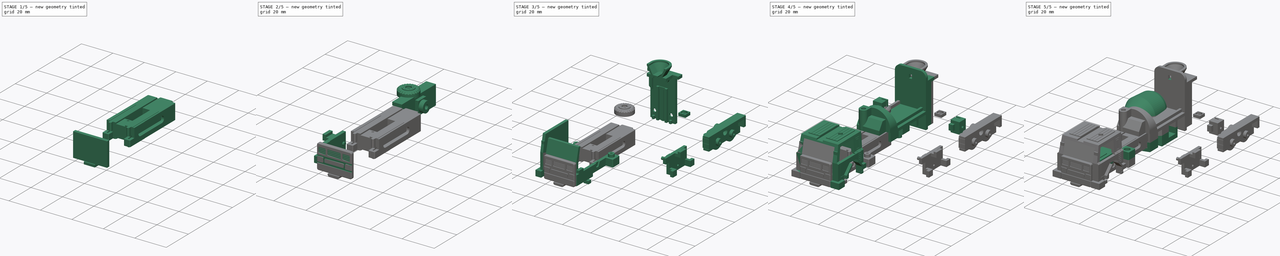
[diagram: build sequence overview — one tinted view per stage of 5, left to right]
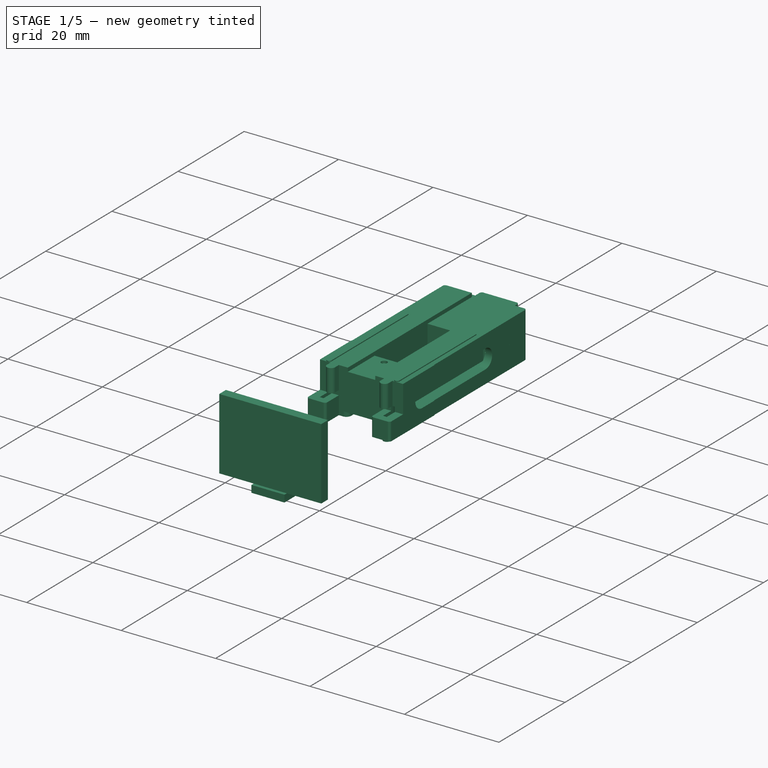
[diagram: stage 1 of 5 — iso view after this stage's code; geometry added in this stage tinted green]
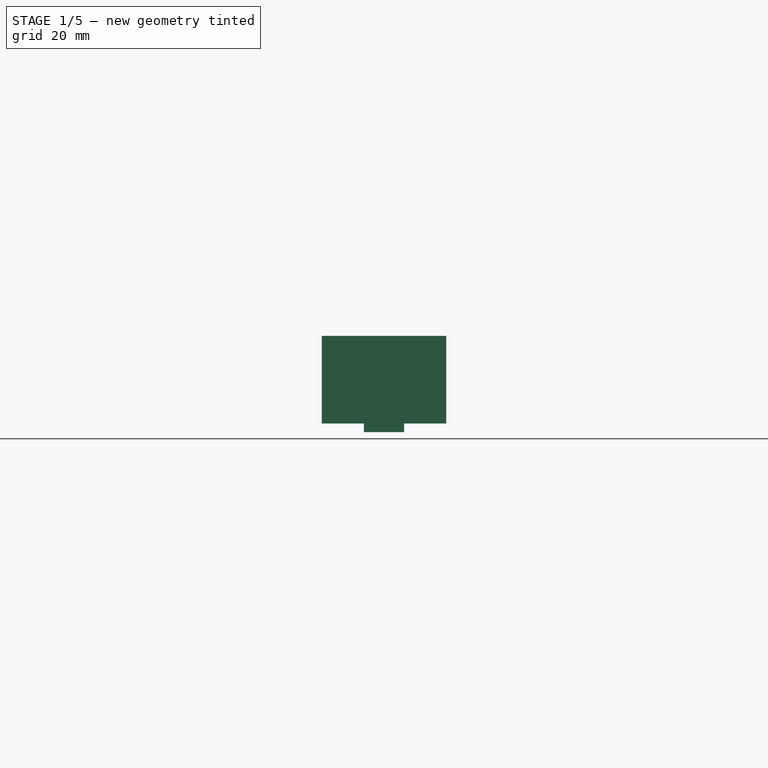
[diagram: stage 1 of 5 — front view after this stage's code; geometry added in this stage tinted green]
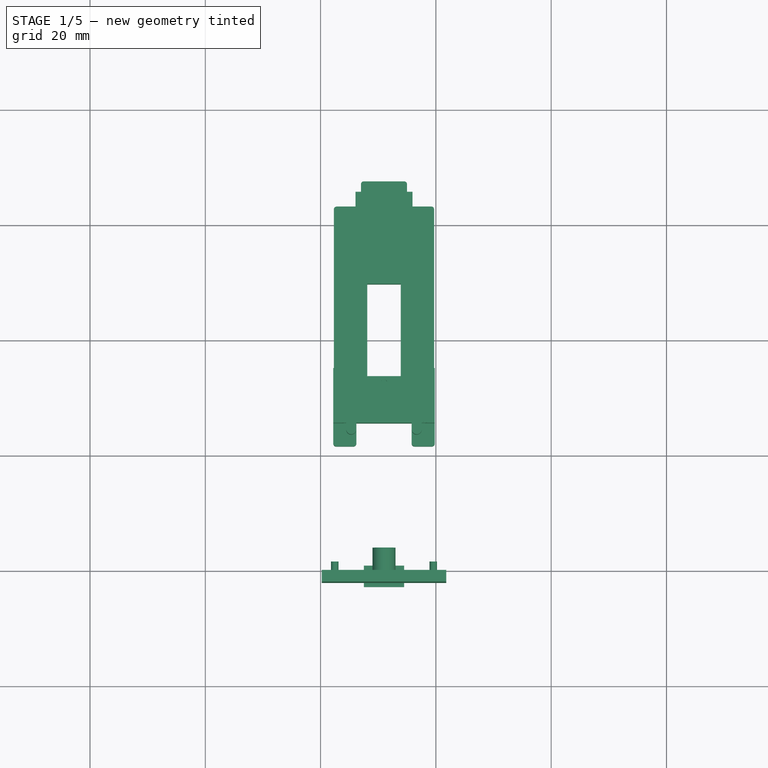
[diagram: stage 1 of 5 — top view after this stage's code; geometry added in this stage tinted green]
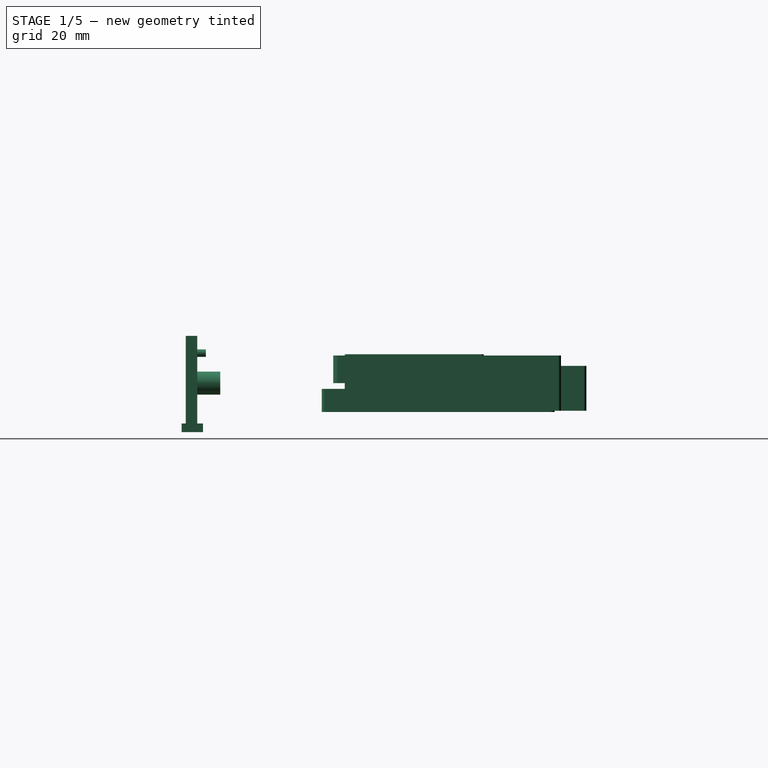
[diagram: stage 1 of 5 — right view after this stage's code; geometry added in this stage tinted green]
FCSTD DOCUMENT  (FreeCAD 1.0R39319 (Git))
Label: MixMaster
License: All rights reserved
LicenseURL: https://en.wikipedia.org/wiki/All_rights_reserved
objects: Sketcher::SketchObject×278, PartDesign::Pad×185, PartDesign::Pocket×151, PartDesign::Body×20, PartDesign::Fillet×19, PartDesign::SubShapeBinder×13, App::Link×6, Part::Feature×6, Part::Mirroring×3, PartDesign::Revolution×2, PartDesign::Hole×2, PartDesign::Chamfer×2, PartDesign::AdditivePipe×1, PartDesign::AdditiveLoft×1, PartDesign::Mirrored×1, App::Part×1
note: 1689 computed .brp shape members not serialized (recipe doc carries the construction recipe); baked Part::Feature solids carry a one-line shape summary decoded from their .brp

FEATURE [PartDesign::Body] Body019  label="Rear Feet"
  AllowCompound = false
  Group = -> [Binder011,Sketch188,Pad138,Sketch189,Pad139,Sketch190,Pad140,Sketch191,Pad141,Fillet006,Sketch192,Pocket141,Sketch193,Pocket142,Fillet007,Sketch194,Pad142,Sketch195,Pocket143,Fillet008,Sketch196,Pocket144,Fillet009,Sketch197,Pad143,Sketch198,Pad144,Fillet010,Sketch199,Pocket145,Sketch200,Pocket146,Sketch201,Pocket147,Sketch202,Pad145,Sketch203,Pad146,Sketch204,Pad147,Sketch205,Pad148,Fillet011]
  Origin = -> Origin021
  Placement = pos=(33,38,0) rot=(0,0,1;0rad)
  Tip = -> Fillet011
FEATURE [PartDesign::SubShapeBinder] Binder001
  BindCopyOnChange = 0
  BindMode = 2
  ClaimChildren = false
  Fuse = false
  MakeFace = true
  OffsetFill = false
  OffsetIntersection = false
  OffsetJoinType = 0
  OffsetOpenResult = false
  PartialLoad = false
  Refine = true
  Relative = true
  _Version = 2
FEATURE [PartDesign::SubShapeBinder] Binder019
  BindCopyOnChange = 0
  BindMode = 2
  ClaimChildren = false
  Context = -> Body018 [Binder019.]
  Fuse = false
  MakeFace = true
  OffsetFill = false
  OffsetIntersection = false
  OffsetJoinType = 0
  OffsetOpenResult = false
  PartialLoad = false
  Refine = true
  Relative = true
  _Version = 2
FEATURE [Sketcher::SketchObject] Sketch057
  ArcFitTolerance = 1e-06
  AttachmentSupport = -> [Binder001]
  ExternalGeometry = -> [Binder001]
  FullyConstrained = true
  MakeInternals = false
  MapMode = 5
  Placement = pos=(5.68e-14,0,-6) rot=(0,0,1;0rad)
  sketch-geometry (4):
    g0: LineSegment StartX=4.1 StartY=-18.05 StartZ=0 EndX=4.1 EndY=-21.75 EndZ=0
    g1: LineSegment StartX=4.1 StartY=-21.75 StartZ=0 EndX=17.9 EndY=-21.75 EndZ=0
    g2: LineSegment StartX=17.9 StartY=-21.75 StartZ=0 EndX=17.9 EndY=-18.05 EndZ=0
    g3: LineSegment StartX=17.9 StartY=-18.05 StartZ=0 EndX=4.1 EndY=-18.05 EndZ=0
  constraints (13):
    c: Coincident(g0,g1)
    c: Coincident(g1,g2)
    c: Coincident(g2,g3)
    c: Coincident(g3,g0)
    c: Vertical(g0)
    c: Vertical(g2)
    c: Horizontal(g1)
    c: Horizontal(g3)
    c: DistanceX(g3,g3) = 13.8
    c: DistanceX(g-3,g2) = 0.15
    c: DistanceY(g-3,g-3) = 2.8
    c: DistanceY(g2,g2) = 3.7
    c: DistanceY(g-3,g2) = 0.45
FEATURE [PartDesign::Pad] Pad054
  Direction = (-9.5e-15,0,1)
  Length = 2
  Length2 = 10
  Profile = -> Sketch057
  ReferenceAxis = -> Sketch057 [N_Axis]
  Refine = true
  Suppressed = false
  Type = 0
FEATURE [Sketcher::SketchObject] Sketch058
  ArcFitTolerance = 1e-06
  AttachmentSupport = -> [Pad054]
  ExternalGeometry = -> [Pad054]
  FullyConstrained = true
  MakeInternals = false
  MapMode = 5
  Placement = pos=(3.78e-14,0,-4) rot=(0,0,1;0rad)
  sketch-geometry (29):
    g0: LineSegment StartX=2.8 StartY=-16.95 StartZ=0 EndX=7 EndY=-16.95 EndZ=0
    g1: LineSegment StartX=7 StartY=-16.95 StartZ=0 EndX=7 EndY=-13.05 EndZ=0
    g2: LineSegment StartX=7.5 StartY=-12.55 StartZ=0 EndX=14.5 EndY=-12.55 EndZ=0
    g3: LineSegment StartX=15 StartY=-13.05 StartZ=0 EndX=15 EndY=-16.95 EndZ=0
    g4: LineSegment StartX=15 StartY=-16.95 StartZ=0 EndX=19.2 EndY=-16.95 EndZ=0
    g5: LineSegment StartX=19.3 StartY=-58.45 StartZ=0 EndX=16.3 EndY=-58.45 EndZ=0
    g6: LineSegment StartX=15.8 StartY=-57.95 StartZ=0 EndX=15.8 EndY=-54.45 EndZ=0
    g7: LineSegment StartX=15.8 StartY=-54.45 StartZ=0 EndX=6.2 EndY=-54.45 EndZ=0
    g8: LineSegment StartX=6.2 StartY=-54.45 StartZ=0 EndX=6.2 EndY=-57.95 EndZ=0
    g9: LineSegment StartX=5.7 StartY=-58.45 StartZ=0 EndX=2.7 EndY=-58.45 EndZ=0
    g10: ArcOfCircle CenterX=2.8 CenterY=-17.45 CenterZ=0 NormalX=0 NormalY=0 NormalZ=1 AngleXU=0 Radius=0.5 StartAngle=1.5708 EndAngle=3.14159
    g11: ArcOfCircle CenterX=7.5 CenterY=-13.05 CenterZ=0 NormalX=0 NormalY=0 NormalZ=1 AngleXU=0 Radius=0.5 StartAngle=1.5708 EndAngle=3.14159
    g12: GeomPoint [constr] X=7 Y=-12.55 Z=0
    g13: ArcOfCircle CenterX=14.5 CenterY=-13.05 CenterZ=0 NormalX=0 NormalY=0 NormalZ=1 AngleXU=0 Radius=0.5 StartAngle=1.2e-15 EndAngle=1.5708
    g14: GeomPoint [constr] X=15 Y=-12.55 Z=0
    g15: ArcOfCircle CenterX=19.2 CenterY=-17.45 CenterZ=0 NormalX=0 NormalY=0 NormalZ=1 AngleXU=0 Radius=0.5 StartAngle=-9e-16 EndAngle=1.5708
    g16: ArcOfCircle CenterX=19.3 CenterY=-57.95 CenterZ=0 NormalX=0 NormalY=0 NormalZ=1 AngleXU=0 Radius=0.5 StartAngle=4.71239 EndAngle=6.28319
    g17: ArcOfCircle CenterX=16.3 CenterY=-57.95 CenterZ=0 NormalX=0 NormalY=0 NormalZ=1 AngleXU=0 Radius=0.5 StartAngle=3.14159 EndAngle=4.71239
    g18: GeomPoint [constr] X=15.8 Y=-58.45 Z=0
    g19: ArcOfCircle CenterX=5.7 CenterY=-57.95 CenterZ=0 NormalX=0 NormalY=0 NormalZ=1 AngleXU=0 Radius=0.5 StartAngle=4.71239 EndAngle=6.28319
    g20: GeomPoint [constr] X=6.2 Y=-58.45 Z=0
    g21: ArcOfCircle CenterX=2.7 CenterY=-57.95 CenterZ=0 NormalX=0 NormalY=0 NormalZ=1 AngleXU=0 Radius=0.5 StartAngle=3.14159 EndAngle=4.71239
    g22: GeomPoint [constr] X=2.7 Y=-58.45 Z=0
    g23: LineSegment StartX=2.3 StartY=-17.45 StartZ=0 EndX=2.3 EndY=-22.95 EndZ=0
    g24: LineSegment StartX=2.3 StartY=-22.95 StartZ=0 EndX=2.2 EndY=-22.95 EndZ=0
    g25: LineSegment StartX=2.2 StartY=-22.95 StartZ=0 EndX=2.2 EndY=-57.95 EndZ=0
    g26: LineSegment StartX=19.7 StartY=-17.45 StartZ=0 EndX=19.7 EndY=-22.95 EndZ=0
    g27: LineSegment StartX=19.7 StartY=-22.95 StartZ=0 EndX=19.8 EndY=-22.95 EndZ=0
    g28: LineSegment StartX=19.8 StartY=-22.95 StartZ=0 EndX=19.8 EndY=-57.95 EndZ=0
  constraints (77):
    c: Horizontal(g0)
    c: Coincident(g1,g0)
    c: Vertical(g1)
    c: Horizontal(g2)
    c: Vertical(g3)
    c: Coincident(g4,g3)
    c: Horizontal(g4)
    c: Horizontal(g5)
    c: Vertical(g6)
    c: Coincident(g7,g6)
    c: Horizontal(g7)
    c: Coincident(g8,g7)
    c: Vertical(g8)
    c: Horizontal(g9)
    c: DistanceY(g-3,g0) = 1.1
    c: DistanceY(g-3,g3) = 1.1
    c: DistanceX(g12,g14) = 8
    c: DistanceY(g20,g8) = 4
    c: DistanceY(g1,g12) = 4.4
    c: Tangent(g0,g10) = 1.5708
    c: Radius(g10) = 0.5
    c: PointOnObject(g12,g1)
    c: PointOnObject(g12,g2)
    c: Tangent(g1,g11) = 1.5708
    c: Tangent(g2,g11) = 1.5708
    c: PointOnObject(g14,g2)
    c: PointOnObject(g14,g3)
    c: Tangent(g2,g13) = 1.5708
    c: Tangent(g3,g13) = 1.5708
    c: Tangent(g4,g15) = 1.5708
    c: Tangent(g5,g16) = 1.5708
    c: PointOnObject(g18,g5)
    c: PointOnObject(g18,g6)
    c: Tangent(g5,g17) = 1.5708
    c: Tangent(g6,g17) = 1.5708
    c: PointOnObject(g20,g8)
    c: PointOnObject(g20,g9)
    c: Tangent(g8,g19) = 1.5708
    c: Tangent(g9,g19) = 1.5708
    c: Tangent(g9,g21) = 1.5708
    c: Radius(g21) = 0.5
    c: Radius(g19) = 0.5
    c: Radius(g17) = 0.5
    c: Radius(g16) = 0.5
    c: Radius(g15) = 0.5
    c: Radius(g13) = 0.5
    c: Radius(g11) = 0.5
    c: Coincident(g23,g10)
    c: Vertical(g23)
    c: Coincident(g24,g23)
    c: Horizontal(g24)
    c: Coincident(g25,g24)
    c: Vertical(g25)
    c: Coincident(g25,g21)
    c: DistanceY(g23,g0) = 6
    c: DistanceX(g24,g24) = 0.1
    c: DistanceX(g21,g8) = 4
    c: Coincident(g22,g9)
    c: Coincident(g26,g15)
    c: Vertical(g26)
    c: Coincident(g27,g26)
    c: Horizontal(g27)
    c: Coincident(g28,g27)
    c: Coincident(g28,g16)
    c: Vertical(g28)
    c: DistanceX(g6,g16) = 4
    c: DistanceX(g27,g27) = 0.1
    c: DistanceY(g26,g4) = 6
    c: DistanceX(g21,g16) = 17.6
    c: DistanceY(g5,g6) = 4
    c: DistanceX(g-3,g15) = 1.8
    c: DistanceX(g3,g15) = 4.7
    c: DistanceY(g15,g15) = 0
    c: DistanceY(g10,g10) = 0
    c: DistanceY(g9,g0) = 41.5
    c: DistanceY(g16,g16) = 0
    c: DistanceY(g21,g21) = 0
FEATURE [PartDesign::Pad] Pad055
  BaseFeature = -> Pad054
  Direction = (-9.5e-15,0,1)
  Length = 4.8
  Length2 = 10
  Profile = -> Sketch058
  ReferenceAxis = -> Sketch058 [N_Axis]
  Refine = true
  Reversed = true
  Suppressed = false
  Type = 0
FEATURE [Sketcher::SketchObject] Sketch059
  ArcFitTolerance = 1e-06
  AttachmentSupport = -> [Pad054]
  ExternalGeometry = -> [Pad054]
  FullyConstrained = true
  MakeInternals = false
  MapMode = 5
  Placement = pos=(5.68e-14,0,-6) rot=(1,0,0;3.14159rad)
  sketch-geometry (4):
    g0: LineSegment StartX=4.1 StartY=21.75 StartZ=0 EndX=4.1 EndY=18.05 EndZ=0
    g1: LineSegment StartX=4.1 StartY=18.05 StartZ=0 EndX=17.9 EndY=18.05 EndZ=0
    g2: LineSegment StartX=17.9 StartY=18.05 StartZ=0 EndX=17.9 EndY=21.75 EndZ=0
    g3: LineSegment StartX=17.9 StartY=21.75 StartZ=0 EndX=4.1 EndY=21.75 EndZ=0
  constraints (10):
    c: Coincident(g0,g1)
    c: Coincident(g1,g2)
    c: Coincident(g2,g3)
    c: Coincident(g3,g0)
    c: Vertical(g0)
    c: Vertical(g2)
    c: Horizontal(g1)
    c: Horizontal(g3)
    c: Coincident(g0,g-3)
    c: Coincident(g1,g-4)
FEATURE [PartDesign::Pocket] Pocket023
  BaseFeature = -> Pad055
  Direction = (-9.5e-15,0,1)
  Length = 5
  Length2 = 5
  Profile = -> Sketch059
  ReferenceAxis = -> Sketch059 [N_Axis]
  Refine = true
  Reversed = true
  Suppressed = false
  Type = 0
FEATURE [Sketcher::SketchObject] Sketch060
  ArcFitTolerance = 1e-06
  AttachmentSupport = -> [Pocket023]
  ExternalGeometry = -> [Pocket023]
  FullyConstrained = true
  MakeInternals = false
  MapMode = 5
  Placement = pos=(8.32e-14,0,-8.8) rot=(1,0,0;3.14159rad)
  sketch-geometry (4):
    g0: LineSegment StartX=8.1 StartY=46.35 StartZ=0 EndX=8.1 EndY=30.35 EndZ=0
    g1: LineSegment StartX=8.1 StartY=30.35 StartZ=0 EndX=13.9 EndY=30.35 EndZ=0
    g2: LineSegment StartX=13.9 StartY=30.35 StartZ=0 EndX=13.9 EndY=46.35 EndZ=0
    g3: LineSegment StartX=13.9 StartY=46.35 StartZ=0 EndX=8.1 EndY=46.35 EndZ=0
  constraints (12):
    c: Coincident(g0,g1)
    c: Coincident(g1,g2)
    c: Coincident(g2,g3)
    c: Coincident(g3,g0)
    c: Vertical(g0)
    c: Vertical(g2)
    c: Horizontal(g1)
    c: Horizontal(g3)
    c: DistanceX(g3,g3) = 5.8
    c: DistanceY(g2,g-3) = 8.1
    c: DistanceY(g-4,g1) = 8.6
    c: DistanceX(g-6,g0) = 5.8
FEATURE [PartDesign::Pocket] Pocket024
  BaseFeature = -> Pocket023
  Direction = (-9.5e-15,0,1)
  Length = 5
  Length2 = 5
  Profile = -> Sketch060
  ReferenceAxis = -> Sketch060 [N_Axis]
  Refine = true
  Suppressed = false
  Type = 0
FEATURE [Sketcher::SketchObject] Sketch061
  ArcFitTolerance = 1e-06
  AttachmentSupport = -> [Pocket024]
  ExternalGeometry = -> [Pocket024]
  FullyConstrained = true
  MakeInternals = false
  MapMode = 5
  Placement = pos=(8.32e-14,0,-8.8) rot=(1,0,0;3.14159rad)
  sketch-geometry (8):
    g0: ArcOfCircle CenterX=18.65 CenterY=18.8 CenterZ=0 NormalX=0 NormalY=0 NormalZ=1 AngleXU=0 Radius=0.75 StartAngle=3.14159 EndAngle=6.28319
    g1: ArcOfCircle CenterX=18.65 CenterY=57.7 CenterZ=0 NormalX=0 NormalY=0 NormalZ=1 AngleXU=0 Radius=0.75 StartAngle=0 EndAngle=3.14159
    g2: LineSegment StartX=17.9 StartY=18.8 StartZ=0 EndX=17.9 EndY=57.7 EndZ=0
    g3: LineSegment StartX=19.4 StartY=18.8 StartZ=0 EndX=19.4 EndY=57.7 EndZ=0
    g4: ArcOfCircle CenterX=3.35 CenterY=57.7 CenterZ=0 NormalX=0 NormalY=0 NormalZ=1 AngleXU=0 Radius=0.75 StartAngle=-3.217e-12 EndAngle=3.14159
    g5: ArcOfCircle CenterX=3.35 CenterY=18.8 CenterZ=0 NormalX=0 NormalY=0 NormalZ=1 AngleXU=0 Radius=0.75 StartAngle=3.14159 EndAngle=6.28319
    g6: LineSegment StartX=4.1 StartY=57.7 StartZ=0 EndX=4.1 EndY=18.8 EndZ=0
    g7: LineSegment StartX=2.6 StartY=57.7 StartZ=0 EndX=2.6 EndY=18.8 EndZ=0
  constraints (20):
    c: Tangent(g0,g2) = 1.5708
    c: Tangent(g0,g3) = -1.5708
    c: Tangent(g1,g2) = 1.5708
    c: Tangent(g1,g3) = -1.5708
    c: Equal(g0,g1)
    c: Vertical(g2)
    c: Tangent(g4,g6) = 1.5708
    c: Tangent(g4,g7) = -1.5708
    c: Tangent(g5,g6) = 1.5708
    c: Tangent(g5,g7) = -1.5708
    c: Equal(g4,g5)
    c: Vertical(g6)
    c: PointOnObject(g0,g-3)
    c: Diameter(g0) = 1.5
    c: Diameter(g5) = 1.5
    c: PointOnObject(g5,g-4)
    c: DistanceY(g-4,g5) = 0.75
    c: DistanceY(g-3,g0) = 0.75
    c: DistanceY(g1,g-6) = 0.75
    c: DistanceY(g4,g-5) = 0.75
FEATURE [PartDesign::Pad] Pad056
  BaseFeature = -> Pocket024
  Direction = (9.5e-15,0,-1)
  Length = 0.2
  Length2 = 10
  Profile = -> Sketch061
  ReferenceAxis = -> Sketch061 [N_Axis]
  Refine = true
  Suppressed = false
  Type = 0
FEATURE [Sketcher::SketchObject] Sketch062
  ArcFitTolerance = 1e-06
  AttachmentSupport = -> [Pad056]
  ExternalGeometry = -> [Pad056]
  FullyConstrained = true
  MakeInternals = false
  MapMode = 5
  Placement = pos=(8.46e-14,0,-9) rot=(1,0,0;3.14159rad)
  sketch-geometry (8):
    g0: ArcOfCircle CenterX=3.35 CenterY=56.7 CenterZ=0 NormalX=0 NormalY=0 NormalZ=1 AngleXU=0 Radius=0.25 StartAngle=-3.6e-15 EndAngle=3.14159
    g1: ArcOfCircle CenterX=3.35 CenterY=45.7 CenterZ=0 NormalX=0 NormalY=0 NormalZ=1 AngleXU=0 Radius=0.25 StartAngle=3.14159 EndAngle=6.28319
    g2: LineSegment StartX=3.6 StartY=56.7 StartZ=0 EndX=3.6 EndY=45.7 EndZ=0
    g3: LineSegment StartX=3.1 StartY=56.7 StartZ=0 EndX=3.1 EndY=45.7 EndZ=0
    g4: ArcOfCircle CenterX=18.65 CenterY=56.7 CenterZ=0 NormalX=0 NormalY=0 NormalZ=1 AngleXU=0 Radius=0.25 StartAngle=1.28e-14 EndAngle=3.14159
    g5: ArcOfCircle CenterX=18.65 CenterY=45.7 CenterZ=0 NormalX=0 NormalY=0 NormalZ=1 AngleXU=0 Radius=0.25 StartAngle=3.14159 EndAngle=6.28319
    g6: LineSegment StartX=18.9 StartY=56.7 StartZ=0 EndX=18.9 EndY=45.7 EndZ=0
    g7: LineSegment StartX=18.4 StartY=56.7 StartZ=0 EndX=18.4 EndY=45.7 EndZ=0
  constraints (20):
    c: Tangent(g0,g2) = 1.5708
    c: Tangent(g0,g3) = -1.5708
    c: Tangent(g1,g2) = 1.5708
    c: Tangent(g1,g3) = -1.5708
    c: Equal(g0,g1)
    c: Vertical(g2)
    c: Tangent(g4,g6) = 1.5708
    c: Tangent(g4,g7) = -1.5708
    c: Tangent(g5,g6) = 1.5708
    c: Tangent(g5,g7) = -1.5708
    c: Equal(g4,g5)
    c: Vertical(g6)
    c: DistanceY(g1,g0) = 11
    c: DistanceY(g5,g4) = 11
    c: DistanceY(g4,g-4) = 1
    c: DistanceY(g0,g-3) = 1
    c: DistanceX(g0,g-3) = 0
    c: DistanceX(g-4,g4) = 0
    c: Diameter(g4) = 0.5
    c: Diameter(g0) = 0.5
FEATURE [PartDesign::Pad] Pad057
  BaseFeature = -> Pad056
  Direction = (9.4e-15,0,-1)
  Length = 0.2
  Length2 = 10
  Profile = -> Sketch062
  ReferenceAxis = -> Sketch062 [N_Axis]
  Refine = true
  Suppressed = false
  Type = 0
FEATURE [Sketcher::SketchObject] Sketch063
  ArcFitTolerance = 1e-06
  AttachmentSupport = -> [Pad057]
  ExternalGeometry = -> [Pad057]
  FullyConstrained = true
  MakeInternals = false
  MapMode = 5
  Placement = pos=(8.32e-14,0,-8.8) rot=(1,0,0;3.14159rad)
  sketch-geometry (8):
    g0: LineSegment StartX=8.1 StartY=46.35 StartZ=0 EndX=13.9 EndY=46.35 EndZ=0
    g1: LineSegment StartX=13.9 StartY=46.35 StartZ=0 EndX=13.9 EndY=54.45 EndZ=0
    g2: LineSegment StartX=13.9 StartY=54.45 StartZ=0 EndX=8.1 EndY=54.45 EndZ=0
    g3: LineSegment StartX=8.1 StartY=54.45 StartZ=0 EndX=8.1 EndY=46.35 EndZ=0
    g4: LineSegment StartX=8.1 StartY=30.35 StartZ=0 EndX=8.1 EndY=21.75 EndZ=0
    g5: LineSegment StartX=8.1 StartY=21.75 StartZ=0 EndX=13.9 EndY=21.75 EndZ=0
    g6: LineSegment StartX=13.9 StartY=21.75 StartZ=0 EndX=13.9 EndY=30.35 EndZ=0
    g7: LineSegment StartX=13.9 StartY=30.35 StartZ=0 EndX=8.1 EndY=30.35 EndZ=0
  constraints (20):
    c: Coincident(g0,g1)
    c: Coincident(g1,g2)
    c: Coincident(g2,g3)
    c: Coincident(g3,g0)
    c: Horizontal(g2)
    c: Vertical(g1)
    c: Vertical(g3)
    c: Coincident(g0,g-4)
    c: PointOnObject(g1,g-3)
    c: Coincident(g4,g5)
    c: Coincident(g5,g6)
    c: Coincident(g6,g7)
    c: Coincident(g7,g4)
    c: Vertical(g4)
    c: Vertical(g6)
    c: Horizontal(g5)
    c: Coincident(g4,g-5)
    c: PointOnObject(g5,g-6)
    c: Coincident(g6,g-5)
    c: Coincident(g0,g-4)
FEATURE [PartDesign::Pocket] Pocket025
  BaseFeature = -> Pad057
  Direction = (-9.5e-15,0,1)
  Length = 1
  Length2 = 5
  Profile = -> Sketch063
  ReferenceAxis = -> Sketch063 [N_Axis]
  Refine = true
  Suppressed = false
  Type = 0
FEATURE [PartDesign::Fillet] Fillet031
  Base = -> Pocket025 [Edge78,Edge80]
  BaseFeature = -> Pocket025
  Radius = 1
  Refine = true
  SupportTransform = false
  Suppressed = false
  UseAllEdges = false
FEATURE [Sketcher::SketchObject] Sketch064
  ArcFitTolerance = 1e-06
  AttachmentSupport = -> [Fillet031]
  ExternalGeometry = -> [Fillet031]
  FullyConstrained = true
  MakeInternals = false
  MapMode = 5
  Placement = pos=(7.4e-14,0,-7.8) rot=(1,0,0;3.14159rad)
  sketch-geometry (2):
    g0: Circle CenterX=11 CenterY=50.4 CenterZ=0 NormalX=0 NormalY=0 NormalZ=1 AngleXU=0 Radius=1.95
    g1: Circle CenterX=11 CenterY=26.05 CenterZ=0 NormalX=0 NormalY=0 NormalZ=1 AngleXU=0 Radius=1.95
  constraints (12):
    c: DistanceX(g-5,g-5) = 5.8
    c: DistanceX(g-5,g1) = 2.9
    c: DistanceY(g-3,g-5) = 8.6
    c: DistanceY(g-5,g-5) = 0
    c: DistanceY(g1,g-5) = 4.3
    c: Diameter(g1) = 3.9
    c: DistanceX(g-6,g-6) = 5.8
    c: DistanceY(g-6,g-7) = 8.1
    c: DistanceX(g-3,g-3) = 0
    c: DistanceX(g0,g-6) = 2.9
    c: DistanceY(g0,g-7) = 4.05
    c: Diameter(g0) = 3.9
FEATURE [PartDesign::Pocket] Pocket026
  BaseFeature = -> Fillet031
  Direction = (-9.5e-15,0,1)
  Length = 1.5
  Length2 = 5
  Profile = -> Sketch064
  ReferenceAxis = -> Sketch064 [N_Axis]
  Refine = true
  Suppressed = false
  Type = 0
FEATURE [Sketcher::SketchObject] Sketch065
  ArcFitTolerance = 1e-06
  AttachmentSupport = -> [Pocket026]
  ExternalGeometry = -> [Pocket026]
  FullyConstrained = true
  MakeInternals = false
  MapMode = 5
  Placement = pos=(5.93e-14,0,-6.3) rot=(1,0,0;3.14159rad)
  sketch-geometry (2):
    g0: Circle CenterX=11 CenterY=50.4 CenterZ=0 NormalX=0 NormalY=0 NormalZ=1 AngleXU=0 Radius=1
    g1: Circle CenterX=11 CenterY=26.05 CenterZ=0 NormalX=0 NormalY=0 NormalZ=1 AngleXU=0 Radius=1
  constraints (4):
    c: Coincident(g0,g-3)
    c: Coincident(g1,g-4)
    c: Diameter(g1) = 2
    c: Diameter(g0) = 2
FEATURE [PartDesign::Pocket] Pocket027
  BaseFeature = -> Pocket026
  Direction = (-9.4e-15,0,1)
  Length = 5
  Length2 = 5
  Profile = -> Sketch065
  ReferenceAxis = -> Sketch065 [N_Axis]
  Refine = true
  Suppressed = false
  Type = 0
FEATURE [Sketcher::SketchObject] Sketch066
  ArcFitTolerance = 1e-06
  AttachmentSupport = -> [Pocket027]
  ExternalGeometry = -> [Pocket027]
  FullyConstrained = true
  MakeInternals = false
  MapMode = 5
  Placement = pos=(3.78e-14,0,-4) rot=(0,0,1;0rad)
  sketch-geometry (20):
    g0: LineSegment StartX=8.5 StartY=-14.35 StartZ=0 EndX=8.5 EndY=-17.65 EndZ=0
    g1: LineSegment StartX=8.5 StartY=-17.65 StartZ=0 EndX=13.5 EndY=-17.65 EndZ=0
    g2: LineSegment StartX=13.5 StartY=-17.65 StartZ=0 EndX=13.5 EndY=-14.35 EndZ=0
    g3: LineSegment StartX=13.5 StartY=-14.35 StartZ=0 EndX=8.5 EndY=-14.35 EndZ=0
    g4: LineSegment StartX=3.9 StartY=-24.15 StartZ=0 EndX=3.9 EndY=-56.95 EndZ=0
    g5: LineSegment StartX=3.9 StartY=-56.95 StartZ=0 EndX=4.7 EndY=-56.95 EndZ=0
    g6: LineSegment StartX=4.7 StartY=-56.95 StartZ=0 EndX=4.7 EndY=-53.75 EndZ=0
    g7: LineSegment StartX=5.2 StartY=-53.25 StartZ=0 EndX=6.4 EndY=-53.25 EndZ=0
    g8: LineSegment StartX=6.4 StartY=-53.25 StartZ=0 EndX=6.4 EndY=-24.15 EndZ=0
    g9: LineSegment StartX=6.4 StartY=-24.15 StartZ=0 EndX=3.9 EndY=-24.15 EndZ=0
    g10: LineSegment StartX=18.1 StartY=-24.15 StartZ=0 EndX=15.6 EndY=-24.15 EndZ=0
    g11: LineSegment StartX=15.6 StartY=-24.15 StartZ=0 EndX=15.6 EndY=-53.25 EndZ=0
    g12: LineSegment StartX=15.6 StartY=-53.25 StartZ=0 EndX=16.8 EndY=-53.25 EndZ=0
    g13: LineSegment StartX=17.3 StartY=-53.75 StartZ=0 EndX=17.3 EndY=-56.95 EndZ=0
    g14: LineSegment StartX=17.3 StartY=-56.95 StartZ=0 EndX=18.1 EndY=-56.95 EndZ=0
    g15: LineSegment StartX=18.1 StartY=-56.95 StartZ=0 EndX=18.1 EndY=-24.15 EndZ=0
    g16: ArcOfCircle CenterX=5.2 CenterY=-53.75 CenterZ=0 NormalX=0 NormalY=0 NormalZ=1 AngleXU=0 Radius=0.5 StartAngle=1.5708 EndAngle=3.14159
    g17: GeomPoint [constr] X=4.7 Y=-53.25 Z=0
    g18: ArcOfCircle CenterX=16.8 CenterY=-53.75 CenterZ=0 NormalX=0 NormalY=0 NormalZ=1 AngleXU=0 Radius=0.5 StartAngle=5.4e-15 EndAngle=1.5708
    g19: GeomPoint [constr] X=17.3 Y=-53.25 Z=0
  constraints (56):
    c: Coincident(g0,g1)
    c: Coincident(g1,g2)
    c: Coincident(g2,g3)
    c: Coincident(g3,g0)
    c: Vertical(g0)
    c: Vertical(g2)
    c: Horizontal(g1)
    c: Horizontal(g3)
    c: DistanceY(g0,g-3) = 1.8
    c: DistanceX(g-4,g0) = 1.5
    c: DistanceX(g2,g-5) = 1.5
    c: DistanceY(g0,g0) = 3.3
    c: Vertical(g4)
    c: Coincident(g5,g4)
    c: Horizontal(g5)
    c: Coincident(g6,g5)
    c: Vertical(g6)
    c: Horizontal(g7)
    c: Coincident(g8,g7)
    c: Vertical(g8)
    c: Coincident(g9,g8)
    c: Coincident(g9,g4)
    c: Horizontal(g9)
    c: Horizontal(g10)
    c: Coincident(g11,g10)
    c: Vertical(g11)
    c: Coincident(g12,g11)
    c: Horizontal(g12)
    c: Coincident(g14,g13)
    c: Horizontal(g14)
    c: Coincident(g15,g14)
    c: Coincident(g15,g10)
    c: Vertical(g15)
    c: Vertical(g13)
    c: PointOnObject(g17,g6)
    c: PointOnObject(g17,g7)
    c: Tangent(g6,g16) = 1.5708
    c: Tangent(g7,g16) = 1.5708
    c: PointOnObject(g19,g12)
    c: PointOnObject(g19,g13)
    c: Tangent(g12,g18) = 1.5708
    c: Tangent(g13,g18) = 1.5708
    c: Radius(g18) = 0.5
    c: Radius(g16) = 0.5
    c: DistanceX(g9,g9) = 2.5
    c: DistanceX(g10,g10) = 2.5
    c: DistanceX(g-7,g4) = 1.6
    c: DistanceX(g10,g-6) = 1.6
    c: DistanceY(g4,g-10) = 7.2
    c: DistanceY(g10,g-11) = 7.2
    c: DistanceY(g-13,g5) = 1.5
    c: DistanceX(g5,g-12) = 1.5
    c: DistanceX(g-15,g13) = 1.5
    c: DistanceY(g-16,g13) = 1.5
    c: DistanceY(g-12,g7) = 1.2
    c: DistanceY(g-15,g11) = 1.2
FEATURE [PartDesign::Pocket] Pocket028
  BaseFeature = -> Pocket027
  Direction = (9.5e-15,0,-1)
  Length = 3.5
  Length2 = 5
  Profile = -> Sketch066
  ReferenceAxis = -> Sketch066 [N_Axis]
  Refine = true
  Suppressed = false
  Type = 0
FEATURE [Sketcher::SketchObject] Sketch067
  ArcFitTolerance = 1e-06
  AttachmentSupport = -> [Pocket028]
  ExternalGeometry = -> [Pocket028]
  FullyConstrained = true
  MakeInternals = false
  MapMode = 5
  Placement = pos=(3.78e-14,0,-4) rot=(0,0,1;0rad)
  sketch-geometry (8):
    g0: LineSegment StartX=6.2 StartY=-54.45 StartZ=0 EndX=2.2 EndY=-54.45 EndZ=0
    g1: LineSegment StartX=2.2 StartY=-54.45 StartZ=0 EndX=2.2 EndY=-58.45 EndZ=0
    g2: LineSegment StartX=2.2 StartY=-58.45 StartZ=0 EndX=6.2 EndY=-58.45 EndZ=0
    g3: LineSegment StartX=6.2 StartY=-58.45 StartZ=0 EndX=6.2 EndY=-54.45 EndZ=0
    g4: LineSegment StartX=15.8 StartY=-54.45 StartZ=0 EndX=15.8 EndY=-58.45 EndZ=0
    g5: LineSegment StartX=15.8 StartY=-58.45 StartZ=0 EndX=19.8 EndY=-58.45 EndZ=0
    g6: LineSegment StartX=19.8 StartY=-58.45 StartZ=0 EndX=19.8 EndY=-54.45 EndZ=0
    g7: LineSegment StartX=19.8 StartY=-54.45 StartZ=0 EndX=15.8 EndY=-54.45 EndZ=0
  constraints (22):
    c: Coincident(g0,g1)
    c: Coincident(g1,g2)
    c: Coincident(g2,g3)
    c: Coincident(g3,g0)
    c: Horizontal(g0)
    c: Horizontal(g2)
    c: Vertical(g1)
    c: Vertical(g3)
    c: Coincident(g0,g-7)
    c: Coincident(g4,g5)
    c: Coincident(g5,g6)
    c: Coincident(g6,g7)
    c: Coincident(g7,g4)
    c: Vertical(g4)
    c: Vertical(g6)
    c: Horizontal(g5)
    c: Horizontal(g7)
    c: Coincident(g4,g-7)
    c: DistanceY(g4,g-5) = 0
    c: DistanceY(g2,g-6) = 0
    c: DistanceX(g1,g-3) = 0
    c: DistanceX(g-4,g5) = 0
FEATURE [PartDesign::Pocket] Pocket029
  BaseFeature = -> Pocket028
  Direction = (9.5e-15,0,-1)
  Length = 1
  Length2 = 5
  Profile = -> Sketch067
  ReferenceAxis = -> Sketch067 [N_Axis]
  Refine = true
  Suppressed = false
  Type = 0
FEATURE [Sketcher::SketchObject] Sketch068
  ArcFitTolerance = 1e-06
  AttachmentSupport = -> [Pocket029]
  ExternalGeometry = -> [Pocket029]
  FullyConstrained = true
  MakeInternals = false
  MapMode = 5
  Placement = pos=(3.78e-14,0,-4) rot=(0,0,1;0rad)
  sketch-geometry (2):
    g0: Circle CenterX=11 CenterY=-50.4 CenterZ=0 NormalX=0 NormalY=0 NormalZ=1 AngleXU=0 Radius=2
    g1: Circle CenterX=11 CenterY=-26.05 CenterZ=0 NormalX=0 NormalY=0 NormalZ=1 AngleXU=0 Radius=2
  constraints (4):
    c: Coincident(g0,g-4)
    c: Coincident(g1,g-3)
    c: Diameter(g1) = 4
    c: Diameter(g0) = 4
FEATURE [PartDesign::Pocket] Pocket030
  BaseFeature = -> Pocket029
  Direction = (9.5e-15,0,-1)
  Length = 1.7
  Length2 = 5
  Profile = -> Sketch068
  ReferenceAxis = -> Sketch068 [N_Axis]
  Refine = true
  Suppressed = false
  Type = 0
FEATURE [Sketcher::SketchObject] Sketch069
  ArcFitTolerance = 1e-06
  AttachmentSupport = -> [Pocket030]
  ExternalGeometry = -> [Pocket030]
  FullyConstrained = true
  MakeInternals = false
  MapMode = 5
  Placement = pos=(19.8,0,1.873e-13) rot=(0.57735,0.57735,0.57735;2.0944rad)
  sketch-geometry (4):
    g0: ArcOfCircle CenterX=-48.25 CenterY=-4 CenterZ=0 NormalX=0 NormalY=0 NormalZ=1 AngleXU=0 Radius=2.2 StartAngle=3.14159 EndAngle=4.71239
    g1: ArcOfCircle CenterX=-29.35 CenterY=-4 CenterZ=0 NormalX=0 NormalY=0 NormalZ=1 AngleXU=0 Radius=2.2 StartAngle=4.71239 EndAngle=6.28319
    g2: LineSegment StartX=-50.45 StartY=-4 StartZ=0 EndX=-27.15 EndY=-4 EndZ=0
    g3: LineSegment StartX=-29.35 StartY=-6.2 StartZ=0 EndX=-48.25 EndY=-6.2 EndZ=0
  constraints (14):
    c: PointOnObject(g0,g-3)
    c: PointOnObject(g1,g-3)
    c: Coincident(g2,g0)
    c: Coincident(g2,g1)
    c: Coincident(g3,g1)
    c: Coincident(g3,g0)
    c: Horizontal(g3)
    c: Radius(g1) = 2.2
    c: Radius(g0) = 2.2
    c: DistanceY(g0,g-3) = 2.2
    c: DistanceX(g1,g1) = 0
    c: DistanceX(g0,g0) = 0
    c: DistanceX(g-3,g0) = 4
    c: DistanceX(g0,g1) = 23.3
FEATURE [PartDesign::Pocket] Pocket031
  BaseFeature = -> Pocket030
  Direction = (-1,-1e-16,-9.4e-15)
  Length = 2
  Length2 = 5
  Profile = -> Sketch069
  ReferenceAxis = -> Sketch069 [N_Axis]
  Refine = true
  Suppressed = false
  Type = 0
FEATURE [Sketcher::SketchObject] Sketch070
  ArcFitTolerance = 1e-06
  AttachmentSupport = -> [Pocket031]
  ExternalGeometry = -> [Pocket031]
  FullyConstrained = true
  MakeInternals = false
  MapMode = 5
  Placement = pos=(2.2,0,2.08e-14) rot=(0.57735,-0.57735,-0.57735;2.0944rad)
  sketch-geometry (4):
    g0: ArcOfCircle CenterX=29.35 CenterY=-4 CenterZ=0 NormalX=0 NormalY=0 NormalZ=1 AngleXU=0 Radius=2.2 StartAngle=3.14159 EndAngle=4.71239
    g1: ArcOfCircle CenterX=48.25 CenterY=-4 CenterZ=0 NormalX=0 NormalY=0 NormalZ=1 AngleXU=0 Radius=2.2 StartAngle=4.71239 EndAngle=6.28319
    g2: LineSegment StartX=27.15 StartY=-4 StartZ=0 EndX=50.45 EndY=-4 EndZ=0
    g3: LineSegment StartX=48.25 StartY=-6.2 StartZ=0 EndX=29.35 EndY=-6.2 EndZ=0
  constraints (14):
    c: PointOnObject(g0,g-3)
    c: PointOnObject(g1,g-3)
    c: Coincident(g2,g0)
    c: Coincident(g2,g1)
    c: Coincident(g3,g1)
    c: Coincident(g3,g0)
    c: Horizontal(g3)
    c: DistanceX(g1,g-3) = 4
    c: DistanceX(g0,g1) = 23.3
    c: Radius(g0) = 2.2
    c: Radius(g1) = 2.2
    c: DistanceY(g1,g1) = 2.2
    c: DistanceX(g0,g0) = 0
    c: DistanceX(g1,g1) = 0
FEATURE [PartDesign::Pocket] Pocket032
  BaseFeature = -> Pocket031
  Direction = (1,-1e-16,9.4e-15)
  Length = 2
  Length2 = 5
  Profile = -> Sketch070
  ReferenceAxis = -> Sketch070 [N_Axis]
  Refine = true
  Suppressed = false
  Type = 0
FEATURE [Sketcher::SketchObject] Sketch171
  ArcFitTolerance = 1e-06
  AttachmentSupport = -> [Binder019]
  ExternalGeometry = -> [Binder019]
  FullyConstrained = true
  MakeInternals = false
  MapMode = 5
  Placement = pos=(3.78e-14,0,-4) rot=(0,0,1;0rad)
  sketch-geometry (24):
    g0: ArcOfCircle CenterX=7.5 CenterY=-13.05 CenterZ=0 NormalX=0 NormalY=0 NormalZ=1 AngleXU=0 Radius=0.5 StartAngle=1.5708 EndAngle=3.14159
    g1: LineSegment StartX=7.5 StartY=-12.55 StartZ=0 EndX=14.5 EndY=-12.55 EndZ=0
    g2: ArcOfCircle CenterX=14.5 CenterY=-13.05 CenterZ=0 NormalX=0 NormalY=0 NormalZ=1 AngleXU=0 Radius=0.499996 StartAngle=6.28318 EndAngle=7.85399
    g3: LineSegment StartX=15 StartY=-13.05 StartZ=0 EndX=15 EndY=-16.95 EndZ=0
    g4: LineSegment StartX=15 StartY=-16.95 StartZ=0 EndX=19.2 EndY=-16.95 EndZ=0
    g5: ArcOfCircle CenterX=19.2 CenterY=-17.45 CenterZ=0 NormalX=0 NormalY=0 NormalZ=1 AngleXU=0 Radius=0.500005 StartAngle=1.09474e-05 EndAngle=1.57079
    g6: LineSegment StartX=19.7 StartY=-17.45 StartZ=0 EndX=19.7 EndY=-22.95 EndZ=0
    g7: LineSegment StartX=19.7 StartY=-22.95 StartZ=0 EndX=19.8 EndY=-22.95 EndZ=0
    g8: LineSegment StartX=19.8 StartY=-22.95 StartZ=0 EndX=19.8 EndY=-54.45 EndZ=0
    g9: LineSegment StartX=7 StartY=-13.05 StartZ=0 EndX=7 EndY=-16.95 EndZ=0
    g10: LineSegment StartX=7 StartY=-16.95 StartZ=0 EndX=2.8 EndY=-16.95 EndZ=0
    g11: ArcOfCircle CenterX=2.80001 CenterY=-17.45 CenterZ=0 NormalX=0 NormalY=0 NormalZ=1 AngleXU=0 Radius=0.500006 StartAngle=1.57081 EndAngle=3.14158
    g12: LineSegment StartX=2.3 StartY=-17.45 StartZ=0 EndX=2.3 EndY=-22.95 EndZ=0
    g13: LineSegment StartX=2.3 StartY=-22.95 StartZ=0 EndX=2.2 EndY=-22.95 EndZ=0
    g14: LineSegment StartX=2.2 StartY=-22.95 StartZ=0 EndX=2.2 EndY=-54.45 EndZ=0
    g15: LineSegment StartX=19.8 StartY=-54.45 StartZ=0 EndX=17.55 EndY=-54.45 EndZ=0
    g16: LineSegment StartX=17.55 StartY=-54.45 StartZ=0 EndX=17.55 EndY=-55.575 EndZ=0
    g17: LineSegment StartX=15.8 StartY=-55.575 StartZ=0 EndX=15.8 EndY=-54.45 EndZ=0
    g18: LineSegment StartX=15.8 StartY=-54.45 StartZ=0 EndX=6.2 EndY=-54.45 EndZ=0
    g19: LineSegment StartX=6.2 StartY=-54.45 StartZ=0 EndX=6.2 EndY=-55.575 EndZ=0
    g20: LineSegment StartX=4.45 StartY=-55.575 StartZ=0 EndX=4.45 EndY=-54.45 EndZ=0
    g21: LineSegment StartX=4.45 StartY=-54.45 StartZ=0 EndX=2.2 EndY=-54.45 EndZ=0
    g22: ArcOfCircle CenterX=5.325 CenterY=-55.575 CenterZ=0 NormalX=0 NormalY=0 NormalZ=1 AngleXU=0 Radius=0.875 StartAngle=3.14159 EndAngle=6.28319
    g23: ArcOfCircle CenterX=16.675 CenterY=-55.575 CenterZ=0 NormalX=0 NormalY=0 NormalZ=1 AngleXU=0 Radius=0.875 StartAngle=3.14159 EndAngle=6.28319
  constraints (63):
    c: Coincident(g0,g-6)
    c: Tangent(g0,g-5) = -1.5708
    c: Coincident(g1,g0)
    c: Coincident(g1,g-7)
    c: Coincident(g2,g1)
    c: Coincident(g2,g-8)
    c: Coincident(g4,g3)
    c: Coincident(g4,g-10)
    c: Coincident(g5,g4)
    c: Coincident(g5,g-11)
    c: Coincident(g3,g-9)
    c: Coincident(g3,g2)
    c: Tangent(g2,g-7)
    c: Tangent(g5,g-10)
    c: Coincident(g7,g6)
    c: Coincident(g7,g-18)
    c: Coincident(g8,g7)
    c: Vertical(g8)
    c: Coincident(g6,g5)
    c: Coincident(g6,g-17)
    c: Coincident(g9,g0)
    c: Coincident(g9,g-12)
    c: Coincident(g10,g9)
    c: Coincident(g10,g-13)
    c: Coincident(g11,g10)
    c: Coincident(g11,g-14)
    c: Tangent(g11,g-13)
    c: Coincident(g13,g12)
    c: Coincident(g13,g-16)
    c: Coincident(g14,g13)
    c: Vertical(g14)
    c: Coincident(g15,g8)
    c: Horizontal(g15)
    c: Coincident(g16,g15)
    c: PointOnObject(g17,g-3)
    c: Coincident(g18,g17)
    c: PointOnObject(g18,g-3)
    c: Coincident(g19,g18)
    c: Vertical(g20)
    c: Coincident(g21,g20)
    c: Coincident(g21,g14)
    c: Horizontal(g21)
    c: DistanceX(g15,g15) = 2.25
    c: DistanceX(g21,g21) = 2.25
    c: DistanceX(g20,g18) = 1.75
    c: DistanceX(g17,g15) = 1.75
    c: DistanceY(g15,g-3) = 0
    c: DistanceY(g20,g-3) = 0
    c: Vertical(g19)
    c: Coincident(g22,g20)
    c: Coincident(g22,g19)
    c: DistanceY(g19,g22) = 0
    c: DistanceY(g20,g22) = 0
    c: DistanceY(g19,g18) = 1.125
    c: Coincident(g23,g17)
    c: Coincident(g23,g16)
    c: DistanceY(g23,g17) = 1.125
    c: DistanceY(g16,g23) = 0
    c: DistanceY(g17,g23) = 0
    c: Vertical(g16)
    c: Vertical(g17)
    c: Coincident(g12,g11)
    c: Coincident(g12,g-15)
FEATURE [PartDesign::Pad] Pad134
  Direction = (-9.5e-15,0,1)
  Length = 4.8
  Length2 = 10
  Profile = -> Sketch171
  ReferenceAxis = -> Sketch171 [N_Axis]
  Refine = true
  Suppressed = false
  Type = 0
FEATURE [Sketcher::SketchObject] Sketch172
  ArcFitTolerance = 1e-06
  AttachmentSupport = -> [Pad134]
  ExternalGeometry = -> [Binder019]
  FullyConstrained = true
  MakeInternals = false
  MapMode = 5
  Placement = pos=(3.78e-14,0,-4) rot=(1,0,0;3.14159rad)
  sketch-geometry (4):
    g0: LineSegment StartX=8.1 StartY=46.35 StartZ=0 EndX=8.1 EndY=30.35 EndZ=0
    g1: LineSegment StartX=8.1 StartY=30.35 StartZ=0 EndX=13.9 EndY=30.35 EndZ=0
    g2: LineSegment StartX=13.9 StartY=30.35 StartZ=0 EndX=13.9 EndY=46.35 EndZ=0
    g3: LineSegment StartX=13.9 StartY=46.35 StartZ=0 EndX=8.1 EndY=46.35 EndZ=0
  constraints (12):
    c: Coincident(g0,g1)
    c: Coincident(g1,g2)
    c: Coincident(g2,g3)
    c: Coincident(g3,g0)
    c: Vertical(g0)
    c: Vertical(g2)
    c: Horizontal(g1)
    c: Horizontal(g3)
    c: DistanceY(g0,g-3) = 8.1
    c: DistanceX(g-3,g0) = 3.4
    c: DistanceX(g3,g3) = 5.8
    c: DistanceY(g0,g0) = 16
FEATURE [PartDesign::Pocket] Pocket161
  BaseFeature = -> Pad134
  Direction = (-9.5e-15,0,1)
  Length = 5
  Length2 = 5
  Profile = -> Sketch172
  ReferenceAxis = -> Sketch172 [N_Axis]
  Refine = true
  Suppressed = false
  Type = 0
FEATURE [Sketcher::SketchObject] Sketch173
  ArcFitTolerance = 1e-06
  AttachmentSupport = -> [Pocket161]
  ExternalGeometry = -> [Pocket161]
  FullyConstrained = true
  MakeInternals = false
  MapMode = 5
  Placement = pos=(-7.6e-15,0,0.8) rot=(0,0,1;0rad)
  sketch-geometry (6):
    g0: LineSegment StartX=7 StartY=-16.95 StartZ=0 EndX=7 EndY=-13.05 EndZ=0
    g1: LineSegment StartX=15 StartY=-13.05 StartZ=0 EndX=15 EndY=-16.95 EndZ=0
    g2: LineSegment StartX=15 StartY=-16.95 StartZ=0 EndX=7 EndY=-16.95 EndZ=0
    g3: ArcOfCircle CenterX=7.5 CenterY=-13.05 CenterZ=0 NormalX=0 NormalY=0 NormalZ=1 AngleXU=0 Radius=0.5 StartAngle=1.5708 EndAngle=3.14159
    g4: ArcOfCircle CenterX=14.5 CenterY=-13.05 CenterZ=0 NormalX=0 NormalY=0 NormalZ=1 AngleXU=0 Radius=0.499996 StartAngle=6.28318 EndAngle=7.85399
    g5: LineSegment StartX=7.5 StartY=-12.55 StartZ=0 EndX=14.5 EndY=-12.55 EndZ=0
  constraints (12):
    c: Coincident(g0,g-5)
    c: Coincident(g0,g-5)
    c: Coincident(g1,g-7)
    c: Coincident(g1,g-7)
    c: Coincident(g2,g1)
    c: Coincident(g2,g0)
    c: Coincident(g3,g0)
    c: Tangent(g3,g-4) = -1.5708
    c: Coincident(g4,g1)
    c: Tangent(g4,g-6) = -1.5708
    c: Coincident(g5,g3)
    c: Coincident(g5,g4)
FEATURE [PartDesign::Pocket] Pocket162
  BaseFeature = -> Pocket161
  Direction = (9.5e-15,0,-1)
  Length = 1.8
  Length2 = 5
  Profile = -> Sketch173
  ReferenceAxis = -> Sketch173 [N_Axis]
  Refine = true
  Suppressed = false
  Type = 0
FEATURE [Sketcher::SketchObject] Sketch174
  ArcFitTolerance = 1e-06
  AttachmentSupport = -> [Pocket162]
  ExternalGeometry = -> [Pocket162]
  FullyConstrained = true
  MakeInternals = false
  MapMode = 5
  Placement = pos=(-7.6e-15,0,0.8) rot=(0,0,1;0rad)
  sketch-geometry (8):
    g0: LineSegment StartX=8.1 StartY=-30.35 StartZ=0 EndX=13.9 EndY=-30.35 EndZ=0
    g1: LineSegment StartX=13.9 StartY=-30.35 StartZ=0 EndX=13.9 EndY=-16.95 EndZ=0
    g2: LineSegment StartX=8.1 StartY=-30.35 StartZ=0 EndX=8.1 EndY=-16.95 EndZ=0
    g3: LineSegment StartX=13.9 StartY=-16.95 StartZ=0 EndX=8.1 EndY=-16.95 EndZ=0
    g4: LineSegment StartX=8.1 StartY=-46.35 StartZ=0 EndX=13.9 EndY=-46.35 EndZ=0
    g5: LineSegment StartX=8.1 StartY=-46.35 StartZ=0 EndX=8.1 EndY=-54.45 EndZ=0
    g6: LineSegment StartX=13.9 StartY=-46.35 StartZ=0 EndX=13.9 EndY=-54.45 EndZ=0
    g7: LineSegment StartX=13.9 StartY=-54.45 StartZ=0 EndX=8.1 EndY=-54.45 EndZ=0
  constraints (20):
    c: Coincident(g0,g-3)
    c: Coincident(g0,g-3)
    c: Coincident(g1,g0)
    c: PointOnObject(g1,g-4)
    c: Vertical(g1)
    c: Coincident(g2,g0)
    c: PointOnObject(g2,g-4)
    c: Vertical(g2)
    c: Coincident(g3,g1)
    c: Coincident(g3,g2)
    c: Coincident(g4,g-5)
    c: Coincident(g4,g-5)
    c: Coincident(g5,g4)
    c: PointOnObject(g5,g-6)
    c: Vertical(g5)
    c: Coincident(g6,g4)
    c: PointOnObject(g6,g-6)
    c: Vertical(g6)
    c: Coincident(g7,g6)
    c: Coincident(g7,g5)
FEATURE [PartDesign::Pocket] Pocket163
  BaseFeature = -> Pocket162
  Direction = (9.5e-15,0,-1)
  Length = 0.8
  Length2 = 5
  Profile = -> Sketch174
  ReferenceAxis = -> Sketch174 [N_Axis]
  Refine = true
  Suppressed = false
  Type = 0
FEATURE [Sketcher::SketchObject] Sketch175
  ArcFitTolerance = 1e-06
  AttachmentSupport = -> [Pocket163]
  ExternalGeometry = -> [Pocket163]
  FullyConstrained = true
  MakeInternals = false
  MapMode = 5
  Placement = pos=(0,0,3.98e-14) rot=(0,0,1;0rad)
  sketch-geometry (1):
    g0: Circle CenterX=11 CenterY=-47.6 CenterZ=0 NormalX=0 NormalY=0 NormalZ=1 AngleXU=0 Radius=0.625
  constraints (4):
    c: Diameter(g0) = 1.25
    c: DistanceX(g-3,g-3) = 5.8
    c: DistanceX(g-3,g0) = 2.9
    c: DistanceY(g0,g-3) = 1.25
FEATURE [PartDesign::Pocket] Pocket164
  BaseFeature = -> Pocket163
  Direction = (9.5e-15,0,-1)
  Length = 0.5
  Length2 = 5
  Profile = -> Sketch175
  ReferenceAxis = -> Sketch175 [N_Axis]
  Refine = true
  Suppressed = false
  Type = 0
FEATURE [Sketcher::SketchObject] Sketch176
  ArcFitTolerance = 1e-06
  AttachmentSupport = -> [Pocket164]
  ExternalGeometry = -> [Pocket164]
  FullyConstrained = true
  MakeInternals = false
  MapMode = 5
  Placement = pos=(-7.6e-15,0,0.8) rot=(0,0,1;0rad)
  sketch-geometry (8):
    g0: LineSegment StartX=3.3 StartY=-17.45 StartZ=0 EndX=3.3 EndY=-53.95 EndZ=0
    g1: LineSegment StartX=4.3 StartY=-53.95 StartZ=0 EndX=4.3 EndY=-17.45 EndZ=0
    g2: ArcOfCircle CenterX=3.8 CenterY=-17.45 CenterZ=0 NormalX=0 NormalY=0 NormalZ=1 AngleXU=0 Radius=0.5 StartAngle=9e-16 EndAngle=3.14159
    g3: ArcOfCircle CenterX=3.8 CenterY=-53.95 CenterZ=0 NormalX=0 NormalY=0 NormalZ=1 AngleXU=0 Radius=0.5 StartAngle=3.14159 EndAngle=6.28319
    g4: LineSegment StartX=17.7 StartY=-53.95 StartZ=0 EndX=17.7 EndY=-17.45 EndZ=0
    g5: LineSegment StartX=18.7 StartY=-17.45 StartZ=0 EndX=18.7 EndY=-53.95 EndZ=0
    g6: ArcOfCircle CenterX=18.2 CenterY=-53.95 CenterZ=0 NormalX=0 NormalY=0 NormalZ=1 AngleXU=0 Radius=0.5 StartAngle=3.14159 EndAngle=6.28319
    g7: ArcOfCircle CenterX=18.2 CenterY=-17.45 CenterZ=0 NormalX=0 NormalY=0 NormalZ=1 AngleXU=0 Radius=0.5 StartAngle=1.1e-15 EndAngle=3.14159
  constraints (28):
    c: Vertical(g0)
    c: Vertical(g1)
    c: Coincident(g2,g0)
    c: Coincident(g2,g1)
    c: Coincident(g3,g1)
    c: Coincident(g3,g0)
    c: Vertical(g4)
    c: Vertical(g5)
    c: Coincident(g6,g4)
    c: Coincident(g6,g5)
    c: Coincident(g7,g5)
    c: Coincident(g7,g4)
    c: Tangent(g7,g-4)
    c: Tangent(g6,g-5)
    c: Tangent(g3,g-6)
    c: Tangent(g2,g-3)
    c: Diameter(g2) = 1
    c: Diameter(g7) = 1
    c: DistanceY(g2,g1) = 0
    c: DistanceY(g2,g0) = 0
    c: DistanceY(g3,g1) = 0
    c: DistanceY(g3,g0) = 0
    c: DistanceY(g6,g4) = 0
    c: DistanceY(g6,g5) = 0
    c: DistanceY(g7,g4) = 0
    c: DistanceY(g7,g5) = 0
    c: DistanceX(g5,g-5) = 1.1
    c: DistanceX(g-6,g0) = 1.1
FEATURE [PartDesign::Pad] Pad135
  BaseFeature = -> Pocket164
  Direction = (-9.5e-15,0,1)
  Length = 0.2
  Length2 = 10
  Profile = -> Sketch176
  ReferenceAxis = -> Sketch176 [N_Axis]
  Refine = true
  Suppressed = false
  Type = 0
FEATURE [Sketcher::SketchObject] Sketch177
  ArcFitTolerance = 1e-06
  AttachmentSupport = -> [Pad135]
  ExternalGeometry = -> [Pad135]
  FullyConstrained = true
  MakeInternals = false
  MapMode = 5
  Placement = pos=(3.78e-14,0,-4) rot=(1,0,0;3.14159rad)
  sketch-geometry (44):
    g0: LineSegment StartX=18.2 StartY=18.45 StartZ=0 EndX=3.8 EndY=18.45 EndZ=0
    g1: LineSegment StartX=3.8 StartY=18.45 StartZ=0 EndX=3.8 EndY=26.95 EndZ=0
    g2: LineSegment StartX=3.8 StartY=26.95 StartZ=0 EndX=4 EndY=26.95 EndZ=0
    g3: LineSegment StartX=4.25 StartY=27.2 StartZ=0 EndX=4.25 EndY=31.1 EndZ=0
    g4: LineSegment StartX=4 StartY=31.35 StartZ=0 EndX=3.7 EndY=31.35 EndZ=0
    g5: LineSegment StartX=3.7 StartY=31.35 StartZ=0 EndX=3.7 EndY=45.35 EndZ=0
    g6: LineSegment StartX=3.7 StartY=45.35 StartZ=0 EndX=4 EndY=45.35 EndZ=0
    g7: LineSegment StartX=4.25 StartY=45.6 StartZ=0 EndX=4.25 EndY=49.5 EndZ=0
    g8: LineSegment StartX=4 StartY=49.75 StartZ=0 EndX=3.7 EndY=49.75 EndZ=0
    g9: LineSegment StartX=3.7 StartY=49.75 StartZ=0 EndX=3.7 EndY=52.45 EndZ=0
    g10: LineSegment StartX=3.7 StartY=52.45 StartZ=0 EndX=6.2 EndY=52.45 EndZ=0
    g11: LineSegment StartX=6.2 StartY=52.45 StartZ=0 EndX=6.2 EndY=22.65 EndZ=0
    g12: LineSegment StartX=7.4 StartY=21.45 StartZ=0 EndX=14.6 EndY=21.45 EndZ=0
    g13: LineSegment StartX=18.2 StartY=18.45 StartZ=0 EndX=18.2 EndY=26.95 EndZ=0
    g14: LineSegment StartX=18.2 StartY=26.95 StartZ=0 EndX=18 EndY=26.95 EndZ=0
    g15: LineSegment StartX=17.75 StartY=27.2 StartZ=0 EndX=17.75 EndY=31.1 EndZ=0
    g16: LineSegment StartX=18 StartY=31.35 StartZ=0 EndX=18.3 EndY=31.35 EndZ=0
    g17: LineSegment StartX=18.3 StartY=31.35 StartZ=0 EndX=18.3 EndY=45.35 EndZ=0
    g18: LineSegment StartX=18.3 StartY=45.35 StartZ=0 EndX=18 EndY=45.35 EndZ=0
    g19: LineSegment StartX=17.75 StartY=45.6 StartZ=0 EndX=17.75 EndY=49.5 EndZ=0
    g20: LineSegment StartX=18 StartY=49.75 StartZ=0 EndX=18.3 EndY=49.75 EndZ=0
    g21: LineSegment StartX=18.3 StartY=49.75 StartZ=0 EndX=18.3 EndY=52.45 EndZ=0
    g22: LineSegment StartX=18.3 StartY=52.45 StartZ=0 EndX=15.8 EndY=52.45 EndZ=0
    g23: LineSegment StartX=15.8 StartY=52.45 StartZ=0 EndX=15.8 EndY=22.65 EndZ=0
    g24: ArcOfCircle CenterX=14.6 CenterY=22.65 CenterZ=0 NormalX=0 NormalY=0 NormalZ=1 AngleXU=0 Radius=1.2 StartAngle=4.71239 EndAngle=6.28319
    g25: GeomPoint [constr] X=15.8 Y=21.45 Z=0
    g26: ArcOfCircle CenterX=7.4 CenterY=22.65 CenterZ=0 NormalX=0 NormalY=0 NormalZ=1 AngleXU=0 Radius=1.2 StartAngle=3.14159 EndAngle=4.71239
    g27: GeomPoint [constr] X=6.2 Y=21.45 Z=0
    g28: ArcOfCircle CenterX=4 CenterY=27.2 CenterZ=0 NormalX=0 NormalY=0 NormalZ=1 AngleXU=0 Radius=0.25 StartAngle=4.71239 EndAngle=6.28319
    g29: GeomPoint [constr] X=4.25 Y=26.95 Z=0
    g30: ArcOfCircle CenterX=4 CenterY=31.1 CenterZ=0 NormalX=0 NormalY=0 NormalZ=1 AngleXU=0 Radius=0.25 StartAngle=1.9e-15 EndAngle=1.5708
    g31: GeomPoint [constr] X=4.25 Y=31.35 Z=0
    g32: ArcOfCircle CenterX=18 CenterY=31.1 CenterZ=0 NormalX=0 NormalY=0 NormalZ=1 AngleXU=0 Radius=0.25 StartAngle=1.5708 EndAngle=3.14159
    g33: GeomPoint [constr] X=17.75 Y=31.35 Z=0
    g34: ArcOfCircle CenterX=18 CenterY=27.2 CenterZ=0 NormalX=0 NormalY=0 NormalZ=1 AngleXU=0 Radius=0.25 StartAngle=3.14159 EndAngle=4.71239
    g35: GeomPoint [constr] X=17.75 Y=26.95 Z=0
    g36: ArcOfCircle CenterX=18 CenterY=45.6 CenterZ=0 NormalX=0 NormalY=0 NormalZ=1 AngleXU=0 Radius=0.25 StartAngle=3.14159 EndAngle=4.71239
    g37: GeomPoint [constr] X=17.75 Y=45.35 Z=0
    g38: ArcOfCircle CenterX=18 CenterY=49.5 CenterZ=0 NormalX=0 NormalY=0 NormalZ=1 AngleXU=0 Radius=0.25 StartAngle=1.5708 EndAngle=3.14159
    g39: GeomPoint [constr] X=17.75 Y=49.75 Z=0
    g40: ArcOfCircle CenterX=4 CenterY=49.5 CenterZ=0 NormalX=0 NormalY=0 NormalZ=1 AngleXU=0 Radius=0.25 StartAngle=-9e-16 EndAngle=1.5708
    g41: GeomPoint [constr] X=4.25 Y=49.75 Z=0
    g42: ArcOfCircle CenterX=4 CenterY=45.6 CenterZ=0 NormalX=0 NormalY=0 NormalZ=1 AngleXU=0 Radius=0.25 StartAngle=4.71239 EndAngle=6.28319
    g43: GeomPoint [constr] X=4.25 Y=45.35 Z=0
  constraints (113):
    c: Horizontal(g0)
    c: Coincident(g1,g0)
    c: Vertical(g1)
    c: Coincident(g2,g1)
    c: Vertical(g3)
    c: Horizontal(g4)
    c: Coincident(g5,g4)
    c: Vertical(g5)
    c: Coincident(g6,g5)
    c: Horizontal(g6)
    c: Vertical(g7)
    c: Coincident(g9,g8)
    c: Vertical(g9)
    c: Coincident(g10,g9)
    c: Horizontal(g10)
    c: Coincident(g11,g10)
    c: Vertical(g11)
    c: Horizontal(g12)
    c: Coincident(g13,g0)
    c: Coincident(g14,g13)
    c: Horizontal(g14)
    c: Horizontal(g16)
    c: Coincident(g17,g16)
    c: Vertical(g17)
    c: Coincident(g18,g17)
    c: Vertical(g19)
    c: Coincident(g21,g20)
    c: Coincident(g22,g21)
    c: Horizontal(g22)
    c: Coincident(g23,g22)
    c: Vertical(g23)
    c: PointOnObject(g25,g12)
    c: PointOnObject(g25,g23)
    c: Tangent(g12,g24) = -1.5708
    c: Tangent(g23,g24) = 1.5708
    c: PointOnObject(g27,g11)
    c: PointOnObject(g27,g12)
    c: Tangent(g11,g26) = -1.5708
    c: Tangent(g12,g26) = -1.5708
    c: PointOnObject(g29,g2)
    c: PointOnObject(g29,g3)
    c: Tangent(g2,g28) = -1.5708
    c: Tangent(g3,g28) = -1.5708
    c: PointOnObject(g31,g3)
    c: PointOnObject(g31,g4)
    c: Tangent(g3,g30) = -1.5708
    c: Tangent(g4,g30) = -1.5708
    c: PointOnObject(g33,g15)
    c: PointOnObject(g33,g16)
    c: Tangent(g15,g32) = 1.5708
    c: Tangent(g16,g32) = 1.5708
    c: PointOnObject(g35,g14)
    c: PointOnObject(g35,g15)
    c: Tangent(g14,g34) = 1.5708
    c: Tangent(g15,g34) = 1.5708
    c: PointOnObject(g37,g18)
    c: PointOnObject(g37,g19)
    c: Tangent(g18,g36) = 1.5708
    c: Tangent(g19,g36) = 1.5708
    c: PointOnObject(g39,g19)
    c: PointOnObject(g39,g20)
    c: Tangent(g19,g38) = 1.5708
    c: Tangent(g20,g38) = 1.5708
    c: PointOnObject(g41,g7)
    c: PointOnObject(g41,g8)
    c: Tangent(g7,g40) = -1.5708
    c: Tangent(g8,g40) = -1.5708
    c: PointOnObject(g43,g6)
    c: PointOnObject(g43,g7)
    c: Tangent(g6,g42) = -1.5708
    c: Tangent(g7,g42) = -1.5708
    c: DistanceY(g-8,g0) = 1.5
    c: DistanceX(g0,g-7) = 1.5
    c: DistanceX(g-10,g0) = 1.5
    c: Vertical(g15)
    c: DistanceY(g9,g-3) = 2
    c: DistanceY(g21,g-5) = 2
    c: Vertical(g21)
    c: DistanceX(g19,g20) = 0.55
    c: Diameter(g38) = 0.5
    c: Diameter(g36) = 0.5
    c: Horizontal(g18)
    c: Horizontal(g8)
    c: Horizontal(g2)
    c: Vertical(g13)
    c: Diameter(g32) = 0.5
    c: Diameter(g34) = 0.5
    c: Diameter(g28) = 0.5
    c: Diameter(g30) = 0.5
    c: Diameter(g42) = 0.5
    c: Diameter(g40) = 0.5
    c: DistanceX(g8,g7) = 0.55
    c: DistanceX(g-4,g9) = 1.5
    c: DistanceX(g21,g-6) = 1.5
    c: DistanceX(g22,g22) = 2.5
    c: DistanceX(g10,g10) = 2.5
    c: DistanceY(g0,g12) = 3
    c: Radius(g24) = 1.2
    c: Radius(g26) = 1.2
    c: DistanceX(g-4,g4) = 1.5
    c: DistanceX(g16,g-6) = 1.5
    c: DistanceY(g17,g20) = 4.4
    c: DistanceY(g5,g8) = 4.4
    c: DistanceY(g1,g4) = 4.4
    c: DistanceY(g13,g16) = 4.4
    c: DistanceX(g15,g13) = 0.45
    c: DistanceX(g1,g3) = 0.45
    c: Horizontal(g20)
    c: DistanceY(g13,g13) = 8.5
    c: DistanceY(g1,g1) = 8.5
    c: DistanceY(g5,g5) = 14
    c: DistanceY(g17,g17) = 14
    c: DistanceX(g-4,g-10) = 0.1
FEATURE [PartDesign::Pocket] Pocket165
  BaseFeature = -> Pad135
  Direction = (-9.5e-15,0,1)
  Length = 3.2
  Length2 = 5
  Profile = -> Sketch177
  ReferenceAxis = -> Sketch177 [N_Axis]
  Refine = true
  Suppressed = false
  Type = 0
FEATURE [Sketcher::SketchObject] Sketch178
  ArcFitTolerance = 1e-06
  AttachmentSupport = -> [Pocket165]
  ExternalGeometry = -> [Pocket165]
  FullyConstrained = true
  MakeInternals = false
  MapMode = 5
  Placement = pos=(2.2,0,2.08e-14) rot=(0.57735,-0.57735,-0.57735;2.0944rad)
  sketch-geometry (4):
    g0: ArcOfCircle CenterX=29.35 CenterY=-4 CenterZ=0 NormalX=0 NormalY=0 NormalZ=1 AngleXU=0 Radius=2.2 StartAngle=1.5708 EndAngle=3.14159
    g1: ArcOfCircle CenterX=48.25 CenterY=-4 CenterZ=0 NormalX=0 NormalY=0 NormalZ=1 AngleXU=0 Radius=2.2 StartAngle=-9e-16 EndAngle=1.5708
    g2: LineSegment StartX=29.35 StartY=-1.8 StartZ=0 EndX=48.25 EndY=-1.8 EndZ=0
    g3: LineSegment StartX=50.45 StartY=-4 StartZ=0 EndX=27.15 EndY=-4 EndZ=0
  constraints (14):
    c: PointOnObject(g0,g-5)
    c: PointOnObject(g1,g-5)
    c: Coincident(g2,g0)
    c: Coincident(g2,g1)
    c: Horizontal(g2)
    c: Coincident(g3,g1)
    c: Coincident(g3,g0)
    c: Radius(g0) = 2.2
    c: Radius(g1) = 2.2
    c: DistanceX(g1,g1) = 0
    c: DistanceX(g0,g0) = 0
    c: DistanceX(g-5,g0) = 4.2
    c: PointOnObject(g0,g3)
    c: DistanceX(g1,g-5) = 4
FEATURE [PartDesign::Pocket] Pocket166
  BaseFeature = -> Pocket165
  Direction = (1,-1e-16,9.4e-15)
  Length = 3
  Length2 = 5
  Profile = -> Sketch178
  ReferenceAxis = -> Sketch178 [N_Axis]
  Refine = true
  Suppressed = false
  Type = 0
FEATURE [Sketcher::SketchObject] Sketch179
  ArcFitTolerance = 1e-06
  AttachmentSupport = -> [Pocket166]
  ExternalGeometry = -> [Pocket166]
  FullyConstrained = true
  MakeInternals = false
  MapMode = 5
  Placement = pos=(0,-52.45,0) rot=(0,0.707107,0.707107;3.14159rad)
  sketch-geometry (4):
    g0: LineSegment StartX=-4.7 StartY=-1.8 StartZ=0 EndX=-4.7 EndY=-4 EndZ=0
    g1: LineSegment StartX=-4.7 StartY=-4 StartZ=0 EndX=-3.7 EndY=-4 EndZ=0
    g2: LineSegment StartX=-4.7 StartY=-1.8 StartZ=0 EndX=-3.7 EndY=-1.8 EndZ=0
    g3: LineSegment StartX=-3.7 StartY=-1.8 StartZ=0 EndX=-3.7 EndY=-4 EndZ=0
  constraints (11):
    c: Coincident(g0,g1)
    c: Horizontal(g1)
    c: Vertical(g0)
    c: Coincident(g2,g0)
    c: PointOnObject(g2,g-3)
    c: Coincident(g3,g2)
    c: Coincident(g3,g1)
    c: Horizontal(g2)
    c: DistanceY(g2,g-4) = 1
    c: DistanceX(g2,g2) = 1
    c: Coincident(g1,g-3)
FEATURE [PartDesign::Pocket] Pocket167
  BaseFeature = -> Pocket166
  Direction = (0,-1,2e-16)
  Length = 16
  Length2 = 5
  Profile = -> Sketch179
  ReferenceAxis = -> Sketch179 [N_Axis]
  Refine = true
  Reversed = true
  Suppressed = false
  Type = 0
FEATURE [Sketcher::SketchObject] Sketch180
  ArcFitTolerance = 1e-06
  AttachmentSupport = -> [Pocket167]
  ExternalGeometry = -> [Pocket167]
  FullyConstrained = true
  MakeInternals = false
  MapMode = 5
  Placement = pos=(0,-18.45,0) rot=(1,0,0;1.5708rad)
  sketch-geometry (4):
    g0: LineSegment StartX=3.8 StartY=-4 StartZ=0 EndX=4.8 EndY=-4 EndZ=0
    g1: LineSegment StartX=4.8 StartY=-4 StartZ=0 EndX=4.8 EndY=-1.8 EndZ=0
    g2: LineSegment StartX=4.8 StartY=-1.8 StartZ=0 EndX=3.8 EndY=-1.8 EndZ=0
    g3: LineSegment StartX=3.8 StartY=-1.8 StartZ=0 EndX=3.8 EndY=-4 EndZ=0
  constraints (11):
    c: Coincident(g0,g1)
    c: Coincident(g1,g2)
    c: Coincident(g2,g3)
    c: Coincident(g3,g0)
    c: Horizontal(g0)
    c: Horizontal(g2)
    c: Vertical(g1)
    c: Vertical(g3)
    c: Coincident(g0,g-5)
    c: DistanceY(g2,g-4) = 1
    c: DistanceX(g2,g2) = 1
FEATURE [PartDesign::Pocket] Pocket168
  BaseFeature = -> Pocket167
  Direction = (0,1,-2e-16)
  Length = 13
  Length2 = 5
  Profile = -> Sketch180
  ReferenceAxis = -> Sketch180 [N_Axis]
  Refine = true
  Reversed = true
  Suppressed = false
  Type = 0
FEATURE [Sketcher::SketchObject] Sketch181
  ArcFitTolerance = 1e-06
  AttachmentSupport = -> [Pocket168]
  ExternalGeometry = -> [Pocket168]
  FullyConstrained = true
  MakeInternals = false
  MapMode = 5
  Placement = pos=(19.8,0,1.873e-13) rot=(0.57735,0.57735,0.57735;2.0944rad)
  sketch-geometry (4):
    g0: ArcOfCircle CenterX=-48.25 CenterY=-4 CenterZ=0 NormalX=0 NormalY=0 NormalZ=1 AngleXU=0 Radius=2.2 StartAngle=1.5708 EndAngle=3.14159
    g1: ArcOfCircle CenterX=-29.35 CenterY=-4 CenterZ=0 NormalX=0 NormalY=0 NormalZ=1 AngleXU=0 Radius=2.2 StartAngle=0 EndAngle=1.5708
    g2: LineSegment StartX=-48.25 StartY=-1.8 StartZ=0 EndX=-29.35 EndY=-1.8 EndZ=0
    g3: LineSegment StartX=-27.15 StartY=-4 StartZ=0 EndX=-50.45 EndY=-4 EndZ=0
  constraints (14):
    c: PointOnObject(g0,g-3)
    c: PointOnObject(g1,g-3)
    c: Coincident(g2,g0)
    c: Coincident(g2,g1)
    c: Horizontal(g2)
    c: Coincident(g3,g1)
    c: Coincident(g3,g0)
    c: Radius(g0) = 2.2
    c: Radius(g1) = 2.2
    c: DistanceX(g0,g0) = 0
    c: DistanceX(g1,g1) = 0
    c: PointOnObject(g1,g3)
    c: DistanceX(g-3,g0) = 4
    c: DistanceX(g1,g-3) = 4.2
FEATURE [PartDesign::Pocket] Pocket169
  BaseFeature = -> Pocket168
  Direction = (-1,-1e-16,-9.4e-15)
  Length = 3
  Length2 = 5
  Profile = -> Sketch181
  ReferenceAxis = -> Sketch181 [N_Axis]
  Refine = true
  Suppressed = false
  Type = 0
FEATURE [Sketcher::SketchObject] Sketch182
  ArcFitTolerance = 1e-06
  AttachmentSupport = -> [Pocket169]
  ExternalGeometry = -> [Pocket169]
  FullyConstrained = true
  MakeInternals = false
  MapMode = 5
  Placement = pos=(0,-52.45,0) rot=(0,0.707107,0.707107;3.14159rad)
  sketch-geometry (4):
    g0: LineSegment StartX=-18.3 StartY=-4 StartZ=0 EndX=-17.3 EndY=-4 EndZ=0
    g1: LineSegment StartX=-17.3 StartY=-4 StartZ=0 EndX=-17.3 EndY=-1.8 EndZ=0
    g2: LineSegment StartX=-17.3 StartY=-1.8 StartZ=0 EndX=-18.3 EndY=-1.8 EndZ=0
    g3: LineSegment StartX=-18.3 StartY=-1.8 StartZ=0 EndX=-18.3 EndY=-4 EndZ=0
  constraints (12):
    c: Coincident(g0,g1)
    c: Coincident(g1,g2)
    c: Coincident(g2,g3)
    c: Coincident(g3,g0)
    c: Horizontal(g0)
    c: Horizontal(g2)
    c: Vertical(g1)
    c: Vertical(g3)
    c: Coincident(g0,g-5)
    c: DistanceY(g-4,g-4) = 3.2
    c: DistanceY(g2,g-4) = 1
    c: DistanceX(g2,g2) = 1
FEATURE [PartDesign::Pocket] Pocket170
  BaseFeature = -> Pocket169
  Direction = (0,-1,2e-16)
  Length = 6
  Length2 = 5
  Profile = -> Sketch182
  ReferenceAxis = -> Sketch182 [N_Axis]
  Refine = true
  Reversed = true
  Suppressed = false
  Type = 0
FEATURE [Sketcher::SketchObject] Sketch183
  ArcFitTolerance = 1e-06
  AttachmentSupport = -> [Pocket170]
  ExternalGeometry = -> [Pocket170]
  FullyConstrained = true
  MakeInternals = false
  MapMode = 5
  Placement = pos=(0,-18.45,0) rot=(1,0,0;1.5708rad)
  sketch-geometry (4):
    g0: LineSegment StartX=18.2 StartY=-4 StartZ=0 EndX=18.2 EndY=-1.8 EndZ=0
    g1: LineSegment StartX=18.2 StartY=-1.8 StartZ=0 EndX=17.2 EndY=-1.8 EndZ=0
    g2: LineSegment StartX=17.2 StartY=-1.8 StartZ=0 EndX=17.2 EndY=-4 EndZ=0
    g3: LineSegment StartX=17.2 StartY=-4 StartZ=0 EndX=18.2 EndY=-4 EndZ=0
  constraints (12):
    c: Coincident(g0,g1)
    c: Coincident(g1,g2)
    c: Coincident(g2,g3)
    c: Coincident(g3,g0)
    c: Vertical(g0)
    c: Vertical(g2)
    c: Horizontal(g1)
    c: Horizontal(g3)
    c: PointOnObject(g0,g-5)
    c: DistanceY(g0,g-4) = 1
    c: PointOnObject(g0,g-4)
    c: DistanceX(g1,g1) = 1
FEATURE [PartDesign::Pocket] Pocket171
  BaseFeature = -> Pocket170
  Direction = (0,1,-2e-16)
  Length = 13
  Length2 = 5
  Profile = -> Sketch183
  ReferenceAxis = -> Sketch183 [N_Axis]
  Refine = true
  Reversed = true
  Suppressed = false
  Type = 0
FEATURE [Sketcher::SketchObject] Sketch184
  ArcFitTolerance = 1e-06
  AttachmentSupport = -> [Pocket171]
  ExternalGeometry = -> [Pocket171]
  FullyConstrained = true
  MakeInternals = false
  MapMode = 5
  Placement = pos=(3.78e-14,0,-4) rot=(1,0,0;3.14159rad)
  sketch-geometry (6):
    g0: LineSegment StartX=8.5 StartY=17.95 StartZ=0 EndX=8.5 EndY=14.05 EndZ=0
    g1: LineSegment StartX=8.5 StartY=14.05 StartZ=0 EndX=13.5 EndY=14.05 EndZ=0
    g2: LineSegment StartX=13.5 StartY=14.05 StartZ=0 EndX=13.5 EndY=17.95 EndZ=0
    g3: ArcOfCircle CenterX=14 CenterY=17.95 CenterZ=0 NormalX=0 NormalY=0 NormalZ=1 AngleXU=0 Radius=0.5 StartAngle=1.5708 EndAngle=3.14159
    g4: ArcOfCircle CenterX=8 CenterY=17.95 CenterZ=0 NormalX=0 NormalY=0 NormalZ=1 AngleXU=0 Radius=0.5 StartAngle=-1.8e-15 EndAngle=1.5708
    g5: LineSegment StartX=8 StartY=18.45 StartZ=0 EndX=14 EndY=18.45 EndZ=0
  constraints (19):
    c: Vertical(g0)
    c: Coincident(g1,g0)
    c: Horizontal(g1)
    c: Coincident(g2,g1)
    c: Vertical(g2)
    c: Coincident(g3,g2)
    c: PointOnObject(g3,g-6)
    c: Coincident(g4,g0)
    c: PointOnObject(g4,g-6)
    c: Tangent(g5,g4) = 1.5708
    c: Coincident(g5,g3)
    c: Radius(g4) = 0.5
    c: Radius(g3) = 0.5
    c: DistanceY(g-4,g1) = 1.5
    c: DistanceX(g1,g-3) = 1.5
    c: DistanceX(g-5,g0) = 1.5
    c: DistanceY(g4,g0) = 0
    c: DistanceY(g2,g3) = 0
    c: DistanceX(g3,g3) = 0
FEATURE [PartDesign::Pocket] Pocket172
  BaseFeature = -> Pocket171
  Direction = (-9.5e-15,0,1)
  Length = 1.7
  Length2 = 5
  Profile = -> Sketch184
  ReferenceAxis = -> Sketch184 [N_Axis]
  Refine = true
  Suppressed = false
  Type = 0
FEATURE [Sketcher::SketchObject] Sketch185
  ArcFitTolerance = 1e-06
  AttachmentSupport = -> [Pocket172]
  ExternalGeometry = -> [Pocket172]
  FullyConstrained = true
  MakeInternals = false
  MapMode = 5
  Placement = pos=(3.78e-14,0,-4) rot=(1,0,0;3.14159rad)
  sketch-geometry (2):
    g0: Circle CenterX=11 CenterY=50.4 CenterZ=0 NormalX=0 NormalY=0 NormalZ=1 AngleXU=0 Radius=2
    g1: Circle CenterX=11 CenterY=26.05 CenterZ=0 NormalX=0 NormalY=0 NormalZ=1 AngleXU=0 Radius=2
  constraints (8):
    c: Radius(g0) = 2
    c: Radius(g1) = 2
    c: DistanceX(g-3,g-3) = 7.2
    c: DistanceX(g-3,g1) = 3.6
    c: DistanceX(g-4,g-4) = 5.8
    c: DistanceX(g-4,g0) = 2.9
    c: DistanceY(g0,g-5) = 4.05
    c: DistanceY(g1,g-6) = 4.3
FEATURE [PartDesign::Pad] Pad136
  BaseFeature = -> Pocket172
  Direction = (9.5e-15,0,-1)
  Length = 1.5
  Length2 = 10
  Profile = -> Sketch185
  ReferenceAxis = -> Sketch185 [N_Axis]
  Refine = true
  Suppressed = false
  Type = 0
FEATURE [Sketcher::SketchObject] Sketch186
  ArcFitTolerance = 1e-06
  AttachmentSupport = -> [Pad136]
  ExternalGeometry = -> [Pad136]
  FullyConstrained = true
  MakeInternals = false
  MapMode = 5
  Placement = pos=(5.21e-14,0,-5.5) rot=(1,0,0;3.14159rad)
  sketch-geometry (2):
    g0: Circle CenterX=11 CenterY=50.4 CenterZ=0 NormalX=0 NormalY=0 NormalZ=1 AngleXU=0 Radius=0.75
    g1: Circle CenterX=11 CenterY=26.05 CenterZ=0 NormalX=0 NormalY=0 NormalZ=1 AngleXU=0 Radius=0.75
  constraints (4):
    c: Coincident(g0,g-3)
    c: Coincident(g1,g-4)
    c: Diameter(g0) = 1.5
    c: Diameter(g1) = 1.5
FEATURE [PartDesign::Pocket] Pocket173
  BaseFeature = -> Pad136
  Direction = (-9.5e-15,0,1)
  Length = 4
  Length2 = 5
  Profile = -> Sketch186
  ReferenceAxis = -> Sketch186 [N_Axis]
  Refine = true
  Suppressed = false
  Type = 0
FEATURE [Sketcher::SketchObject] Sketch187
  ArcFitTolerance = 1e-06
  AttachmentSupport = -> [Pocket032]
  ExternalGeometry = -> [Pocket032]
  FullyConstrained = true
  MakeInternals = false
  MapMode = 5
  Placement = pos=(5.68e-14,0,-6) rot=(1,0,0;3.14159rad)
  sketch-geometry (4):
    g0: LineSegment StartX=4.1 StartY=18.05 StartZ=0 EndX=17.9 EndY=18.05 EndZ=0
    g1: LineSegment StartX=17.9 StartY=18.05 StartZ=0 EndX=17.9 EndY=18.9 EndZ=0
    g2: LineSegment StartX=17.9 StartY=18.9 StartZ=0 EndX=4.1 EndY=18.9 EndZ=0
    g3: LineSegment StartX=4.1 StartY=18.9 StartZ=0 EndX=4.1 EndY=18.05 EndZ=0
  constraints (11):
    c: Coincident(g0,g1)
    c: Coincident(g1,g2)
    c: Coincident(g2,g3)
    c: Coincident(g3,g0)
    c: Horizontal(g0)
    c: Horizontal(g2)
    c: Vertical(g1)
    c: Vertical(g3)
    c: Coincident(g0,g-5)
    c: PointOnObject(g1,g-4)
    c: DistanceY(g1,g1) = 0.85
FEATURE [PartDesign::Pad] Pad137
  BaseFeature = -> Pocket032
  Direction = (9.5e-15,0,-1)
  Length = 2.8
  Length2 = 10
  Profile = -> Sketch187
  ReferenceAxis = -> Sketch187 [N_Axis]
  Refine = true
  Suppressed = false
  Type = 0
FEATURE [Sketcher::SketchObject] Sketch299
  ArcFitTolerance = 1e-06
  AttachmentSupport = -> [Pocket173]
  ExternalGeometry = -> [Pocket173]
  FullyConstrained = true
  MakeInternals = false
  MapMode = 5
  Placement = pos=(-9.5e-15,0,1) rot=(0,0,1;0rad)
  sketch-geometry (4):
    g0: LineSegment StartX=2.3 StartY=-16.95 StartZ=0 EndX=2.3 EndY=-30.35 EndZ=0
    g1: LineSegment StartX=2.3 StartY=-30.35 StartZ=0 EndX=19.2 EndY=-30.35 EndZ=0
    g2: LineSegment StartX=19.2 StartY=-30.35 StartZ=0 EndX=19.2 EndY=-16.95 EndZ=0
    g3: LineSegment StartX=19.2 StartY=-16.95 StartZ=0 EndX=2.3 EndY=-16.95 EndZ=0
  constraints (11):
    c: Coincident(g0,g1)
    c: Coincident(g1,g2)
    c: Coincident(g2,g3)
    c: Coincident(g3,g0)
    c: Vertical(g0)
    c: Vertical(g2)
    c: Horizontal(g1)
    c: Horizontal(g3)
    c: PointOnObject(g-3,g1)
    c: Coincident(g2,g-9)
    c: PointOnObject(g-7,g0)
FEATURE [PartDesign::Pocket] Pocket083
  BaseFeature = -> Pocket173
  Direction = (9.5e-15,0,-1)
  Length = 0.2
  Length2 = 5
  Profile = -> Sketch299
  ReferenceAxis = -> Sketch299 [N_Axis]
  Refine = true
  Suppressed = false
  Type = 0
FEATURE [Sketcher::SketchObject] Sketch300
  ArcFitTolerance = 1e-06
  AttachmentSupport = -> [Pocket083]
  ExternalGeometry = -> [Pocket083]
  FullyConstrained = true
  MakeInternals = false
  MapMode = 5
  Placement = pos=(-9.5e-15,0,1) rot=(0,0,1;0rad)
  sketch-geometry (8):
    g0: ArcOfCircle CenterX=3.8 CenterY=-30.85 CenterZ=0 NormalX=0 NormalY=0 NormalZ=1 AngleXU=0 Radius=0.5 StartAngle=7e-16 EndAngle=3.14159
    g1: LineSegment StartX=3.3 StartY=-30.85 StartZ=0 EndX=3.3 EndY=-30.35 EndZ=0
    g2: LineSegment StartX=3.3 StartY=-30.35 StartZ=0 EndX=4.3 EndY=-30.35 EndZ=0
    g3: LineSegment StartX=4.3 StartY=-30.35 StartZ=0 EndX=4.3 EndY=-30.85 EndZ=0
    g4: ArcOfCircle CenterX=18.2 CenterY=-30.85 CenterZ=0 NormalX=0 NormalY=0 NormalZ=1 AngleXU=0 Radius=0.5 StartAngle=1.8e-15 EndAngle=3.14159
    g5: LineSegment StartX=17.7 StartY=-30.85 StartZ=0 EndX=17.7 EndY=-30.35 EndZ=0
    g6: LineSegment StartX=17.7 StartY=-30.35 StartZ=0 EndX=18.7 EndY=-30.35 EndZ=0
    g7: LineSegment StartX=18.7 StartY=-30.35 StartZ=0 EndX=18.7 EndY=-30.85 EndZ=0
  constraints (22):
    c: PointOnObject(g0,g-4)
    c: PointOnObject(g0,g-5)
    c: Coincident(g1,g0)
    c: Coincident(g1,g-4)
    c: Coincident(g2,g1)
    c: Coincident(g2,g-5)
    c: Tangent(g2,g0)
    c: Coincident(g3,g2)
    c: Coincident(g3,g0)
    c: DistanceY(g0,g0) = 0
    c: DistanceY(g0,g0) = 0
    c: PointOnObject(g4,g-7)
    c: PointOnObject(g4,g-8)
    c: DistanceY(g4,g4) = 0
    c: DistanceY(g4,g4) = 0
    c: Coincident(g5,g4)
    c: Coincident(g5,g-7)
    c: Coincident(g6,g5)
    c: Coincident(g6,g-8)
    c: Coincident(g7,g6)
    c: Coincident(g7,g4)
    c: Tangent(g4,g6)
FEATURE [PartDesign::Pocket] Pocket084
  BaseFeature = -> Pocket083
  Direction = (9.5e-15,0,-1)
  Length = 0.2
  Length2 = 5
  Profile = -> Sketch300
  ReferenceAxis = -> Sketch300 [N_Axis]
  Refine = true
  Suppressed = false
  Type = 0
FEATURE [Sketcher::SketchObject] Sketch301
  ArcFitTolerance = 1e-06
  AttachmentSupport = -> [Pad137]
  ExternalGeometry = -> [Pad137]
  FullyConstrained = true
  MakeInternals = false
  MapMode = 5
  Placement = pos=(8.66e-14,0,-9.2) rot=(1,0,0;3.14159rad)
  sketch-geometry (4):
    g0: LineSegment StartX=2.6 StartY=57.7 StartZ=0 EndX=2.6 EndY=45.2 EndZ=0
    g1: LineSegment StartX=2.6 StartY=45.2 StartZ=0 EndX=19.4 EndY=45.2 EndZ=0
    g2: LineSegment StartX=19.4 StartY=45.2 StartZ=0 EndX=19.4 EndY=57.7 EndZ=0
    g3: LineSegment StartX=19.4 StartY=57.7 StartZ=0 EndX=2.6 EndY=57.7 EndZ=0
  constraints (11):
    c: Coincident(g0,g1)
    c: Coincident(g1,g2)
    c: Coincident(g2,g3)
    c: Coincident(g3,g0)
    c: Vertical(g0)
    c: Vertical(g2)
    c: Horizontal(g1)
    c: Horizontal(g3)
    c: Coincident(g0,g-3)
    c: PointOnObject(g1,g-4)
    c: DistanceY(g2,g2) = 12.5
FEATURE [PartDesign::Pocket] Pocket085
  BaseFeature = -> Pad137
  Direction = (-9.4e-15,0,1)
  Length = 0.2
  Length2 = 5
  Profile = -> Sketch301
  ReferenceAxis = -> Sketch301 [N_Axis]
  Refine = true
  Suppressed = false
  Type = 0
FEATURE [PartDesign::Body] Body022  label="Cab"
  AllowCompound = false
  Group = -> [Binder014,Sketch222,Pad160,Sketch223,Pad161,Sketch224,Pocket064,Fillet015,Sketch225,Pocket199,Sketch226,Pocket200,Sketch227,Pad162,Sketch228,Pad163,Sketch229,Pocket201,Sketch230,Pocket202,Sketch231,Pocket203,Sketch232,Pad164,Sketch233,Pad165,Sketch234,Pad166,Sketch235,Pad167,Sketch236,Pocket204,Sketch237,Pocket205,Sketch238,Pocket072,Sketch239,Pad168,Fillet016,Sketch240,Pad169,Sketch241,Pad170,+19 more]
  Origin = -> Origin024
  Placement = pos=(33,38,0) rot=(0,0,1;0rad)
  Tip = -> Pocket081
FEATURE [Sketcher::SketchObject] Sketch256
  ArcFitTolerance = 1e-06
  AttachmentSupport = -> [Binder015]
  ExternalGeometry = -> [Binder015]
  FullyConstrained = true
  MakeInternals = false
  MapMode = 5
  Placement = pos=(2.16e-14,-80.05,3.066e-13) rot=(1,0,0;1.5708rad)
  sketch-geometry (4):
    g0: LineSegment StartX=0.2 StartY=4.2 StartZ=0 EndX=0.2 EndY=-11 EndZ=0
    g1: LineSegment StartX=0.2 StartY=-11 StartZ=0 EndX=21.8 EndY=-11 EndZ=0
    g2: LineSegment StartX=21.8 StartY=-11 StartZ=0 EndX=21.8 EndY=4.2 EndZ=0
    g3: LineSegment StartX=21.8 StartY=4.2 StartZ=0 EndX=0.2 EndY=4.2 EndZ=0
  constraints (12):
    c: Coincident(g0,g1)
    c: Coincident(g1,g2)
    c: Coincident(g2,g3)
    c: Coincident(g3,g0)
    c: Vertical(g0)
    c: Vertical(g2)
    c: Horizontal(g1)
    c: Horizontal(g3)
    c: DistanceX(g0,g-4) = 10.8
    c: DistanceX(g-4,g2) = 10.8
    c: DistanceY(g-4,g0) = 8.2
    c: DistanceY(g0,g-4) = 7
FEATURE [PartDesign::Pad] Pad172
  Direction = (0,-1,4e-15)
  Length = 2
  Length2 = 10
  Profile = -> Sketch256
  ReferenceAxis = -> Sketch256 [N_Axis]
  Refine = true
  Suppressed = false
  Type = 0
FEATURE [Sketcher::SketchObject] Sketch257
  ArcFitTolerance = 1e-06
  AttachmentSupport = -> [Pad172]
  ExternalGeometry = -> [Binder015]
  FullyConstrained = true
  MakeInternals = false
  MapMode = 5
  Placement = pos=(0,-80.05,2.994e-13) rot=(0,0.707107,0.707107;3.14159rad)
  sketch-geometry (1):
    g0: Circle CenterX=-11 CenterY=-4 CenterZ=0 NormalX=0 NormalY=0 NormalZ=1 AngleXU=0 Radius=2
  constraints (2):
    c: Coincident(g0,g-3)
    c: Equal(g0,g-3)
FEATURE [PartDesign::Pad] Pad173
  BaseFeature = -> Pad172
  Direction = (0,1,-4e-15)
  Length = 4
  Length2 = 10
  Profile = -> Sketch257
  ReferenceAxis = -> Sketch257 [N_Axis]
  Refine = true
  Suppressed = false
  Type = 0
FEATURE [Sketcher::SketchObject] Sketch258
  ArcFitTolerance = 1e-06
  AttachmentSupport = -> [Pad173]
  ExternalGeometry = -> [Pad173]
  FullyConstrained = true
  MakeInternals = false
  MapMode = 5
  Placement = pos=(-1.802e-13,-76.05,3.118e-13) rot=(0,0.707107,0.707107;3.14159rad)
  sketch-geometry (1):
    g0: Circle CenterX=-11 CenterY=-4 CenterZ=0 NormalX=0 NormalY=0 NormalZ=1 AngleXU=0 Radius=0.75
  constraints (2):
    c: Coincident(g0,g-3)
    c: Radius(g0) = 0.75
FEATURE [PartDesign::Pocket] Pocket086
  BaseFeature = -> Pad173
  Direction = (-2.4e-15,-1,4e-15)
  Length = 4
  Length2 = 5
  Profile = -> Sketch258
  ReferenceAxis = -> Sketch258 [N_Axis]
  Refine = true
  Suppressed = false
  Type = 0
FEATURE [Sketcher::SketchObject] Sketch259
  ArcFitTolerance = 1e-06
  AttachmentSupport = -> [Pocket086]
  ExternalGeometry = -> [Pocket086]
  FullyConstrained = true
  MakeInternals = false
  MapMode = 5
  Placement = pos=(0,-80.05,2.994e-13) rot=(0,0.707107,0.707107;3.14159rad)
  sketch-geometry (2):
    g0: Circle CenterX=-19.55 CenterY=1.2 CenterZ=0 NormalX=0 NormalY=0 NormalZ=1 AngleXU=0 Radius=0.65
    g1: Circle CenterX=-2.45 CenterY=1.2 CenterZ=0 NormalX=0 NormalY=0 NormalZ=1 AngleXU=0 Radius=0.65
  constraints (6):
    c: Diameter(g0) = 1.3
    c: Diameter(g1) = 1.3
    c: DistanceX(g1,g-3) = 2.25
    c: DistanceX(g-3,g0) = 2.25
    c: DistanceY(g0,g-3) = 3
    c: DistanceY(g1,g-3) = 3
FEATURE [PartDesign::Pad] Pad174
  BaseFeature = -> Pocket086
  Direction = (0,1,-4e-15)
  Length = 1.5
  Length2 = 10
  Profile = -> Sketch259
  ReferenceAxis = -> Sketch259 [N_Axis]
  Refine = true
  Suppressed = false
  Type = 0
FEATURE [Sketcher::SketchObject] Sketch260
  ArcFitTolerance = 1e-06
  AttachmentSupport = -> [Pad174]
  ExternalGeometry = -> [Pad174]
  FullyConstrained = true
  MakeInternals = false
  MapMode = 5
  Placement = pos=(0,-82.05,3.069e-13) rot=(1,0,0;1.5708rad)
  sketch-geometry (4):
    g0: LineSegment StartX=7.5 StartY=-11 StartZ=0 EndX=7.5 EndY=-12.5 EndZ=0
    g1: LineSegment StartX=7.5 StartY=-12.5 StartZ=0 EndX=14.5 EndY=-12.5 EndZ=0
    g2: LineSegment StartX=14.5 StartY=-12.5 StartZ=0 EndX=14.5 EndY=-11 EndZ=0
    g3: LineSegment StartX=14.5 StartY=-11 StartZ=0 EndX=7.5 EndY=-11 EndZ=0
  constraints (13):
    c: Coincident(g0,g1)
    c: Coincident(g1,g2)
    c: Coincident(g2,g3)
    c: Coincident(g3,g0)
    c: Vertical(g0)
    c: Vertical(g2)
    c: Horizontal(g1)
    c: Horizontal(g3)
    c: PointOnObject(g0,g-3)
    c: DistanceY(g0,g0) = 1.5
    c: DistanceX(g1,g1) = 7
    c: DistanceX(g-3,g-3) = 21.6
    c: DistanceX(g-3,g0) = 7.3
FEATURE [PartDesign::Pad] Pad175
  BaseFeature = -> Pad174
  Direction = (0,-1,4e-15)
  Length = 3
  Length2 = 10
  Profile = -> Sketch260
  ReferenceAxis = -> Sketch260 [N_Axis]
  Refine = true
  Reversed = true
  Suppressed = false
  Type = 0
FEATURE [PartDesign::Pad] Pad201
  BaseFeature = -> Pad175
  Direction = (0,-1,4e-15)
  Length = 0.7
  Length2 = 10
  Profile = -> Sketch260
  ReferenceAxis = -> Sketch260 [N_Axis]
  Refine = true
  Suppressed = false
  Type = 0
FEATURE [App::Link] Link007  label="Tire4"
  LinkPlacement = pos=(58,-27,-8) rot=(0,1,0;1.5708rad)
  LinkedObject = -> Body007
  Placement = pos=(58,-27,-8) rot=(0,1,0;1.5708rad)
FEATURE [App::Link] Link008  label="Tire5"
  LinkPlacement = pos=(58,26.5,-8.1) rot=(0,-1,0;4.71239rad)
  LinkedObject = -> Body007
  Placement = pos=(58,26.5,-8.1) rot=(0,-1,0;4.71239rad)
FEATURE [App::Link] Link009  label="Tire6"
  LinkPlacement = pos=(58,12.5,-8.1) rot=(0,1,0;1.5708rad)
  LinkedObject = -> Body007
  Placement = pos=(58,12.5,-8.1) rot=(0,1,0;1.5708rad)
FEATURE [Part::Feature] Part__Feature  label="Main_Head"
  shape: bbox 8.2 x 9.25 x 7.055 mm, 68 faces (baked)
FEATURE [Part::Feature] Part__Feature001  label="Forehead"
  shape: bbox 1.7 x 1.95 x 3.05 mm, 15 faces (baked)
FEATURE [Part::Feature] Part__Feature002  label="Lower_Face"
  shape: bbox 5.5 x 5.086 x 2.355 mm, 29 faces (baked)
FEATURE [App::Part] Part  label="Head"
  Group = -> [Part__Feature002,Part__Feature001,Part__Feature]
  Origin = -> Origin032
  Placement = pos=(33,19,0) rot=(0,0,1;0rad)
FEATURE [Sketcher::SketchObject] Sketch314
  ArcFitTolerance = 1e-06
  AttachmentSupport = -> [Pocket084]
  ExternalGeometry = -> [Pocket084]
  FullyConstrained = true
  MakeInternals = false
  MapMode = 5
  Placement = pos=(19.8,0,1.873e-13) rot=(0.57735,0.57735,0.57735;2.0944rad)
  sketch-geometry (10):
    g0: ArcOfCircle CenterX=-48.25 CenterY=-4 CenterZ=0 NormalX=0 NormalY=0 NormalZ=1 AngleXU=0 Radius=2.2 StartAngle=1.5708 EndAngle=3.14159
    g1: ArcOfCircle CenterX=-29.35 CenterY=-4 CenterZ=0 NormalX=0 NormalY=0 NormalZ=1 AngleXU=0 Radius=2.2 StartAngle=0 EndAngle=1.5708
    g2: LineSegment StartX=-48.25 StartY=-1.8 StartZ=0 EndX=-29.35 EndY=-1.8 EndZ=0
    g3: ArcOfCircle CenterX=-29.35 CenterY=-4 CenterZ=0 NormalX=0 NormalY=0 NormalZ=1 AngleXU=0 Radius=2 StartAngle=0 EndAngle=1.5708
    g4: LineSegment [constr] StartX=-29.35 StartY=-1.8 StartZ=0 EndX=-29.35 EndY=-2 EndZ=0
    g5: LineSegment StartX=-29.35 StartY=-2 StartZ=0 EndX=-48.25 EndY=-2 EndZ=0
    g6: LineSegment [constr] StartX=-48.25 StartY=-1.8 StartZ=0 EndX=-48.25 EndY=-2 EndZ=0
    g7: ArcOfCircle CenterX=-48.25 CenterY=-4 CenterZ=0 NormalX=0 NormalY=0 NormalZ=1 AngleXU=0 Radius=2 StartAngle=1.5708 EndAngle=3.14159
    g8: LineSegment StartX=-50.25 StartY=-4 StartZ=0 EndX=-50.45 EndY=-4 EndZ=0
    g9: LineSegment StartX=-27.35 StartY=-4 StartZ=0 EndX=-27.15 EndY=-4 EndZ=0
  constraints (26):
    c: Tangent(g0,g-4) = -1.5708
    c: Coincident(g0,g-4)
    c: Tangent(g1,g-5) = -1.5708
    c: Coincident(g1,g-5)
    c: Coincident(g2,g0)
    c: Coincident(g2,g1)
    c: PointOnObject(g3,g-6)
    c: Radius(g3) = 2
    c: PointOnObject(g3,g-6)
    c: Coincident(g4,g1)
    c: Coincident(g4,g3)
    c: Vertical(g4)
    c: Coincident(g5,g3)
    c: Horizontal(g5)
    c: Coincident(g6,g0)
    c: Coincident(g6,g5)
    c: Vertical(g6)
    c: Coincident(g7,g5)
    c: PointOnObject(g7,g-6)
    c: PointOnObject(g7,g-6)
    c: Radius(g7) = 2
    c: Coincident(g8,g7)
    c: Coincident(g8,g0)
    c: Coincident(g9,g3)
    c: Coincident(g9,g1)
    c: DistanceX(g9,g9) = 0.2
FEATURE [PartDesign::Pad] Pad209
  BaseFeature = -> Pocket084
  Direction = (1,1e-16,9.4e-15)
  Length = 1.5
  Length2 = 10
  Profile = -> Sketch314
  ReferenceAxis = -> Sketch314 [N_Axis]
  Refine = true
  Reversed = true
  Suppressed = false
  Type = 0
FEATURE [Sketcher::SketchObject] Sketch315
  ArcFitTolerance = 1e-06
  AttachmentSupport = -> [Pad209]
  ExternalGeometry = -> [Pad209]
  FullyConstrained = true
  MakeInternals = false
  MapMode = 5
  Placement = pos=(2.2,0,2.08e-14) rot=(0.57735,-0.57735,-0.57735;2.0944rad)
  sketch-geometry (8):
    g0: LineSegment StartX=29.35 StartY=-1.8 StartZ=0 EndX=48.25 EndY=-1.8 EndZ=0
    g1: LineSegment StartX=48.25 StartY=-2 StartZ=0 EndX=29.35 EndY=-2 EndZ=0
    g2: ArcOfCircle CenterX=29.35 CenterY=-4 CenterZ=0 NormalX=0 NormalY=0 NormalZ=1 AngleXU=0 Radius=2.2 StartAngle=1.5708 EndAngle=3.14159
    g3: ArcOfCircle CenterX=29.35 CenterY=-4 CenterZ=0 NormalX=0 NormalY=0 NormalZ=1 AngleXU=0 Radius=2 StartAngle=1.5708 EndAngle=3.14159
    g4: LineSegment StartX=27.35 StartY=-4 StartZ=0 EndX=27.15 EndY=-4 EndZ=0
    g5: ArcOfCircle CenterX=48.25 CenterY=-4 CenterZ=0 NormalX=0 NormalY=0 NormalZ=1 AngleXU=0 Radius=2 StartAngle=0 EndAngle=1.5708
    g6: ArcOfCircle CenterX=48.25 CenterY=-4 CenterZ=0 NormalX=0 NormalY=0 NormalZ=1 AngleXU=0 Radius=2.2 StartAngle=-4.29354e-11 EndAngle=1.5708
    g7: LineSegment StartX=50.45 StartY=-4 StartZ=0 EndX=50.25 EndY=-4 EndZ=0
  constraints (16):
    c: Coincident(g1,g-4)
    c: Coincident(g1,g-5)
    c: Coincident(g2,g0)
    c: Tangent(g2,g-6) = -1.5708
    c: Coincident(g3,g1)
    c: Tangent(g3,g-5) = -1.5708
    c: Coincident(g4,g3)
    c: Coincident(g4,g2)
    c: Coincident(g0,g-7)
    c: Coincident(g5,g1)
    c: Tangent(g5,g-3) = -1.5708
    c: Coincident(g6,g0)
    c: Tangent(g6,g-8) = -1.5708
    c: Coincident(g7,g6)
    c: Coincident(g7,g5)
    c: Coincident(g0,g-8)
FEATURE [PartDesign::Pad] Pad210
  BaseFeature = -> Pad209
  Direction = (-1,1e-16,-9.4e-15)
  Length = 1.5
  Length2 = 10
  Profile = -> Sketch315
  ReferenceAxis = -> Sketch315 [N_Axis]
  Refine = true
  Reversed = true
  Suppressed = false
  Type = 0
FEATURE [Sketcher::SketchObject] Sketch316
  ArcFitTolerance = 1e-06
  AttachmentSupport = -> [Pocket085]
  ExternalGeometry = -> [Pocket085]
  FullyConstrained = true
  MakeInternals = false
  MapMode = 5
  Placement = pos=(19.8,0,1.873e-13) rot=(0.57735,0.57735,0.57735;2.0944rad)
  sketch-geometry (10):
    g0: ArcOfCircle CenterX=-29.35 CenterY=-4 CenterZ=0 NormalX=0 NormalY=0 NormalZ=1 AngleXU=0 Radius=2.2 StartAngle=4.71239 EndAngle=6.28319
    g1: ArcOfCircle CenterX=-48.25 CenterY=-4 CenterZ=0 NormalX=0 NormalY=0 NormalZ=1 AngleXU=0 Radius=2.2 StartAngle=3.14159 EndAngle=4.71239
    g2: LineSegment StartX=-48.25 StartY=-6.2 StartZ=0 EndX=-29.35 EndY=-6.2 EndZ=0
    g3: LineSegment StartX=-27.15 StartY=-4 StartZ=0 EndX=-27.35 EndY=-4 EndZ=0
    g4: ArcOfCircle CenterX=-29.35 CenterY=-4 CenterZ=0 NormalX=0 NormalY=0 NormalZ=1 AngleXU=0 Radius=2 StartAngle=4.71239 EndAngle=6.28319
    g5: LineSegment StartX=-50.45 StartY=-4 StartZ=0 EndX=-50.25 EndY=-4 EndZ=0
    g6: ArcOfCircle CenterX=-48.25 CenterY=-4 CenterZ=0 NormalX=0 NormalY=0 NormalZ=1 AngleXU=0 Radius=2 StartAngle=3.14159 EndAngle=4.71239
    g7: LineSegment StartX=-48.25 StartY=-6 StartZ=0 EndX=-29.35 EndY=-6 EndZ=0
    g8: LineSegment [constr] StartX=-29.35 StartY=-6 StartZ=0 EndX=-29.35 EndY=-6.2 EndZ=0
    g9: LineSegment [constr] StartX=-48.25 StartY=-6 StartZ=0 EndX=-48.25 EndY=-6.2 EndZ=0
  constraints (26):
    c: Tangent(g0,g-5) = -1.5708
    c: Coincident(g0,g-5)
    c: Tangent(g1,g-3) = -1.5708
    c: Coincident(g1,g-4)
    c: Coincident(g2,g1)
    c: Coincident(g2,g0)
    c: Coincident(g3,g0)
    c: Horizontal(g3)
    c: Coincident(g4,g3)
    c: Coincident(g5,g1)
    c: Horizontal(g5)
    c: Coincident(g6,g5)
    c: Coincident(g7,g6)
    c: Coincident(g7,g4)
    c: Horizontal(g7)
    c: DistanceX(g5,g5) = 0.2
    c: Radius(g6) = 2
    c: Radius(g4) = 2
    c: Coincident(g8,g4)
    c: Coincident(g8,g0)
    c: Vertical(g8)
    c: Coincident(g9,g6)
    c: Coincident(g9,g1)
    c: Vertical(g9)
    c: DistanceY(g9,g9) = 0.2
    c: DistanceX(g3,g3) = 0.2
FEATURE [PartDesign::Pad] Pad211
  BaseFeature = -> Pocket085
  Direction = (1,1e-16,9.4e-15)
  Length = 1.7
  Length2 = 10
  Profile = -> Sketch316
  ReferenceAxis = -> Sketch316 [N_Axis]
  Refine = true
  Reversed = true
  Suppressed = false
  Type = 0
FEATURE [Sketcher::SketchObject] Sketch317
  ArcFitTolerance = 1e-06
  AttachmentSupport = -> [Pad211]
  ExternalGeometry = -> [Pad211]
  FullyConstrained = true
  MakeInternals = false
  MapMode = 5
  Placement = pos=(2.2,0,2.08e-14) rot=(0.57735,-0.57735,-0.57735;2.0944rad)
  sketch-geometry (8):
    g0: LineSegment StartX=27.15 StartY=-4 StartZ=0 EndX=27.35 EndY=-4 EndZ=0
    g1: LineSegment StartX=29.35 StartY=-6 StartZ=0 EndX=48.25 EndY=-6 EndZ=0
    g2: LineSegment StartX=48.25 StartY=-6.2 StartZ=0 EndX=29.35 EndY=-6.2 EndZ=0
    g3: ArcOfCircle CenterX=29.35 CenterY=-3.99999 CenterZ=0 NormalX=0 NormalY=0 NormalZ=1 AngleXU=0 Radius=2.00001 StartAngle=3.1416 EndAngle=4.71239
    g4: ArcOfCircle CenterX=29.35 CenterY=-4.00001 CenterZ=0 NormalX=0 NormalY=0 NormalZ=1 AngleXU=0 Radius=2.19999 StartAngle=3.14159 EndAngle=4.71239
    g5: LineSegment StartX=50.45 StartY=-4 StartZ=0 EndX=50.25 EndY=-4 EndZ=0
    g6: ArcOfCircle CenterX=48.25 CenterY=-3.99999 CenterZ=0 NormalX=0 NormalY=0 NormalZ=1 AngleXU=0 Radius=2.20001 StartAngle=4.71239 EndAngle=6.28318
    g7: ArcOfCircle CenterX=48.25 CenterY=-4 CenterZ=0 NormalX=0 NormalY=0 NormalZ=1 AngleXU=0 Radius=2 StartAngle=4.71239 EndAngle=6.28319
  constraints (20):
    c: Coincident(g0,g-3)
    c: Coincident(g0,g-6)
    c: Coincident(g1,g-8)
    c: Coincident(g1,g-7)
    c: Coincident(g3,g1)
    c: Coincident(g3,g0)
    c: Tangent(g3,g-6)
    c: Coincident(g4,g0)
    c: Coincident(g4,g2)
    c: Coincident(g2,g-4)
    c: Tangent(g4,g-3)
    c: Coincident(g5,g-5)
    c: Coincident(g5,g-8)
    c: Coincident(g6,g2)
    c: Coincident(g6,g5)
    c: Coincident(g2,g-5)
    c: Tangent(g6,g-5)
    c: Coincident(g7,g5)
    c: Coincident(g7,g1)
    c: Radius(g7) = 2
FEATURE [PartDesign::Pad] Pad212
  BaseFeature = -> Pad211
  Direction = (-1,1e-16,-9.4e-15)
  Length = 1.7
  Length2 = 10
  Profile = -> Sketch317
  ReferenceAxis = -> Sketch317 [N_Axis]
  Refine = true
  Reversed = true
  Suppressed = false
  Type = 0
FEATURE [Sketcher::SketchObject] Sketch318
  ArcFitTolerance = 1e-06
  AttachmentSupport = -> [Pad210]
  ExternalGeometry = -> [Pad210]
  FullyConstrained = true
  MakeInternals = false
  MapMode = 5
  Placement = pos=(5.21e-14,0,-5.5) rot=(1,0,0;3.14159rad)
  sketch-geometry (4):
    g0: Circle CenterX=11 CenterY=26.05 CenterZ=0 NormalX=0 NormalY=0 NormalZ=1 AngleXU=0 Radius=2
    g1: Circle CenterX=11 CenterY=26.05 CenterZ=0 NormalX=0 NormalY=0 NormalZ=1 AngleXU=0 Radius=1.95
    g2: Circle CenterX=11 CenterY=50.4 CenterZ=0 NormalX=0 NormalY=0 NormalZ=1 AngleXU=0 Radius=2
    g3: Circle CenterX=11 CenterY=50.4 CenterZ=0 NormalX=0 NormalY=0 NormalZ=1 AngleXU=0 Radius=1.95
  constraints (9):
    c: Coincident(g0,g-3)
    c: Equal(g0,g-3)
    c: Coincident(g1,g0)
    c: Radius(g0) = 2
    c: Radius(g1) = 1.95
    c: Coincident(g2,g-5)
    c: Equal(g2,g-5)
    c: Coincident(g3,g2)
    c: Radius(g3) = 1.95
FEATURE [PartDesign::Pocket] Pocket222
  BaseFeature = -> Pad210
  Direction = (-9.5e-15,0,1)
  Length = 1.5
  Length2 = 5
  Profile = -> Sketch318
  ReferenceAxis = -> Sketch318 [N_Axis]
  Refine = true
  Suppressed = false
  Type = 0
FEATURE [Sketcher::SketchObject] Sketch321
  ArcFitTolerance = 1e-06
  AttachmentSupport = -> [Pad212]
  ExternalGeometry = -> [Pad212]
  FullyConstrained = true
  MakeInternals = false
  MapMode = 5
  Placement = pos=(19.8,0,1.618e-13) rot=(0.57735,0.57735,0.57735;2.0944rad)
  sketch-geometry (4):
    g0: LineSegment StartX=-50.25 StartY=-4 StartZ=0 EndX=-50.75 EndY=-4 EndZ=0
    g1: LineSegment StartX=-48.25 StartY=-6 StartZ=0 EndX=-48.75 EndY=-6 EndZ=0
    g2: ArcOfCircle CenterX=-48.75 CenterY=-4 CenterZ=0 NormalX=0 NormalY=0 NormalZ=1 AngleXU=0 Radius=2 StartAngle=3.14159 EndAngle=4.71239
    g3: ArcOfCircle CenterX=-48.25 CenterY=-4 CenterZ=0 NormalX=0 NormalY=0 NormalZ=1 AngleXU=0 Radius=2 StartAngle=3.14159 EndAngle=4.71239
  constraints (12):
    c: Coincident(g0,g-4)
    c: PointOnObject(g0,g-3)
    c: Coincident(g2,g0)
    c: Coincident(g2,g1)
    c: DistanceX(g0,g0) = 0.5
    c: DistanceX(g1,g1) = 0.5
    c: Coincident(g1,g-4)
    c: Horizontal(g1)
    c: PointOnObject(g2,g-5)
    c: Coincident(g3,g0)
    c: Coincident(g3,g1)
    c: Radius(g3) = 2
FEATURE [PartDesign::Pocket] Pocket223
  BaseFeature = -> Pad212
  Direction = (-1,-1e-16,-8.1e-15)
  Length = 3
  Length2 = 5
  Profile = -> Sketch321
  ReferenceAxis = -> Sketch321 [N_Axis]
  Refine = true
  Suppressed = false
  Type = 0
FEATURE [Sketcher::SketchObject] Sketch322
  ArcFitTolerance = 1e-06
  AttachmentSupport = -> [Pocket223]
  ExternalGeometry = -> [Pocket223]
  FullyConstrained = true
  MakeInternals = false
  MapMode = 5
  Placement = pos=(2.2,0,2.26e-14) rot=(0.57735,-0.57735,-0.57735;2.0944rad)
  sketch-geometry (4):
    g0: ArcOfCircle CenterX=48.25 CenterY=-4 CenterZ=0 NormalX=0 NormalY=0 NormalZ=1 AngleXU=0 Radius=2 StartAngle=4.71239 EndAngle=6.28319
    g1: ArcOfCircle CenterX=48.75 CenterY=-4 CenterZ=0 NormalX=0 NormalY=0 NormalZ=1 AngleXU=0 Radius=2 StartAngle=4.71239 EndAngle=6.28319
    g2: LineSegment StartX=50.75 StartY=-4 StartZ=0 EndX=50.25 EndY=-4 EndZ=0
    g3: LineSegment StartX=48.75 StartY=-6 StartZ=0 EndX=48.25 EndY=-6 EndZ=0
  constraints (8):
    c: Tangent(g0,g-3) = -1.5708
    c: Coincident(g0,g-3)
    c: Tangent(g1,g-5) = -1.5708
    c: Coincident(g1,g-5)
    c: Coincident(g2,g1)
    c: Coincident(g2,g0)
    c: Coincident(g3,g1)
    c: Coincident(g3,g0)
FEATURE [PartDesign::Pocket] Pocket224
  BaseFeature = -> Pocket223
  Direction = (1,0,1.02e-14)
  Length = 3
  Length2 = 5
  Profile = -> Sketch322
  ReferenceAxis = -> Sketch322 [N_Axis]
  Refine = true
  Suppressed = false
  Type = 0
FEATURE [Sketcher::SketchObject] Sketch323
  ArcFitTolerance = 1e-06
  AttachmentSupport = -> [Pocket222]
  ExternalGeometry = -> [Pocket222]
  FullyConstrained = true
  MakeInternals = false
  MapMode = 5
  Placement = pos=(2.2,0,1.86e-14) rot=(0.57735,-0.57735,-0.57735;2.0944rad)
  sketch-geometry (4):
    g0: ArcOfCircle CenterX=48.25 CenterY=-4 CenterZ=0 NormalX=0 NormalY=0 NormalZ=1 AngleXU=0 Radius=2 StartAngle=1e-16 EndAngle=1.5708
    g1: LineSegment StartX=48.25 StartY=-2 StartZ=0 EndX=48.75 EndY=-2 EndZ=0
    g2: ArcOfCircle CenterX=48.75 CenterY=-4 CenterZ=0 NormalX=0 NormalY=0 NormalZ=1 AngleXU=0 Radius=2 StartAngle=1.2653e-11 EndAngle=1.5708
    g3: LineSegment StartX=50.25 StartY=-4 StartZ=0 EndX=50.75 EndY=-4 EndZ=0
  constraints (12):
    c: Tangent(g0,g-3) = -1.5708
    c: Coincident(g0,g-4)
    c: Coincident(g1,g0)
    c: Horizontal(g1)
    c: DistanceX(g1,g1) = 0.5
    c: Radius(g0) = 2
    c: Coincident(g2,g1)
    c: PointOnObject(g2,g-5)
    c: Coincident(g3,g0)
    c: Coincident(g3,g2)
    c: DistanceX(g3,g3) = 0.5
    c: Radius(g2) = 2
FEATURE [PartDesign::Pocket] Pocket225
  BaseFeature = -> Pocket222
  Direction = (1,0,8.4e-15)
  Length = 3
  Length2 = 5
  Profile = -> Sketch323
  ReferenceAxis = -> Sketch323 [N_Axis]
  Refine = true
  Suppressed = false
  Type = 0
FEATURE [Sketcher::SketchObject] Sketch324
  ArcFitTolerance = 1e-06
  AttachmentSupport = -> [Pocket225]
  ExternalGeometry = -> [Pocket225]
  FullyConstrained = true
  MakeInternals = false
  MapMode = 5
  Placement = pos=(19.8,0,2.053e-13) rot=(0.57735,0.57735,0.57735;2.0944rad)
  sketch-geometry (4):
    g0: ArcOfCircle CenterX=-48.25 CenterY=-4 CenterZ=0 NormalX=0 NormalY=0 NormalZ=1 AngleXU=0 Radius=2 StartAngle=1.5708 EndAngle=3.14159
    g1: LineSegment StartX=-48.25 StartY=-2 StartZ=0 EndX=-48.75 EndY=-2 EndZ=0
    g2: LineSegment StartX=-50.25 StartY=-4 StartZ=0 EndX=-50.75 EndY=-4 EndZ=0
    g3: ArcOfCircle CenterX=-48.75 CenterY=-4.00001 CenterZ=0 NormalX=0 NormalY=0 NormalZ=1 AngleXU=0 Radius=2.00001 StartAngle=1.5708 EndAngle=3.14159
  constraints (9):
    c: Tangent(g0,g-3) = -1.5708
    c: Coincident(g0,g-4)
    c: Coincident(g2,g0)
    c: Coincident(g2,g-5)
    c: Coincident(g3,g2)
    c: Coincident(g3,g1)
    c: Tangent(g3,g-5)
    c: Coincident(g1,g0)
    c: Coincident(g1,g-5)
FEATURE [PartDesign::Pocket] Pocket226
  BaseFeature = -> Pocket225
  Direction = (-1,-1e-16,-1.03e-14)
  Length = 3
  Length2 = 5
  Profile = -> Sketch324
  ReferenceAxis = -> Sketch324 [N_Axis]
  Refine = true
  Suppressed = false
  Type = 0
FEATURE [Sketcher::SketchObject] Sketch325
  ArcFitTolerance = 1e-06
  AttachmentSupport = -> [Pocket226]
  ExternalGeometry = -> [Pocket226]
  FullyConstrained = true
  MakeInternals = false
  MapMode = 5
  Placement = pos=(1.53e-14,0,-1.8) rot=(1,0,0;3.14159rad)
  sketch-geometry (12):
    g0: LineSegment StartX=17.75 StartY=31.35 StartZ=0 EndX=17.75 EndY=26.95 EndZ=0
    g1: LineSegment StartX=17.75 StartY=26.95 StartZ=0 EndX=17.85 EndY=26.95 EndZ=0
    g2: LineSegment StartX=17.85 StartY=26.95 StartZ=0 EndX=17.85 EndY=31.35 EndZ=0
    g3: LineSegment StartX=17.85 StartY=31.35 StartZ=0 EndX=17.75 EndY=31.35 EndZ=0
    g4: LineSegment [constr] StartX=18 StartY=31.35 StartZ=0 EndX=17.85 EndY=31.35 EndZ=0
    g5: LineSegment [constr] StartX=18 StartY=26.95 StartZ=0 EndX=17.85 EndY=26.95 EndZ=0
    g6: LineSegment StartX=4.25 StartY=31.35 StartZ=0 EndX=4.15 EndY=31.35 EndZ=0
    g7: LineSegment StartX=4.15 StartY=31.35 StartZ=0 EndX=4.15 EndY=26.95 EndZ=0
    g8: LineSegment StartX=4.15 StartY=26.95 StartZ=0 EndX=4.25 EndY=26.95 EndZ=0
    g9: LineSegment StartX=4.25 StartY=26.95 StartZ=0 EndX=4.25 EndY=31.35 EndZ=0
    g10: LineSegment [constr] StartX=4.15 StartY=26.95 StartZ=0 EndX=4 EndY=26.95 EndZ=0
    g11: LineSegment [constr] StartX=4 StartY=31.35 StartZ=0 EndX=4.15 EndY=31.35 EndZ=0
  constraints (32):
    c: Coincident(g0,g1)
    c: Coincident(g1,g2)
    c: Coincident(g2,g3)
    c: Coincident(g3,g0)
    c: Vertical(g0)
    c: Vertical(g2)
    c: Horizontal(g1)
    c: Horizontal(g3)
    c: PointOnObject(g-13,g0)
    c: DistanceX(g1,g1) = 0.1
    c: Coincident(g4,g-14)
    c: Coincident(g4,g2)
    c: Coincident(g5,g-12)
    c: Coincident(g5,g1)
    c: Horizontal(g5)
    c: Horizontal(g4)
    c: Coincident(g6,g7)
    c: Coincident(g7,g8)
    c: Coincident(g8,g9)
    c: Coincident(g9,g6)
    c: Horizontal(g6)
    c: Horizontal(g8)
    c: Vertical(g7)
    c: Vertical(g9)
    c: Coincident(g10,g7)
    c: Coincident(g10,g-11)
    c: Coincident(g11,g-9)
    c: Coincident(g11,g6)
    c: Horizontal(g11)
    c: Horizontal(g10)
    c: DistanceX(g8,g8) = 0.1
    c: PointOnObject(g-10,g9)
FEATURE [PartDesign::Pocket] Pocket227
  BaseFeature = -> Pocket226
  Direction = (-8.5e-15,0,1)
  Length = 1
  Length2 = 5
  Profile = -> Sketch325
  ReferenceAxis = -> Sketch325 [N_Axis]
  Refine = true
  Suppressed = false
  Type = 0
FEATURE [Sketcher::SketchObject] Sketch326
  ArcFitTolerance = 1e-06
  AttachmentSupport = -> [Pocket227]
  ExternalGeometry = -> [Pocket227]
  FullyConstrained = true
  MakeInternals = false
  MapMode = 5
  Placement = pos=(1.33e-14,0,-1.8) rot=(1,0,0;3.14159rad)
  sketch-geometry (8):
    g0: LineSegment StartX=17.75 StartY=49.5 StartZ=0 EndX=17.7 EndY=49.5 EndZ=0
    g1: LineSegment StartX=17.75 StartY=49.5 StartZ=0 EndX=17.75 EndY=45.6 EndZ=0
    g2: LineSegment StartX=17.75 StartY=45.6 StartZ=0 EndX=17.7 EndY=45.6866 EndZ=0
    g3: LineSegment StartX=17.7 StartY=45.6866 StartZ=0 EndX=17.7 EndY=49.5 EndZ=0
    g4: LineSegment StartX=4.25 StartY=49.5 StartZ=0 EndX=4.25 EndY=45.6 EndZ=0
    g5: LineSegment StartX=4.25 StartY=45.6 StartZ=0 EndX=4.3 EndY=45.6866 EndZ=0
    g6: LineSegment StartX=4.3 StartY=45.6866 StartZ=0 EndX=4.3 EndY=49.5 EndZ=0
    g7: LineSegment StartX=4.3 StartY=49.5 StartZ=0 EndX=4.25 EndY=49.5 EndZ=0
  constraints (20):
    c: Coincident(g0,g-3)
    c: Horizontal(g0)
    c: Coincident(g1,g0)
    c: Coincident(g1,g-3)
    c: Coincident(g2,g1)
    c: Coincident(g3,g2)
    c: Coincident(g3,g0)
    c: Vertical(g3)
    c: DistanceX(g0,g0) = 0.05
    c: Angle(g1,g2) = 0.523599
    c: Coincident(g4,g-4)
    c: Coincident(g4,g-4)
    c: Coincident(g5,g4)
    c: Coincident(g6,g5)
    c: Vertical(g6)
    c: Coincident(g7,g6)
    c: Coincident(g7,g4)
    c: Horizontal(g7)
    c: DistanceX(g7,g7) = 0.05
    c: Angle(g5,g4) = 0.523599
FEATURE [PartDesign::Pad] Pad217
  BaseFeature = -> Pocket227
  Direction = (7.4e-15,0,-1)
  Length = 1
  Length2 = 10
  Profile = -> Sketch326
  ReferenceAxis = -> Sketch326 [N_Axis]
  Refine = true
  Reversed = true
  Suppressed = false
  Type = 0
FEATURE [PartDesign::Body] Body027  label="Grill"
  AllowCompound = false
  Group = -> [Binder015,Sketch256,Pad172,Sketch257,Pad173,Sketch258,Pocket086,Sketch259,Pad174,Sketch260,Pad175,Pad201,Fillet017,Sketch261,Pocket087,Fillet018,Sketch262,Pad202,Fillet019,Pocket228,Chamfer001]
  Origin = -> Origin029
  Placement = pos=(33,38,0) rot=(0,0,1;0rad)
  Tip = -> Chamfer001
FEATURE [Part::Feature] Part__Feature003  label="Dual_Head_Missile"
  Placement = pos=(-86,-10,0) rot=(1,0,0;4.71239rad)
  shape: bbox 16.87 x 36.8 x 8.767 mm, 66 faces (baked)
FEATURE [Part::Feature] Part__Feature004  label="Gun"
  Placement = pos=(0,0,0) rot=(0,0,1;4.71239rad)
  shape: bbox 6 x 29.6 x 12.9 mm, 211 faces (baked)
FEATURE [Part::Feature] Part__Feature005  label="Single_Head_Missile"
  Placement = pos=(-52,0,0) rot=(1,0,0;4.71239rad)
  shape: bbox 8.767 x 36.6 x 8.767 mm, 34 faces (baked)
FEATURE [Sketcher::SketchObject] Sketch327
  ArcFitTolerance = 1e-06
  AttachmentSupport = -> [Pocket224]
  ExternalGeometry = -> [Pocket224]
  FullyConstrained = true
  MakeInternals = false
  MapMode = 5
  Placement = pos=(7,0,6.62e-14) rot=(0.57735,-0.57735,-0.57735;2.0944rad)
  sketch-geometry (4):
    g0: LineSegment StartX=16.95 StartY=-8.8 StartZ=0 EndX=16.95 EndY=-4 EndZ=0
    g1: LineSegment StartX=16.95 StartY=-4 StartZ=0 EndX=14.35 EndY=-4 EndZ=0
    g2: LineSegment StartX=14.35 StartY=-4 StartZ=0 EndX=14.35 EndY=-8.8 EndZ=0
    g3: LineSegment StartX=14.35 StartY=-8.8 StartZ=0 EndX=16.95 EndY=-8.8 EndZ=0
  constraints (10):
    c: Coincident(g0,g1)
    c: Coincident(g1,g2)
    c: Coincident(g2,g3)
    c: Coincident(g3,g0)
    c: Vertical(g0)
    c: Vertical(g2)
    c: Horizontal(g1)
    c: Horizontal(g3)
    c: Coincident(g0,g-5)
    c: Coincident(g1,g-6)
FEATURE [PartDesign::Pad] Pad218
  BaseFeature = -> Pocket224
  Direction = (-1,1e-16,-9.4e-15)
  Length = 0.95
  Length2 = 10
  Profile = -> Sketch327
  ReferenceAxis = -> Sketch327 [N_Axis]
  Refine = true
  Suppressed = false
  Type = 0
FEATURE [Sketcher::SketchObject] Sketch328
  ArcFitTolerance = 1e-06
  AttachmentSupport = -> [Pad218]
  ExternalGeometry = -> [Pad218]
  FullyConstrained = true
  MakeInternals = false
  MapMode = 5
  Placement = pos=(15,0,1.419e-13) rot=(0.57735,0.57735,0.57735;2.0944rad)
  sketch-geometry (4):
    g0: LineSegment StartX=-16.95 StartY=-4 StartZ=0 EndX=-16.95 EndY=-8.8 EndZ=0
    g1: LineSegment StartX=-16.95 StartY=-8.8 StartZ=0 EndX=-14.35 EndY=-8.8 EndZ=0
    g2: LineSegment StartX=-14.35 StartY=-8.8 StartZ=0 EndX=-14.35 EndY=-4 EndZ=0
    g3: LineSegment StartX=-14.35 StartY=-4 StartZ=0 EndX=-16.95 EndY=-4 EndZ=0
  constraints (10):
    c: Coincident(g0,g1)
    c: Coincident(g1,g2)
    c: Coincident(g2,g3)
    c: Coincident(g3,g0)
    c: Vertical(g0)
    c: Vertical(g2)
    c: Horizontal(g1)
    c: Coincident(g0,g-3)
    c: Coincident(g2,g-5)
    c: PointOnObject(g1,g-4)
FEATURE [PartDesign::Pad] Pad220
  BaseFeature = -> Pad217
  Direction = (9.5e-15,0,-1)
  Length = 0.2
  Length2 = 10
  Profile = -> Pad217 [Face55]
  Refine = true
  Suppressed = false
  Type = 0
FEATURE [PartDesign::Pad] Pad221
  BaseFeature = -> Pad220
  Direction = (9.5e-15,0,-1)
  Length = 0.2
  Length2 = 10
  Profile = -> Pad220 [Face57]
  Refine = true
  Suppressed = false
  Type = 0
FEATURE [Sketcher::SketchObject] Sketch329
  ArcFitTolerance = 1e-06
  AttachmentSupport = -> [Pad221]
  ExternalGeometry = -> [Pad221]
  FullyConstrained = true
  MakeInternals = false
  MapMode = 5
  Placement = pos=(7,-5.1e-14,6.62e-14) rot=(-0.57735,0.57735,0.57735;4.18879rad)
  sketch-geometry (4):
    g0: LineSegment StartX=16.95 StartY=-1 StartZ=0 EndX=14.35 EndY=-1 EndZ=0
    g1: LineSegment StartX=14.35 StartY=-1 StartZ=0 EndX=14.35 EndY=-4 EndZ=0
    g2: LineSegment StartX=14.35 StartY=-4 StartZ=0 EndX=16.95 EndY=-4 EndZ=0
    g3: LineSegment StartX=16.95 StartY=-4 StartZ=0 EndX=16.95 EndY=-1 EndZ=0
  constraints (11):
    c: Coincident(g0,g1)
    c: Coincident(g1,g2)
    c: Coincident(g2,g3)
    c: Coincident(g3,g0)
    c: Horizontal(g0)
    c: Horizontal(g2)
    c: Vertical(g1)
    c: Vertical(g3)
    c: DistanceX(g0,g0) = 2.6
    c: PointOnObject(g1,g-5)
    c: Coincident(g0,g-3)
FEATURE [PartDesign::Pad] Pad222
  BaseFeature = -> Pad221
  Direction = (-1,7.1e-15,-9.3e-15)
  Length = 0.95
  Length2 = 10
  Profile = -> Sketch329
  ReferenceAxis = -> Sketch329 [N_Axis]
  Refine = true
  Suppressed = false
  Type = 0
FEATURE [Sketcher::SketchObject] Sketch330
  ArcFitTolerance = 1e-06
  AttachmentSupport = -> [Pad222]
  ExternalGeometry = -> [Pad222]
  FullyConstrained = true
  MakeInternals = false
  MapMode = 5
  Placement = pos=(15,6.46252e-11,1.419e-13) rot=(0.57735,0.57735,0.57735;2.0944rad)
  sketch-geometry (4):
    g0: LineSegment StartX=-16.95 StartY=-1 StartZ=0 EndX=-16.95 EndY=-4 EndZ=0
    g1: LineSegment StartX=-16.95 StartY=-4 StartZ=0 EndX=-14.35 EndY=-4 EndZ=0
    g2: LineSegment StartX=-14.35 StartY=-4 StartZ=0 EndX=-14.35 EndY=-1 EndZ=0
    g3: LineSegment StartX=-14.35 StartY=-1 StartZ=0 EndX=-16.95 EndY=-1 EndZ=0
  constraints (11):
    c: Coincident(g0,g1)
    c: Coincident(g1,g2)
    c: Coincident(g2,g3)
    c: Coincident(g3,g0)
    c: Vertical(g0)
    c: Vertical(g2)
    c: Horizontal(g1)
    c: Horizontal(g3)
    c: Coincident(g0,g-3)
    c: PointOnObject(g1,g-5)
    c: DistanceX(g3,g3) = 2.6
FEATURE [PartDesign::Pad] Pad223
  BaseFeature = -> Pad222
  Direction = (1,4.3083e-12,9.5e-15)
  Length = 0.95
  Length2 = 10
  Profile = -> Sketch330
  ReferenceAxis = -> Sketch330 [N_Axis]
  Refine = true
  Suppressed = false
  Type = 0
FEATURE [Sketcher::SketchObject] Sketch331
  ArcFitTolerance = 1e-06
  AttachmentSupport = -> [Pad223]
  ExternalGeometry = -> [Pad223]
  FullyConstrained = true
  MakeInternals = false
  MapMode = 5
  Placement = pos=(5.6e-14,1.47e-14,-4) rot=(1,0,0;3.14159rad)
  sketch-geometry (4):
    g0: LineSegment StartX=17.85 StartY=31.35 StartZ=0 EndX=17.85 EndY=26.95 EndZ=0
    g1: LineSegment StartX=17.85 StartY=26.95 StartZ=0 EndX=18.3 EndY=26.95 EndZ=0
    g2: LineSegment StartX=18.3 StartY=26.95 StartZ=0 EndX=18.3 EndY=31.35 EndZ=0
    g3: LineSegment StartX=18.3 StartY=31.35 StartZ=0 EndX=17.85 EndY=31.35 EndZ=0
  constraints (12):
    c: Coincident(g0,g1)
    c: Coincident(g1,g2)
    c: Coincident(g2,g3)
    c: Coincident(g3,g0)
    c: Vertical(g0)
    c: Vertical(g2)
    c: Horizontal(g1)
    c: Horizontal(g3)
    c: PointOnObject(g-3,g0)
    c: PointOnObject(g-6,g1)
    c: PointOnObject(g-5,g3)
    c: PointOnObject(g-4,g2)
FEATURE [PartDesign::Pocket] Pocket229
  BaseFeature = -> Pad223
  Direction = (-1.4e-14,-3.7e-15,1)
  Length = 3.2
  Length2 = 5
  Profile = -> Sketch331
  ReferenceAxis = -> Sketch331 [N_Axis]
  Refine = true
  Suppressed = false
  Type = 0
FEATURE [Sketcher::SketchObject] Sketch332
  ArcFitTolerance = 1e-06
  AttachmentSupport = -> [Pocket229]
  ExternalGeometry = -> [Pocket229]
  FullyConstrained = true
  MakeInternals = false
  MapMode = 5
  Placement = pos=(5.6e-14,1.47e-14,-4) rot=(1,0,0;3.14159rad)
  sketch-geometry (4):
    g0: LineSegment StartX=4.15 StartY=31.35 StartZ=0 EndX=3.7 EndY=31.35 EndZ=0
    g1: LineSegment StartX=3.7 StartY=31.35 StartZ=0 EndX=3.7 EndY=26.95 EndZ=0
    g2: LineSegment StartX=3.7 StartY=26.95 StartZ=0 EndX=4.15 EndY=26.95 EndZ=0
    g3: LineSegment StartX=4.15 StartY=26.95 StartZ=0 EndX=4.15 EndY=31.35 EndZ=0
  constraints (11):
    c: Coincident(g0,g1)
    c: Coincident(g1,g2)
    c: Coincident(g2,g3)
    c: Coincident(g3,g0)
    c: Horizontal(g0)
    c: Horizontal(g2)
    c: Vertical(g1)
    c: Vertical(g3)
    c: Coincident(g0,g-3)
    c: PointOnObject(g-4,g3)
    c: PointOnObject(g-5,g2)
FEATURE [PartDesign::Pocket] Pocket230
  BaseFeature = -> Pocket229
  Direction = (-1.4e-14,-3.7e-15,1)
  Length = 3.2
  Length2 = 5
  Profile = -> Sketch332
  ReferenceAxis = -> Sketch332 [N_Axis]
  Refine = true
  Suppressed = false
  Type = 0
FEATURE [PartDesign::Pocket] Pocket233
  BaseFeature = -> Pocket230
  Direction = (-9.5e-15,0,1)
  Length = 1.7
  Length2 = 5
  Profile = -> Pocket230 [Face1]
  Refine = true
  Suppressed = false
  Type = 0
FEATURE [PartDesign::Pad] Pad219
  BaseFeature = -> Pad218
  Direction = (1,1e-16,9.4e-15)
  Length = 0.95
  Length2 = 10
  Profile = -> Sketch328
  ReferenceAxis = -> Sketch328 [N_Axis]
  Refine = true
  Suppressed = false
  Type = 0
FEATURE [PartDesign::Pocket] Pocket234
  BaseFeature = -> Pocket233
  Direction = (-9.5e-15,0,1)
  Length = 1.7
  Length2 = 5
  Profile = -> Pocket233 [Face95]
  Refine = true
  Suppressed = false
  Type = 0
FEATURE [PartDesign::Pad] Pad224
  BaseFeature = -> Pad219
  Direction = (-9.5e-15,0,1)
  Length = 1.7
  Length2 = 10
  Profile = -> Pad219 [Face88]
  Refine = true
  Suppressed = false
  Type = 0
FEATURE [PartDesign::Pad] Pad225
  BaseFeature = -> Pad224
  Direction = (-9.5e-15,0,1)
  Length = 1.7
  Length2 = 10
  Profile = -> Pad224 [Face2]
  Refine = true
  Suppressed = false
  Type = 0
FEATURE [PartDesign::Pocket] Pocket235
  BaseFeature = -> Pad225
  Direction = (-9.4e-15,0,1)
  Length = 1
  Length2 = 5
  Profile = -> Pad225 [Face1,Face75]
  Refine = true
  Suppressed = false
  Type = 0
FEATURE [Sketcher::SketchObject] Sketch333
  ArcFitTolerance = 1e-06
  AttachmentSupport = -> [Pocket234]
  ExternalGeometry = -> [Pocket234]
  FullyConstrained = true
  MakeInternals = false
  MapMode = 5
  Placement = pos=(2.2,0,1.86e-14) rot=(0.57735,-0.57735,-0.57735;2.0944rad)
  sketch-geometry (6):
    g0: LineSegment StartX=22.95 StartY=0.8 StartZ=0 EndX=22.95 EndY=-4 EndZ=0
    g1: LineSegment StartX=22.95 StartY=-4 StartZ=0 EndX=27.35 EndY=-4 EndZ=0
    g2: LineSegment StartX=22.95 StartY=0.8 StartZ=0 EndX=44.95 EndY=0.8 EndZ=0
    g3: LineSegment StartX=44.95 StartY=0.8 StartZ=0 EndX=44.95 EndY=-2 EndZ=0
    g4: LineSegment StartX=44.95 StartY=-2 StartZ=0 EndX=29.35 EndY=-2 EndZ=0
    g5: ArcOfCircle CenterX=29.35 CenterY=-4.00001 CenterZ=0 NormalX=0 NormalY=0 NormalZ=1 AngleXU=0 Radius=2.00001 StartAngle=1.5708 EndAngle=3.14159
  constraints (15):
    c: Coincident(g0,g-6)
    c: Coincident(g0,g-7)
    c: Coincident(g1,g0)
    c: Coincident(g1,g-7)
    c: Coincident(g2,g0)
    c: PointOnObject(g2,g-5)
    c: Coincident(g3,g2)
    c: PointOnObject(g3,g-3)
    c: Vertical(g3)
    c: Coincident(g4,g3)
    c: Coincident(g4,g-4)
    c: Coincident(g5,g4)
    c: Coincident(g5,g1)
    c: Tangent(g5,g-4)
    c: DistanceX(g2,g2) = 22
FEATURE [PartDesign::Pocket] Pocket236
  BaseFeature = -> Pocket234
  Direction = (1,0,8.4e-15)
  Length = 0.1
  Length2 = 5
  Profile = -> Sketch333
  ReferenceAxis = -> Sketch333 [N_Axis]
  Refine = true
  Suppressed = false
  Type = 0
FEATURE [Sketcher::SketchObject] Sketch334
  ArcFitTolerance = 1e-06
  AttachmentSupport = -> [Pocket236]
  ExternalGeometry = -> [Pocket236]
  FullyConstrained = true
  MakeInternals = false
  MapMode = 5
  Placement = pos=(19.8,0,2.053e-13) rot=(0.57735,0.57735,0.57735;2.0944rad)
  sketch-geometry (6):
    g0: LineSegment StartX=-22.95 StartY=0.8 StartZ=0 EndX=-22.95 EndY=-4 EndZ=0
    g1: LineSegment StartX=-22.95 StartY=-4 StartZ=0 EndX=-27.35 EndY=-4 EndZ=0
    g2: LineSegment StartX=-22.95 StartY=0.8 StartZ=0 EndX=-44.95 EndY=0.8 EndZ=0
    g3: LineSegment StartX=-44.95 StartY=0.8 StartZ=0 EndX=-44.95 EndY=-2 EndZ=0
    g4: LineSegment StartX=-44.95 StartY=-2 StartZ=0 EndX=-29.35 EndY=-2 EndZ=0
    g5: ArcOfCircle CenterX=-29.35 CenterY=-4 CenterZ=0 NormalX=0 NormalY=0 NormalZ=1 AngleXU=0 Radius=2 StartAngle=7.03256e-10 EndAngle=1.5708
  constraints (15):
    c: Coincident(g0,g-4)
    c: Coincident(g0,g-5)
    c: Coincident(g1,g0)
    c: Coincident(g1,g-6)
    c: Coincident(g2,g0)
    c: PointOnObject(g2,g-4)
    c: Coincident(g3,g2)
    c: PointOnObject(g3,g-7)
    c: Vertical(g3)
    c: Coincident(g4,g3)
    c: Coincident(g4,g-7)
    c: Coincident(g5,g4)
    c: Tangent(g5,g-6)
    c: Coincident(g5,g1)
    c: DistanceX(g2,g2) = 22
FEATURE [PartDesign::Pocket] Pocket237
  BaseFeature = -> Pocket236
  Direction = (-1,-1e-16,-1.03e-14)
  Length = 0.1
  Length2 = 5
  Profile = -> Sketch334
  ReferenceAxis = -> Sketch334 [N_Axis]
  Refine = true
  Suppressed = false
  Type = 0
FEATURE [Sketcher::SketchObject] Sketch335
  ArcFitTolerance = 1e-06
  AttachmentSupport = -> [Pocket237]
  ExternalGeometry = -> [Pocket237]
  FullyConstrained = true
  MakeInternals = false
  MapMode = 5
  Placement = pos=(6.2,0,5.87e-14) rot=(0.57735,-0.57735,-0.57735;2.0944rad)
  sketch-geometry (4):
    g0: LineSegment StartX=20.65 StartY=-0.8 StartZ=0 EndX=20.65 EndY=-4 EndZ=0
    g1: LineSegment StartX=20.65 StartY=-4 StartZ=0 EndX=44.95 EndY=-4 EndZ=0
    g2: LineSegment StartX=44.95 StartY=-4 StartZ=0 EndX=44.95 EndY=-0.8 EndZ=0
    g3: LineSegment StartX=44.95 StartY=-0.8 StartZ=0 EndX=20.65 EndY=-0.8 EndZ=0
  constraints (12):
    c: Coincident(g0,g1)
    c: Coincident(g1,g2)
    c: Coincident(g2,g3)
    c: Coincident(g3,g0)
    c: Vertical(g0)
    c: Vertical(g2)
    c: Horizontal(g1)
    c: Horizontal(g3)
    c: PointOnObject(g1,g-3)
    c: PointOnObject(g-4,g3)
    c: DistanceX(g0,g-3) = 2
    c: PointOnObject(g-5,g2)
FEATURE [PartDesign::Pocket] Pocket238
  BaseFeature = -> Pocket237
  Direction = (1,-1e-16,9.4e-15)
  Length = 0.1
  Length2 = 5
  Profile = -> Sketch335
  ReferenceAxis = -> Sketch335 [N_Axis]
  Refine = true
  Suppressed = false
  Type = 0
FEATURE [Sketcher::SketchObject] Sketch336
  ArcFitTolerance = 1e-06
  AttachmentSupport = -> [Pocket238]
  ExternalGeometry = -> [Pocket238]
  FullyConstrained = true
  MakeInternals = false
  MapMode = 5
  Placement = pos=(15.8,0,1.495e-13) rot=(0.57735,0.57735,0.57735;2.0944rad)
  sketch-geometry (4):
    g0: LineSegment StartX=-20.65 StartY=-4 StartZ=0 EndX=-20.65 EndY=-0.8 EndZ=0
    g1: LineSegment StartX=-20.65 StartY=-0.8 StartZ=0 EndX=-44.95 EndY=-0.8 EndZ=0
    g2: LineSegment StartX=-44.95 StartY=-0.8 StartZ=0 EndX=-44.95 EndY=-4 EndZ=0
    g3: LineSegment StartX=-44.95 StartY=-4 StartZ=0 EndX=-20.65 EndY=-4 EndZ=0
  constraints (12):
    c: Coincident(g0,g1)
    c: Coincident(g1,g2)
    c: Coincident(g2,g3)
    c: Coincident(g3,g0)
    c: Vertical(g0)
    c: Vertical(g2)
    c: Horizontal(g1)
    c: Horizontal(g3)
    c: PointOnObject(g1,g-5)
    c: PointOnObject(g-4,g3)
    c: DistanceX(g-4,g0) = 2
    c: PointOnObject(g-6,g2)
FEATURE [PartDesign::Pocket] Pocket239
  BaseFeature = -> Pocket238
  Direction = (-1,-1e-16,-9.4e-15)
  Length = 0.1
  Length2 = 5
  Profile = -> Sketch336
  ReferenceAxis = -> Sketch336 [N_Axis]
  Refine = true
  Suppressed = false
  Type = 0
FEATURE [PartDesign::Body] Body018  label="Rear Legs"
  AllowCompound = false
  Group = -> [Binder019,Sketch171,Pad134,Sketch172,Pocket161,Sketch173,Pocket162,Sketch174,Pocket163,Sketch175,Pocket164,Sketch176,Pad135,Sketch177,Pocket165,Sketch178,Pocket166,Sketch179,Pocket167,Sketch180,Pocket168,Sketch181,Pocket169,Sketch182,Pocket170,Sketch183,Pocket171,Sketch184,Pocket172,Sketch185,Pad136,Sketch186,Pocket173,Sketch299,Pocket083,Sketch300,Pocket084,Sketch314,Pad209,Sketch315,Pad210,+30 more]
  Origin = -> Origin020
  Placement = pos=(33,20.95,0) rot=(0,0,1;0rad)
  Tip = -> Pocket239
FEATURE [Sketcher::SketchObject] Sketch337
  ArcFitTolerance = 1e-06
  AttachmentSupport = -> [Pocket235]
  ExternalGeometry = -> [Pocket235]
  FullyConstrained = true
  MakeInternals = false
  MapMode = 5
  Placement = pos=(2.2,0,2.26e-14) rot=(0.57735,-0.57735,-0.57735;2.0944rad)
  sketch-geometry (6):
    g0: LineSegment StartX=22.95 StartY=-4 StartZ=0 EndX=22.95 EndY=-8.8 EndZ=0
    g1: LineSegment StartX=22.95 StartY=-8.8 StartZ=0 EndX=44.95 EndY=-8.8 EndZ=0
    g2: LineSegment StartX=22.95 StartY=-4 StartZ=0 EndX=27.35 EndY=-4 EndZ=0
    g3: ArcOfCircle CenterX=29.35 CenterY=-3.99999 CenterZ=0 NormalX=0 NormalY=0 NormalZ=1 AngleXU=0 Radius=2.00001 StartAngle=3.1416 EndAngle=4.71239
    g4: LineSegment StartX=29.35 StartY=-6 StartZ=0 EndX=44.95 EndY=-6 EndZ=0
    g5: LineSegment StartX=44.95 StartY=-8.8 StartZ=0 EndX=44.95 EndY=-6 EndZ=0
  constraints (14):
    c: Coincident(g0,g-7)
    c: Coincident(g0,g-6)
    c: Coincident(g1,g0)
    c: PointOnObject(g1,g-5)
    c: Coincident(g2,g0)
    c: Coincident(g2,g-4)
    c: Coincident(g3,g2)
    c: Tangent(g3,g-4) = -1.5708
    c: Coincident(g4,g3)
    c: PointOnObject(g4,g-3)
    c: Coincident(g5,g1)
    c: Coincident(g5,g4)
    c: Vertical(g5)
    c: DistanceX(g1,g1) = 22
FEATURE [PartDesign::Pocket] Pocket240
  BaseFeature = -> Pocket235
  Direction = (1,0,1.02e-14)
  Length = 0.1
  Length2 = 5
  Profile = -> Sketch337
  ReferenceAxis = -> Sketch337 [N_Axis]
  Refine = true
  Suppressed = false
  Type = 0
FEATURE [Sketcher::SketchObject] Sketch338
  ArcFitTolerance = 1e-06
  AttachmentSupport = -> [Pocket240]
  ExternalGeometry = -> [Pocket240]
  FullyConstrained = true
  MakeInternals = false
  MapMode = 5
  Placement = pos=(19.8,0,1.618e-13) rot=(0.57735,0.57735,0.57735;2.0944rad)
  sketch-geometry (6):
    g0: ArcOfCircle CenterX=-29.35 CenterY=-4 CenterZ=0 NormalX=0 NormalY=0 NormalZ=1 AngleXU=0 Radius=2 StartAngle=4.71239 EndAngle=6.28319
    g1: LineSegment StartX=-27.35 StartY=-4 StartZ=0 EndX=-22.95 EndY=-4 EndZ=0
    g2: LineSegment StartX=-22.95 StartY=-4 StartZ=0 EndX=-22.95 EndY=-8.8 EndZ=0
    g3: LineSegment StartX=-22.95 StartY=-8.8 StartZ=0 EndX=-44.95 EndY=-8.8 EndZ=0
    g4: LineSegment StartX=-44.95 StartY=-8.8 StartZ=0 EndX=-44.95 EndY=-6 EndZ=0
    g5: LineSegment StartX=-44.95 StartY=-6 StartZ=0 EndX=-29.35 EndY=-6 EndZ=0
  constraints (14):
    c: Tangent(g0,g-5) = -1.5708
    c: Coincident(g0,g-6)
    c: Coincident(g1,g0)
    c: Coincident(g1,g-4)
    c: Coincident(g2,g1)
    c: Coincident(g2,g-7)
    c: Coincident(g3,g2)
    c: PointOnObject(g3,g-7)
    c: Coincident(g4,g3)
    c: PointOnObject(g4,g-6)
    c: Vertical(g4)
    c: Coincident(g5,g4)
    c: Coincident(g5,g0)
    c: DistanceX(g3,g3) = 22
FEATURE [PartDesign::Pocket] Pocket241
  BaseFeature = -> Pocket240
  Direction = (-1,-1e-16,-8.1e-15)
  Length = 0.1
  Length2 = 5
  Profile = -> Sketch338
  ReferenceAxis = -> Sketch338 [N_Axis]
  Refine = true
  Suppressed = false
  Type = 0
FEATURE [Sketcher::SketchObject] Sketch339
  ArcFitTolerance = 1e-06
  AttachmentSupport = -> [Pocket241]
  ExternalGeometry = -> [Pocket241]
  FullyConstrained = true
  MakeInternals = false
  MapMode = 5
  Placement = pos=(15.6,0,1.476e-13) rot=(0.57735,0.57735,0.57735;2.0944rad)
  sketch-geometry (4):
    g0: LineSegment StartX=-24.15 StartY=-4 StartZ=0 EndX=-44.95 EndY=-4 EndZ=0
    g1: LineSegment StartX=-44.95 StartY=-4 StartZ=0 EndX=-44.95 EndY=-7.5 EndZ=0
    g2: LineSegment StartX=-44.95 StartY=-7.5 StartZ=0 EndX=-24.15 EndY=-7.5 EndZ=0
    g3: LineSegment StartX=-24.15 StartY=-7.5 StartZ=0 EndX=-24.15 EndY=-4 EndZ=0
  constraints (11):
    c: Coincident(g0,g1)
    c: Coincident(g1,g2)
    c: Coincident(g2,g3)
    c: Coincident(g3,g0)
    c: Horizontal(g0)
    c: Horizontal(g2)
    c: Vertical(g1)
    c: Vertical(g3)
    c: Coincident(g0,g-5)
    c: PointOnObject(g-6,g1)
    c: PointOnObject(g1,g-3)
FEATURE [PartDesign::Pocket] Pocket242
  BaseFeature = -> Pocket241
  Direction = (-1,-1e-16,-9.4e-15)
  Length = 0.1
  Length2 = 5
  Profile = -> Sketch339
  ReferenceAxis = -> Sketch339 [N_Axis]
  Refine = true
  Suppressed = false
  Type = 0
FEATURE [Sketcher::SketchObject] Sketch340
  ArcFitTolerance = 1e-06
  AttachmentSupport = -> [Pocket242]
  ExternalGeometry = -> [Pocket242]
  FullyConstrained = true
  MakeInternals = false
  MapMode = 5
  Placement = pos=(6.4,0,6.05e-14) rot=(0.57735,-0.57735,-0.57735;2.0944rad)
  sketch-geometry (4):
    g0: LineSegment StartX=24.15 StartY=-4 StartZ=0 EndX=24.15 EndY=-7.5 EndZ=0
    g1: LineSegment StartX=24.15 StartY=-7.5 StartZ=0 EndX=44.95 EndY=-7.5 EndZ=0
    g2: LineSegment StartX=44.95 StartY=-7.5 StartZ=0 EndX=44.95 EndY=-4 EndZ=0
    g3: LineSegment StartX=44.95 StartY=-4 StartZ=0 EndX=24.15 EndY=-4 EndZ=0
  constraints (11):
    c: Coincident(g0,g1)
    c: Coincident(g1,g2)
    c: Coincident(g2,g3)
    c: Coincident(g3,g0)
    c: Vertical(g0)
    c: Vertical(g2)
    c: Horizontal(g1)
    c: Horizontal(g3)
    c: Coincident(g0,g-5)
    c: PointOnObject(g1,g-4)
    c: PointOnObject(g-6,g2)
FEATURE [PartDesign::Pocket] Pocket243
  BaseFeature = -> Pocket242
  Direction = (1,-1e-16,9.4e-15)
  Length = 0.1
  Length2 = 5
  Profile = -> Sketch340
  ReferenceAxis = -> Sketch340 [N_Axis]
  Refine = true
  Suppressed = false
  Type = 0
FEATURE [PartDesign::Body] Body005  label="Front Legs"
  AllowCompound = false
  Group = -> [Binder001,Sketch057,Pad054,Sketch058,Pad055,Sketch059,Pocket023,Sketch060,Pocket024,Sketch061,Pad056,Sketch062,Pad057,Sketch063,Pocket025,Fillet031,Sketch064,Pocket026,Sketch065,Pocket027,Sketch066,Pocket028,Sketch067,Pocket029,Sketch068,Pocket030,Sketch069,Pocket031,Sketch070,Pocket032,Sketch187,Pad137,Sketch301,Pocket085,Sketch316,Pad211,Sketch317,Pad212,Sketch321,Pocket223,Sketch322,Pocket224,+15 more]
  Origin = -> Origin006
  Placement = pos=(33,20.95,0) rot=(0,0,1;0rad)
  Tip = -> Pocket243
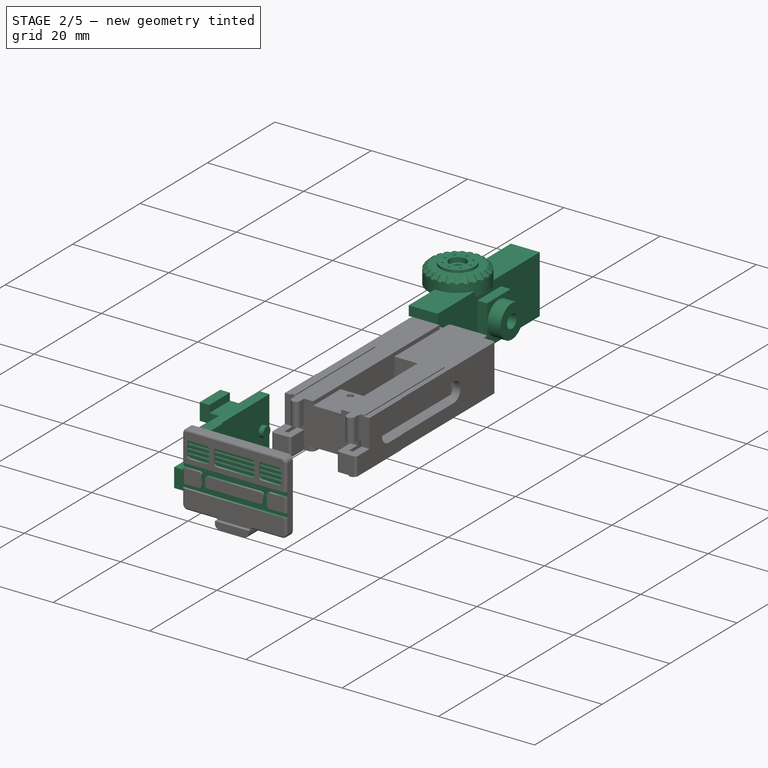
[diagram: stage 2 of 5 — iso view after this stage's code; geometry added in this stage tinted green]
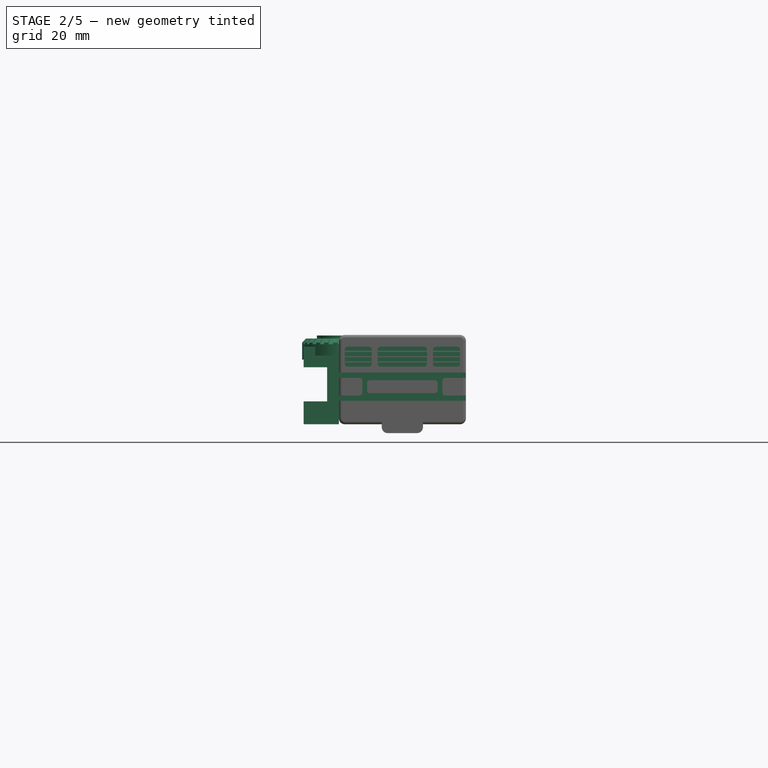
[diagram: stage 2 of 5 — front view after this stage's code; geometry added in this stage tinted green]
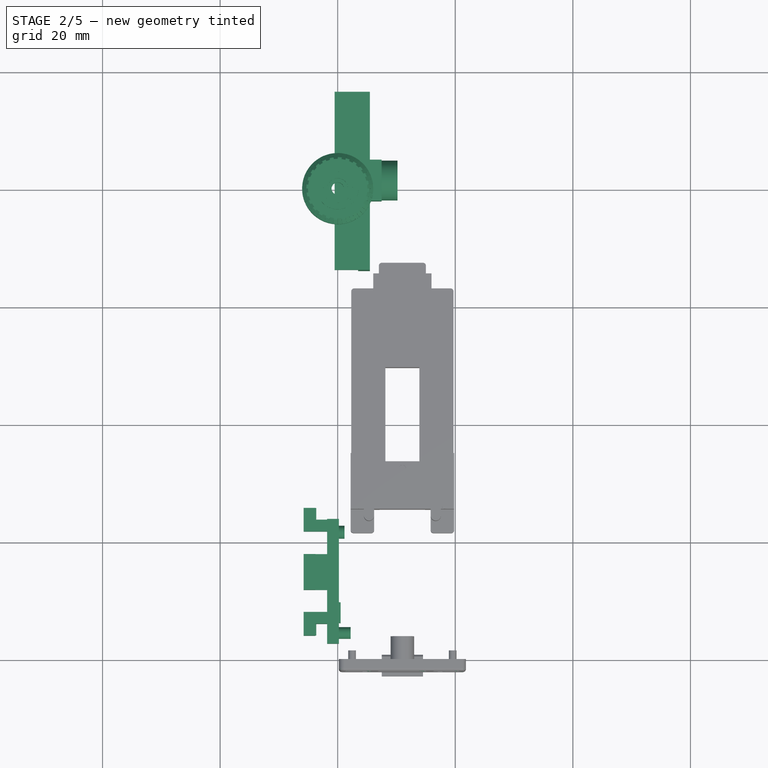
[diagram: stage 2 of 5 — top view after this stage's code; geometry added in this stage tinted green]
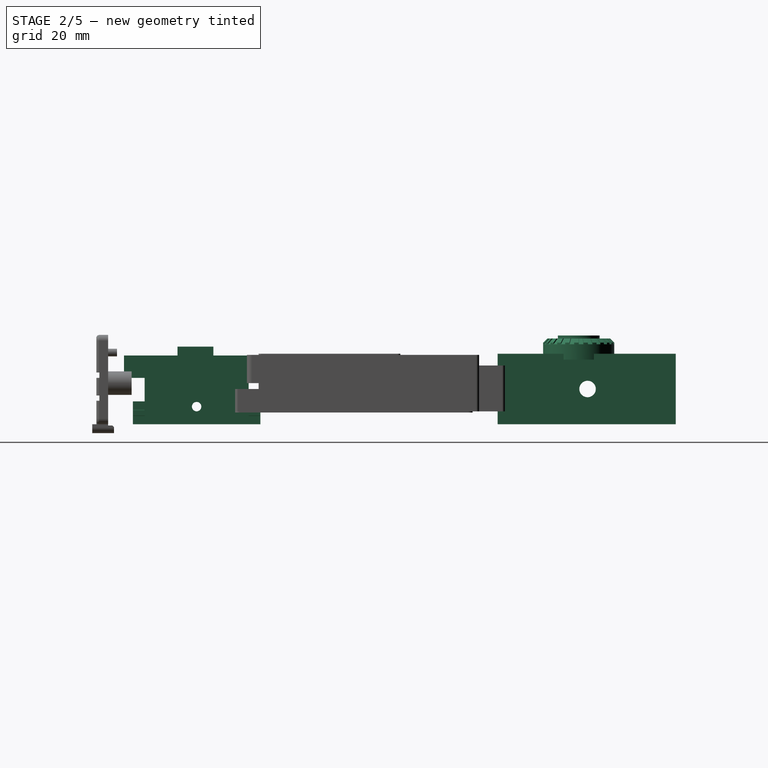
[diagram: stage 2 of 5 — right view after this stage's code; geometry added in this stage tinted green]
FEATURE [PartDesign::Body] Body  label="Rear_Torso"
  AllowCompound = false
  Group = -> [Sketch,Pad,Sketch001,Pad001,Sketch002,Pad002,Sketch003,Pad003,Sketch004,Pocket,Sketch005,Sketch006,Pocket002,Pocket003,Sketch007,Pad004,Sketch008,Pad005,Sketch009,Pocket004,Sketch010,Pad006,Sketch011,Pocket005,Sketch012,Pocket006,Sketch015,Pad007,Sketch016,Pocket007,Sketch017,Pad008,Sketch018,Pad009,Sketch019,Pad010,Sketch020,Pad011,Sketch021,Pad012,Sketch022,Pad013,Pad014,Sketch023,Pocket008,+36 more]
  Origin = -> Origin
  Placement = pos=(33,19,0) rot=(0,0,1;0rad)
  Tip = -> Pocket017
FEATURE [Sketcher::SketchObject] Sketch097
  ArcFitTolerance = 1e-06
  AttachmentSupport = -> [XY_Plane008]
  FullyConstrained = true
  MakeInternals = false
  MapMode = 5
  sketch-geometry (1):
    g0: Circle CenterX=0 CenterY=0 CenterZ=0 NormalX=0 NormalY=0 NormalZ=1 AngleXU=0 Radius=6.05
  constraints (2):
    c: Coincident(g0,g-1)
    c: Diameter(g0) = 12.1
FEATURE [PartDesign::Pad] Pad067
  Direction = (0,0,1)
  Length = 3.6
  Length2 = 10
  Profile = -> Sketch097
  ReferenceAxis = -> Sketch097 [N_Axis]
  Refine = true
  Suppressed = false
  Type = 0
FEATURE [Sketcher::SketchObject] Sketch098
  ArcFitTolerance = 1e-06
  AttachmentSupport = -> [Pad067]
  FullyConstrained = true
  MakeInternals = false
  MapMode = 5
  Placement = pos=(0,0,3.6) rot=(0,0,1;0rad)
  sketch-geometry (1):
    g0: Circle CenterX=0 CenterY=0 CenterZ=0 NormalX=0 NormalY=0 NormalZ=1 AngleXU=0 Radius=3.55
  constraints (2):
    c: Coincident(g0,g-1)
    c: Diameter(g0) = 7.1
FEATURE [PartDesign::Pad] Pad068
  BaseFeature = -> Pad067
  Direction = (0,0,1)
  Length = 0.5
  Length2 = 10
  Profile = -> Sketch098
  ReferenceAxis = -> Sketch098 [N_Axis]
  Refine = true
  Suppressed = false
  Type = 0
FEATURE [Sketcher::SketchObject] Sketch099
  ArcFitTolerance = 1e-06
  AttachmentSupport = -> [Pad068]
  ExternalGeometry = -> [Pad068]
  FullyConstrained = true
  MakeInternals = false
  MapMode = 5
  Placement = pos=(0,0,3.6) rot=(0,0,1;0rad)
  sketch-geometry (2):
    g0: Circle CenterX=0 CenterY=0 CenterZ=0 NormalX=0 NormalY=0 NormalZ=1 AngleXU=0 Radius=5
    g1: Circle CenterX=0 CenterY=0 CenterZ=0 NormalX=0 NormalY=0 NormalZ=1 AngleXU=0 Radius=6.05
  constraints (5):
    c: Diameter(g0) = 10
    c: Coincident(g1,g0)
    c: Diameter(g-3) = 12.1
    c: Diameter(g1) = 12.1
    c: Coincident(g0,g-1)
FEATURE [PartDesign::Pocket] Pocket091
  BaseFeature = -> Pad068
  Direction = (0,0,-1)
  Length = 1
  Length2 = 5
  Profile = -> Sketch099
  ReferenceAxis = -> Sketch099 [N_Axis]
  Refine = true
  Suppressed = false
  Type = 0
FEATURE [Sketcher::SketchObject] Sketch100
  ArcFitTolerance = 1e-06
  AttachmentSupport = -> [Pocket091]
  ExternalGeometry = -> [Pocket091]
  FullyConstrained = true
  MakeInternals = false
  MapMode = 5
  Placement = pos=(0,0,3.6) rot=(0,0,1;0rad)
  sketch-geometry (50):
    g0: Circle [constr] CenterX=0 CenterY=0 CenterZ=0 NormalX=0 NormalY=0 NormalZ=1 AngleXU=0 Radius=6.05
    g1: LineSegment StartX=4e-16 StartY=6.05 StartZ=0 EndX=-0.789683 EndY=5.99824 EndZ=0
    g2: LineSegment StartX=-0.789683 StartY=5.99824 StartZ=0 EndX=-1.56586 EndY=5.84385 EndZ=0
    g3: LineSegment StartX=-1.56586 StartY=5.84385 StartZ=0 EndX=-2.31523 EndY=5.58947 EndZ=0
    g4: LineSegment StartX=-2.31523 StartY=5.58947 StartZ=0 EndX=-3.025 EndY=5.23945 EndZ=0
    g5: LineSegment StartX=-3.025 StartY=5.23945 StartZ=0 EndX=-3.68301 EndY=4.79979 EndZ=0
    g6: LineSegment StartX=-3.68301 StartY=4.79979 StartZ=0 EndX=-4.278 EndY=4.278 EndZ=0
    g7: LineSegment StartX=-4.278 StartY=4.278 StartZ=0 EndX=-4.79979 EndY=3.68301 EndZ=0
    g8: LineSegment StartX=-4.79979 StartY=3.68301 StartZ=0 EndX=-5.23945 EndY=3.025 EndZ=0
    g9: LineSegment StartX=-5.23945 StartY=3.025 StartZ=0 EndX=-5.58947 EndY=2.31523 EndZ=0
    g10: LineSegment StartX=-5.58947 StartY=2.31523 StartZ=0 EndX=-5.84385 EndY=1.56586 EndZ=0
    g11: LineSegment StartX=-5.84385 StartY=1.56586 StartZ=0 EndX=-5.99824 EndY=0.789683 EndZ=0
    g12: LineSegment StartX=-5.99824 StartY=0.789683 StartZ=0 EndX=-6.05 EndY=4e-16 EndZ=0
    g13: LineSegment StartX=-6.05 StartY=4e-16 StartZ=0 EndX=-5.99824 EndY=-0.789683 EndZ=0
    g14: LineSegment StartX=-5.99824 StartY=-0.789683 StartZ=0 EndX=-5.84385 EndY=-1.56586 EndZ=0
    g15: LineSegment StartX=-5.84385 StartY=-1.56586 StartZ=0 EndX=-5.58947 EndY=-2.31523 EndZ=0
    g16: LineSegment StartX=-5.58947 StartY=-2.31523 StartZ=0 EndX=-5.23945 EndY=-3.025 EndZ=0
    g17: LineSegment StartX=-5.23945 StartY=-3.025 StartZ=0 EndX=-4.79979 EndY=-3.68301 EndZ=0
    g18: LineSegment StartX=-4.79979 StartY=-3.68301 StartZ=0 EndX=-4.278 EndY=-4.278 EndZ=0
    g19: LineSegment StartX=-4.278 StartY=-4.278 StartZ=0 EndX=-3.68301 EndY=-4.79979 EndZ=0
    g20: LineSegment StartX=-3.68301 StartY=-4.79979 StartZ=0 EndX=-3.025 EndY=-5.23945 EndZ=0
    g21: LineSegment StartX=-3.025 StartY=-5.23945 StartZ=0 EndX=-2.31523 EndY=-5.58947 EndZ=0
    g22: LineSegment StartX=-2.31523 StartY=-5.58947 StartZ=0 EndX=-1.56586 EndY=-5.84385 EndZ=0
    g23: LineSegment StartX=-1.56586 StartY=-5.84385 StartZ=0 EndX=-0.789683 EndY=-5.99824 EndZ=0
    g24: LineSegment StartX=-0.789683 StartY=-5.99824 StartZ=0 EndX=-1e-16 EndY=-6.05 EndZ=0
    g25: LineSegment StartX=-1e-16 StartY=-6.05 StartZ=0 EndX=0.789683 EndY=-5.99824 EndZ=0
    g26: LineSegment StartX=0.789683 StartY=-5.99824 StartZ=0 EndX=1.56586 EndY=-5.84385 EndZ=0
    g27: LineSegment StartX=1.56586 StartY=-5.84385 StartZ=0 EndX=2.31523 EndY=-5.58947 EndZ=0
    g28: LineSegment StartX=2.31523 StartY=-5.58947 StartZ=0 EndX=3.025 EndY=-5.23945 EndZ=0
    g29: LineSegment StartX=3.025 StartY=-5.23945 StartZ=0 EndX=3.68301 EndY=-4.79979 EndZ=0
    g30: LineSegment StartX=3.68301 StartY=-4.79979 StartZ=0 EndX=4.278 EndY=-4.278 EndZ=0
    g31: LineSegment StartX=4.278 StartY=-4.278 StartZ=0 EndX=4.79979 EndY=-3.68301 EndZ=0
    g32: LineSegment StartX=4.79979 StartY=-3.68301 StartZ=0 EndX=5.23945 EndY=-3.025 EndZ=0
    g33: LineSegment StartX=5.23945 StartY=-3.025 StartZ=0 EndX=5.58947 EndY=-2.31523 EndZ=0
    g34: LineSegment StartX=5.58947 StartY=-2.31523 StartZ=0 EndX=5.84385 EndY=-1.56586 EndZ=0
    g35: LineSegment StartX=5.84385 StartY=-1.56586 StartZ=0 EndX=5.99824 EndY=-0.789683 EndZ=0
    g36: LineSegment StartX=5.99824 StartY=-0.789683 StartZ=0 EndX=6.05 EndY=0 EndZ=0
    g37: LineSegment StartX=6.05 StartY=0 StartZ=0 EndX=5.99824 EndY=0.789683 EndZ=0
    g38: LineSegment StartX=5.99824 StartY=0.789683 StartZ=0 EndX=5.84385 EndY=1.56586 EndZ=0
    g39: LineSegment StartX=5.84385 StartY=1.56586 StartZ=0 EndX=5.58947 EndY=2.31523 EndZ=0
    g40: LineSegment StartX=5.58947 StartY=2.31523 StartZ=0 EndX=5.23945 EndY=3.025 EndZ=0
    g41: LineSegment StartX=5.23945 StartY=3.025 StartZ=0 EndX=4.79979 EndY=3.68301 EndZ=0
    g42: LineSegment StartX=4.79979 StartY=3.68301 StartZ=0 EndX=4.278 EndY=4.278 EndZ=0
    g43: LineSegment StartX=4.278 StartY=4.278 StartZ=0 EndX=3.68301 EndY=4.79979 EndZ=0
    g44: LineSegment StartX=3.68301 StartY=4.79979 StartZ=0 EndX=3.025 EndY=5.23945 EndZ=0
    g45: LineSegment StartX=3.025 StartY=5.23945 StartZ=0 EndX=2.31523 EndY=5.58947 EndZ=0
    g46: LineSegment StartX=2.31523 StartY=5.58947 StartZ=0 EndX=1.56586 EndY=5.84385 EndZ=0
    g47: LineSegment StartX=1.56586 StartY=5.84385 StartZ=0 EndX=0.789683 EndY=5.99824 EndZ=0
    g48: LineSegment StartX=0.789683 StartY=5.99824 StartZ=0 EndX=4e-16 EndY=6.05 EndZ=0
    g49: Circle [constr] CenterX=0 CenterY=0 CenterZ=0 NormalX=0 NormalY=0 NormalZ=1 AngleXU=0 Radius=6.05
  constraints (102):
    c: Coincident(g0,g-1)
    c: Coincident(g1,g2)
    c: Coincident(g2,g3)
    c: Coincident(g3,g4)
    c: Coincident(g4,g5)
    c: Coincident(g5,g6)
    c: Coincident(g6,g7)
    c: Coincident(g7,g8)
    c: Coincident(g8,g9)
    c: Coincident(g9,g10)
    c: Coincident(g10,g11)
    c: Coincident(g11,g12)
    c: Coincident(g12,g13)
    c: Coincident(g13,g14)
    c: Coincident(g14,g15)
    c: Coincident(g15,g16)
    c: Coincident(g16,g17)
    c: Coincident(g17,g18)
    c: Coincident(g18,g19)
    c: Coincident(g19,g20)
    c: Coincident(g20,g21)
    c: Coincident(g21,g22)
    c: Coincident(g22,g23)
    c: Coincident(g23,g24)
    c: Coincident(g24,g25)
    c: Coincident(g25,g26)
    c: Coincident(g26,g27)
    c: Coincident(g27,g28)
    c: Coincident(g28,g29)
    c: Coincident(g29,g30)
    c: Coincident(g30,g31)
    c: Coincident(g31,g32)
    c: Coincident(g32,g33)
    c: Coincident(g33,g34)
    c: Coincident(g34,g35)
    c: Coincident(g35,g36)
    c: Coincident(g36,g37)
    c: Coincident(g37,g38)
    c: Coincident(g38,g39)
    c: Coincident(g39,g40)
    c: Coincident(g40,g41)
    c: Coincident(g41,g42)
    c: Coincident(g42,g43)
    c: Coincident(g43,g44)
    c: Coincident(g44,g45)
    c: Coincident(g45,g46)
    c: Coincident(g46,g47)
    c: Coincident(g47,g48)
    c: Coincident(g48,g1)
    c: Equal(g1, g2-g48) x47
    c: PointOnObject(g1,g49)
    c: PointOnObject(g2,g49)
    c: PointOnObject(g3,g49)
    c: PointOnObject(g4,g49)
    c: PointOnObject(g5,g49)
    c: PointOnObject(g6,g49)
    c: PointOnObject(g7,g49)
    c: PointOnObject(g8,g49)
    c: PointOnObject(g9,g49)
    c: PointOnObject(g10,g49)
    c: PointOnObject(g11,g49)
    c: PointOnObject(g12,g49)
    c: PointOnObject(g13,g49)
    c: PointOnObject(g14,g49)
    c: PointOnObject(g15,g49)
    c: PointOnObject(g16,g49)
    c: PointOnObject(g17,g49)
    c: PointOnObject(g18,g49)
    c: PointOnObject(g19,g49)
    c: PointOnObject(g20,g49)
    c: PointOnObject(g21,g49)
    c: PointOnObject(g22,g49)
    c: PointOnObject(g23,g49)
    c: PointOnObject(g24,g49)
    c: PointOnObject(g25,g49)
    c: PointOnObject(g26,g49)
    c: PointOnObject(g27,g49)
    c: PointOnObject(g28,g49)
    c: PointOnObject(g29,g49)
    c: PointOnObject(g30,g49)
    c: PointOnObject(g31,g49)
    c: PointOnObject(g32,g49)
    c: PointOnObject(g33,g49)
    c: PointOnObject(g34,g49)
    c: PointOnObject(g35,g49)
    c: PointOnObject(g36,g49)
    c: PointOnObject(g37,g49)
    c: PointOnObject(g38,g49)
    c: PointOnObject(g39,g49)
    c: PointOnObject(g40,g49)
    c: PointOnObject(g41,g49)
    c: PointOnObject(g42,g49)
    c: PointOnObject(g43,g49)
    c: PointOnObject(g44,g49)
    c: PointOnObject(g45,g49)
    c: PointOnObject(g46,g49)
    c: PointOnObject(g47,g49)
    c: PointOnObject(g48,g49)
    c: Coincident(g49,g0)
    c: PointOnObject(g48,g0)
    c: PointOnObject(g1,g-3)
    c: DistanceY(g0,g36) = 0
FEATURE [PartDesign::Pad] Pad069
  BaseFeature = -> Pocket091
  Direction = (0,0,1)
  Length = 1
  Length2 = 10
  Profile = -> Sketch100
  ReferenceAxis = -> Sketch100 [N_Axis]
  Refine = true
  Reversed = true
  Suppressed = false
  Type = 0
FEATURE [PartDesign::Chamfer] Chamfer
  Angle = 45
  Base = -> Pad069 [Edge137,Edge139,Edge141,Edge143,Edge145,Edge147,Edge149,Edge151,Edge153,Edge135,Edge133,Edge131,Edge129,Edge127,Edge125,Edge123,Edge121,Edge119,Edge117,Edge115,Edge113,Edge111,Edge109,Edge107,Edge105,Edge103,Edge101,Edge194,Edge193,Edge191,Edge189,Edge187,Edge185,Edge183,Edge181,Edge179,Edge177,Edge175,Edge173,Edge171,+8 more]
  BaseFeature = -> Pad069
  ChamferType = 0
  FlipDirection = false
  Refine = true
  Size = 0.99
  Size2 = 1
  SupportTransform = false
  Suppressed = false
  UseAllEdges = false
FEATURE [PartDesign::Pad] Pad070
  BaseFeature = -> Chamfer
  Direction = (-0.312745,0.634185,0.707107)
  Length = 0.2
  Length2 = 10
  Profile = -> Chamfer [Face44]
  Refine = true
  Suppressed = false
  Type = 0
FEATURE [PartDesign::Pad] Pad071
  BaseFeature = -> Pad070
  Direction = (0.587938,-0.392847,0.707107)
  Length = 0.2
  Length2 = 10
  Profile = -> Pad070 [Face45]
  Refine = true
  Suppressed = false
  Type = 0
FEATURE [PartDesign::Pad] Pad072
  BaseFeature = -> Pad071
  Direction = (-0.13795,0.69352,0.707107)
  Length = 0.2
  Length2 = 10
  Profile = -> Pad071 [Face48]
  Refine = true
  Suppressed = false
  Type = 0
FEATURE [PartDesign::Pad] Pad073
  BaseFeature = -> Pad072
  Direction = (0.046247,0.705593,0.707107)
  Length = 0.2
  Length2 = 10
  Profile = -> Pad072 [Face50]
  Refine = true
  Suppressed = false
  Type = 0
FEATURE [PartDesign::Pad] Pad074
  BaseFeature = -> Pad073
  Direction = (0.227292,0.669581,0.707107)
  Length = 0.2
  Length2 = 10
  Profile = -> Pad073 [Face52]
  Refine = true
  Suppressed = false
  Type = 0
FEATURE [PartDesign::Pad] Pad075
  BaseFeature = -> Pad074
  Direction = (0.392847,0.587938,0.707107)
  Length = 0.2
  Length2 = 10
  Profile = -> Pad074 [Face56]
  Refine = true
  Suppressed = false
  Type = 0
FEATURE [PartDesign::Pad] Pad076
  BaseFeature = -> Pad075
  Direction = (0.531631,0.466228,0.707107)
  Length = 0.2
  Length2 = 10
  Profile = -> Pad075 [Face60]
  Refine = true
  Suppressed = false
  Type = 0
FEATURE [PartDesign::Pad] Pad077
  BaseFeature = -> Pad076
  Direction = (0.634185,0.312745,0.707107)
  Length = 0.2
  Length2 = 10
  Profile = -> Pad076 [Face57]
  Refine = true
  Suppressed = false
  Type = 0
FEATURE [PartDesign::Pad] Pad078
  BaseFeature = -> Pad077
  Direction = (-0.466228,0.531631,0.707107)
  Length = 0.2
  Length2 = 10
  Profile = -> Pad077 [Face40]
  Refine = true
  Suppressed = false
  Type = 0
FEATURE [PartDesign::Pad] Pad079
  BaseFeature = -> Pad078
  Direction = (-0.587938,0.392847,0.707107)
  Length = 0.2
  Length2 = 10
  Profile = -> Pad078 [Face36]
  Refine = true
  Suppressed = false
  Type = 0
FEATURE [PartDesign::Pad] Pad080
  BaseFeature = -> Pad079
  Direction = (-0.669581,0.227292,0.707107)
  Length = 0.2
  Length2 = 10
  Profile = -> Pad079 [Face32]
  Refine = true
  Suppressed = false
  Type = 0
FEATURE [PartDesign::Pad] Pad081
  BaseFeature = -> Pad080
  Direction = (-0.705593,0.046247,0.707107)
  Length = 0.2
  Length2 = 10
  Profile = -> Pad080 [Face28]
  Refine = true
  Suppressed = false
  Type = 0
FEATURE [PartDesign::Pad] Pad082
  BaseFeature = -> Pad081
  Direction = (-0.69352,-0.13795,0.707107)
  Length = 0.2
  Length2 = 10
  Profile = -> Pad081 [Face24]
  Refine = true
  Suppressed = false
  Type = 0
FEATURE [PartDesign::Pad] Pad083
  BaseFeature = -> Pad082
  Direction = (-0.634185,-0.312745,0.707107)
  Length = 0.2
  Length2 = 10
  Profile = -> Pad082 [Face20]
  Refine = true
  Suppressed = false
  Type = 0
FEATURE [PartDesign::Pad] Pad084
  BaseFeature = -> Pad083
  Direction = (0.69352,0.13795,0.707107)
  Length = 0.2
  Length2 = 10
  Profile = -> Pad083 [Face53]
  Refine = true
  Suppressed = false
  Type = 0
FEATURE [PartDesign::Pad] Pad085
  BaseFeature = -> Pad084
  Direction = (0.705593,-0.046247,0.707107)
  Length = 0.2
  Length2 = 10
  Profile = -> Pad084 [Face3]
  Refine = true
  Suppressed = false
  Type = 0
FEATURE [PartDesign::Pad] Pad086
  BaseFeature = -> Pad085
  Direction = (0.669581,-0.227292,0.707107)
  Length = 0.2
  Length2 = 10
  Profile = -> Pad085 [Face17]
  Refine = true
  Suppressed = false
  Type = 0
FEATURE [PartDesign::Pad] Pad087
  BaseFeature = -> Pad086
  Direction = (0.466228,-0.531631,0.707107)
  Length = 0.2
  Length2 = 10
  Profile = -> Pad086 [Face99]
  Refine = true
  Suppressed = false
  Type = 0
FEATURE [PartDesign::Pad] Pad088
  BaseFeature = -> Pad087
  Direction = (-0.531631,-0.466228,0.707107)
  Length = 0.2
  Length2 = 10
  Profile = -> Pad087 [Face75]
  Refine = true
  Suppressed = false
  Type = 0
FEATURE [PartDesign::Pad] Pad089
  BaseFeature = -> Pad088
  Direction = (-0.392847,-0.587938,0.707107)
  Length = 0.2
  Length2 = 10
  Profile = -> Pad088 [Face79]
  Refine = true
  Suppressed = false
  Type = 0
FEATURE [PartDesign::Pad] Pad090
  BaseFeature = -> Pad089
  Direction = (-0.227292,-0.669581,0.707107)
  Length = 0.2
  Length2 = 10
  Profile = -> Pad089 [Face83]
  Refine = true
  Suppressed = false
  Type = 0
FEATURE [PartDesign::Pad] Pad091
  BaseFeature = -> Pad090
  Direction = (-0.046247,-0.705593,0.707107)
  Length = 0.2
  Length2 = 10
  Profile = -> Pad090 [Face87]
  Refine = true
  Suppressed = false
  Type = 0
FEATURE [PartDesign::Pad] Pad092
  BaseFeature = -> Pad091
  Direction = (0.312745,-0.634185,0.707107)
  Length = 0.2
  Length2 = 10
  Profile = -> Pad091 [Face95]
  Refine = true
  Suppressed = false
  Type = 0
FEATURE [PartDesign::Pad] Pad093
  BaseFeature = -> Pad092
  Direction = (0.13795,-0.69352,0.707107)
  Length = 0.2
  Length2 = 10
  Profile = -> Pad092 [Face91]
  Refine = true
  Suppressed = false
  Type = 0
FEATURE [Sketcher::SketchObject] Sketch101
  ArcFitTolerance = 1e-06
  AttachmentSupport = -> [Pad093]
  FullyConstrained = true
  MakeInternals = false
  MapMode = 5
  Placement = pos=(0,0,3.6) rot=(0,0,1;0rad)
  sketch-geometry (2):
    g0: Circle CenterX=0 CenterY=0 CenterZ=0 NormalX=0 NormalY=0 NormalZ=1 AngleXU=0 Radius=5.5
    g1: Circle CenterX=0 CenterY=0 CenterZ=0 NormalX=0 NormalY=0 NormalZ=1 AngleXU=0 Radius=4.5
  constraints (4):
    c: Coincident(g0,g-1)
    c: Diameter(g0) = 11
    c: Coincident(g1,g0)
    c: Diameter(g1) = 9
FEATURE [PartDesign::Pocket] Pocket092
  BaseFeature = -> Pad093
  Direction = (0,0,-1)
  Length = 5
  Length2 = 5
  Profile = -> Sketch101 [Edge2,Edge1]
  ReferenceAxis = -> Sketch101 [N_Axis]
  Refine = true
  Reversed = true
  Suppressed = false
  Type = 0
FEATURE [Sketcher::SketchObject] Sketch102
  ArcFitTolerance = 1e-06
  AttachmentSupport = -> [Pocket092]
  ExternalGeometry = -> [Pocket092]
  FullyConstrained = false
  MakeInternals = false
  MapMode = 5
  Placement = pos=(0,0,0) rot=(1,0,0;3.14159rad)
  sketch-geometry (2):
    g0: Circle CenterX=0 CenterY=0 CenterZ=0 NormalX=0 NormalY=0 NormalZ=1 AngleXU=0 Radius=6.05
    g1: Circle CenterX=0 CenterY=0 CenterZ=0 NormalX=0 NormalY=0 NormalZ=1 AngleXU=0 Radius=6.5
  constraints (3):
    c: Coincident(g0,g-1)
    c: Coincident(g1,g0)
    c: Diameter(g1) = 13
FEATURE [PartDesign::Pocket] Pocket093
  BaseFeature = -> Pocket092
  Direction = (0,0,1)
  Length = 5
  Length2 = 5
  Profile = -> Sketch102
  ReferenceAxis = -> Sketch102 [N_Axis]
  Refine = true
  Suppressed = false
  Type = 0
FEATURE [Sketcher::SketchObject] Sketch103
  ArcFitTolerance = 1e-06
  AttachmentSupport = -> [Pocket093]
  FullyConstrained = true
  MakeInternals = false
  MapMode = 5
  Placement = pos=(0,0,4.1) rot=(0,0,1;0rad)
  sketch-geometry (1):
    g0: Circle CenterX=0 CenterY=0 CenterZ=0 NormalX=0 NormalY=0 NormalZ=1 AngleXU=0 Radius=1.05
  constraints (2):
    c: Coincident(g0,g-1)
    c: Diameter(g0) = 2.1
FEATURE [PartDesign::Pocket] Pocket094
  BaseFeature = -> Pocket093
  Direction = (0,0,-1)
  Length = 5
  Length2 = 5
  Profile = -> Sketch103
  ReferenceAxis = -> Sketch103 [N_Axis]
  Refine = true
  Suppressed = false
  Type = 0
FEATURE [Sketcher::SketchObject] Sketch104
  ArcFitTolerance = 1e-06
  AttachmentSupport = -> [Pocket094]
  FullyConstrained = true
  MakeInternals = false
  MapMode = 5
  Placement = pos=(0,0,4.1) rot=(0,0,1;0rad)
  sketch-geometry (1):
    g0: Circle CenterX=0 CenterY=0 CenterZ=0 NormalX=0 NormalY=0 NormalZ=1 AngleXU=0 Radius=1.75
  constraints (2):
    c: Coincident(g0,g-1)
    c: Diameter(g0) = 3.5
FEATURE [PartDesign::Pocket] Pocket095
  BaseFeature = -> Pocket094
  Direction = (0,0,-1)
  Length = 1
  Length2 = 5
  Profile = -> Sketch104
  ReferenceAxis = -> Sketch104 [N_Axis]
  Refine = true
  Suppressed = false
  Type = 0
FEATURE [Sketcher::SketchObject] Sketch105
  ArcFitTolerance = 1e-06
  AttachmentSupport = -> [Pocket095]
  ExternalGeometry = -> [Pocket095]
  FullyConstrained = true
  MakeInternals = false
  MapMode = 5
  Placement = pos=(0,0,4.1) rot=(0,0,1;0rad)
  sketch-geometry (12):
    g0: Circle CenterX=0 CenterY=2.65 CenterZ=0 NormalX=0 NormalY=0 NormalZ=1 AngleXU=0 Radius=0.25
    g1: Circle CenterX=2.65 CenterY=0 CenterZ=0 NormalX=0 NormalY=0 NormalZ=1 AngleXU=0 Radius=0.25
    g2: Circle CenterX=0 CenterY=-2.65 CenterZ=0 NormalX=0 NormalY=0 NormalZ=1 AngleXU=0 Radius=0.25
    g3: Circle CenterX=-2.65 CenterY=0 CenterZ=0 NormalX=0 NormalY=0 NormalZ=1 AngleXU=0 Radius=0.25
    g4: Circle CenterX=1.87383 CenterY=1.87383 CenterZ=0 NormalX=0 NormalY=0 NormalZ=1 AngleXU=0 Radius=0.25
    g5: Circle CenterX=1.87383 CenterY=-1.87383 CenterZ=0 NormalX=0 NormalY=0 NormalZ=1 AngleXU=0 Radius=0.25
    g6: Circle CenterX=-1.87383 CenterY=-1.87383 CenterZ=0 NormalX=0 NormalY=0 NormalZ=1 AngleXU=0 Radius=0.25
    g7: Circle CenterX=-1.87383 CenterY=1.87383 CenterZ=0 NormalX=0 NormalY=0 NormalZ=1 AngleXU=0 Radius=0.25
    g8: LineSegment StartX=1.87383 StartY=1.87383 StartZ=0 EndX=0 EndY=0 EndZ=0
    g9: LineSegment StartX=0 StartY=0 StartZ=0 EndX=1.87383 EndY=-1.87383 EndZ=0
    g10: LineSegment StartX=0 StartY=0 StartZ=0 EndX=-1.87383 EndY=-1.87383 EndZ=0
    g11: LineSegment StartX=0 StartY=0 StartZ=0 EndX=-1.87383 EndY=1.87383 EndZ=0
  constraints (34):
    c: PointOnObject(g0,g-2)
    c: Diameter(g-3) = 7.1
    c: Diameter(g-4) = 3.5
    c: DistanceY(g-1,g0) = 2.65
    c: Diameter(g0) = 0.5
    c: PointOnObject(g1,g-1)
    c: PointOnObject(g2,g-2)
    c: PointOnObject(g3,g-1)
    c: Diameter(g3) = 0.5
    c: Diameter(g1) = 0.5
    c: Diameter(g2) = 0.5
    c: DistanceX(g3,g-1) = 2.65
    c: DistanceX(g-1,g1) = 2.65
    c: DistanceY(g2,g-1) = 2.65
    c: Diameter(g7) = 0.5
    c: Diameter(g4) = 0.5
    c: Diameter(g5) = 0.5
    c: Diameter(g6) = 0.5
    c: Distance(g-1,g6) = 2.65
    c: Distance(g-1,g5) = 2.65
    c: Distance(g-1,g4) = 2.65
    c: Distance(g-1,g7) = 2.65
    c: Coincident(g8,g4)
    c: Coincident(g8,g-1)
    c: Angle(g-1,g8) = 0.785398
    c: Coincident(g9,g8)
    c: Coincident(g9,g5)
    c: Coincident(g10,g8)
    c: Coincident(g10,g6)
    c: Coincident(g11,g8)
    c: Coincident(g11,g7)
    c: Angle(g9,g-1) = 0.785398
    c: Angle(g-2,g10) = 2.35619
    c: Angle(g-1,g11) = 2.35619
FEATURE [PartDesign::Pocket] Pocket096
  BaseFeature = -> Pocket095
  Direction = (0,0,-1)
  Length = 0.2
  Length2 = 5
  Profile = -> Sketch105 [Edge8,Edge4,Edge7,Edge3,Edge6,Edge2,Edge5,Edge1]
  ReferenceAxis = -> Sketch105 [N_Axis]
  Refine = true
  Suppressed = false
  Type = 0
FEATURE [Sketcher::SketchObject] Sketch106
  ArcFitTolerance = 1e-06
  AttachmentSupport = -> [Pocket096]
  FullyConstrained = true
  MakeInternals = false
  MapMode = 5
  Placement = pos=(0,0,0) rot=(1,0,0;3.14159rad)
  sketch-geometry (1):
    g0: Circle CenterX=0 CenterY=0 CenterZ=0 NormalX=0 NormalY=0 NormalZ=1 AngleXU=0 Radius=2.5
  constraints (2):
    c: Coincident(g0,g-1)
    c: Diameter(g0) = 5
FEATURE [PartDesign::Pocket] Pocket097
  BaseFeature = -> Pocket096
  Direction = (0,0,1)
  Length = 1.5
  Length2 = 5
  Profile = -> Sketch106
  ReferenceAxis = -> Sketch106 [N_Axis]
  Refine = true
  Suppressed = false
  Type = 0
FEATURE [Sketcher::SketchObject] Sketch107
  ArcFitTolerance = 1e-06
  AttachmentSupport = -> [Pocket097]
  FullyConstrained = true
  MakeInternals = false
  MapMode = 5
  Placement = pos=(0,0,0) rot=(1,0,0;3.14159rad)
  sketch-geometry (2):
    g0: Circle CenterX=0 CenterY=0 CenterZ=0 NormalX=0 NormalY=0 NormalZ=1 AngleXU=0 Radius=4.75
    g1: Circle CenterX=0 CenterY=0 CenterZ=0 NormalX=0 NormalY=0 NormalZ=1 AngleXU=0 Radius=5.5
  constraints (4):
    c: Coincident(g0,g-1)
    c: Coincident(g1,g0)
    c: Diameter(g0) = 9.5
    c: Diameter(g1) = 11
FEATURE [PartDesign::Pocket] Pocket098
  BaseFeature = -> Pocket097
  Direction = (0,0,1)
  Length = 1.5
  Length2 = 5
  Profile = -> Sketch107
  ReferenceAxis = -> Sketch107 [N_Axis]
  Refine = true
  Suppressed = false
  Type = 0
FEATURE [PartDesign::SubShapeBinder] Binder002
  BindCopyOnChange = 0
  BindMode = 2
  ClaimChildren = false
  Fuse = false
  MakeFace = true
  OffsetFill = false
  OffsetIntersection = false
  OffsetJoinType = 0
  OffsetOpenResult = false
  PartialLoad = false
  Refine = true
  Relative = true
  _Version = 2
FEATURE [Sketcher::SketchObject] Sketch071
  ArcFitTolerance = 1e-06
  AttachmentSupport = -> [Binder002]
  FullyConstrained = true
  MakeInternals = false
  MapMode = 5
  Placement = pos=(5.47474,0,5.62e-14) rot=(0.57735,0.57735,0.57735;2.0944rad)
  sketch-geometry (4):
    g0: LineSegment StartX=-2 StartY=-1 StartZ=0 EndX=-2 EndY=-9 EndZ=0
    g1: LineSegment StartX=-2 StartY=-9 StartZ=0 EndX=5 EndY=-9 EndZ=0
    g2: LineSegment StartX=5 StartY=-9 StartZ=0 EndX=5 EndY=-1 EndZ=0
    g3: LineSegment StartX=5 StartY=-1 StartZ=0 EndX=-2 EndY=-1 EndZ=0
  constraints (13):
    c: Vertical(g0)
    c: Vertical(g2)
    c: Horizontal(g1)
    c: Horizontal(g3)
    c: DistanceX(g0,g-1) = 2
    c: DistanceX(g-1,g2) = 5
    c: Coincident(g2,g3)
    c: DistanceY(g3,g-1) = 1
    c: DistanceY(g0,g0) = 8
    c: Coincident(g0,g3)
    c: DistanceX(g1,g1) = 7
    c: DistanceY(g2,g2) = 8
    c: Coincident(g1,g2)
FEATURE [PartDesign::Pad] Pad058
  Direction = (1,0,1.02e-14)
  Length = 2
  Length2 = 10
  Profile = -> Sketch071
  ReferenceAxis = -> Sketch071 [N_Axis]
  Refine = true
  Suppressed = false
  Type = 0
FEATURE [Sketcher::SketchObject] Sketch072
  ArcFitTolerance = 1e-06
  AttachmentSupport = -> [Pad058]
  FullyConstrained = true
  MakeInternals = false
  MapMode = 5
  Placement = pos=(7.47474,0,7.63e-14) rot=(0.57735,0.57735,0.57735;2.0944rad)
  sketch-geometry (1):
    g0: Circle CenterX=1.5 CenterY=-5 CenterZ=0 NormalX=0 NormalY=0 NormalZ=1 AngleXU=0 Radius=3.4
  constraints (3):
    c: Diameter(g0) = 6.8
    c: DistanceY(g0,g-1) = 5
    c: DistanceX(g-1,g0) = 1.5
FEATURE [PartDesign::Pad] Pad059
  BaseFeature = -> Pad058
  Direction = (1,0,1.02e-14)
  Length = 2.7
  Length2 = 10
  Profile = -> Sketch072
  ReferenceAxis = -> Sketch072 [N_Axis]
  Refine = true
  Suppressed = false
  Type = 0
FEATURE [Sketcher::SketchObject] Sketch073
  ArcFitTolerance = 1e-06
  AttachmentSupport = -> [Pad059]
  FullyConstrained = true
  MakeInternals = false
  MapMode = 5
  Placement = pos=(10.1747,0,1.028e-13) rot=(0.57735,0.57735,0.57735;2.0944rad)
  sketch-geometry (1):
    g0: Circle CenterX=1.5 CenterY=-5 CenterZ=0 NormalX=0 NormalY=0 NormalZ=1 AngleXU=0 Radius=1.4
  constraints (3):
    c: Diameter(g0) = 2.8
    c: DistanceX(g-1,g0) = 1.5
    c: DistanceY(g0,g-1) = 5
FEATURE [PartDesign::Pocket] Pocket183
  BaseFeature = -> Pad059
  Direction = (-1,0,-1.02e-14)
  Length = 5
  Length2 = 5
  Profile = -> Sketch073
  ReferenceAxis = -> Sketch073 [N_Axis]
  Refine = true
  Suppressed = false
  Type = 0
FEATURE [PartDesign::Pad] Pad060
  BaseFeature = -> Pocket183
  Direction = (-1,0,-1.02e-14)
  Length = 2
  Length2 = 10
  Profile = -> Pocket183 [Face4]
  Refine = true
  Suppressed = false
  Type = 0
FEATURE [Sketcher::SketchObject] Sketch074
  ArcFitTolerance = 1e-06
  AttachmentSupport = -> [Pad060]
  ExternalGeometry = -> [Pad060]
  FullyConstrained = true
  MakeInternals = false
  MapMode = 5
  Placement = pos=(3.47474,0,3.55e-14) rot=(0.57735,-0.57735,-0.57735;2.0944rad)
  sketch-geometry (1):
    g0: Circle CenterX=-1.5 CenterY=-5 CenterZ=0 NormalX=0 NormalY=0 NormalZ=1 AngleXU=0 Radius=2.1
  constraints (2):
    c: Diameter(g0) = 4.2
    c: Coincident(g0,g-3)
FEATURE [PartDesign::Pocket] Pocket184
  BaseFeature = -> Pad060
  Direction = (1,0,1.02e-14)
  Length = 4.7
  Length2 = 5
  Profile = -> Sketch074
  ReferenceAxis = -> Sketch074 [N_Axis]
  Refine = true
  Suppressed = false
  Type = 0
FEATURE [Sketcher::SketchObject] Sketch075
  ArcFitTolerance = 1e-06
  AttachmentSupport = -> [Pocket184]
  ExternalGeometry = -> [Pocket184]
  FullyConstrained = true
  MakeInternals = false
  MapMode = 5
  Placement = pos=(3.47474,0,3.55e-14) rot=(0.57735,-0.57735,-0.57735;2.0944rad)
  sketch-geometry (8):
    g0: LineSegment StartX=-16.5 StartY=1 StartZ=0 EndX=-16.5 EndY=-11 EndZ=0
    g1: LineSegment StartX=-16.5 StartY=-11 StartZ=0 EndX=13.8 EndY=-11 EndZ=0
    g2: LineSegment StartX=13.8 StartY=-11 StartZ=0 EndX=13.8 EndY=1 EndZ=0
    g3: LineSegment StartX=13.8 StartY=1 StartZ=0 EndX=-16.5 EndY=1 EndZ=0
    g4: LineSegment StartX=-5 StartY=-1 StartZ=0 EndX=-5 EndY=-9 EndZ=0
    g5: LineSegment StartX=-5 StartY=-9 StartZ=0 EndX=2 EndY=-9 EndZ=0
    g6: LineSegment StartX=2 StartY=-9 StartZ=0 EndX=2 EndY=-1 EndZ=0
    g7: LineSegment StartX=2 StartY=-1 StartZ=0 EndX=-5 EndY=-1 EndZ=0
  constraints (21):
    c: Coincident(g0,g1)
    c: Coincident(g1,g2)
    c: Coincident(g2,g3)
    c: Coincident(g3,g0)
    c: Vertical(g0)
    c: Vertical(g2)
    c: Horizontal(g1)
    c: Horizontal(g3)
    c: Coincident(g4,g5)
    c: Coincident(g5,g6)
    c: Coincident(g6,g7)
    c: Coincident(g7,g4)
    c: Vertical(g6)
    c: Horizontal(g7)
    c: DistanceY(g0,g0) = 12
    c: Coincident(g4,g-5)
    c: Coincident(g4,g-5)
    c: Coincident(g5,g-4)
    c: DistanceX(g0,g4) = 11.5
    c: DistanceX(g6,g2) = 11.8
    c: DistanceY(g1,g5) = 2
FEATURE [PartDesign::Pad] Pad061
  BaseFeature = -> Pocket184
  Direction = (-1,0,-1.02e-14)
  Length = 2
  Length2 = 10
  Profile = -> Sketch075
  ReferenceAxis = -> Sketch075 [N_Axis]
  Refine = true
  Reversed = true
  Suppressed = false
  Type = 0
FEATURE [Sketcher::SketchObject] Sketch076
  ArcFitTolerance = 1e-06
  AttachmentSupport = -> [Pad061]
  ExternalGeometry = -> [Pad061]
  FullyConstrained = true
  MakeInternals = false
  MapMode = 5
  Placement = pos=(3.47474,0,3.55e-14) rot=(0.57735,-0.57735,-0.57735;2.0944rad)
  sketch-geometry (6):
    g0: LineSegment StartX=-16.5 StartY=1 StartZ=0 EndX=13.8 EndY=1 EndZ=0
    g1: LineSegment StartX=13.8 StartY=1 StartZ=0 EndX=13.8 EndY=-1 EndZ=0
    g2: LineSegment StartX=13.8 StartY=-1 StartZ=0 EndX=-14.5 EndY=-1 EndZ=0
    g3: LineSegment StartX=-14.5 StartY=-1 StartZ=0 EndX=-14.5 EndY=-6 EndZ=0
    g4: LineSegment StartX=-14.5 StartY=-6 StartZ=0 EndX=-16.5 EndY=-6 EndZ=0
    g5: LineSegment StartX=-16.5 StartY=-6 StartZ=0 EndX=-16.5 EndY=1 EndZ=0
  constraints (17):
    c: Coincident(g1,g0)
    c: Coincident(g2,g1)
    c: Horizontal(g2)
    c: Coincident(g3,g2)
    c: Vertical(g3)
    c: Coincident(g4,g3)
    c: Horizontal(g4)
    c: Coincident(g5,g4)
    c: Coincident(g5,g0)
    c: DistanceY(g2,g0) = 2
    c: DistanceY(g5,g5) = 7
    c: DistanceX(g2,g-3) = 13
    c: DistanceY(g-3,g2) = 4
    c: DistanceX(g4,g4) = 2
    c: Vertical(g1)
    c: DistanceX(g0,g-1) = 16.5
    c: Coincident(g0,g-4)
FEATURE [PartDesign::Pad] Pad062
  BaseFeature = -> Pad061
  Direction = (-1,0,-1.02e-14)
  Length = 4
  Length2 = 10
  Profile = -> Sketch076
  ReferenceAxis = -> Sketch076 [N_Axis]
  Refine = true
  Suppressed = false
  Type = 0
FEATURE [PartDesign::Fillet] Fillet017
  Base = -> Pad201 [Edge2,Edge43,Edge44,Edge20,Edge1,Edge5]
  BaseFeature = -> Pad201
  Radius = 1
  Refine = true
  SupportTransform = false
  Suppressed = false
  UseAllEdges = false
FEATURE [Sketcher::SketchObject] Sketch261
  ArcFitTolerance = 1e-06
  AttachmentSupport = -> [Fillet017]
  ExternalGeometry = -> [Fillet017]
  FullyConstrained = true
  MakeInternals = false
  MapMode = 5
  Placement = pos=(0,-82.05,3.397e-13) rot=(1,0,0;1.5708rad)
  sketch-geometry (68):
    g0: LineSegment StartX=0.2 StartY=-7 StartZ=0 EndX=21.8 EndY=-7 EndZ=0
    g1: LineSegment StartX=21.8 StartY=-7 StartZ=0 EndX=21.8 EndY=-6.1 EndZ=0
    g2: LineSegment StartX=21.8 StartY=-6.1 StartZ=0 EndX=18.3 EndY=-6.1 EndZ=0
    g3: LineSegment StartX=17.8 StartY=-5.6 StartZ=0 EndX=17.8 EndY=-3.6 EndZ=0
    g4: LineSegment StartX=18.3 StartY=-3.1 StartZ=0 EndX=21.8 EndY=-3.1 EndZ=0
    g5: LineSegment StartX=21.8 StartY=-3.1 StartZ=0 EndX=21.8 EndY=-2.2 EndZ=0
    g6: LineSegment StartX=21.8 StartY=-2.2 StartZ=0 EndX=0.2 EndY=-2.2 EndZ=0
    g7: LineSegment StartX=0.2 StartY=-2.2 StartZ=0 EndX=0.2 EndY=-3.1 EndZ=0
    g8: LineSegment StartX=0.2 StartY=-3.1 StartZ=0 EndX=3.7 EndY=-3.1 EndZ=0
    g9: LineSegment StartX=4.2 StartY=-3.6 StartZ=0 EndX=4.2 EndY=-5.6 EndZ=0
    g10: LineSegment StartX=3.7 StartY=-6.1 StartZ=0 EndX=0.2 EndY=-6.1 EndZ=0
    g11: LineSegment StartX=0.2 StartY=-6.1 StartZ=0 EndX=0.2 EndY=-7 EndZ=0
    g12: LineSegment StartX=16.5 StartY=-3.5 StartZ=0 EndX=5.5 EndY=-3.5 EndZ=0
    g13: LineSegment StartX=5 StartY=-4 StartZ=0 EndX=5 EndY=-5.2 EndZ=0
    g14: LineSegment StartX=5.5 StartY=-5.7 StartZ=0 EndX=16.5 EndY=-5.7 EndZ=0
    g15: LineSegment StartX=17 StartY=-5.2 StartZ=0 EndX=17 EndY=-4 EndZ=0
    g16: ArcOfCircle CenterX=5.5 CenterY=-4 CenterZ=0 NormalX=0 NormalY=0 NormalZ=1 AngleXU=0 Radius=0.5 StartAngle=1.5708 EndAngle=3.14159
    g17: GeomPoint [constr] X=5 Y=-3.5 Z=0
    g18: ArcOfCircle CenterX=5.5 CenterY=-5.2 CenterZ=0 NormalX=0 NormalY=0 NormalZ=1 AngleXU=0 Radius=0.5 StartAngle=3.14159 EndAngle=4.71239
    g19: GeomPoint [constr] X=5 Y=-5.7 Z=0
    g20: ArcOfCircle CenterX=3.7 CenterY=-5.6 CenterZ=0 NormalX=0 NormalY=0 NormalZ=1 AngleXU=0 Radius=0.5 StartAngle=4.71239 EndAngle=6.28319
    g21: GeomPoint [constr] X=4.2 Y=-6.1 Z=0
    g22: ArcOfCircle CenterX=3.7 CenterY=-3.6 CenterZ=0 NormalX=0 NormalY=0 NormalZ=1 AngleXU=0 Radius=0.5 StartAngle=0 EndAngle=1.5708
    g23: GeomPoint [constr] X=4.2 Y=-3.1 Z=0
    g24: ArcOfCircle CenterX=16.5 CenterY=-4 CenterZ=0 NormalX=0 NormalY=0 NormalZ=1 AngleXU=0 Radius=0.5 StartAngle=3e-16 EndAngle=1.5708
    g25: GeomPoint [constr] X=17 Y=-3.5 Z=0
    g26: ArcOfCircle CenterX=16.5 CenterY=-5.2 CenterZ=0 NormalX=0 NormalY=0 NormalZ=1 AngleXU=0 Radius=0.5 StartAngle=4.71239 EndAngle=6.28319
    g27: GeomPoint [constr] X=17 Y=-5.7 Z=0
    g28: ArcOfCircle CenterX=18.3 CenterY=-5.6 CenterZ=0 NormalX=0 NormalY=0 NormalZ=1 AngleXU=0 Radius=0.5 StartAngle=3.14159 EndAngle=4.71239
    g29: GeomPoint [constr] X=17.8 Y=-6.1 Z=0
    g30: ArcOfCircle CenterX=18.3 CenterY=-3.6 CenterZ=0 NormalX=0 NormalY=0 NormalZ=1 AngleXU=0 Radius=0.5 StartAngle=1.5708 EndAngle=3.14159
    g31: GeomPoint [constr] X=17.8 Y=-3.1 Z=0
    g32: LineSegment StartX=1.2 StartY=1.7 StartZ=0 EndX=1.2 EndY=-0.7 EndZ=0
    g33: LineSegment StartX=1.7 StartY=-1.2 StartZ=0 EndX=5.3 EndY=-1.2 EndZ=0
    g34: LineSegment StartX=5.8 StartY=-0.7 StartZ=0 EndX=5.8 EndY=1.7 EndZ=0
    g35: LineSegment StartX=5.3 StartY=2.2 StartZ=0 EndX=1.7 EndY=2.2 EndZ=0
    g36: LineSegment StartX=6.8 StartY=1.7 StartZ=0 EndX=6.8 EndY=-0.7 EndZ=0
    g37: LineSegment StartX=7.3 StartY=-1.2 StartZ=0 EndX=14.7 EndY=-1.2 EndZ=0
    g38: LineSegment StartX=15.2 StartY=-0.7 StartZ=0 EndX=15.2 EndY=1.7 EndZ=0
    g39: LineSegment StartX=14.7 StartY=2.2 StartZ=0 EndX=7.3 EndY=2.2 EndZ=0
    g40: LineSegment StartX=16.2 StartY=1.7 StartZ=0 EndX=16.2 EndY=-0.7 EndZ=0
    g41: LineSegment StartX=16.7 StartY=-1.2 StartZ=0 EndX=20.3 EndY=-1.2 EndZ=0
    g42: LineSegment StartX=20.8 StartY=-0.7 StartZ=0 EndX=20.8 EndY=1.7 EndZ=0
    g43: LineSegment StartX=20.3 StartY=2.2 StartZ=0 EndX=16.7 EndY=2.2 EndZ=0
    g44: ArcOfCircle CenterX=20.3 CenterY=1.7 CenterZ=0 NormalX=0 NormalY=0 NormalZ=1 AngleXU=0 Radius=0.5 StartAngle=0 EndAngle=1.5708
    g45: GeomPoint [constr] X=20.8 Y=2.2 Z=0
    g46: ArcOfCircle CenterX=16.7 CenterY=1.7 CenterZ=0 NormalX=0 NormalY=0 NormalZ=1 AngleXU=0 Radius=0.5 StartAngle=1.5708 EndAngle=3.14159
    g47: GeomPoint [constr] X=16.2 Y=2.2 Z=0
    g48: ArcOfCircle CenterX=16.7 CenterY=-0.7 CenterZ=0 NormalX=0 NormalY=0 NormalZ=1 AngleXU=0 Radius=0.5 StartAngle=3.14159 EndAngle=4.71239
    g49: GeomPoint [constr] X=16.2 Y=-1.2 Z=0
    g50: ArcOfCircle CenterX=20.3 CenterY=-0.7 CenterZ=0 NormalX=0 NormalY=0 NormalZ=1 AngleXU=0 Radius=0.5 StartAngle=4.71239 EndAngle=6.28319
    g51: GeomPoint [constr] X=20.8 Y=-1.2 Z=0
    g52: ArcOfCircle CenterX=14.7 CenterY=-0.7 CenterZ=0 NormalX=0 NormalY=0 NormalZ=1 AngleXU=0 Radius=0.5 StartAngle=4.71239 EndAngle=6.28319
    g53: GeomPoint [constr] X=15.2 Y=-1.2 Z=0
    g54: ArcOfCircle CenterX=14.7 CenterY=1.7 CenterZ=0 NormalX=0 NormalY=0 NormalZ=1 AngleXU=0 Radius=0.5 StartAngle=0 EndAngle=1.5708
    g55: GeomPoint [constr] X=15.2 Y=2.2 Z=0
    g56: ArcOfCircle CenterX=7.3 CenterY=-0.7 CenterZ=0 NormalX=0 NormalY=0 NormalZ=1 AngleXU=0 Radius=0.5 StartAngle=3.14159 EndAngle=4.71239
    g57: GeomPoint [constr] X=6.8 Y=-1.2 Z=0
    g58: ArcOfCircle CenterX=7.3 CenterY=1.7 CenterZ=0 NormalX=0 NormalY=0 NormalZ=1 AngleXU=0 Radius=0.5 StartAngle=1.5708 EndAngle=3.14159
    g59: GeomPoint [constr] X=6.8 Y=2.2 Z=0
    g60: ArcOfCircle CenterX=5.3 CenterY=1.7 CenterZ=0 NormalX=0 NormalY=0 NormalZ=1 AngleXU=0 Radius=0.5 StartAngle=1e-16 EndAngle=1.5708
    g61: GeomPoint [constr] X=5.8 Y=2.2 Z=0
    g62: ArcOfCircle CenterX=5.3 CenterY=-0.7 CenterZ=0 NormalX=0 NormalY=0 NormalZ=1 AngleXU=0 Radius=0.5 StartAngle=4.71239 EndAngle=6.28319
    g63: GeomPoint [constr] X=5.8 Y=-1.2 Z=0
    g64: ArcOfCircle CenterX=1.7 CenterY=-0.7 CenterZ=0 NormalX=0 NormalY=0 NormalZ=1 AngleXU=0 Radius=0.5 StartAngle=3.14159 EndAngle=4.71239
    g65: GeomPoint [constr] X=1.2 Y=-1.2 Z=0
    g66: ArcOfCircle CenterX=1.7 CenterY=1.7 CenterZ=0 NormalX=0 NormalY=0 NormalZ=1 AngleXU=0 Radius=0.5 StartAngle=1.5708 EndAngle=3.14159
    g67: GeomPoint [constr] X=1.2 Y=2.2 Z=0
  constraints (165):
    c: PointOnObject(g0,g-5)
    c: PointOnObject(g0,g-3)
    c: Horizontal(g0)
    c: Coincident(g1,g0)
    c: PointOnObject(g1,g-3)
    c: Coincident(g2,g1)
    c: Horizontal(g2)
    c: Vertical(g3)
    c: PointOnObject(g4,g-3)
    c: Coincident(g5,g4)
    c: PointOnObject(g5,g-3)
    c: Coincident(g6,g5)
    c: PointOnObject(g6,g-5)
    c: Horizontal(g6)
    c: Coincident(g7,g6)
    c: PointOnObject(g7,g-5)
    c: Coincident(g8,g7)
    c: Horizontal(g8)
    c: Vertical(g9)
    c: PointOnObject(g10,g-5)
    c: Horizontal(g10)
    c: Coincident(g11,g10)
    c: Coincident(g11,g0)
    c: Horizontal(g12)
    c: Vertical(g13)
    c: Horizontal(g14)
    c: PointOnObject(g17,g12)
    c: PointOnObject(g17,g13)
    c: Tangent(g12,g16) = -1.5708
    c: Tangent(g13,g16) = -1.5708
    c: PointOnObject(g19,g13)
    c: PointOnObject(g19,g14)
    c: Tangent(g13,g18) = -1.5708
    c: Tangent(g14,g18) = -1.5708
    c: PointOnObject(g21,g9)
    c: PointOnObject(g21,g10)
    c: Tangent(g9,g20) = 1.5708
    c: Tangent(g10,g20) = 1.5708
    c: PointOnObject(g23,g8)
    c: PointOnObject(g23,g9)
    c: Tangent(g8,g22) = 1.5708
    c: Tangent(g9,g22) = 1.5708
    c: PointOnObject(g25,g12)
    c: PointOnObject(g25,g15)
    c: Tangent(g12,g24) = -1.5708
    c: Tangent(g15,g24) = -1.5708
    c: PointOnObject(g27,g14)
    c: PointOnObject(g27,g15)
    c: Tangent(g14,g26) = -1.5708
    c: Tangent(g15,g26) = -1.5708
    c: PointOnObject(g29,g2)
    c: PointOnObject(g29,g3)
    c: Tangent(g2,g28) = 1.5708
    c: Tangent(g3,g28) = 1.5708
    c: PointOnObject(g31,g3)
    c: PointOnObject(g31,g4)
    c: Tangent(g3,g30) = 1.5708
    c: Tangent(g4,g30) = 1.5708
    c: Radius(g24) = 0.5
    c: Radius(g26) = 0.5
    c: Radius(g30) = 0.5
    c: Radius(g28) = 0.5
    c: Radius(g22) = 0.5
    c: Radius(g20) = 0.5
    c: Radius(g18) = 0.5
    c: Radius(g16) = 0.5
    c: DistanceY(g-7,g0) = 4
    c: DistanceY(g0,g5) = 4.8
    c: DistanceY(g0,g1) = 0.9
    c: DistanceY(g4,g5) = 0.9
    c: DistanceY(g7,g6) = 0.9
    c: DistanceY(g0,g10) = 0.9
    c: DistanceX(g7,g9) = 4
    c: DistanceX(g3,g4) = 4
    c: Horizontal(g4)
    c: Vertical(g15)
    c: DistanceY(g14,g12) = 2.2
    c: DistanceX(g12,g12) = 11
    c: DistanceY(g12,g6) = 1.3
    c: DistanceX(g-5,g-3) = 21.6
    c: DistanceX(g9,g13) = 0.8
    c: Vertical(g32)
    c: Vertical(g34)
    c: Horizontal(g33)
    c: Horizontal(g35)
    c: Vertical(g36)
    c: Vertical(g38)
    c: Horizontal(g37)
    c: Horizontal(g39)
    c: Vertical(g40)
    c: Vertical(g42)
    c: Horizontal(g41)
    c: Horizontal(g43)
    c: PointOnObject(g45,g42)
    c: PointOnObject(g45,g43)
    c: Tangent(g42,g44) = -1.5708
    c: Tangent(g43,g44) = -1.5708
    c: PointOnObject(g47,g40)
    c: PointOnObject(g47,g43)
    c: Tangent(g40,g46) = -1.5708
    c: Tangent(g43,g46) = -1.5708
    c: PointOnObject(g49,g40)
    c: PointOnObject(g49,g41)
    c: Tangent(g40,g48) = -1.5708
    c: Tangent(g41,g48) = -1.5708
    c: PointOnObject(g51,g41)
    c: PointOnObject(g51,g42)
    c: Tangent(g41,g50) = -1.5708
    c: Tangent(g42,g50) = -1.5708
    c: PointOnObject(g53,g37)
    c: PointOnObject(g53,g38)
    c: Tangent(g37,g52) = -1.5708
    c: Tangent(g38,g52) = -1.5708
    c: PointOnObject(g55,g38)
    c: PointOnObject(g55,g39)
    c: Tangent(g38,g54) = -1.5708
    c: Tangent(g39,g54) = -1.5708
    c: PointOnObject(g57,g36)
    c: PointOnObject(g57,g37)
    c: Tangent(g36,g56) = -1.5708
    c: Tangent(g37,g56) = -1.5708
    c: PointOnObject(g59,g36)
    c: PointOnObject(g59,g39)
    c: Tangent(g36,g58) = -1.5708
    c: Tangent(g39,g58) = -1.5708
    c: PointOnObject(g61,g34)
    c: PointOnObject(g61,g35)
    c: Tangent(g34,g60) = -1.5708
    c: Tangent(g35,g60) = -1.5708
    c: PointOnObject(g63,g33)
    c: PointOnObject(g63,g34)
    c: Tangent(g33,g62) = -1.5708
    c: Tangent(g34,g62) = -1.5708
    c: PointOnObject(g65,g32)
    c: PointOnObject(g65,g33)
    c: Tangent(g32,g64) = -1.5708
    c: Tangent(g33,g64) = -1.5708
    c: PointOnObject(g67,g32)
    c: PointOnObject(g67,g35)
    c: Tangent(g32,g66) = -1.5708
    c: Tangent(g35,g66) = -1.5708
    c: DistanceX(g34,g36) = 1
    c: DistanceX(g-5,g32) = 1
    c: DistanceX(g38,g40) = 1
    c: DistanceX(g42,g-3) = 1
    c: Radius(g58) = 0.5
    c: Radius(g54) = 0.5
    c: Radius(g52) = 0.5
    c: Radius(g56) = 0.5
    c: Radius(g48) = 0.5
    c: Radius(g46) = 0.5
    c: Radius(g44) = 0.5
    c: Radius(g50) = 0.5
    c: Radius(g60) = 0.5
    c: Radius(g62) = 0.5
    c: Radius(g64) = 0.5
    c: Radius(g66) = 0.5
    c: DistanceY(g35,g-4) = 2
    c: DistanceY(g6,g33) = 1
    c: DistanceY(g39,g-4) = 2
    c: DistanceY(g6,g37) = 1
    c: DistanceY(g43,g-4) = 2
    c: DistanceY(g5,g41) = 1
    c: DistanceX(g32,g34) = 4.6
    c: DistanceX(g40,g42) = 4.6
FEATURE [PartDesign::Pocket] Pocket087
  BaseFeature = -> Fillet017
  Direction = (0,1,-4.2e-15)
  Length = 0.5
  Length2 = 5
  Profile = -> Sketch261
  ReferenceAxis = -> Sketch261 [N_Axis]
  Refine = true
  Suppressed = false
  Type = 0
FEATURE [PartDesign::Fillet] Fillet018
  Base = -> Pocket087 [Edge68,Edge67,Edge65]
  BaseFeature = -> Pocket087
  Radius = 0.5
  Refine = true
  SupportTransform = false
  Suppressed = false
  UseAllEdges = false
FEATURE [Sketcher::SketchObject] Sketch262
  ArcFitTolerance = 1e-06
  AttachmentSupport = -> [Fillet018]
  ExternalGeometry = -> [Fillet018]
  FullyConstrained = true
  MakeInternals = false
  MapMode = 5
  Placement = pos=(0,-81.55,4.061e-13) rot=(1,0,0;1.5708rad)
  sketch-geometry (36):
    g0: LineSegment StartX=1.2 StartY=1.5 StartZ=0 EndX=1.2 EndY=1.3 EndZ=0
    g1: LineSegment StartX=1.2 StartY=1.3 StartZ=0 EndX=5.8 EndY=1.3 EndZ=0
    g2: LineSegment StartX=5.8 StartY=1.3 StartZ=0 EndX=5.8 EndY=1.5 EndZ=0
    g3: LineSegment StartX=5.8 StartY=1.5 StartZ=0 EndX=1.2 EndY=1.5 EndZ=0
    g4: LineSegment StartX=1.2 StartY=0.6 StartZ=0 EndX=1.2 EndY=0.4 EndZ=0
    g5: LineSegment StartX=1.2 StartY=0.4 StartZ=0 EndX=5.8 EndY=0.4 EndZ=0
    g6: LineSegment StartX=5.8 StartY=0.4 StartZ=0 EndX=5.8 EndY=0.6 EndZ=0
    g7: LineSegment StartX=5.8 StartY=0.6 StartZ=0 EndX=1.2 EndY=0.6 EndZ=0
    g8: LineSegment StartX=1.2 StartY=-0.3 StartZ=0 EndX=1.2 EndY=-0.5 EndZ=0
    g9: LineSegment StartX=1.2 StartY=-0.5 StartZ=0 EndX=5.8 EndY=-0.5 EndZ=0
    g10: LineSegment StartX=5.8 StartY=-0.5 StartZ=0 EndX=5.8 EndY=-0.3 EndZ=0
    g11: LineSegment StartX=5.8 StartY=-0.3 StartZ=0 EndX=1.2 EndY=-0.3 EndZ=0
    g12: LineSegment StartX=15.2 StartY=1.5 StartZ=0 EndX=6.8 EndY=1.5 EndZ=0
    g13: LineSegment StartX=6.8 StartY=1.5 StartZ=0 EndX=6.8 EndY=1.3 EndZ=0
    g14: LineSegment StartX=6.8 StartY=1.3 StartZ=0 EndX=15.2 EndY=1.3 EndZ=0
    g15: LineSegment StartX=15.2 StartY=1.3 StartZ=0 EndX=15.2 EndY=1.5 EndZ=0
    g16: LineSegment StartX=15.2 StartY=0.6 StartZ=0 EndX=6.8 EndY=0.6 EndZ=0
    g17: LineSegment StartX=6.8 StartY=0.6 StartZ=0 EndX=6.8 EndY=0.4 EndZ=0
    g18: LineSegment StartX=6.8 StartY=0.4 StartZ=0 EndX=15.2 EndY=0.4 EndZ=0
    g19: LineSegment StartX=15.2 StartY=0.4 StartZ=0 EndX=15.2 EndY=0.6 EndZ=0
    g20: LineSegment StartX=15.2 StartY=-0.3 StartZ=0 EndX=6.8 EndY=-0.3 EndZ=0
    g21: LineSegment StartX=6.8 StartY=-0.3 StartZ=0 EndX=6.8 EndY=-0.5 EndZ=0
    g22: LineSegment StartX=6.8 StartY=-0.5 StartZ=0 EndX=15.2 EndY=-0.5 EndZ=0
    g23: LineSegment StartX=15.2 StartY=-0.5 StartZ=0 EndX=15.2 EndY=-0.3 EndZ=0
    g24: LineSegment StartX=20.8 StartY=1.5 StartZ=0 EndX=16.2 EndY=1.5 EndZ=0
    g25: LineSegment StartX=16.2 StartY=1.5 StartZ=0 EndX=16.2 EndY=1.3 EndZ=0
    g26: LineSegment StartX=16.2 StartY=1.3 StartZ=0 EndX=20.8 EndY=1.3 EndZ=0
    g27: LineSegment StartX=20.8 StartY=1.3 StartZ=0 EndX=20.8 EndY=1.5 EndZ=0
    g28: LineSegment StartX=20.8 StartY=0.6 StartZ=0 EndX=16.2 EndY=0.6 EndZ=0
    g29: LineSegment StartX=16.2 StartY=0.6 StartZ=0 EndX=16.2 EndY=0.4 EndZ=0
    g30: LineSegment StartX=16.2 StartY=0.4 StartZ=0 EndX=20.8 EndY=0.4 EndZ=0
    g31: LineSegment StartX=20.8 StartY=0.4 StartZ=0 EndX=20.8 EndY=0.6 EndZ=0
    g32: LineSegment StartX=20.8 StartY=-0.3 StartZ=0 EndX=16.2 EndY=-0.3 EndZ=0
    g33: LineSegment StartX=16.2 StartY=-0.3 StartZ=0 EndX=16.2 EndY=-0.5 EndZ=0
    g34: LineSegment StartX=16.2 StartY=-0.5 StartZ=0 EndX=20.8 EndY=-0.5 EndZ=0
    g35: LineSegment StartX=20.8 StartY=-0.5 StartZ=0 EndX=20.8 EndY=-0.3 EndZ=0
  constraints (110):
    c: Coincident(g0,g1)
    c: Coincident(g1,g2)
    c: Coincident(g2,g3)
    c: Coincident(g3,g0)
    c: Vertical(g0)
    c: Vertical(g2)
    c: Horizontal(g1)
    c: Horizontal(g3)
    c: PointOnObject(g0,g-3)
    c: PointOnObject(g1,g-4)
    c: Coincident(g4,g5)
    c: Coincident(g5,g6)
    c: Coincident(g6,g7)
    c: Coincident(g7,g4)
    c: Vertical(g4)
    c: Vertical(g6)
    c: Horizontal(g5)
    c: Horizontal(g7)
    c: PointOnObject(g4,g-3)
    c: Coincident(g8,g9)
    c: Coincident(g9,g10)
    c: Coincident(g10,g11)
    c: Coincident(g11,g8)
    c: Vertical(g8)
    c: Vertical(g10)
    c: Horizontal(g9)
    c: Horizontal(g11)
    c: PointOnObject(g8,g-3)
    c: PointOnObject(g9,g-4)
    c: DistanceY(g-10,g-9) = 3.4
    c: DistanceY(g0,g-9) = 0.7
    c: DistanceY(g0,g0) = 0.2
    c: DistanceY(g4,g4) = 0.2
    c: DistanceY(g8,g8) = 0.2
    c: DistanceY(g4,g0) = 0.7
    c: DistanceY(g8,g4) = 0.7
    c: PointOnObject(g6,g-4)
    c: Coincident(g12,g13)
    c: Coincident(g13,g14)
    c: Coincident(g14,g15)
    c: Coincident(g15,g12)
    c: Horizontal(g12)
    c: Horizontal(g14)
    c: Vertical(g13)
    c: Vertical(g15)
    c: PointOnObject(g12,g-6)
    c: Coincident(g16,g17)
    c: Coincident(g17,g18)
    c: Coincident(g18,g19)
    c: Coincident(g19,g16)
    c: Horizontal(g16)
    c: Horizontal(g18)
    c: Vertical(g17)
    c: Vertical(g19)
    c: Coincident(g20,g21)
    c: Coincident(g21,g22)
    c: Coincident(g22,g23)
    c: Coincident(g23,g20)
    c: Horizontal(g20)
    c: Horizontal(g22)
    c: Vertical(g21)
    c: Vertical(g23)
    c: PointOnObject(g20,g-6)
    c: PointOnObject(g12,g-11)
    c: PointOnObject(g16,g-11)
    c: PointOnObject(g20,g-11)
    c: DistanceY(g21,g21) = 0.2
    c: DistanceY(g17,g17) = 0.2
    c: DistanceY(g13,g13) = 0.2
    c: DistanceY(g12,g-13) = 0.7
    c: DistanceY(g16,g13) = 0.7
    c: DistanceY(g20,g17) = 0.7
    c: PointOnObject(g16,g-6)
    c: Coincident(g24,g25)
    c: Coincident(g25,g26)
    c: Coincident(g26,g27)
    c: Coincident(g27,g24)
    c: Horizontal(g24)
    c: Horizontal(g26)
    c: Vertical(g25)
    c: Vertical(g27)
    c: PointOnObject(g24,g-8)
    c: Coincident(g28,g29)
    c: Coincident(g29,g30)
    c: Coincident(g30,g31)
    c: Coincident(g31,g28)
    c: Horizontal(g28)
    c: Horizontal(g30)
    c: Vertical(g29)
    c: Vertical(g31)
    c: PointOnObject(g28,g-8)
    c: Coincident(g32,g33)
    c: Coincident(g33,g34)
    c: Coincident(g34,g35)
    c: Coincident(g35,g32)
    c: Horizontal(g32)
    c: Horizontal(g34)
    c: Vertical(g33)
    c: Vertical(g35)
    c: PointOnObject(g32,g-8)
    c: PointOnObject(g32,g-12)
    c: PointOnObject(g28,g-12)
    c: PointOnObject(g24,g-12)
    c: DistanceY(g25,g25) = 0.2
    c: DistanceY(g29,g29) = 0.2
    c: DistanceY(g-12,g-12) = 20000
    c: DistanceY(g33,g33) = 0.2
    c: DistanceY(g24,g-14) = 0.7
    c: DistanceY(g28,g25) = 0.7
    c: DistanceY(g32,g29) = 0.7
FEATURE [PartDesign::Pad] Pad202
  BaseFeature = -> Fillet018
  Direction = (0,-1,4.9e-15)
  Length = 0.25
  Length2 = 10
  Profile = -> Sketch262
  ReferenceAxis = -> Sketch262 [N_Axis]
  Refine = true
  Suppressed = false
  Type = 0
FEATURE [PartDesign::Fillet] Fillet019
  Base = -> Pad202 [Edge109,Edge55,Edge56,Edge57,Edge59,Edge52,Edge7,Edge8]
  BaseFeature = -> Pad202
  Radius = 0.5
  Refine = true
  SupportTransform = false
  Suppressed = false
  UseAllEdges = false
FEATURE [PartDesign::Body] Body024  label="Windshield"
  AllowCompound = false
  Group = -> [Binder016,Sketch263,Pad203,Pad204,Sketch264,Pad205,Sketch265,Pocket088,Sketch266,Pad206,Sketch267,Pocket089,Sketch268,Pocket090,Fillet020]
  Origin = -> Origin026
  Placement = pos=(33,38,-1.42e-14) rot=(0,0,1;0rad)
  Tip = -> Fillet020
FEATURE [PartDesign::SubShapeBinder] Binder013
  BindCopyOnChange = 0
  BindMode = 2
  ClaimChildren = false
  Context = -> Body021 [Binder013.]
  Fuse = false
  MakeFace = true
  OffsetFill = false
  OffsetIntersection = false
  OffsetJoinType = 0
  OffsetOpenResult = false
  PartialLoad = false
  Refine = true
  Relative = true
  _Version = 2
FEATURE [PartDesign::SubShapeBinder] Binder017
  BindCopyOnChange = 0
  BindMode = 2
  ClaimChildren = false
  Context = -> Body028 [Binder017.]
  Fuse = false
  MakeFace = true
  OffsetFill = false
  OffsetIntersection = false
  OffsetJoinType = 0
  OffsetOpenResult = false
  PartialLoad = false
  Refine = true
  Relative = true
  _Version = 2
FEATURE [Sketcher::SketchObject] Sketch216
  ArcFitTolerance = 1e-06
  AttachmentSupport = -> [Binder013]
  ExternalGeometry = -> [Binder013]
  FullyConstrained = true
  MakeInternals = false
  MapMode = 5
  Placement = pos=(0.2,0,1.9e-15) rot=(0.57735,-0.57735,-0.57735;2.0944rad)
  sketch-geometry (6):
    g0: LineSegment StartX=77.35 StartY=0.7 StartZ=0 EndX=56.15 EndY=0.7 EndZ=0
    g1: LineSegment StartX=56.15 StartY=0.7 StartZ=0 EndX=56.15 EndY=-11 EndZ=0
    g2: LineSegment StartX=56.15 StartY=-11 StartZ=0 EndX=73.85 EndY=-11 EndZ=0
    g3: LineSegment StartX=73.85 StartY=-11 StartZ=0 EndX=73.85 EndY=-3.1 EndZ=0
    g4: LineSegment StartX=73.85 StartY=-3.1 StartZ=0 EndX=77.35 EndY=-3.1 EndZ=0
    g5: LineSegment StartX=77.35 StartY=-3.1 StartZ=0 EndX=77.35 EndY=0.7 EndZ=0
  constraints (18):
    c: Horizontal(g0)
    c: Coincident(g1,g0)
    c: Vertical(g1)
    c: Coincident(g2,g1)
    c: PointOnObject(g2,g-4)
    c: Horizontal(g2)
    c: Coincident(g3,g2)
    c: Vertical(g3)
    c: Coincident(g4,g3)
    c: Horizontal(g4)
    c: Coincident(g5,g4)
    c: Coincident(g5,g0)
    c: Vertical(g5)
    c: DistanceY(g1,g1) = 11.7
    c: DistanceY(g5,g5) = 3.8
    c: DistanceX(g4,g4) = 3.5
    c: DistanceX(g0,g0) = 21.2
    c: DistanceX(g4,g-4) = 1.7
FEATURE [PartDesign::Pad] Pad154
  Direction = (-1,0,-9.3e-15)
  Length = 2
  Length2 = 10
  Profile = -> Sketch216
  ReferenceAxis = -> Sketch216 [N_Axis]
  Refine = true
  Suppressed = false
  Type = 0
FEATURE [Sketcher::SketchObject] Sketch217
  ArcFitTolerance = 1e-06
  AttachmentSupport = -> [Pad154]
  ExternalGeometry = -> [Pad154]
  FullyConstrained = true
  MakeInternals = false
  MapMode = 5
  Placement = pos=(-1.8,0,-1.68e-14) rot=(0.57735,-0.57735,-0.57735;2.0944rad)
  sketch-geometry (12):
    g0: LineSegment StartX=62.15 StartY=0.7 StartZ=0 EndX=62.15 EndY=-1.3 EndZ=0
    g1: LineSegment StartX=62.15 StartY=-1.3 StartZ=0 EndX=68.25 EndY=-1.3 EndZ=0
    g2: LineSegment StartX=68.25 StartY=-1.3 StartZ=0 EndX=68.25 EndY=0.7 EndZ=0
    g3: LineSegment StartX=68.25 StartY=0.7 StartZ=0 EndX=62.15 EndY=0.7 EndZ=0
    g4: LineSegment StartX=73.85 StartY=-11 StartZ=0 EndX=73.85 EndY=-7.1 EndZ=0
    g5: LineSegment StartX=73.85 StartY=-7.1 StartZ=0 EndX=71.85 EndY=-7.1 EndZ=0
    g6: LineSegment StartX=71.85 StartY=-7.1 StartZ=0 EndX=71.85 EndY=-11 EndZ=0
    g7: LineSegment StartX=71.85 StartY=-11 StartZ=0 EndX=73.85 EndY=-11 EndZ=0
    g8: LineSegment StartX=56.15 StartY=-11 StartZ=0 EndX=58.15 EndY=-11 EndZ=0
    g9: LineSegment StartX=58.15 StartY=-11 StartZ=0 EndX=58.15 EndY=-7.1 EndZ=0
    g10: LineSegment StartX=58.15 StartY=-7.1 StartZ=0 EndX=56.15 EndY=-7.1 EndZ=0
    g11: LineSegment StartX=56.15 StartY=-7.1 StartZ=0 EndX=56.15 EndY=-11 EndZ=0
  constraints (34):
    c: Coincident(g0,g1)
    c: Coincident(g1,g2)
    c: Coincident(g2,g3)
    c: Coincident(g3,g0)
    c: Vertical(g0)
    c: Vertical(g2)
    c: Horizontal(g1)
    c: Horizontal(g3)
    c: PointOnObject(g0,g-5)
    c: Coincident(g4,g5)
    c: Coincident(g5,g6)
    c: Coincident(g6,g7)
    c: Coincident(g7,g4)
    c: Vertical(g4)
    c: Vertical(g6)
    c: Horizontal(g5)
    c: Horizontal(g7)
    c: Coincident(g4,g-6)
    c: Coincident(g8,g9)
    c: Coincident(g9,g10)
    c: Coincident(g10,g11)
    c: Coincident(g11,g8)
    c: Horizontal(g8)
    c: Horizontal(g10)
    c: Vertical(g9)
    c: Vertical(g11)
    c: Coincident(g8,g-6)
    c: DistanceX(g10,g10) = 2
    c: DistanceX(g5,g5) = 2
    c: DistanceY(g2,g2) = 2
    c: DistanceY(g9,g9) = 3.9
    c: DistanceY(g6,g6) = 3.9
    c: DistanceX(g1,g1) = 6.1
    c: DistanceX(g-5,g0) = 6
FEATURE [PartDesign::Pad] Pad155
  BaseFeature = -> Pad154
  Direction = (-1,0,-9.3e-15)
  Length = 2
  Length2 = 10
  Profile = -> Sketch217
  ReferenceAxis = -> Sketch217 [N_Axis]
  Refine = true
  Suppressed = false
  Type = 0
FEATURE [Sketcher::SketchObject] Sketch218
  ArcFitTolerance = 1e-06
  AttachmentSupport = -> [Pad155]
  ExternalGeometry = -> [Pad155]
  FullyConstrained = true
  MakeInternals = false
  MapMode = 5
  Placement = pos=(-3.8,0,-3.54e-14) rot=(0.57735,-0.57735,-0.57735;2.0944rad)
  sketch-geometry (12):
    g0: LineSegment StartX=58.15 StartY=-7.1 StartZ=0 EndX=54.15 EndY=-7.1 EndZ=0
    g1: LineSegment StartX=54.15 StartY=-7.1 StartZ=0 EndX=54.15 EndY=-11 EndZ=0
    g2: LineSegment StartX=54.15 StartY=-11 StartZ=0 EndX=58.15 EndY=-11 EndZ=0
    g3: LineSegment StartX=58.15 StartY=-11 StartZ=0 EndX=58.15 EndY=-7.1 EndZ=0
    g4: LineSegment StartX=71.85 StartY=-7.1 StartZ=0 EndX=71.85 EndY=-11 EndZ=0
    g5: LineSegment StartX=71.85 StartY=-11 StartZ=0 EndX=75.85 EndY=-11 EndZ=0
    g6: LineSegment StartX=75.85 StartY=-11 StartZ=0 EndX=75.85 EndY=-7.1 EndZ=0
    g7: LineSegment StartX=75.85 StartY=-7.1 StartZ=0 EndX=71.85 EndY=-7.1 EndZ=0
    g8: LineSegment StartX=68.25 StartY=-1.3 StartZ=0 EndX=68.25 EndY=2.2 EndZ=0
    g9: LineSegment StartX=68.25 StartY=2.2 StartZ=0 EndX=62.15 EndY=2.2 EndZ=0
    g10: LineSegment StartX=62.15 StartY=2.2 StartZ=0 EndX=62.15 EndY=-1.3 EndZ=0
    g11: LineSegment StartX=62.15 StartY=-1.3 StartZ=0 EndX=68.25 EndY=-1.3 EndZ=0
  constraints (31):
    c: Coincident(g0,g1)
    c: Coincident(g1,g2)
    c: Coincident(g2,g3)
    c: Coincident(g3,g0)
    c: Horizontal(g0)
    c: Horizontal(g2)
    c: Vertical(g1)
    c: Coincident(g0,g-7)
    c: Coincident(g4,g5)
    c: Coincident(g5,g6)
    c: Coincident(g6,g7)
    c: Coincident(g7,g4)
    c: Vertical(g6)
    c: Horizontal(g5)
    c: Horizontal(g7)
    c: Coincident(g4,g-10)
    c: Coincident(g8,g9)
    c: Coincident(g9,g10)
    c: Coincident(g10,g11)
    c: Coincident(g11,g8)
    c: Vertical(g8)
    c: Vertical(g10)
    c: Horizontal(g9)
    c: Horizontal(g11)
    c: Coincident(g8,g-4)
    c: PointOnObject(g-5,g10)
    c: Coincident(g-11,g4)
    c: Coincident(g2,g-8)
    c: DistanceX(g0,g0) = 4
    c: DistanceX(g7,g7) = 4
    c: DistanceY(g8,g8) = 3.5
FEATURE [PartDesign::Pad] Pad156
  BaseFeature = -> Pad155
  Direction = (-1,0,-9.3e-15)
  Length = 2
  Length2 = 10
  Profile = -> Sketch218
  ReferenceAxis = -> Sketch218 [N_Axis]
  Refine = true
  Suppressed = false
  Type = 0
FEATURE [Sketcher::SketchObject] Sketch219
  ArcFitTolerance = 1e-06
  AttachmentSupport = -> [Pad156]
  ExternalGeometry = -> [Pad156]
  FullyConstrained = true
  MakeInternals = false
  MapMode = 5
  Placement = pos=(-1.8,0,-1.68e-14) rot=(0.57735,-0.57735,-0.57735;2.0944rad)
  sketch-geometry (1):
    g0: Circle CenterX=65 CenterY=-8 CenterZ=0 NormalX=0 NormalY=0 NormalZ=1 AngleXU=0 Radius=0.75
  constraints (4):
    c: DistanceX(g-3,g-3) = 13.7
    c: Diameter(g0) = 1.5
    c: DistanceX(g-3,g0) = 6.85
    c: DistanceY(g-3,g0) = 3
FEATURE [PartDesign::Pocket] Pocket206
  BaseFeature = -> Pad156
  Direction = (1,0,9.3e-15)
  Length = 2
  Length2 = 5
  Profile = -> Sketch219
  ReferenceAxis = -> Sketch219 [N_Axis]
  Refine = true
  Suppressed = false
  Type = 0
FEATURE [Sketcher::SketchObject] Sketch220
  ArcFitTolerance = 1e-06
  AttachmentSupport = -> [Pocket206]
  ExternalGeometry = -> [Pocket206]
  FullyConstrained = true
  MakeInternals = false
  MapMode = 5
  Placement = pos=(-3.8,0,-3.54e-14) rot=(0.57735,0.57735,0.57735;2.0944rad)
  sketch-geometry (8):
    g0: LineSegment StartX=-75.85 StartY=-8.55 StartZ=0 EndX=-75.85 EndY=-9.55 EndZ=0
    g1: LineSegment StartX=-75.85 StartY=-9.55 StartZ=0 EndX=-73.85 EndY=-9.55 EndZ=0
    g2: LineSegment StartX=-73.85 StartY=-9.55 StartZ=0 EndX=-73.85 EndY=-8.55 EndZ=0
    g3: LineSegment StartX=-73.85 StartY=-8.55 StartZ=0 EndX=-75.85 EndY=-8.55 EndZ=0
    g4: LineSegment StartX=-54.15 StartY=-8.55 StartZ=0 EndX=-56.15 EndY=-8.55 EndZ=0
    g5: LineSegment StartX=-56.15 StartY=-8.55 StartZ=0 EndX=-56.15 EndY=-9.55 EndZ=0
    g6: LineSegment StartX=-56.15 StartY=-9.55 StartZ=0 EndX=-54.15 EndY=-9.55 EndZ=0
    g7: LineSegment StartX=-54.15 StartY=-9.55 StartZ=0 EndX=-54.15 EndY=-8.55 EndZ=0
  constraints (25):
    c: Coincident(g0,g1)
    c: Coincident(g1,g2)
    c: Coincident(g2,g3)
    c: Coincident(g3,g0)
    c: Vertical(g0)
    c: Vertical(g2)
    c: Horizontal(g1)
    c: Horizontal(g3)
    c: PointOnObject(g0,g-10)
    c: PointOnObject(g1,g-8)
    c: Coincident(g4,g5)
    c: Coincident(g5,g6)
    c: Coincident(g6,g7)
    c: Coincident(g7,g4)
    c: Horizontal(g4)
    c: Horizontal(g6)
    c: Vertical(g5)
    c: Vertical(g7)
    c: PointOnObject(g4,g-4)
    c: PointOnObject(g5,g-3)
    c: DistanceY(g7,g7) = 1
    c: DistanceY(g0,g0) = 1
    c: DistanceY(g-10,g-10) = 3.9
    c: DistanceY(g0,g-10) = 1.45
    c: DistanceY(g4,g-5) = 1.45
FEATURE [PartDesign::Pad] Pad157
  BaseFeature = -> Pocket206
  Direction = (1,0,9.3e-15)
  Length = 0.25
  Length2 = 10
  Profile = -> Sketch220
  ReferenceAxis = -> Sketch220 [N_Axis]
  Refine = true
  Suppressed = false
  Type = 0
FEATURE [PartDesign::Fillet] Fillet014
  Base = -> Pad157 [Edge76,Edge78,Edge85,Edge86]
  BaseFeature = -> Pad157
  Radius = 0.24
  Refine = true
  SupportTransform = false
  Suppressed = false
  UseAllEdges = false
FEATURE [Sketcher::SketchObject] Sketch221
  ArcFitTolerance = 1e-06
  AttachmentSupport = -> [Fillet014]
  ExternalGeometry = -> [Fillet014]
  FullyConstrained = true
  MakeInternals = false
  MapMode = 5
  Placement = pos=(0.2,0,1.9e-15) rot=(0.57735,0.57735,0.57735;2.0944rad)
  sketch-geometry (2):
    g0: Circle CenterX=-58.32 CenterY=-5.4 CenterZ=0 NormalX=0 NormalY=0 NormalZ=1 AngleXU=0 Radius=1.1
    g1: Circle CenterX=-75.55 CenterY=-0.67 CenterZ=0 NormalX=0 NormalY=0 NormalZ=1 AngleXU=0 Radius=1
  constraints (7):
    c: Diameter(g1) = 2
    c: Diameter(g0) = 2.2
    c: DistanceX(g0,g-5) = 2.17
    c: DistanceY(g0,g-4) = 6.1
    c: DistanceX(g-6,g1) = 1.8
    c: DistanceY(g-6,g-6) = 3.8
    c: DistanceY(g1,g-6) = 1.37
FEATURE [PartDesign::Pad] Pad158
  BaseFeature = -> Fillet014
  Direction = (1,0,9.3e-15)
  Length = 2
  Length2 = 10
  Profile = -> Sketch221 [Edge2]
  ReferenceAxis = -> Sketch221 [N_Axis]
  Refine = true
  Suppressed = false
  Type = 0
FEATURE [PartDesign::Pad] Pad159
  BaseFeature = -> Pad158
  Direction = (1,0,9.3e-15)
  Length = 0.95
  Length2 = 10
  Profile = -> Sketch221 [Edge1]
  ReferenceAxis = -> Sketch221 [N_Axis]
  Refine = true
  Suppressed = false
  Type = 0
FEATURE [Sketcher::SketchObject] Sketch251
  ArcFitTolerance = 1e-06
  AttachmentSupport = -> [Pad159]
  ExternalGeometry = -> [Pad159]
  FullyConstrained = true
  MakeInternals = false
  MapMode = 5
  Placement = pos=(-3.55,0,-3.31e-14) rot=(0.57735,0.57735,0.57735;2.0944rad)
  sketch-geometry (8):
    g0: LineSegment StartX=-73.85 StartY=-8.39 StartZ=0 EndX=-75.85 EndY=-8.39 EndZ=0
    g1: LineSegment StartX=-75.85 StartY=-8.39 StartZ=0 EndX=-75.85 EndY=-9.71 EndZ=0
    g2: LineSegment StartX=-75.85 StartY=-9.71 StartZ=0 EndX=-73.85 EndY=-9.71 EndZ=0
    g3: LineSegment StartX=-73.85 StartY=-9.71 StartZ=0 EndX=-73.85 EndY=-8.39 EndZ=0
    g4: LineSegment StartX=-56.15 StartY=-8.39 StartZ=0 EndX=-56.15 EndY=-9.71 EndZ=0
    g5: LineSegment StartX=-56.15 StartY=-9.71 StartZ=0 EndX=-54.15 EndY=-9.71 EndZ=0
    g6: LineSegment StartX=-54.15 StartY=-9.71 StartZ=0 EndX=-54.15 EndY=-8.39 EndZ=0
    g7: LineSegment StartX=-54.15 StartY=-8.39 StartZ=0 EndX=-56.15 EndY=-8.39 EndZ=0
  constraints (24):
    c: Coincident(g0,g1)
    c: Coincident(g1,g2)
    c: Coincident(g2,g3)
    c: Coincident(g3,g0)
    c: Horizontal(g0)
    c: Horizontal(g2)
    c: Vertical(g1)
    c: Vertical(g3)
    c: PointOnObject(g-8,g3)
    c: PointOnObject(g-10,g1)
    c: DistanceY(g-10,g0) = 0.4
    c: DistanceY(g1,g-10) = 0.4
    c: Coincident(g4,g5)
    c: Coincident(g5,g6)
    c: Coincident(g6,g7)
    c: Coincident(g7,g4)
    c: Vertical(g4)
    c: Vertical(g6)
    c: Horizontal(g5)
    c: Horizontal(g7)
    c: PointOnObject(g-4,g4)
    c: PointOnObject(g-6,g6)
    c: DistanceY(g-6,g6) = 0.4
    c: DistanceY(g5,g-6) = 0.4
FEATURE [PartDesign::Pocket] Pocket082
  BaseFeature = -> Pad159
  Direction = (-1,0,-9.3e-15)
  Length = 0.1
  Length2 = 5
  Profile = -> Sketch251
  ReferenceAxis = -> Sketch251 [N_Axis]
  Refine = true
  Suppressed = false
  Type = 0
FEATURE [Sketcher::SketchObject] Sketch252
  ArcFitTolerance = 1e-06
  AttachmentSupport = -> [Pocket082]
  ExternalGeometry = -> [Pocket082]
  FullyConstrained = true
  MakeInternals = false
  MapMode = 5
  Placement = pos=(0.2,0,1.9e-15) rot=(0.57735,0.57735,0.57735;2.0944rad)
  sketch-geometry (6):
    g0: LineSegment StartX=-73.85 StartY=-3.1 StartZ=0 EndX=-71.35 EndY=-3.1 EndZ=0
    g1: LineSegment StartX=-70.35 StartY=-2.1 StartZ=0 EndX=-70.35 EndY=0.7 EndZ=0
    g2: LineSegment StartX=-70.35 StartY=0.7 StartZ=0 EndX=-73.85 EndY=0.7 EndZ=0
    g3: LineSegment StartX=-73.85 StartY=0.7 StartZ=0 EndX=-73.85 EndY=-3.1 EndZ=0
    g4: ArcOfCircle CenterX=-71.35 CenterY=-2.1 CenterZ=0 NormalX=0 NormalY=0 NormalZ=1 AngleXU=0 Radius=1 StartAngle=4.71239 EndAngle=6.28319
    g5: GeomPoint [constr] X=-70.35 Y=-3.1 Z=0
  constraints (15):
    c: Coincident(g1,g2)
    c: Coincident(g2,g3)
    c: Coincident(g3,g0)
    c: Horizontal(g0)
    c: Horizontal(g2)
    c: Vertical(g1)
    c: Vertical(g3)
    c: Coincident(g0,g-4)
    c: PointOnObject(g1,g-3)
    c: PointOnObject(g5,g0)
    c: PointOnObject(g5,g1)
    c: Tangent(g0,g4) = -1.5708
    c: Tangent(g1,g4) = -1.5708
    c: DistanceX(g2,g2) = 3.5
    c: Radius(g4) = 1
FEATURE [PartDesign::Pad] Pad171
  BaseFeature = -> Pocket082
  Direction = (1,0,9.3e-15)
  Length = 0.25
  Length2 = 10
  Profile = -> Sketch252
  ReferenceAxis = -> Sketch252 [N_Axis]
  Refine = true
  Suppressed = false
  Type = 0
FEATURE [Sketcher::SketchObject] Sketch273
  ArcFitTolerance = 1e-06
  AttachmentSupport = -> [Binder017]
  ExternalGeometry = -> [Binder017]
  FullyConstrained = true
  MakeInternals = false
  MapMode = 5
  Placement = pos=(0.2,0,1.9e-15) rot=(0.57735,-0.57735,-0.57735;2.0944rad)
  sketch-geometry (6):
    g0: LineSegment StartX=77.35 StartY=0.7 StartZ=0 EndX=56.15 EndY=0.7 EndZ=0
    g1: LineSegment StartX=56.15 StartY=0.7 StartZ=0 EndX=56.15 EndY=-11 EndZ=0
    g2: LineSegment StartX=56.15 StartY=-11 StartZ=0 EndX=73.85 EndY=-11 EndZ=0
    g3: LineSegment StartX=73.85 StartY=-11 StartZ=0 EndX=73.85 EndY=-3.1 EndZ=0
    g4: LineSegment StartX=73.85 StartY=-3.1 StartZ=0 EndX=77.35 EndY=-3.1 EndZ=0
    g5: LineSegment StartX=77.35 StartY=-3.1 StartZ=0 EndX=77.35 EndY=0.7 EndZ=0
  constraints (18):
    c: Horizontal(g0)
    c: Coincident(g1,g0)
    c: Vertical(g1)
    c: Coincident(g2,g1)
    c: PointOnObject(g2,g-4)
    c: Horizontal(g2)
    c: Coincident(g3,g2)
    c: Vertical(g3)
    c: Coincident(g4,g3)
    c: Horizontal(g4)
    c: Coincident(g5,g4)
    c: Coincident(g5,g0)
    c: Vertical(g5)
    c: DistanceY(g1,g1) = 11.7
    c: DistanceY(g5,g5) = 3.8
    c: DistanceX(g4,g4) = 3.5
    c: DistanceX(g0,g0) = 21.2
    c: DistanceX(g4,g-4) = 1.7
FEATURE [PartDesign::Pad] Pad185
  Direction = (-1,0,-9.3e-15)
  Length = 2
  Length2 = 10
  Profile = -> Sketch273
  ReferenceAxis = -> Sketch273 [N_Axis]
  Refine = true
  Suppressed = false
  Type = 0
FEATURE [Sketcher::SketchObject] Sketch274
  ArcFitTolerance = 1e-06
  AttachmentSupport = -> [Pad185]
  ExternalGeometry = -> [Pad185]
  FullyConstrained = true
  MakeInternals = false
  MapMode = 5
  Placement = pos=(-1.8,0,-1.68e-14) rot=(0.57735,-0.57735,-0.57735;2.0944rad)
  sketch-geometry (12):
    g0: LineSegment StartX=62.15 StartY=0.7 StartZ=0 EndX=62.15 EndY=-1.3 EndZ=0
    g1: LineSegment StartX=62.15 StartY=-1.3 StartZ=0 EndX=68.25 EndY=-1.3 EndZ=0
    g2: LineSegment StartX=68.25 StartY=-1.3 StartZ=0 EndX=68.25 EndY=0.7 EndZ=0
    g3: LineSegment StartX=68.25 StartY=0.7 StartZ=0 EndX=62.15 EndY=0.7 EndZ=0
    g4: LineSegment StartX=73.85 StartY=-11 StartZ=0 EndX=73.85 EndY=-7.1 EndZ=0
    g5: LineSegment StartX=73.85 StartY=-7.1 StartZ=0 EndX=71.85 EndY=-7.1 EndZ=0
    g6: LineSegment StartX=71.85 StartY=-7.1 StartZ=0 EndX=71.85 EndY=-11 EndZ=0
    g7: LineSegment StartX=71.85 StartY=-11 StartZ=0 EndX=73.85 EndY=-11 EndZ=0
    g8: LineSegment StartX=56.15 StartY=-11 StartZ=0 EndX=58.15 EndY=-11 EndZ=0
    g9: LineSegment StartX=58.15 StartY=-11 StartZ=0 EndX=58.15 EndY=-7.1 EndZ=0
    g10: LineSegment StartX=58.15 StartY=-7.1 StartZ=0 EndX=56.15 EndY=-7.1 EndZ=0
    g11: LineSegment StartX=56.15 StartY=-7.1 StartZ=0 EndX=56.15 EndY=-11 EndZ=0
  constraints (34):
    c: Coincident(g0,g1)
    c: Coincident(g1,g2)
    c: Coincident(g2,g3)
    c: Coincident(g3,g0)
    c: Vertical(g0)
    c: Vertical(g2)
    c: Horizontal(g1)
    c: Horizontal(g3)
    c: PointOnObject(g0,g-5)
    c: Coincident(g4,g5)
    c: Coincident(g5,g6)
    c: Coincident(g6,g7)
    c: Coincident(g7,g4)
    c: Vertical(g4)
    c: Vertical(g6)
    c: Horizontal(g5)
    c: Horizontal(g7)
    c: Coincident(g4,g-6)
    c: Coincident(g8,g9)
    c: Coincident(g9,g10)
    c: Coincident(g10,g11)
    c: Coincident(g11,g8)
    c: Horizontal(g8)
    c: Horizontal(g10)
    c: Vertical(g9)
    c: Vertical(g11)
    c: Coincident(g8,g-6)
    c: DistanceX(g10,g10) = 2
    c: DistanceX(g5,g5) = 2
    c: DistanceY(g2,g2) = 2
    c: DistanceY(g9,g9) = 3.9
    c: DistanceY(g6,g6) = 3.9
    c: DistanceX(g1,g1) = 6.1
    c: DistanceX(g-5,g0) = 6
FEATURE [PartDesign::Pad] Pad186
  BaseFeature = -> Pad185
  Direction = (-1,0,-9.3e-15)
  Length = 2
  Length2 = 10
  Profile = -> Sketch274
  ReferenceAxis = -> Sketch274 [N_Axis]
  Refine = true
  Suppressed = false
  Type = 0
FEATURE [Sketcher::SketchObject] Sketch275
  ArcFitTolerance = 1e-06
  AttachmentSupport = -> [Pad186]
  ExternalGeometry = -> [Pad186]
  FullyConstrained = true
  MakeInternals = false
  MapMode = 5
  Placement = pos=(-3.8,0,-3.54e-14) rot=(0.57735,-0.57735,-0.57735;2.0944rad)
  sketch-geometry (12):
    g0: LineSegment StartX=58.15 StartY=-7.1 StartZ=0 EndX=54.15 EndY=-7.1 EndZ=0
    g1: LineSegment StartX=54.15 StartY=-7.1 StartZ=0 EndX=54.15 EndY=-11 EndZ=0
    g2: LineSegment StartX=54.15 StartY=-11 StartZ=0 EndX=58.15 EndY=-11 EndZ=0
    g3: LineSegment StartX=58.15 StartY=-11 StartZ=0 EndX=58.15 EndY=-7.1 EndZ=0
    g4: LineSegment StartX=71.85 StartY=-7.1 StartZ=0 EndX=71.85 EndY=-11 EndZ=0
    g5: LineSegment StartX=71.85 StartY=-11 StartZ=0 EndX=75.85 EndY=-11 EndZ=0
    g6: LineSegment StartX=75.85 StartY=-11 StartZ=0 EndX=75.85 EndY=-7.1 EndZ=0
    g7: LineSegment StartX=75.85 StartY=-7.1 StartZ=0 EndX=71.85 EndY=-7.1 EndZ=0
    g8: LineSegment StartX=68.25 StartY=-1.3 StartZ=0 EndX=68.25 EndY=2.2 EndZ=0
    g9: LineSegment StartX=68.25 StartY=2.2 StartZ=0 EndX=62.15 EndY=2.2 EndZ=0
    g10: LineSegment StartX=62.15 StartY=2.2 StartZ=0 EndX=62.15 EndY=-1.3 EndZ=0
    g11: LineSegment StartX=62.15 StartY=-1.3 StartZ=0 EndX=68.25 EndY=-1.3 EndZ=0
  constraints (31):
    c: Coincident(g0,g1)
    c: Coincident(g1,g2)
    c: Coincident(g2,g3)
    c: Coincident(g3,g0)
    c: Horizontal(g0)
    c: Horizontal(g2)
    c: Vertical(g1)
    c: Coincident(g0,g-7)
    c: Coincident(g4,g5)
    c: Coincident(g5,g6)
    c: Coincident(g6,g7)
    c: Coincident(g7,g4)
    c: Vertical(g6)
    c: Horizontal(g5)
    c: Horizontal(g7)
    c: Coincident(g4,g-10)
    c: Coincident(g8,g9)
    c: Coincident(g9,g10)
    c: Coincident(g10,g11)
    c: Coincident(g11,g8)
    c: Vertical(g8)
    c: Vertical(g10)
    c: Horizontal(g9)
    c: Horizontal(g11)
    c: Coincident(g8,g-4)
    c: PointOnObject(g-5,g10)
    c: Coincident(g-11,g4)
    c: Coincident(g2,g-8)
    c: DistanceX(g0,g0) = 4
    c: DistanceX(g7,g7) = 4
    c: DistanceY(g8,g8) = 3.5
FEATURE [PartDesign::Pad] Pad187
  BaseFeature = -> Pad186
  Direction = (-1,0,-9.3e-15)
  Length = 2
  Length2 = 10
  Profile = -> Sketch275
  ReferenceAxis = -> Sketch275 [N_Axis]
  Refine = true
  Suppressed = false
  Type = 0
FEATURE [Sketcher::SketchObject] Sketch276
  ArcFitTolerance = 1e-06
  AttachmentSupport = -> [Pad187]
  ExternalGeometry = -> [Pad187]
  FullyConstrained = true
  MakeInternals = false
  MapMode = 5
  Placement = pos=(-1.8,0,-1.68e-14) rot=(0.57735,-0.57735,-0.57735;2.0944rad)
  sketch-geometry (1):
    g0: Circle CenterX=65 CenterY=-8 CenterZ=0 NormalX=0 NormalY=0 NormalZ=1 AngleXU=0 Radius=0.75
  constraints (4):
    c: DistanceX(g-3,g-3) = 13.7
    c: Diameter(g0) = 1.5
    c: DistanceX(g-3,g0) = 6.85
    c: DistanceY(g-3,g0) = 3
FEATURE [PartDesign::Pocket] Pocket131
  BaseFeature = -> Pad187
  Direction = (1,0,9.3e-15)
  Length = 2
  Length2 = 5
  Profile = -> Sketch276
  ReferenceAxis = -> Sketch276 [N_Axis]
  Refine = true
  Suppressed = false
  Type = 0
FEATURE [Sketcher::SketchObject] Sketch277
  ArcFitTolerance = 1e-06
  AttachmentSupport = -> [Pocket131]
  ExternalGeometry = -> [Pocket131]
  FullyConstrained = true
  MakeInternals = false
  MapMode = 5
  Placement = pos=(-3.8,0,-3.54e-14) rot=(0.57735,0.57735,0.57735;2.0944rad)
  sketch-geometry (8):
    g0: LineSegment StartX=-75.85 StartY=-8.55 StartZ=0 EndX=-75.85 EndY=-9.55 EndZ=0
    g1: LineSegment StartX=-75.85 StartY=-9.55 StartZ=0 EndX=-73.85 EndY=-9.55 EndZ=0
    g2: LineSegment StartX=-73.85 StartY=-9.55 StartZ=0 EndX=-73.85 EndY=-8.55 EndZ=0
    g3: LineSegment StartX=-73.85 StartY=-8.55 StartZ=0 EndX=-75.85 EndY=-8.55 EndZ=0
    g4: LineSegment StartX=-54.15 StartY=-8.55 StartZ=0 EndX=-56.15 EndY=-8.55 EndZ=0
    g5: LineSegment StartX=-56.15 StartY=-8.55 StartZ=0 EndX=-56.15 EndY=-9.55 EndZ=0
    g6: LineSegment StartX=-56.15 StartY=-9.55 StartZ=0 EndX=-54.15 EndY=-9.55 EndZ=0
    g7: LineSegment StartX=-54.15 StartY=-9.55 StartZ=0 EndX=-54.15 EndY=-8.55 EndZ=0
  constraints (25):
    c: Coincident(g0,g1)
    c: Coincident(g1,g2)
    c: Coincident(g2,g3)
    c: Coincident(g3,g0)
    c: Vertical(g0)
    c: Vertical(g2)
    c: Horizontal(g1)
    c: Horizontal(g3)
    c: PointOnObject(g0,g-10)
    c: PointOnObject(g1,g-8)
    c: Coincident(g4,g5)
    c: Coincident(g5,g6)
    c: Coincident(g6,g7)
    c: Coincident(g7,g4)
    c: Horizontal(g4)
    c: Horizontal(g6)
    c: Vertical(g5)
    c: Vertical(g7)
    c: PointOnObject(g4,g-4)
    c: PointOnObject(g5,g-3)
    c: DistanceY(g7,g7) = 1
    c: DistanceY(g0,g0) = 1
    c: DistanceY(g-10,g-10) = 3.9
    c: DistanceY(g0,g-10) = 1.45
    c: DistanceY(g4,g-5) = 1.45
FEATURE [PartDesign::Pad] Pad188
  BaseFeature = -> Pocket131
  Direction = (1,0,9.3e-15)
  Length = 0.25
  Length2 = 10
  Profile = -> Sketch277
  ReferenceAxis = -> Sketch277 [N_Axis]
  Refine = true
  Suppressed = false
  Type = 0
FEATURE [PartDesign::Fillet] Fillet021
  Base = -> Pad188 [Edge76,Edge78,Edge85,Edge86]
  BaseFeature = -> Pad188
  Radius = 0.24
  Refine = true
  SupportTransform = false
  Suppressed = false
  UseAllEdges = false
FEATURE [Sketcher::SketchObject] Sketch278
  ArcFitTolerance = 1e-06
  AttachmentSupport = -> [Fillet021]
  ExternalGeometry = -> [Fillet021]
  FullyConstrained = true
  MakeInternals = false
  MapMode = 5
  Placement = pos=(0.2,0,1.9e-15) rot=(0.57735,0.57735,0.57735;2.0944rad)
  sketch-geometry (2):
    g0: Circle CenterX=-58.32 CenterY=-5.4 CenterZ=0 NormalX=0 NormalY=0 NormalZ=1 AngleXU=0 Radius=1.1
    g1: Circle CenterX=-75.55 CenterY=-0.67 CenterZ=0 NormalX=0 NormalY=0 NormalZ=1 AngleXU=0 Radius=1
  constraints (7):
    c: Diameter(g1) = 2
    c: Diameter(g0) = 2.2
    c: DistanceX(g0,g-5) = 2.17
    c: DistanceY(g0,g-4) = 6.1
    c: DistanceX(g-6,g1) = 1.8
    c: DistanceY(g-6,g-6) = 3.8
    c: DistanceY(g1,g-6) = 1.37
FEATURE [PartDesign::Pad] Pad189
  BaseFeature = -> Fillet021
  Direction = (1,0,9.3e-15)
  Length = 2
  Length2 = 10
  Profile = -> Sketch278 [Edge2]
  ReferenceAxis = -> Sketch278 [N_Axis]
  Refine = true
  Suppressed = false
  Type = 0
FEATURE [PartDesign::Pad] Pad190
  BaseFeature = -> Pad189
  Direction = (1,0,9.3e-15)
  Length = 0.95
  Length2 = 10
  Profile = -> Sketch278 [Edge1]
  ReferenceAxis = -> Sketch278 [N_Axis]
  Refine = true
  Suppressed = false
  Type = 0
FEATURE [Sketcher::SketchObject] Sketch279
  ArcFitTolerance = 1e-06
  AttachmentSupport = -> [Pad190]
  ExternalGeometry = -> [Pad190]
  FullyConstrained = true
  MakeInternals = false
  MapMode = 5
  Placement = pos=(-3.55,0,-3.31e-14) rot=(0.57735,0.57735,0.57735;2.0944rad)
  sketch-geometry (8):
    g0: LineSegment StartX=-73.85 StartY=-8.39 StartZ=0 EndX=-75.85 EndY=-8.39 EndZ=0
    g1: LineSegment StartX=-75.85 StartY=-8.39 StartZ=0 EndX=-75.85 EndY=-9.71 EndZ=0
    g2: LineSegment StartX=-75.85 StartY=-9.71 StartZ=0 EndX=-73.85 EndY=-9.71 EndZ=0
    g3: LineSegment StartX=-73.85 StartY=-9.71 StartZ=0 EndX=-73.85 EndY=-8.39 EndZ=0
    g4: LineSegment StartX=-56.15 StartY=-8.39 StartZ=0 EndX=-56.15 EndY=-9.71 EndZ=0
    g5: LineSegment StartX=-56.15 StartY=-9.71 StartZ=0 EndX=-54.15 EndY=-9.71 EndZ=0
    g6: LineSegment StartX=-54.15 StartY=-9.71 StartZ=0 EndX=-54.15 EndY=-8.39 EndZ=0
    g7: LineSegment StartX=-54.15 StartY=-8.39 StartZ=0 EndX=-56.15 EndY=-8.39 EndZ=0
  constraints (24):
    c: Coincident(g0,g1)
    c: Coincident(g1,g2)
    c: Coincident(g2,g3)
    c: Coincident(g3,g0)
    c: Horizontal(g0)
    c: Horizontal(g2)
    c: Vertical(g1)
    c: Vertical(g3)
    c: PointOnObject(g-8,g3)
    c: PointOnObject(g-10,g1)
    c: DistanceY(g-10,g0) = 0.4
    c: DistanceY(g1,g-10) = 0.4
    c: Coincident(g4,g5)
    c: Coincident(g5,g6)
    c: Coincident(g6,g7)
    c: Coincident(g7,g4)
    c: Vertical(g4)
    c: Vertical(g6)
    c: Horizontal(g5)
    c: Horizontal(g7)
    c: PointOnObject(g-4,g4)
    c: PointOnObject(g-6,g6)
    c: DistanceY(g-6,g6) = 0.4
    c: DistanceY(g5,g-6) = 0.4
FEATURE [PartDesign::Pocket] Pocket132
  BaseFeature = -> Pad190
  Direction = (-1,0,-9.3e-15)
  Length = 0.1
  Length2 = 5
  Profile = -> Sketch279
  ReferenceAxis = -> Sketch279 [N_Axis]
  Refine = true
  Suppressed = false
  Type = 0
FEATURE [Sketcher::SketchObject] Sketch280
  ArcFitTolerance = 1e-06
  AttachmentSupport = -> [Pocket132]
  ExternalGeometry = -> [Pocket132]
  FullyConstrained = true
  MakeInternals = false
  MapMode = 5
  Placement = pos=(0.2,0,1.9e-15) rot=(0.57735,0.57735,0.57735;2.0944rad)
  sketch-geometry (6):
    g0: LineSegment StartX=-73.85 StartY=-3.1 StartZ=0 EndX=-71.35 EndY=-3.1 EndZ=0
    g1: LineSegment StartX=-70.35 StartY=-2.1 StartZ=0 EndX=-70.35 EndY=0.7 EndZ=0
    g2: LineSegment StartX=-70.35 StartY=0.7 StartZ=0 EndX=-73.85 EndY=0.7 EndZ=0
    g3: LineSegment StartX=-73.85 StartY=0.7 StartZ=0 EndX=-73.85 EndY=-3.1 EndZ=0
    g4: ArcOfCircle CenterX=-71.35 CenterY=-2.1 CenterZ=0 NormalX=0 NormalY=0 NormalZ=1 AngleXU=0 Radius=1 StartAngle=4.71239 EndAngle=6.28319
    g5: GeomPoint [constr] X=-70.35 Y=-3.1 Z=0
  constraints (15):
    c: Coincident(g1,g2)
    c: Coincident(g2,g3)
    c: Coincident(g3,g0)
    c: Horizontal(g0)
    c: Horizontal(g2)
    c: Vertical(g1)
    c: Vertical(g3)
    c: Coincident(g0,g-4)
    c: PointOnObject(g1,g-3)
    c: PointOnObject(g5,g0)
    c: PointOnObject(g5,g1)
    c: Tangent(g0,g4) = -1.5708
    c: Tangent(g1,g4) = -1.5708
    c: DistanceX(g2,g2) = 3.5
    c: Radius(g4) = 1
FEATURE [PartDesign::Pad] Pad191
  BaseFeature = -> Pocket132
  Direction = (1,0,9.3e-15)
  Length = 0.25
  Length2 = 10
  Profile = -> Sketch280
  ReferenceAxis = -> Sketch280 [N_Axis]
  Refine = true
  Suppressed = false
  Type = 0
FEATURE [PartDesign::Body] Body006  label="Right_Arm"
  AllowCompound = false
  Group = -> [Binder002,Sketch071,Pad058,Sketch072,Pad059,Sketch073,Pocket183,Pad060,Sketch074,Pocket184,Sketch075,Pad061,Sketch076,Pad062,Sketch077,Pad063,Sketch079,Pocket185,Sketch080,Pad064,Sketch081,Pocket186,Pad065,Sketch082,Pocket187,Sketch083,Pocket188,Sketch084,Pocket189,Sketch085,Pocket190,Sketch086,Pocket191,Sketch087,Pocket192,Sketch088,Pocket193,Sketch089,Pocket194,Sketch090,Pocket195,Sketch091,+15 more]
  Origin = -> Origin007
  Placement = pos=(27.53,19,0) rot=(0,0,1;0rad)
  Tip = -> Pocket219
FEATURE [Sketcher::SketchObject] Sketch312
  ArcFitTolerance = 1e-06
  AttachmentSupport = -> [Pad171]
  ExternalGeometry = -> [Pad171]
  FullyConstrained = true
  MakeInternals = false
  MapMode = 5
  Placement = pos=(-1.8,0,-1.68e-14) rot=(0.57735,-0.57735,-0.57735;2.0944rad)
  sketch-geometry (1):
    g0: Circle CenterX=65 CenterY=-8 CenterZ=0 NormalX=0 NormalY=0 NormalZ=1 AngleXU=0 Radius=0.8
  constraints (2):
    c: Coincident(g0,g-3)
    c: Radius(g0) = 0.8
FEATURE [PartDesign::Pocket] Pocket220
  BaseFeature = -> Pad171
  Direction = (1,0,9.3e-15)
  Length = 5
  Length2 = 5
  Profile = -> Sketch312
  ReferenceAxis = -> Sketch312 [N_Axis]
  Refine = true
  Suppressed = false
  Type = 0
FEATURE [Sketcher::SketchObject] Sketch313
  ArcFitTolerance = 1e-06
  AttachmentSupport = -> [Pad191]
  ExternalGeometry = -> [Pad191]
  FullyConstrained = true
  MakeInternals = false
  MapMode = 5
  Placement = pos=(-1.8,0,-1.68e-14) rot=(0.57735,-0.57735,-0.57735;2.0944rad)
  sketch-geometry (1):
    g0: Circle CenterX=65 CenterY=-8 CenterZ=0 NormalX=0 NormalY=0 NormalZ=1 AngleXU=0 Radius=0.8
  constraints (2):
    c: Coincident(g0,g-3)
    c: Radius(g0) = 0.8
FEATURE [PartDesign::Pocket] Pocket221
  BaseFeature = -> Pad191
  Direction = (1,0,9.3e-15)
  Length = 5
  Length2 = 5
  Profile = -> Sketch313
  ReferenceAxis = -> Sketch313 [N_Axis]
  Refine = true
  Suppressed = false
  Type = 0
FEATURE [PartDesign::Pocket] Pocket228
  BaseFeature = -> Fillet019
  Direction = (0,-4e-15,-1)
  Length = 0.2
  Length2 = 5
  Profile = -> Fillet019 [Face15]
  Refine = true
  Suppressed = false
  Type = 0
FEATURE [PartDesign::Pad] Pad215
  BaseFeature = -> Pocket220
  Direction = (1,0,9.3e-15)
  Length = 0.05
  Length2 = 10
  Profile = -> Pocket220 [Face41]
  Refine = true
  Suppressed = false
  Type = 0
FEATURE [PartDesign::Body] Body021  label="Left_Wheel Holder"
  AllowCompound = false
  Group = -> [Binder013,Sketch216,Pad154,Sketch217,Pad155,Sketch218,Pad156,Sketch219,Pocket206,Sketch220,Pad157,Fillet014,Sketch221,Pad158,Pad159,Sketch251,Pocket082,Sketch252,Pad171,Sketch312,Pocket220,Pad215]
  Origin = -> Origin023
  Placement = pos=(33,38,0) rot=(0,0,1;0rad)
  Tip = -> Pad215
FEATURE [PartDesign::Pad] Pad216
  BaseFeature = -> Pocket221
  Direction = (1,0,9.3e-15)
  Length = 0.05
  Length2 = 10
  Profile = -> Pocket221 [Face41]
  Refine = true
  Suppressed = false
  Type = 0
FEATURE [PartDesign::Chamfer] Chamfer001
  Angle = 45
  Base = -> Pocket228 [Edge164]
  BaseFeature = -> Pocket228
  ChamferType = 0
  FlipDirection = false
  Refine = true
  Size = 0.3
  Size2 = 1
  SupportTransform = false
  Suppressed = false
  UseAllEdges = false
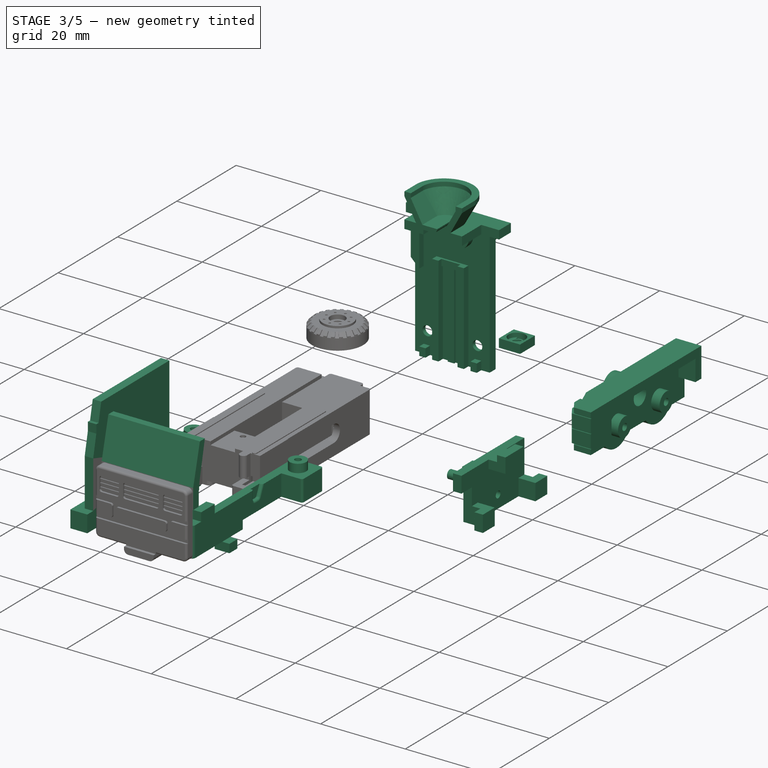
[diagram: stage 3 of 5 — iso view after this stage's code; geometry added in this stage tinted green]
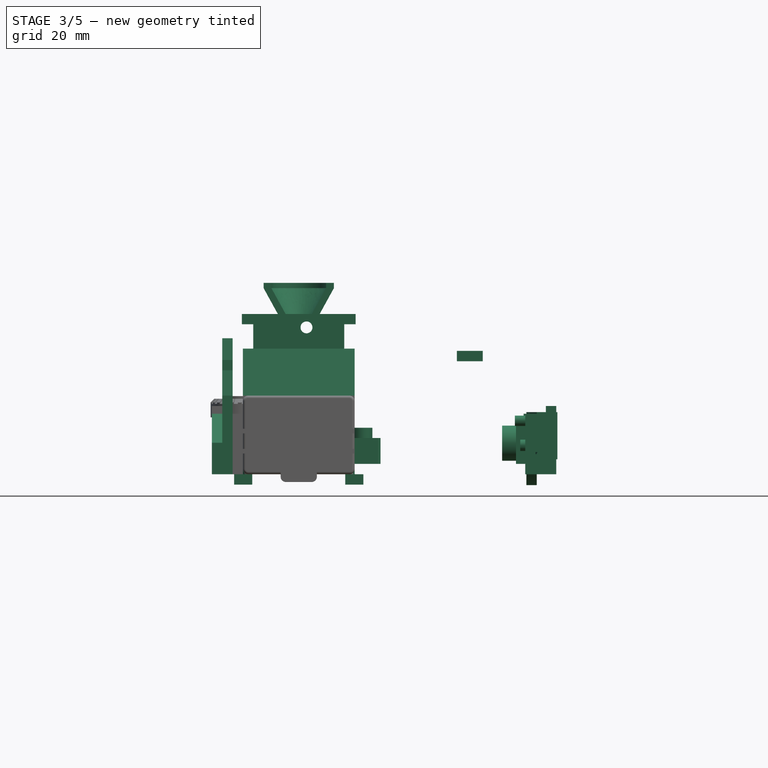
[diagram: stage 3 of 5 — front view after this stage's code; geometry added in this stage tinted green]
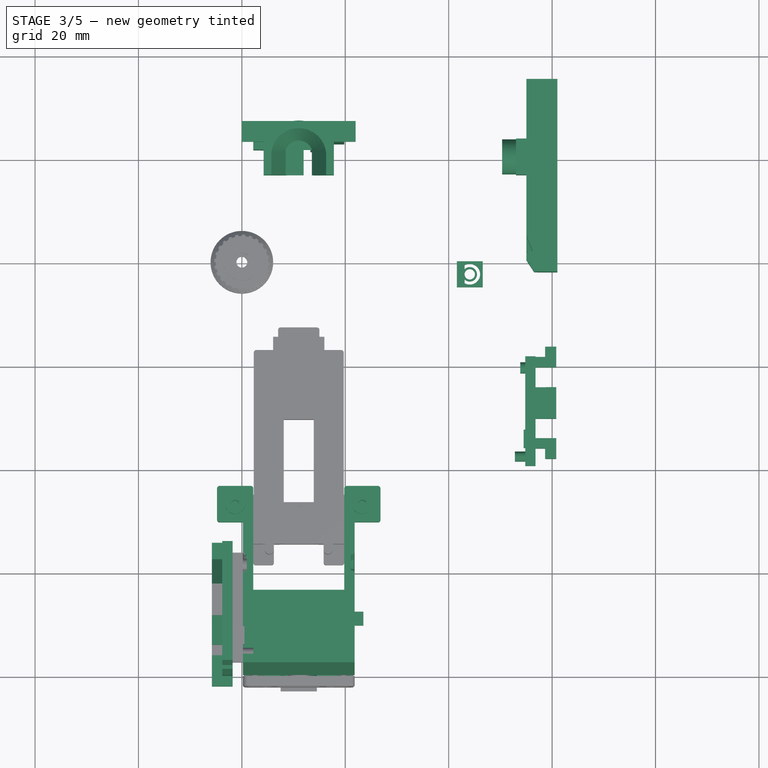
[diagram: stage 3 of 5 — top view after this stage's code; geometry added in this stage tinted green]
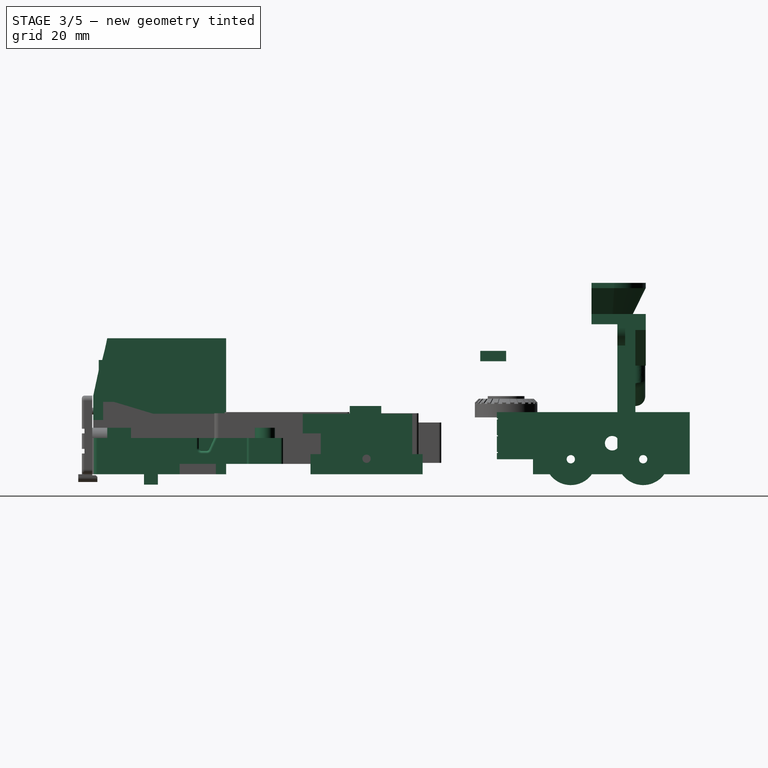
[diagram: stage 3 of 5 — right view after this stage's code; geometry added in this stage tinted green]
FEATURE [PartDesign::Body] Body003  label="Upper_Mix_Drum"
  AllowCompound = false
  Group = -> [Sketch014,Revolution001]
  Origin = -> Origin003
  Placement = pos=(44,14.5663,15.5588) rot=(1,0,0;0.296706rad)
  Tip = -> Revolution001
FEATURE [PartDesign::SubShapeBinder] Binder020
  BindCopyOnChange = 0
  BindMode = 2
  ClaimChildren = false
  Context = -> Body016 [Binder020.]
  Fuse = false
  MakeFace = true
  OffsetFill = false
  OffsetIntersection = false
  OffsetJoinType = 0
  OffsetOpenResult = false
  PartialLoad = false
  Refine = true
  Relative = true
  _Version = 2
FEATURE [PartDesign::SubShapeBinder] Binder007
  BindCopyOnChange = 0
  BindMode = 2
  ClaimChildren = false
  Fuse = false
  MakeFace = true
  OffsetFill = false
  OffsetIntersection = false
  OffsetJoinType = 0
  OffsetOpenResult = false
  PartialLoad = false
  Refine = true
  Relative = true
  _Version = 2
FEATURE [Sketcher::SketchObject] Sketch141
  ArcFitTolerance = 1e-06
  AttachmentSupport = -> [Binder007]
  ExternalGeometry = -> [Binder007]
  FullyConstrained = true
  MakeInternals = false
  MapMode = 5
  Placement = pos=(5.89e-14,23,-1.557e-13) rot=(0,0.707107,0.707107;3.14159rad)
  sketch-geometry (8):
    g0: LineSegment StartX=-19.8 StartY=-11 StartZ=0 EndX=-19.8 EndY=18 EndZ=0
    g1: LineSegment StartX=-19.8 StartY=18 StartZ=0 EndX=-22 EndY=18 EndZ=0
    g2: LineSegment StartX=-19.8 StartY=-11 StartZ=0 EndX=-2.2 EndY=-11 EndZ=0
    g3: LineSegment StartX=-2.2 StartY=-11 StartZ=0 EndX=-2.2 EndY=18 EndZ=0
    g4: LineSegment StartX=-2.2 StartY=18 StartZ=0 EndX=0 EndY=18 EndZ=0
    g5: LineSegment StartX=0 StartY=18 StartZ=0 EndX=0 EndY=20 EndZ=0
    g6: LineSegment StartX=0 StartY=20 StartZ=0 EndX=-22 EndY=20 EndZ=0
    g7: LineSegment StartX=-22 StartY=20 StartZ=0 EndX=-22 EndY=18 EndZ=0
  constraints (21):
    c: Coincident(g0,g-3)
    c: Coincident(g0,g-3)
    c: Coincident(g1,g0)
    c: Horizontal(g1)
    c: DistanceX(g1,g1) = 2.2
    c: Coincident(g2,g0)
    c: Horizontal(g2)
    c: DistanceX(g2,g2) = 17.6
    c: Coincident(g3,g2)
    c: Vertical(g3)
    c: DistanceY(g3,g3) = 29
    c: Coincident(g4,g3)
    c: Horizontal(g4)
    c: DistanceX(g4,g4) = 2.2
    c: Coincident(g5,g4)
    c: Vertical(g5)
    c: DistanceY(g5,g5) = 2
    c: Coincident(g6,g5)
    c: Coincident(g6,g-4)
    c: Coincident(g7,g6)
    c: Coincident(g7,g1)
FEATURE [PartDesign::Pad] Pad114
  Direction = (2.6e-15,1,-6.7e-15)
  Length = 2
  Length2 = 10
  Profile = -> Sketch141
  ReferenceAxis = -> Sketch141 [N_Axis]
  Refine = true
  Suppressed = false
  Type = 0
FEATURE [Sketcher::SketchObject] Sketch142
  ArcFitTolerance = 1e-06
  AttachmentSupport = -> [Pad114]
  ExternalGeometry = -> [Pad114]
  FullyConstrained = true
  MakeInternals = false
  MapMode = 5
  Placement = pos=(5.82e-14,23,-1.559e-13) rot=(1,0,0;1.5708rad)
  sketch-geometry (8):
    g0: LineSegment StartX=14.75 StartY=-11 StartZ=0 EndX=14.75 EndY=10.5 EndZ=0
    g1: LineSegment StartX=14.75 StartY=10.5 StartZ=0 EndX=13.25 EndY=10.5 EndZ=0
    g2: LineSegment StartX=13.25 StartY=10.5 StartZ=0 EndX=13.25 EndY=-11 EndZ=0
    g3: LineSegment StartX=13.25 StartY=-11 StartZ=0 EndX=14.75 EndY=-11 EndZ=0
    g4: LineSegment StartX=8.75 StartY=-11 StartZ=0 EndX=8.75 EndY=10.5 EndZ=0
    g5: LineSegment StartX=8.75 StartY=10.5 StartZ=0 EndX=7.25 EndY=10.5 EndZ=0
    g6: LineSegment StartX=7.25 StartY=10.5 StartZ=0 EndX=7.25 EndY=-11 EndZ=0
    g7: LineSegment StartX=7.25 StartY=-11 StartZ=0 EndX=8.75 EndY=-11 EndZ=0
  constraints (24):
    c: PointOnObject(g0,g-3)
    c: Vertical(g0)
    c: Coincident(g1,g0)
    c: Horizontal(g1)
    c: Coincident(g2,g1)
    c: PointOnObject(g2,g-3)
    c: Vertical(g2)
    c: Coincident(g3,g2)
    c: Coincident(g3,g0)
    c: DistanceX(g0,g-3) = 5.05
    c: DistanceX(g2,g0) = 1.5
    c: DistanceY(g2,g2) = 21.5
    c: Coincident(g4,g5)
    c: Coincident(g5,g6)
    c: Coincident(g6,g7)
    c: Coincident(g7,g4)
    c: Vertical(g4)
    c: Vertical(g6)
    c: Horizontal(g5)
    c: Horizontal(g7)
    c: PointOnObject(g4,g-3)
    c: DistanceX(g7,g7) = 1.5
    c: DistanceX(g4,g2) = 4.5
    c: DistanceY(g6,g6) = 21.5
FEATURE [PartDesign::Pad] Pad115
  BaseFeature = -> Pad114
  Direction = (-2.5e-15,-1,6.7e-15)
  Length = 1.5
  Length2 = 10
  Profile = -> Sketch142
  ReferenceAxis = -> Sketch142 [N_Axis]
  Refine = true
  Suppressed = false
  Type = 0
FEATURE [Sketcher::SketchObject] Sketch143
  ArcFitTolerance = 1e-06
  AttachmentSupport = -> [Pad115]
  ExternalGeometry = -> [Pad115]
  FullyConstrained = true
  MakeInternals = false
  MapMode = 5
  Placement = pos=(5.82e-14,23,-1.559e-13) rot=(1,0,0;1.5708rad)
  sketch-geometry (8):
    g0: LineSegment StartX=11.75 StartY=-11 StartZ=0 EndX=10.25 EndY=-11 EndZ=0
    g1: LineSegment StartX=10.25 StartY=-11 StartZ=0 EndX=10.25 EndY=9 EndZ=0
    g2: LineSegment StartX=10.25 StartY=9 StartZ=0 EndX=8.75 EndY=9 EndZ=0
    g3: LineSegment StartX=8.75 StartY=9 StartZ=0 EndX=8.75 EndY=10.5 EndZ=0
    g4: LineSegment StartX=8.75 StartY=10.5 StartZ=0 EndX=13.25 EndY=10.5 EndZ=0
    g5: LineSegment StartX=13.25 StartY=10.5 StartZ=0 EndX=13.25 EndY=9 EndZ=0
    g6: LineSegment StartX=13.25 StartY=9 StartZ=0 EndX=11.75 EndY=9 EndZ=0
    g7: LineSegment StartX=11.75 StartY=9 StartZ=0 EndX=11.75 EndY=-11 EndZ=0
  constraints (22):
    c: PointOnObject(g0,g-3)
    c: PointOnObject(g0,g-3)
    c: Coincident(g1,g0)
    c: Vertical(g1)
    c: Coincident(g2,g1)
    c: PointOnObject(g2,g-4)
    c: Horizontal(g2)
    c: Coincident(g3,g2)
    c: Coincident(g3,g-4)
    c: Coincident(g4,g3)
    c: Coincident(g4,g-5)
    c: Coincident(g5,g4)
    c: PointOnObject(g5,g-5)
    c: Coincident(g6,g5)
    c: Horizontal(g6)
    c: Coincident(g7,g6)
    c: Coincident(g7,g0)
    c: Vertical(g7)
    c: DistanceX(g0,g0) = 1.5
    c: DistanceX(g-4,g0) = 1.5
    c: DistanceY(g3,g3) = 1.5
    c: DistanceY(g5,g5) = 1.5
FEATURE [PartDesign::Pad] Pad116
  BaseFeature = -> Pad115
  Direction = (-2.5e-15,-1,6.7e-15)
  Length = 0.5
  Length2 = 10
  Profile = -> Sketch143
  ReferenceAxis = -> Sketch143 [N_Axis]
  Refine = true
  Suppressed = false
  Type = 0
FEATURE [Sketcher::SketchObject] Sketch144
  ArcFitTolerance = 1e-06
  AttachmentSupport = -> [Pad116]
  ExternalGeometry = -> [Pad116]
  FullyConstrained = true
  MakeInternals = false
  MapMode = 5
  Placement = pos=(5.82e-14,23,-1.559e-13) rot=(1,0,0;1.5708rad)
  sketch-geometry (12):
    g0: LineSegment StartX=5.7 StartY=-11 StartZ=0 EndX=5.7 EndY=-9 EndZ=0
    g1: LineSegment StartX=5.7 StartY=-9 StartZ=0 EndX=4.2 EndY=-9 EndZ=0
    g2: LineSegment StartX=4.2 StartY=-9 StartZ=0 EndX=4.2 EndY=-11 EndZ=0
    g3: LineSegment StartX=4.2 StartY=-11 StartZ=0 EndX=5.7 EndY=-11 EndZ=0
    g4: LineSegment StartX=17.8 StartY=-11 StartZ=0 EndX=17.8 EndY=-9 EndZ=0
    g5: LineSegment StartX=17.8 StartY=-9 StartZ=0 EndX=16.3 EndY=-9 EndZ=0
    g6: LineSegment StartX=16.3 StartY=-9 StartZ=0 EndX=16.3 EndY=-11 EndZ=0
    g7: LineSegment StartX=16.3 StartY=-11 StartZ=0 EndX=17.8 EndY=-11 EndZ=0
    g8: LineSegment StartX=2.2 StartY=16.9 StartZ=0 EndX=2.2 EndY=9.5 EndZ=0
    g9: LineSegment StartX=2.2 StartY=9.5 StartZ=0 EndX=4.2 EndY=9.5 EndZ=0
    g10: LineSegment StartX=4.2 StartY=9.5 StartZ=0 EndX=4.2 EndY=16.9 EndZ=0
    g11: LineSegment StartX=4.2 StartY=16.9 StartZ=0 EndX=2.2 EndY=16.9 EndZ=0
  constraints (36):
    c: Coincident(g0,g1)
    c: Coincident(g1,g2)
    c: Coincident(g2,g3)
    c: Coincident(g3,g0)
    c: Vertical(g0)
    c: Vertical(g2)
    c: Horizontal(g1)
    c: Horizontal(g3)
    c: PointOnObject(g0,g-3)
    c: Coincident(g4,g5)
    c: Coincident(g5,g6)
    c: Coincident(g6,g7)
    c: Coincident(g7,g4)
    c: Vertical(g4)
    c: Vertical(g6)
    c: Horizontal(g5)
    c: Horizontal(g7)
    c: Coincident(g8,g9)
    c: Coincident(g9,g10)
    c: Coincident(g10,g11)
    c: Coincident(g11,g8)
    c: Vertical(g8)
    c: Vertical(g10)
    c: Horizontal(g9)
    c: Horizontal(g11)
    c: PointOnObject(g8,g-5)
    c: DistanceY(g8,g-5) = 1.1
    c: DistanceY(g8,g8) = 7.4
    c: DistanceX(g11,g11) = 2
    c: DistanceX(g3,g3) = 1.5
    c: DistanceY(g0,g0) = 2
    c: DistanceY(g6,g6) = 2
    c: DistanceX(g7,g7) = 1.5
    c: PointOnObject(g4,g-4)
    c: DistanceX(g-5,g2) = 2
    c: DistanceX(g4,g-4) = 2
FEATURE [PartDesign::Pad] Pad117
  BaseFeature = -> Pad116
  Direction = (-2.5e-15,-1,6.7e-15)
  Length = 1.5
  Length2 = 10
  Profile = -> Sketch144
  ReferenceAxis = -> Sketch144 [N_Axis]
  Refine = true
  Suppressed = false
  Type = 0
FEATURE [Sketcher::SketchObject] Sketch145
  ArcFitTolerance = 1e-06
  AttachmentSupport = -> [Pad117]
  ExternalGeometry = -> [Pad117]
  FullyConstrained = true
  MakeInternals = false
  MapMode = 5
  Placement = pos=(5.82e-14,23,-1.559e-13) rot=(1,0,0;1.5708rad)
  sketch-geometry (12):
    g0: LineSegment StartX=4.2 StartY=20 StartZ=0 EndX=4.2 EndY=18 EndZ=0
    g1: LineSegment StartX=4.2 StartY=18 StartZ=0 EndX=8.7 EndY=18 EndZ=0
    g2: LineSegment StartX=8.7 StartY=18 StartZ=0 EndX=8.7 EndY=19 EndZ=0
    g3: LineSegment StartX=8.7 StartY=19 StartZ=0 EndX=10.95 EndY=19 EndZ=0
    g4: LineSegment StartX=11.95 StartY=20 StartZ=0 EndX=4.2 EndY=20 EndZ=0
    g5: ArcOfCircle CenterX=10.95 CenterY=20 CenterZ=0 NormalX=0 NormalY=0 NormalZ=1 AngleXU=0 Radius=1 StartAngle=4.71239 EndAngle=6.28319
    g6: GeomPoint [constr] X=10.95 Y=19 Z=0
    g7: LineSegment StartX=17.8 StartY=20 StartZ=0 EndX=13.55 EndY=20 EndZ=0
    g8: LineSegment StartX=15.55 StartY=18 StartZ=0 EndX=17.8 EndY=18 EndZ=0
    g9: LineSegment StartX=17.8 StartY=18 StartZ=0 EndX=17.8 EndY=20 EndZ=0
    g10: ArcOfCircle CenterX=15.55 CenterY=20 CenterZ=0 NormalX=0 NormalY=0 NormalZ=1 AngleXU=0 Radius=2 StartAngle=3.14159 EndAngle=4.71239
    g11: GeomPoint [constr] X=15.55 Y=18 Z=0
  constraints (32):
    c: PointOnObject(g0,g-3)
    c: Vertical(g0)
    c: Coincident(g1,g0)
    c: Horizontal(g1)
    c: Coincident(g2,g1)
    c: Coincident(g3,g2)
    c: Horizontal(g3)
    c: Coincident(g4,g0)
    c: Horizontal(g4)
    c: Tangent(g3,g5) = -1.5708
    c: Coincident(g8,g9)
    c: Coincident(g9,g7)
    c: Horizontal(g7)
    c: Horizontal(g8)
    c: Vertical(g9)
    c: PointOnObject(g7,g-3)
    c: Tangent(g8,g10) = -1.5708
    c: DistanceY(g9,g9) = 2
    c: DistanceY(g0,g0) = 2
    c: Vertical(g2)
    c: DistanceX(g-3,g0) = 4.2
    c: DistanceX(g7,g-3) = 4.2
    c: Coincident(g10,g7)
    c: PointOnObject(g10,g7)
    c: DistanceX(g7,g7) = 4.25
    c: PointOnObject(g5,g4)
    c: DistanceX(g1,g1) = 4.5
    c: DistanceY(g2,g0) = 1
    c: DistanceX(g4,g4) = 7.75
    c: Coincident(g5,g4)
    c: Coincident(g6,g3)
    c: Coincident(g11,g8)
FEATURE [PartDesign::Pad] Pad118
  BaseFeature = -> Pad117
  Direction = (-2.5e-15,-1,6.7e-15)
  Length = 6.5
  Length2 = 10
  Profile = -> Sketch145
  ReferenceAxis = -> Sketch145 [N_Axis]
  Refine = true
  Suppressed = false
  Type = 0
FEATURE [Sketcher::SketchObject] Sketch146
  ArcFitTolerance = 1e-06
  AttachmentSupport = -> [Pad118]
  ExternalGeometry = -> [Pad118]
  FullyConstrained = true
  MakeInternals = false
  MapMode = 5
  Placement = pos=(5.82e-14,23,-1.559e-13) rot=(1,0,0;1.5708rad)
  sketch-geometry (9):
    g0: ArcOfCircle CenterX=12.5 CenterY=17.4 CenterZ=0 NormalX=0 NormalY=0 NormalZ=1 AngleXU=0 Radius=3.5 StartAngle=4.71239 EndAngle=6.28319
    g1: LineSegment StartX=8.7 StartY=19 StartZ=0 EndX=8.7 EndY=13.9 EndZ=0
    g2: LineSegment StartX=12.5 StartY=13.9 StartZ=0 EndX=8.7 EndY=13.9 EndZ=0
    g3: LineSegment StartX=8.7 StartY=19 StartZ=0 EndX=10.95 EndY=19 EndZ=0
    g4: ArcOfCircle CenterX=10.95 CenterY=20 CenterZ=0 NormalX=0 NormalY=0 NormalZ=1 AngleXU=0 Radius=1 StartAngle=4.71239 EndAngle=6.28319
    g5: LineSegment StartX=11.95 StartY=20 StartZ=0 EndX=13.55 EndY=20 EndZ=0
    g6: LineSegment StartX=16 StartY=17.4 StartZ=0 EndX=16 EndY=18 EndZ=0
    g7: LineSegment StartX=16 StartY=18 StartZ=0 EndX=15.55 EndY=18 EndZ=0
    g8: ArcOfCircle CenterX=15.55 CenterY=20 CenterZ=0 NormalX=0 NormalY=0 NormalZ=1 AngleXU=0 Radius=2 StartAngle=3.14159 EndAngle=4.71239
  constraints (25):
    c: Coincident(g1,g2)
    c: Coincident(g2,g0)
    c: Coincident(g0,g6)
    c: Coincident(g6,g7)
    c: Coincident(g7,g8)
    c: Coincident(g5,g8)
    c: Coincident(g4,g5)
    c: Coincident(g4,g3)
    c: Coincident(g3,g1)
    c: Coincident(g7,g-7)
    c: Coincident(g3,g-5)
    c: Coincident(g1,g-6)
    c: Vertical(g1)
    c: Horizontal(g7)
    c: Vertical(g6)
    c: Horizontal(g2)
    c: Radius(g0) = 3.5
    c: DistanceX(g0,g0) = 0
    c: DistanceY(g0,g0) = 0
    c: Coincident(g5,g-3)
    c: Coincident(g4,g-3)
    c: DistanceX(g7,g8) = 0
    c: DistanceX(g4,g3) = 0
    c: DistanceY(g0,g4) = 2.6
    c: DistanceX(g-6,g0) = 3.8
FEATURE [PartDesign::Pad] Pad119
  BaseFeature = -> Pad118
  Direction = (-2.5e-15,-1,6.7e-15)
  Length = 1.5
  Length2 = 10
  Profile = -> Sketch146
  ReferenceAxis = -> Sketch146 [N_Axis]
  Refine = true
  Suppressed = false
  Type = 0
FEATURE [Sketcher::SketchObject] Sketch147
  ArcFitTolerance = 1e-06
  AttachmentSupport = -> [Pad119]
  ExternalGeometry = -> [Pad119]
  FullyConstrained = true
  MakeInternals = false
  MapMode = 5
  Placement = pos=(5.25e-14,21.5,-1.441e-13) rot=(1,0,0;1.5708rad)
  sketch-geometry (1):
    g0: Circle CenterX=12.5 CenterY=17.4 CenterZ=0 NormalX=0 NormalY=0 NormalZ=1 AngleXU=0 Radius=2
  constraints (2):
    c: Coincident(g0,g-3)
    c: Radius(g0) = 2
FEATURE [PartDesign::Pocket] Pocket174
  BaseFeature = -> Pad119
  Direction = (2.4e-15,1,-6.7e-15)
  Length = 1.5
  Length2 = 5
  Profile = -> Sketch147
  ReferenceAxis = -> Sketch147 [N_Axis]
  Refine = true
  Suppressed = false
  Type = 0
FEATURE [Sketcher::SketchObject] Sketch148
  ArcFitTolerance = 1e-06
  AttachmentSupport = -> [Pocket174]
  ExternalGeometry = -> [Pocket174]
  FullyConstrained = true
  MakeInternals = false
  MapMode = 5
  Placement = pos=(5.82e-14,23,-1.559e-13) rot=(1,0,0;1.5708rad)
  sketch-geometry (3):
    g0: Circle CenterX=12.5 CenterY=17.4 CenterZ=0 NormalX=0 NormalY=0 NormalZ=1 AngleXU=0 Radius=1.15
    g1: Circle CenterX=5.1 CenterY=-6 CenterZ=0 NormalX=0 NormalY=0 NormalZ=1 AngleXU=0 Radius=1.15
    g2: Circle CenterX=16.9 CenterY=-6 CenterZ=0 NormalX=0 NormalY=0 NormalZ=1 AngleXU=0 Radius=1.15
  constraints (8):
    c: Coincident(g0,g-3)
    c: Diameter(g0) = 2.3
    c: DistanceX(g-6,g1) = 0.9
    c: DistanceX(g2,g-5) = 0.9
    c: DistanceY(g-5,g2) = 5
    c: DistanceY(g-6,g1) = 5
    c: Diameter(g1) = 2.3
    c: Diameter(g2) = 2.3
FEATURE [PartDesign::Pocket] Pocket175
  BaseFeature = -> Pocket174
  Direction = (2.5e-15,1,-6.7e-15)
  Length = 5
  Length2 = 5
  Profile = -> Sketch148
  ReferenceAxis = -> Sketch148 [N_Axis]
  Refine = true
  Suppressed = false
  Type = 0
FEATURE [Sketcher::SketchObject] Sketch149
  ArcFitTolerance = 1e-06
  AttachmentSupport = -> [Pocket175]
  ExternalGeometry = -> [Pocket175]
  FullyConstrained = true
  MakeInternals = false
  MapMode = 5
  Placement = pos=(6.33e-14,25,-1.695e-13) rot=(0,0.707107,0.707107;3.14159rad)
  sketch-geometry (6):
    g0: LineSegment StartX=-22 StartY=20 StartZ=0 EndX=-22 EndY=18 EndZ=0
    g1: LineSegment StartX=-22 StartY=18 StartZ=0 EndX=-13.4811 EndY=18 EndZ=0
    g2: LineSegment StartX=-22 StartY=20 StartZ=0 EndX=0 EndY=20 EndZ=0
    g3: LineSegment StartX=0 StartY=20 StartZ=0 EndX=-9e-16 EndY=18 EndZ=0
    g4: LineSegment StartX=-9e-16 StartY=18 StartZ=0 EndX=-11.5189 EndY=18 EndZ=0
    g5: ArcOfCircle CenterX=-12.5 CenterY=17.4 CenterZ=0 NormalX=0 NormalY=0 NormalZ=1 AngleXU=0 Radius=1.15 StartAngle=0.548888 EndAngle=2.5927
  constraints (14):
    c: Coincident(g0,g-7)
    c: Coincident(g0,g-7)
    c: Coincident(g1,g0)
    c: PointOnObject(g1,g-8)
    c: Horizontal(g1)
    c: Coincident(g2,g0)
    c: Coincident(g2,g-4)
    c: Coincident(g3,g2)
    c: Coincident(g3,g-5)
    c: PointOnObject(g4,g-8)
    c: Coincident(g4,g3)
    c: Coincident(g5,g1)
    c: Coincident(g5,g4)
    c: Coincident(g5,g-8)
FEATURE [PartDesign::Pad] Pad120
  BaseFeature = -> Pocket175
  Direction = (2.5e-15,1,-6.7e-15)
  Length = 2
  Length2 = 10
  Profile = -> Sketch149
  ReferenceAxis = -> Sketch149 [N_Axis]
  Refine = true
  Suppressed = false
  Type = 0
FEATURE [Sketcher::SketchObject] Sketch150
  ArcFitTolerance = 1e-06
  AttachmentSupport = -> [Pad120]
  ExternalGeometry = -> [Pad120]
  FullyConstrained = true
  MakeInternals = false
  MapMode = 5
  Placement = pos=(6.83e-14,27,-1.677e-13) rot=(0,0.707107,0.707107;3.14159rad)
  sketch-geometry (4):
    g0: ArcOfCircle CenterX=-12.5 CenterY=17.4 CenterZ=0 NormalX=0 NormalY=0 NormalZ=1 AngleXU=0 Radius=2.2 StartAngle=0.276227 EndAngle=2.86537
    g1: LineSegment StartX=-14.6166 StartY=18 StartZ=0 EndX=-13.4811 EndY=18 EndZ=0
    g2: LineSegment StartX=-10.3834 StartY=18 StartZ=0 EndX=-11.5189 EndY=18 EndZ=0
    g3: ArcOfCircle CenterX=-12.5 CenterY=17.4 CenterZ=0 NormalX=0 NormalY=0 NormalZ=1 AngleXU=0 Radius=1.15 StartAngle=0.548888 EndAngle=2.5927
  constraints (11):
    c: PointOnObject(g0,g-5)
    c: PointOnObject(g0,g-4)
    c: Radius(g0) = 2.2
    c: Coincident(g0,g-3)
    c: Coincident(g1,g0)
    c: Coincident(g1,g-5)
    c: Coincident(g2,g0)
    c: Coincident(g2,g-4)
    c: Coincident(g3,g1)
    c: Coincident(g3,g2)
    c: Tangent(g3,g-3)
FEATURE [PartDesign::Pocket] Pocket176
  BaseFeature = -> Pad120
  Direction = (-2.5e-15,-1,6.1e-15)
  Length = 2
  Length2 = 5
  Profile = -> Sketch150
  ReferenceAxis = -> Sketch150 [N_Axis]
  Refine = true
  Suppressed = false
  Type = 0
FEATURE [PartDesign::Hole] Hole
  BaseFeature = -> Pocket176
  CustomThreadClearance = 0
  Depth = 25
  DepthType = 0
  Diameter = 2.3
  DrillForDepth = false
  DrillPoint = 1
  DrillPointAngle = 118
  HoleCutCountersinkAngle = 90
  HoleCutCustomValues = false
  HoleCutDepth = 1.9
  HoleCutDiameter = 4.4
  HoleCutType = 2
  ModelThread = false
  Profile = -> Pocket176 [Edge166,Edge162,Edge163]
  Refine = true
  Suppressed = false
  Tapered = false
  TaperedAngle = 90
  ThreadClass = 0
  ThreadDepth = 25
  ThreadDepthType = 0
  ThreadDirection = 0
  ThreadFit = 0
  ThreadSize = 0
  ThreadType = 0
  Threaded = false
  UseCustomThreadClearance = false
FEATURE [PartDesign::Hole] Hole001
  BaseFeature = -> Hole
  CustomThreadClearance = 0
  Depth = 25
  DepthType = 0
  Diameter = 2.3
  DrillForDepth = false
  DrillPoint = 1
  DrillPointAngle = 118
  HoleCutCountersinkAngle = 90
  HoleCutCustomValues = false
  HoleCutDepth = 1.5
  HoleCutDiameter = 4.4
  HoleCutType = 2
  ModelThread = false
  Profile = -> Hole [Edge67,Edge66]
  Refine = true
  Suppressed = false
  Tapered = false
  TaperedAngle = 90
  ThreadClass = 0
  ThreadDepth = 25
  ThreadDepthType = 0
  ThreadDirection = 0
  ThreadFit = 0
  ThreadSize = 0
  ThreadType = 0
  Threaded = false
  UseCustomThreadClearance = false
FEATURE [Sketcher::SketchObject] Sketch151
  ArcFitTolerance = 1e-06
  AttachmentSupport = -> [Hole001]
  ExternalGeometry = -> [Hole001]
  FullyConstrained = true
  MakeInternals = false
  MapMode = 5
  Placement = pos=(6.28e-14,25,-1.715e-13) rot=(0,0.707107,0.707107;3.14159rad)
  sketch-geometry (4):
    g0: LineSegment StartX=-12.75 StartY=-4 StartZ=0 EndX=-12.75 EndY=-6 EndZ=0
    g1: LineSegment StartX=-12.75 StartY=-6 StartZ=0 EndX=-9.25 EndY=-6 EndZ=0
    g2: LineSegment StartX=-9.25 StartY=-6 StartZ=0 EndX=-9.25 EndY=-4 EndZ=0
    g3: LineSegment StartX=-9.25 StartY=-4 StartZ=0 EndX=-12.75 EndY=-4 EndZ=0
  constraints (13):
    c: Coincident(g0,g1)
    c: Coincident(g1,g2)
    c: Coincident(g2,g3)
    c: Coincident(g3,g0)
    c: Vertical(g0)
    c: Vertical(g2)
    c: Horizontal(g1)
    c: Horizontal(g3)
    c: DistanceX(g3,g3) = 3.5
    c: DistanceY(g0,g0) = 2
    c: DistanceY(g-3,g0) = 5
    c: DistanceX(g-3,g-3) = 17.6
    c: DistanceX(g-3,g0) = 7.05
FEATURE [PartDesign::Pocket] Pocket177
  BaseFeature = -> Hole001
  Direction = (-2.5e-15,-1,6.7e-15)
  Length = 1
  Length2 = 5
  Profile = -> Sketch151
  ReferenceAxis = -> Sketch151 [N_Axis]
  Refine = true
  Suppressed = false
  Type = 0
FEATURE [Sketcher::SketchObject] Sketch152
  ArcFitTolerance = 1e-06
  AttachmentSupport = -> [Pocket177]
  ExternalGeometry = -> [Pocket177]
  FullyConstrained = true
  MakeInternals = false
  MapMode = 5
  Placement = pos=(6.28e-14,25,-1.715e-13) rot=(0,0.707107,0.707107;3.14159rad)
  sketch-geometry (10):
    g0: LineSegment StartX=-19.8 StartY=16.9 StartZ=0 EndX=-12.9 EndY=10 EndZ=0
    g1: LineSegment StartX=-12.9 StartY=10 StartZ=0 EndX=-9.1 EndY=10 EndZ=0
    g2: LineSegment StartX=-9.1 StartY=10 StartZ=0 EndX=-2.2 EndY=16.9 EndZ=0
    g3: LineSegment StartX=-2.2 StartY=16.9 StartZ=0 EndX=-2.2 EndY=18 EndZ=0
    g4: LineSegment StartX=-2.2 StartY=18 StartZ=0 EndX=-3 EndY=18 EndZ=0
    g5: LineSegment StartX=-3 StartY=18 StartZ=0 EndX=-9 EndY=12 EndZ=0
    g6: LineSegment StartX=-9 StartY=12 StartZ=0 EndX=-13 EndY=12 EndZ=0
    g7: LineSegment StartX=-13 StartY=12 StartZ=0 EndX=-19 EndY=18 EndZ=0
    g8: LineSegment StartX=-19 StartY=18 StartZ=0 EndX=-19.8 EndY=18 EndZ=0
    g9: LineSegment StartX=-19.8 StartY=18 StartZ=0 EndX=-19.8 EndY=16.9 EndZ=0
  constraints (31):
    c: PointOnObject(g0,g-3)
    c: Coincident(g1,g0)
    c: Horizontal(g1)
    c: Coincident(g2,g1)
    c: PointOnObject(g2,g-4)
    c: Coincident(g3,g2)
    c: Coincident(g3,g-5)
    c: PointOnObject(g4,g3)
    c: PointOnObject(g4,g-5)
    c: Horizontal(g4)
    c: Coincident(g5,g4)
    c: Coincident(g6,g5)
    c: Coincident(g7,g6)
    c: PointOnObject(g7,g-6)
    c: PointOnObject(g8,g-3)
    c: Horizontal(g8)
    c: Parallel(g7,g0)
    c: Parallel(g5,g2)
    c: Parallel(g6,g1)
    c: Coincident(g8,g7)
    c: Coincident(g8,g9)
    c: Coincident(g0,g9)
    c: DistanceY(g0,g6) = 2
    c: DistanceX(g1,g1) = 3.8
    c: DistanceX(g6,g6) = 4
    c: Angle(g-5,g5) = 0.785398
    c: Angle(g7,g-6) = 0.785398
    c: DistanceX(g-7,g-7) = 17.6
    c: DistanceX(g-7,g0) = 6.9
    c: DistanceX(g8,g8) = 0.8
    c: DistanceX(g4,g4) = 0.8
FEATURE [PartDesign::Pad] Pad121
  BaseFeature = -> Pocket177
  Direction = (2.5e-15,1,-6.7e-15)
  Length = 2
  Length2 = 10
  Profile = -> Sketch152
  ReferenceAxis = -> Sketch152 [N_Axis]
  Refine = true
  Suppressed = false
  Type = 0
FEATURE [Sketcher::SketchObject] Sketch153
  ArcFitTolerance = 1e-06
  AttachmentSupport = -> [Pad121]
  ExternalGeometry = -> [Pad121]
  FullyConstrained = true
  MakeInternals = false
  MapMode = 5
  Placement = pos=(6.28e-14,25,-1.715e-13) rot=(0,0.707107,0.707107;3.14159rad)
  sketch-geometry (2):
    g0: LineSegment StartX=-11 StartY=10.8029 StartZ=0 EndX=-11 EndY=7.30294 EndZ=0
    g1: LineSegment StartX=-11 StartY=7.30294 StartZ=0 EndX=-2.2 EndY=4.1 EndZ=0
  constraints (8):
    c: Vertical(g0)
    c: Coincident(g1,g0)
    c: PointOnObject(g1,g-3)
    c: DistanceY(g1,g-3) = 12.8
    c: DistanceX(g-4,g-4) = 3.8
    c: DistanceX(g-4,g0) = 1.9
    c: Angle(g1,g-3) = 1.91986
    c: DistanceY(g0,g0) = 3.5
FEATURE [Sketcher::SketchObject] Sketch154
  ArcFitTolerance = 1e-06
  AttachmentSupport = -> [Pad121]
  ExternalGeometry = -> [Sketch153,Pad121]
  FullyConstrained = true
  MakeInternals = false
  MapMode = 5
  Placement = pos=(2.2,-5.4e-15,0) rot=(-0.57735,0.57735,0.57735;4.18879rad)
  sketch-geometry (2):
    g0: ArcOfCircle CenterX=-25 CenterY=4.1 CenterZ=0 NormalX=0 NormalY=0 NormalZ=1 AngleXU=0 Radius=1.9 StartAngle=1.5708 EndAngle=4.71239
    g1: LineSegment StartX=-25 StartY=6 StartZ=0 EndX=-25 EndY=2.2 EndZ=0
  constraints (6):
    c: PointOnObject(g0,g-4)
    c: Diameter(g0) = 3.8
    c: Coincident(g0,g-3)
    c: PointOnObject(g0,g-4)
    c: Coincident(g1,g0)
    c: Coincident(g1,g0)
FEATURE [PartDesign::AdditivePipe] AdditivePipe
  AuxilleryCurvelinear = true
  AuxillerySpineTangent = false
  BaseFeature = -> Pad121
  Binormal = (0,0,0)
  Mode = 0
  Profile = -> Sketch154
  Refine = true
  Spine = -> Sketch153 [Edge2,Edge1]
  SpineTangent = false
  Suppressed = false
  Transformation = 0
  Transition = 2
FEATURE [Sketcher::SketchObject] Sketch155
  ArcFitTolerance = 1e-06
  AttachmentSupport = -> [AdditivePipe]
  ExternalGeometry = -> [AdditivePipe]
  FullyConstrained = true
  MakeInternals = false
  MapMode = 5
  Placement = pos=(0,1.226e-13,20) rot=(0,0,1;0rad)
  sketch-geometry (8):
    g0: LineSegment StartX=13.55 StartY=21.5 StartZ=0 EndX=13.55 EndY=16.5 EndZ=0
    g1: LineSegment StartX=13.55 StartY=16.5 StartZ=0 EndX=15.05 EndY=16.5 EndZ=0
    g2: LineSegment StartX=15.05 StartY=16.5 StartZ=0 EndX=15.05 EndY=20.4704 EndZ=0
    g3: LineSegment StartX=6.95 StartY=20.4704 StartZ=0 EndX=6.95 EndY=16.5 EndZ=0
    g4: LineSegment StartX=6.95 StartY=16.5 StartZ=0 EndX=8.45 EndY=16.5 EndZ=0
    g5: LineSegment StartX=8.45 StartY=16.5 StartZ=0 EndX=8.45 EndY=21.5 EndZ=0
    g6: ArcOfCircle CenterX=11 CenterY=20.4704 CenterZ=0 NormalX=0 NormalY=0 NormalZ=1 AngleXU=0 Radius=2.75 StartAngle=0.383735 EndAngle=2.75786
    g7: ArcOfCircle CenterX=11 CenterY=20.4704 CenterZ=0 NormalX=0 NormalY=0 NormalZ=1 AngleXU=0 Radius=4.05 StartAngle=6.49071e-08 EndAngle=3.14159
  constraints (24):
    c: Coincident(g0,g-3)
    c: Coincident(g0,g-4)
    c: Coincident(g1,g0)
    c: PointOnObject(g1,g-4)
    c: Coincident(g2,g1)
    c: Vertical(g2)
    c: DistanceX(g1,g1) = 1.5
    c: PointOnObject(g3,g-5)
    c: Vertical(g3)
    c: Coincident(g4,g3)
    c: Vertical(g5)
    c: DistanceX(g-5,g3) = 2.75
    c: DistanceX(g4,g4) = 1.5
    c: Coincident(g5,g4)
    c: DistanceY(g-6,g-6) = 5
    c: Coincident(g6,g0)
    c: Coincident(g6,g5)
    c: Coincident(g7,g3)
    c: Coincident(g7,g2)
    c: Coincident(g7,g6)
    c: DistanceY(g5,g5) = 5
    c: PointOnObject(g4,g-5)
    c: DistanceY(g6,g3) = 0
    c: Radius(g6) = 2.75
FEATURE [Sketcher::SketchObject] Sketch156
  ArcFitTolerance = 1e-06
  AttachmentOffset = pos=(0,0,5) rot=(0,0,1;0rad)
  AttachmentSupport = -> [AdditivePipe]
  ExternalGeometry = -> [AdditivePipe]
  FullyConstrained = true
  MakeInternals = false
  MapMode = 5
  Placement = pos=(0,1.532e-13,25) rot=(0,0,1;0rad)
  sketch-geometry (8):
    g0: LineSegment StartX=17.8 StartY=16.5 StartZ=0 EndX=16.3 EndY=16.5 EndZ=0
    g1: LineSegment StartX=16.3 StartY=16.5 StartZ=0 EndX=16.3 EndY=20.7 EndZ=0
    g2: LineSegment StartX=4.2 StartY=16.5 StartZ=0 EndX=5.7 EndY=16.5 EndZ=0
    g3: LineSegment StartX=5.7 StartY=16.5 StartZ=0 EndX=5.7 EndY=20.7 EndZ=0
    g4: ArcOfCircle CenterX=11 CenterY=20.1598 CenterZ=0 NormalX=0 NormalY=0 NormalZ=1 AngleXU=0 Radius=5.32746 StartAngle=0.101567 EndAngle=3.04003
    g5: ArcOfCircle CenterX=11 CenterY=20.1598 CenterZ=0 NormalX=0 NormalY=0 NormalZ=1 AngleXU=0 Radius=6.84016 StartAngle=0.108421 EndAngle=3.03317
    g6: LineSegment StartX=17.8 StartY=20.9 StartZ=0 EndX=17.8 EndY=16.5 EndZ=0
    g7: LineSegment StartX=4.2 StartY=16.5 StartZ=0 EndX=4.2 EndY=20.9 EndZ=0
  constraints (24):
    c: PointOnObject(g0,g-6)
    c: Coincident(g1,g0)
    c: Vertical(g1)
    c: PointOnObject(g2,g-5)
    c: Coincident(g3,g2)
    c: Vertical(g3)
    c: Coincident(g4,g3)
    c: Coincident(g4,g1)
    c: PointOnObject(g5,g-4)
    c: PointOnObject(g5,g-3)
    c: Coincident(g4,g5)
    c: DistanceX(g-4,g-3) = 13.6
    c: DistanceX(g2,g4) = 6.8
    c: Tangent(g-7,g5)
    c: DistanceY(g3,g1) = 0
    c: DistanceX(g2,g2) = 1.5
    c: DistanceY(g3,g3) = 4.2
    c: DistanceY(g0,g5) = 4.4
    c: Coincident(g0,g-6)
    c: Coincident(g2,g-5)
    c: Coincident(g6,g0)
    c: Coincident(g6,g5)
    c: Coincident(g7,g2)
    c: Coincident(g7,g5)
FEATURE [PartDesign::AdditiveLoft] AdditiveLoft
  BaseFeature = -> AdditivePipe
  Closed = false
  Profile = -> Sketch155
  Refine = true
  Ruled = false
  Sections = -> [Sketch156]
  Suppressed = false
FEATURE [PartDesign::Pad] Pad122
  BaseFeature = -> AdditiveLoft
  Direction = (0,6.1e-15,1)
  Length = 1
  Length2 = 10
  Profile = -> Sketch156
  ReferenceAxis = -> Sketch156 [N_Axis]
  Refine = true
  Suppressed = false
  Type = 0
FEATURE [Sketcher::SketchObject] Sketch160
  ArcFitTolerance = 1e-06
  AttachmentSupport = -> [Pad122]
  ExternalGeometry = -> [Pad122]
  FullyConstrained = true
  MakeInternals = false
  MapMode = 5
  Placement = pos=(5.74e-14,21.5,-1.453e-13) rot=(1,0,0;1.5708rad)
  sketch-geometry (3):
    g0: LineSegment StartX=2.2 StartY=9.5 StartZ=0 EndX=4.2 EndY=9.5 EndZ=0
    g1: LineSegment StartX=4.2 StartY=9.5 StartZ=0 EndX=4.2 EndY=7.5 EndZ=0
    g2: LineSegment StartX=4.2 StartY=7.5 StartZ=0 EndX=2.2 EndY=9.5 EndZ=0
  constraints (7):
    c: Coincident(g0,g-3)
    c: Coincident(g0,g-3)
    c: Coincident(g1,g0)
    c: Vertical(g1)
    c: Coincident(g2,g1)
    c: Coincident(g2,g0)
    c: Angle(g2,g0) = 0.785398
FEATURE [PartDesign::Pad] Pad124
  BaseFeature = -> Pad122
  Direction = (-2.7e-15,-1,6.7e-15)
  Length = 1.5
  Length2 = 10
  Profile = -> Sketch160
  ReferenceAxis = -> Sketch160 [N_Axis]
  Refine = true
  Reversed = true
  Suppressed = false
  Type = 0
FEATURE [Sketcher::SketchObject] Sketch077
  ArcFitTolerance = 1e-06
  AttachmentSupport = -> [Pad062]
  ExternalGeometry = -> [Pad062]
  FullyConstrained = true
  MakeInternals = false
  MapMode = 5
  Placement = pos=(5.47474,0,5.59e-14) rot=(0.57735,0.57735,0.57735;2.0944rad)
  sketch-geometry (4):
    g0: LineSegment StartX=-13.8 StartY=1 StartZ=0 EndX=-20.8 EndY=1 EndZ=0
    g1: LineSegment StartX=-20.8 StartY=1 StartZ=0 EndX=-20.8 EndY=-11 EndZ=0
    g2: LineSegment StartX=-20.8 StartY=-11 StartZ=0 EndX=-13.8 EndY=-11 EndZ=0
    g3: LineSegment StartX=-13.8 StartY=-11 StartZ=0 EndX=-13.8 EndY=1 EndZ=0
  constraints (10):
    c: Coincident(g0,g1)
    c: Coincident(g1,g2)
    c: Coincident(g2,g3)
    c: Coincident(g3,g0)
    c: Horizontal(g0)
    c: Horizontal(g2)
    c: Vertical(g1)
    c: Coincident(g0,g-3)
    c: DistanceX(g0,g0) = 7
    c: Coincident(g2,g-3)
FEATURE [PartDesign::Pad] Pad063
  BaseFeature = -> Pad062
  Direction = (1,0,1.02e-14)
  Length = 6
  Length2 = 10
  Profile = -> Sketch077
  ReferenceAxis = -> Sketch077 [N_Axis]
  Refine = true
  Reversed = true
  Suppressed = false
  Type = 0
FEATURE [Sketcher::SketchObject] Sketch079
  ArcFitTolerance = 1e-06
  AttachmentSupport = -> [Pad063]
  ExternalGeometry = -> [Pad063]
  FullyConstrained = true
  MakeInternals = false
  MapMode = 5
  Placement = pos=(1.116e-13,0,-11) rot=(1,0,0;3.14159rad)
  sketch-geometry (4):
    g0: LineSegment StartX=5.47474 StartY=20.8 StartZ=0 EndX=-0.525259 EndY=20.8 EndZ=0
    g1: LineSegment StartX=-0.525259 StartY=20.8 StartZ=0 EndX=-0.525259 EndY=13.8 EndZ=0
    g2: LineSegment StartX=-0.525259 StartY=13.8 StartZ=0 EndX=5.47474 EndY=13.8 EndZ=0
    g3: LineSegment StartX=5.47474 StartY=13.8 StartZ=0 EndX=5.47474 EndY=20.8 EndZ=0
  constraints (10):
    c: Coincident(g0,g1)
    c: Coincident(g1,g2)
    c: Coincident(g2,g3)
    c: Coincident(g3,g0)
    c: Horizontal(g0)
    c: Horizontal(g2)
    c: Vertical(g1)
    c: Vertical(g3)
    c: Coincident(g0,g-3)
    c: Coincident(g1,g-5)
FEATURE [PartDesign::Pocket] Pocket185
  BaseFeature = -> Pad063
  Direction = (-1.01e-14,0,1)
  Length = 2.9
  Length2 = 5
  Profile = -> Sketch079
  ReferenceAxis = -> Sketch079 [N_Axis]
  Refine = true
  Suppressed = false
  Type = 0
FEATURE [Sketcher::SketchObject] Sketch080
  ArcFitTolerance = 1e-06
  AttachmentSupport = -> [Pocket185]
  ExternalGeometry = -> [Pocket185]
  FullyConstrained = true
  MakeInternals = false
  MapMode = 5
  Placement = pos=(3.47474,0,3.55e-14) rot=(0.57735,-0.57735,-0.57735;2.0944rad)
  sketch-geometry (4):
    g0: Circle CenterX=6.5 CenterY=-8.1 CenterZ=0 NormalX=0 NormalY=0 NormalZ=1 AngleXU=0 Radius=2.25
    g1: Circle CenterX=-7.5 CenterY=-8.1 CenterZ=0 NormalX=0 NormalY=0 NormalZ=1 AngleXU=0 Radius=2.25
    g2: Circle CenterX=-7.5 CenterY=-8.1 CenterZ=0 NormalX=0 NormalY=0 NormalZ=1 AngleXU=0 Radius=5
    g3: Circle CenterX=6.5 CenterY=-8.1 CenterZ=0 NormalX=0 NormalY=0 NormalZ=1 AngleXU=0 Radius=5
  constraints (10):
    c: Diameter(g0) = 4.5
    c: Diameter(g1) = 4.5
    c: DistanceY(g-4,g0) = 0
    c: DistanceY(g0,g1) = 0
    c: DistanceX(g1,g0) = 14
    c: DistanceX(g-5,g1) = 9
    c: Coincident(g2,g1)
    c: Coincident(g3,g0)
    c: Diameter(g2) = 10
    c: Diameter(g3) = 10
FEATURE [PartDesign::Pad] Pad064
  BaseFeature = -> Pocket185
  Direction = (-1,0,-1.02e-14)
  Length = 2
  Length2 = 10
  Profile = -> Sketch080
  ReferenceAxis = -> Sketch080 [N_Axis]
  Refine = true
  Reversed = true
  Suppressed = false
  Type = 0
FEATURE [Sketcher::SketchObject] Sketch081
  ArcFitTolerance = 1e-06
  AttachmentSupport = -> [Pad064]
  ExternalGeometry = -> [Pad064]
  FullyConstrained = true
  MakeInternals = false
  MapMode = 5
  Placement = pos=(3.47474,0,3.55e-14) rot=(0.57735,-0.57735,-0.57735;2.0944rad)
  sketch-geometry (1):
    g0: Circle CenterX=-1.5 CenterY=-5 CenterZ=0 NormalX=0 NormalY=0 NormalZ=1 AngleXU=0 Radius=2.1
  constraints (2):
    c: Coincident(g0,g-4)
    c: Equal(g0,g-4)
FEATURE [PartDesign::Pocket] Pocket186
  BaseFeature = -> Pad064
  Direction = (1,0,1.02e-14)
  Length = 4.7
  Length2 = 5
  Profile = -> Sketch081
  ReferenceAxis = -> Sketch081 [N_Axis]
  Refine = true
  Suppressed = false
  Type = 0
FEATURE [PartDesign::Pad] Pad065
  BaseFeature = -> Pocket186
  Direction = (-1,0,-1.02e-14)
  Length = 2
  Length2 = 10
  Profile = -> Sketch080 [Edge2,Edge1]
  ReferenceAxis = -> Sketch080 [N_Axis]
  Refine = true
  Suppressed = false
  Type = 0
FEATURE [Sketcher::SketchObject] Sketch082
  ArcFitTolerance = 1e-06
  AttachmentSupport = -> [Pad065]
  ExternalGeometry = -> [Pad065]
  FullyConstrained = true
  MakeInternals = false
  MapMode = 5
  Placement = pos=(1.47474,0,1.51e-14) rot=(0.57735,-0.57735,-0.57735;2.0944rad)
  sketch-geometry (2):
    g0: Circle CenterX=-7.5 CenterY=-8.1 CenterZ=0 NormalX=0 NormalY=0 NormalZ=1 AngleXU=0 Radius=0.75
    g1: Circle CenterX=6.5 CenterY=-8.1 CenterZ=0 NormalX=0 NormalY=0 NormalZ=1 AngleXU=0 Radius=0.75
  constraints (4):
    c: Coincident(g0,g-4)
    c: Coincident(g1,g-3)
    c: Diameter(g0) = 1.5
    c: Diameter(g1) = 1.5
FEATURE [PartDesign::Pocket] Pocket187
  BaseFeature = -> Pad065
  Direction = (1,0,1.02e-14)
  Length = 5
  Length2 = 5
  Profile = -> Sketch082
  ReferenceAxis = -> Sketch082 [N_Axis]
  Refine = true
  Suppressed = false
  Type = 0
FEATURE [Sketcher::SketchObject] Sketch083
  ArcFitTolerance = 1e-06
  AttachmentSupport = -> [Pocket187]
  ExternalGeometry = -> [Pocket187]
  FullyConstrained = true
  MakeInternals = false
  MapMode = 5
  Placement = pos=(8.16e-14,0,-8.1) rot=(1,0,0;3.14159rad)
  sketch-geometry (1):
    g0: Circle CenterX=2.62474 CenterY=17.35 CenterZ=0 NormalX=0 NormalY=0 NormalZ=1 AngleXU=0 Radius=1.45
  constraints (3):
    c: Diameter(g0) = 2.9
    c: DistanceX(g-3,g0) = 3.15
    c: DistanceY(g0,g-3) = 3.45
FEATURE [PartDesign::Pocket] Pocket188
  BaseFeature = -> Pocket187
  Direction = (-1.01e-14,0,1)
  Length = 10
  Length2 = 5
  Profile = -> Sketch083
  ReferenceAxis = -> Sketch083 [N_Axis]
  Refine = true
  Suppressed = false
  Type = 0
FEATURE [Sketcher::SketchObject] Sketch084
  ArcFitTolerance = 1e-06
  AttachmentSupport = -> [Pocket188]
  ExternalGeometry = -> [Pocket188]
  FullyConstrained = true
  MakeInternals = false
  MapMode = 5
  Placement = pos=(8.16e-14,0,-8.1) rot=(1,0,0;3.14159rad)
  sketch-geometry (3):
    g0: LineSegment StartX=5.47474 StartY=16.8 StartZ=0 EndX=4.27474 EndY=16.8 EndZ=0
    g1: LineSegment StartX=4.27474 StartY=16.8 StartZ=0 EndX=5.47474 EndY=13.8 EndZ=0
    g2: LineSegment StartX=5.47474 StartY=13.8 StartZ=0 EndX=5.47474 EndY=16.8 EndZ=0
  constraints (8):
    c: PointOnObject(g0,g-3)
    c: Horizontal(g0)
    c: Coincident(g1,g0)
    c: Coincident(g1,g-4)
    c: Coincident(g2,g1)
    c: Coincident(g2,g0)
    c: DistanceY(g2,g2) = 3
    c: DistanceX(g0,g0) = 1.2
FEATURE [PartDesign::Pocket] Pocket189
  BaseFeature = -> Pocket188
  Direction = (-1.01e-14,0,1)
  Length = 10
  Length2 = 5
  Profile = -> Sketch084
  ReferenceAxis = -> Sketch084 [N_Axis]
  Refine = true
  Suppressed = false
  Type = 0
FEATURE [Sketcher::SketchObject] Sketch085
  ArcFitTolerance = 1e-06
  AttachmentSupport = -> [Pocket189]
  ExternalGeometry = -> [Pocket189]
  FullyConstrained = true
  MakeInternals = false
  MapMode = 5
  Placement = pos=(5.47474,1.149e-13,2.532e-13) rot=(0.57735,0.57735,0.57735;2.0944rad)
  sketch-geometry (4):
    g0: LineSegment StartX=-20.8 StartY=1 StartZ=0 EndX=-20.8 EndY=-8.1 EndZ=0
    g1: LineSegment StartX=-20.8 StartY=-8.1 StartZ=0 EndX=-16.8 EndY=-8.1 EndZ=0
    g2: LineSegment StartX=-16.8 StartY=-8.1 StartZ=0 EndX=-16.8 EndY=1 EndZ=0
    g3: LineSegment StartX=-16.8 StartY=1 StartZ=0 EndX=-20.8 EndY=1 EndZ=0
  constraints (10):
    c: Coincident(g0,g1)
    c: Coincident(g1,g2)
    c: Coincident(g2,g3)
    c: Coincident(g3,g0)
    c: Vertical(g0)
    c: Vertical(g2)
    c: Horizontal(g1)
    c: Horizontal(g3)
    c: Coincident(g0,g-3)
    c: Coincident(g1,g-4)
FEATURE [PartDesign::Pocket] Pocket190
  BaseFeature = -> Pocket189
  Direction = (-1,-2.09e-14,-4.64e-14)
  Length = 0.2
  Length2 = 5
  Profile = -> Sketch085
  ReferenceAxis = -> Sketch085 [N_Axis]
  Refine = true
  Suppressed = false
  Type = 0
FEATURE [Sketcher::SketchObject] Sketch086
  ArcFitTolerance = 1e-06
  AttachmentSupport = -> [Pocket190]
  ExternalGeometry = -> [Pocket190]
  FullyConstrained = true
  MakeInternals = false
  MapMode = 5
  Placement = pos=(8.16e-14,0,-8.1) rot=(1,0,0;3.14159rad)
  sketch-geometry (3):
    g0: LineSegment StartX=5.27474 StartY=20.8 StartZ=0 EndX=3.97474 EndY=20.8 EndZ=0
    g1: LineSegment StartX=3.97474 StartY=20.8 StartZ=0 EndX=5.27474 EndY=18.8 EndZ=0
    g2: LineSegment StartX=5.27474 StartY=20.8 StartZ=0 EndX=5.27474 EndY=18.8 EndZ=0
  constraints (8):
    c: Coincident(g0,g-4)
    c: PointOnObject(g0,g-3)
    c: Coincident(g1,g0)
    c: PointOnObject(g1,g-4)
    c: Coincident(g2,g0)
    c: Coincident(g2,g1)
    c: DistanceX(g0,g0) = 1.3
    c: DistanceY(g2,g2) = 2
FEATURE [PartDesign::Pocket] Pocket191
  BaseFeature = -> Pocket190
  Direction = (-1.01e-14,0,1)
  Length = 10
  Length2 = 5
  Profile = -> Sketch086
  ReferenceAxis = -> Sketch086 [N_Axis]
  Refine = true
  Suppressed = false
  Type = 0
FEATURE [Sketcher::SketchObject] Sketch087
  ArcFitTolerance = 1e-06
  AttachmentSupport = -> [Pocket191]
  ExternalGeometry = -> [Pocket191]
  FullyConstrained = true
  MakeInternals = false
  MapMode = 5
  Placement = pos=(0,-20.8,0) rot=(1,0,0;1.5708rad)
  sketch-geometry (12):
    g0: LineSegment StartX=-0.525259 StartY=-0.2 StartZ=0 EndX=-0.525259 EndY=-0.4 EndZ=0
    g1: LineSegment StartX=-0.525259 StartY=-0.4 StartZ=0 EndX=3.97474 EndY=-0.4 EndZ=0
    g2: LineSegment StartX=3.97474 StartY=-0.4 StartZ=0 EndX=3.97474 EndY=-0.2 EndZ=0
    g3: LineSegment StartX=3.97474 StartY=-0.2 StartZ=0 EndX=-0.525259 EndY=-0.2 EndZ=0
    g4: LineSegment StartX=-0.525259 StartY=-3.45 StartZ=0 EndX=-0.525259 EndY=-3.65 EndZ=0
    g5: LineSegment StartX=-0.525259 StartY=-3.65 StartZ=0 EndX=3.97474 EndY=-3.65 EndZ=0
    g6: LineSegment StartX=3.97474 StartY=-3.65 StartZ=0 EndX=3.97474 EndY=-3.45 EndZ=0
    g7: LineSegment StartX=3.97474 StartY=-3.45 StartZ=0 EndX=-0.525259 EndY=-3.45 EndZ=0
    g8: LineSegment StartX=-0.525259 StartY=-6.7 StartZ=0 EndX=-0.525259 EndY=-6.9 EndZ=0
    g9: LineSegment StartX=-0.525259 StartY=-6.9 StartZ=0 EndX=3.97474 EndY=-6.9 EndZ=0
    g10: LineSegment StartX=3.97474 StartY=-6.9 StartZ=0 EndX=3.97474 EndY=-6.7 EndZ=0
    g11: LineSegment StartX=3.97474 StartY=-6.7 StartZ=0 EndX=-0.525259 EndY=-6.7 EndZ=0
  constraints (36):
    c: Coincident(g0,g1)
    c: Coincident(g1,g2)
    c: Coincident(g2,g3)
    c: Coincident(g3,g0)
    c: Vertical(g0)
    c: Vertical(g2)
    c: Horizontal(g1)
    c: Horizontal(g3)
    c: PointOnObject(g0,g-3)
    c: PointOnObject(g1,g-4)
    c: Coincident(g4,g5)
    c: Coincident(g5,g6)
    c: Coincident(g6,g7)
    c: Coincident(g7,g4)
    c: Vertical(g4)
    c: Vertical(g6)
    c: Horizontal(g5)
    c: Horizontal(g7)
    c: PointOnObject(g5,g-4)
    c: Coincident(g8,g9)
    c: Coincident(g9,g10)
    c: Coincident(g10,g11)
    c: Coincident(g11,g8)
    c: Vertical(g8)
    c: Vertical(g10)
    c: Horizontal(g9)
    c: Horizontal(g11)
    c: PointOnObject(g8,g-3)
    c: PointOnObject(g9,g-4)
    c: DistanceY(g4,g4) = 0.2
    c: DistanceY(g0,g0) = 0.2
    c: DistanceY(g8,g8) = 0.2
    c: DistanceY(g0,g-3) = 1.2
    c: DistanceY(g-3,g8) = 1.2
    c: DistanceY(g4,g0) = 3.05
    c: PointOnObject(g4,g-3)
FEATURE [PartDesign::Pocket] Pocket192
  BaseFeature = -> Pocket191
  Direction = (0,1,-2e-16)
  Length = 0.2
  Length2 = 5
  Profile = -> Sketch087
  ReferenceAxis = -> Sketch087 [N_Axis]
  Refine = true
  Suppressed = false
  Type = 0
FEATURE [Sketcher::SketchObject] Sketch088
  ArcFitTolerance = 1e-06
  AttachmentSupport = -> [Pocket192]
  ExternalGeometry = -> [Pocket192]
  FullyConstrained = true
  MakeInternals = false
  MapMode = 5
  Placement = pos=(12.2986,-7.99408,1.238e-13) rot=(0.793297,0.430511,0.430511;1.80031rad)
  sketch-geometry (4):
    g0: LineSegment StartX=-15.2734 StartY=-3.45 StartZ=0 EndX=-15.2734 EndY=-3.65 EndZ=0
    g1: LineSegment StartX=-15.2734 StartY=-3.65 StartZ=0 EndX=-12.8881 EndY=-3.65 EndZ=0
    g2: LineSegment StartX=-12.8881 StartY=-3.65 StartZ=0 EndX=-12.8881 EndY=-3.45 EndZ=0
    g3: LineSegment StartX=-12.8881 StartY=-3.45 StartZ=0 EndX=-15.2734 EndY=-3.45 EndZ=0
  constraints (10):
    c: Coincident(g0,g1)
    c: Coincident(g1,g2)
    c: Coincident(g2,g3)
    c: Coincident(g3,g0)
    c: Vertical(g2)
    c: Horizontal(g1)
    c: Horizontal(g3)
    c: Coincident(g0,g-3)
    c: PointOnObject(g1,g-5)
    c: Coincident(g0,g-4)
FEATURE [PartDesign::Pocket] Pocket193
  BaseFeature = -> Pocket192
  Direction = (-0.838444,0.544988,-8.3e-15)
  Length = 0.2
  Length2 = 5
  Profile = -> Sketch088
  ReferenceAxis = -> Sketch088 [N_Axis]
  Refine = true
  Suppressed = false
  Type = 0
FEATURE [Sketcher::SketchObject] Sketch089
  ArcFitTolerance = 1e-06
  AttachmentSupport = -> [Pocket193]
  ExternalGeometry = -> [Pocket193]
  FullyConstrained = true
  MakeInternals = false
  MapMode = 5
  Placement = pos=(5.27474,1.125e-13,2.445e-13) rot=(0.57735,0.57735,0.57735;2.0944rad)
  sketch-geometry (4):
    g0: LineSegment StartX=-18.8 StartY=-3.45 StartZ=0 EndX=-18.8 EndY=-3.65 EndZ=0
    g1: LineSegment StartX=-18.8 StartY=-3.65 StartZ=0 EndX=-16.8 EndY=-3.65 EndZ=0
    g2: LineSegment StartX=-16.8 StartY=-3.65 StartZ=0 EndX=-16.8 EndY=-3.45 EndZ=0
    g3: LineSegment StartX=-16.8 StartY=-3.45 StartZ=0 EndX=-18.8 EndY=-3.45 EndZ=0
  constraints (10):
    c: Coincident(g0,g1)
    c: Coincident(g1,g2)
    c: Coincident(g2,g3)
    c: Coincident(g3,g0)
    c: Vertical(g2)
    c: Horizontal(g1)
    c: Horizontal(g3)
    c: Coincident(g0,g-3)
    c: PointOnObject(g1,g-5)
    c: Coincident(g0,g-4)
FEATURE [PartDesign::Pocket] Pocket194
  BaseFeature = -> Pocket193
  Direction = (-1,-2.14e-14,-4.63e-14)
  Length = 0.2
  Length2 = 5
  Profile = -> Sketch089
  ReferenceAxis = -> Sketch089 [N_Axis]
  Refine = true
  Suppressed = false
  Type = 0
FEATURE [Sketcher::SketchObject] Sketch090
  ArcFitTolerance = 1e-06
  AttachmentSupport = -> [Pocket194]
  ExternalGeometry = -> [Pocket194]
  FullyConstrained = true
  MakeInternals = false
  MapMode = 5
  Placement = pos=(0,-16.8,0) rot=(0,0.707107,0.707107;3.14159rad)
  sketch-geometry (4):
    g0: LineSegment StartX=-5.27474 StartY=-3.45 StartZ=0 EndX=-5.27474 EndY=-3.65 EndZ=0
    g1: LineSegment StartX=-5.27474 StartY=-3.65 StartZ=0 EndX=-4.27474 EndY=-3.65 EndZ=0
    g2: LineSegment StartX=-4.27474 StartY=-3.65 StartZ=0 EndX=-4.27474 EndY=-3.45 EndZ=0
    g3: LineSegment StartX=-4.27474 StartY=-3.45 StartZ=0 EndX=-5.27474 EndY=-3.45 EndZ=0
  constraints (11):
    c: Coincident(g0,g1)
    c: Coincident(g1,g2)
    c: Coincident(g2,g3)
    c: Coincident(g3,g0)
    c: Vertical(g0)
    c: Vertical(g2)
    c: Horizontal(g1)
    c: Horizontal(g3)
    c: Coincident(g0,g-4)
    c: PointOnObject(g1,g-3)
    c: PointOnObject(g-5,g1)
FEATURE [PartDesign::Pocket] Pocket195
  BaseFeature = -> Pocket194
  Direction = (0,-1,2e-16)
  Length = 0.2
  Length2 = 5
  Profile = -> Sketch090
  ReferenceAxis = -> Sketch090 [N_Axis]
  Refine = true
  Suppressed = false
  Type = 0
FEATURE [Sketcher::SketchObject] Sketch091
  ArcFitTolerance = 1e-06
  AttachmentSupport = -> [Pocket195]
  ExternalGeometry = -> [Pocket195]
  FullyConstrained = true
  MakeInternals = false
  MapMode = 5
  Placement = pos=(8.16e-14,0,-8.1) rot=(1,0,0;3.14159rad)
  sketch-geometry (6):
    g0: LineSegment StartX=3.97474 StartY=20.8 StartZ=0 EndX=5.27474 EndY=18.8 EndZ=0
    g1: LineSegment StartX=5.27474 StartY=18.8 StartZ=0 EndX=5.27474 EndY=16.8 EndZ=0
    g2: LineSegment StartX=5.27474 StartY=16.8 StartZ=0 EndX=4.77474 EndY=16.8 EndZ=0
    g3: LineSegment StartX=4.77474 StartY=16.8 StartZ=0 EndX=4.77474 EndY=18.8 EndZ=0
    g4: LineSegment StartX=4.77474 StartY=18.8 StartZ=0 EndX=3.47474 EndY=20.8 EndZ=0
    g5: LineSegment StartX=3.47474 StartY=20.8 StartZ=0 EndX=3.97474 EndY=20.8 EndZ=0
  constraints (15):
    c: Coincident(g0,g-4)
    c: Coincident(g0,g-5)
    c: Coincident(g1,g0)
    c: Coincident(g1,g-6)
    c: Coincident(g2,g1)
    c: Coincident(g3,g2)
    c: Vertical(g3)
    c: Coincident(g4,g3)
    c: PointOnObject(g4,g-4)
    c: Coincident(g5,g4)
    c: Coincident(g5,g0)
    c: Parallel(g4,g0)
    c: DistanceX(g5,g5) = 0.5
    c: DistanceX(g2,g2) = 0.5
    c: PointOnObject(g2,g-6)
FEATURE [PartDesign::Pocket] Pocket196
  BaseFeature = -> Pocket195
  Direction = (-1.01e-14,0,1)
  Length = 1.4
  Length2 = 5
  Profile = -> Sketch091
  ReferenceAxis = -> Sketch091 [N_Axis]
  Refine = true
  Suppressed = false
  Type = 0
FEATURE [Sketcher::SketchObject] Sketch092
  ArcFitTolerance = 1e-06
  AttachmentSupport = -> [Pocket196]
  ExternalGeometry = -> [Pocket196]
  FullyConstrained = true
  MakeInternals = false
  MapMode = 5
  Placement = pos=(-1.02e-14,0,1) rot=(0,0,1;0rad)
  sketch-geometry (6):
    g0: LineSegment StartX=5.27474 StartY=-16.8 StartZ=0 EndX=5.27474 EndY=-18.8 EndZ=0
    g1: LineSegment StartX=5.27474 StartY=-18.8 StartZ=0 EndX=3.97474 EndY=-20.8 EndZ=0
    g2: LineSegment StartX=3.97474 StartY=-20.8 StartZ=0 EndX=3.47474 EndY=-20.8 EndZ=0
    g3: LineSegment StartX=3.47474 StartY=-20.8 StartZ=0 EndX=4.77474 EndY=-18.8 EndZ=0
    g4: LineSegment StartX=4.77474 StartY=-18.8 StartZ=0 EndX=4.77474 EndY=-16.8 EndZ=0
    g5: LineSegment StartX=4.77474 StartY=-16.8 StartZ=0 EndX=5.27474 EndY=-16.8 EndZ=0
  constraints (15):
    c: Coincident(g0,g-4)
    c: Coincident(g0,g-5)
    c: Coincident(g1,g0)
    c: Coincident(g1,g-6)
    c: Coincident(g2,g1)
    c: PointOnObject(g2,g-6)
    c: Coincident(g3,g2)
    c: Coincident(g4,g3)
    c: PointOnObject(g4,g-4)
    c: Vertical(g4)
    c: Coincident(g5,g4)
    c: Coincident(g5,g0)
    c: Parallel(g3,g1)
    c: DistanceY(g0,g3) = 0
    c: DistanceX(g5,g5) = 0.5
FEATURE [PartDesign::Pocket] Pocket197
  BaseFeature = -> Pocket196
  Direction = (1.02e-14,0,-1)
  Length = 1.4
  Length2 = 5
  Profile = -> Sketch092
  ReferenceAxis = -> Sketch092 [N_Axis]
  Refine = true
  Suppressed = false
  Type = 0
FEATURE [Sketcher::SketchObject] Sketch093
  ArcFitTolerance = 1e-06
  AttachmentSupport = -> [Pocket197]
  ExternalGeometry = -> [Pocket197]
  FullyConstrained = true
  MakeInternals = false
  MapMode = 5
  Placement = pos=(11.9471,-7.76561,1.22e-13) rot=(0.793297,0.430511,0.430511;1.80031rad)
  sketch-geometry (8):
    g0: LineSegment StartX=-13.1606 StartY=-6.7 StartZ=0 EndX=-15.5459 EndY=-6.7 EndZ=0
    g1: LineSegment StartX=-15.5459 StartY=-6.7 StartZ=0 EndX=-15.5459 EndY=-6.9 EndZ=0
    g2: LineSegment StartX=-15.5459 StartY=-6.9 StartZ=0 EndX=-13.1606 EndY=-6.9 EndZ=0
    g3: LineSegment StartX=-13.1606 StartY=-6.9 StartZ=0 EndX=-13.1606 EndY=-6.7 EndZ=0
    g4: LineSegment StartX=-13.1606 StartY=-0.4 StartZ=0 EndX=-13.1606 EndY=-0.2 EndZ=0
    g5: LineSegment StartX=-13.1606 StartY=-0.2 StartZ=0 EndX=-15.5459 EndY=-0.2 EndZ=0
    g6: LineSegment StartX=-15.5459 StartY=-0.2 StartZ=0 EndX=-15.5459 EndY=-0.4 EndZ=0
    g7: LineSegment StartX=-15.5459 StartY=-0.4 StartZ=0 EndX=-13.1606 EndY=-0.4 EndZ=0
  constraints (20):
    c: Coincident(g0,g1)
    c: Coincident(g1,g2)
    c: Coincident(g2,g3)
    c: Coincident(g3,g0)
    c: Horizontal(g0)
    c: Horizontal(g2)
    c: Vertical(g1)
    c: Vertical(g3)
    c: Coincident(g1,g-8)
    c: Coincident(g4,g5)
    c: Coincident(g5,g6)
    c: Coincident(g6,g7)
    c: Coincident(g7,g4)
    c: Vertical(g4)
    c: Vertical(g6)
    c: Horizontal(g5)
    c: Horizontal(g7)
    c: Coincident(g4,g-4)
    c: Coincident(g5,g-5)
    c: Coincident(g0,g-7)
FEATURE [PartDesign::Pocket] Pocket198
  BaseFeature = -> Pocket197
  Direction = (-0.838444,0.544988,-8.6e-15)
  Length = 0.2
  Length2 = 5
  Profile = -> Sketch093
  ReferenceAxis = -> Sketch093 [N_Axis]
  Refine = true
  Suppressed = false
  Type = 0
FEATURE [Sketcher::SketchObject] Sketch094
  ArcFitTolerance = 1e-06
  AttachmentSupport = -> [Pocket198]
  ExternalGeometry = -> [Pocket198]
  FullyConstrained = true
  MakeInternals = false
  MapMode = 5
  Placement = pos=(4.77474,0,4.88e-14) rot=(0.57735,0.57735,0.57735;2.0944rad)
  sketch-geometry (8):
    g0: LineSegment StartX=-16.8 StartY=-6.7 StartZ=0 EndX=-18.8 EndY=-6.7 EndZ=0
    g1: LineSegment StartX=-18.8 StartY=-6.7 StartZ=0 EndX=-18.8 EndY=-6.9 EndZ=0
    g2: LineSegment StartX=-18.8 StartY=-6.9 StartZ=0 EndX=-16.8 EndY=-6.9 EndZ=0
    g3: LineSegment StartX=-16.8 StartY=-6.9 StartZ=0 EndX=-16.8 EndY=-6.7 EndZ=0
    g4: LineSegment StartX=-16.8 StartY=-0.4 StartZ=0 EndX=-16.8 EndY=-0.2 EndZ=0
    g5: LineSegment StartX=-16.8 StartY=-0.2 StartZ=0 EndX=-18.8 EndY=-0.2 EndZ=0
    g6: LineSegment StartX=-18.8 StartY=-0.2 StartZ=0 EndX=-18.8 EndY=-0.4 EndZ=0
    g7: LineSegment StartX=-18.8 StartY=-0.4 StartZ=0 EndX=-16.8 EndY=-0.4 EndZ=0
  constraints (20):
    c: Coincident(g0,g1)
    c: Coincident(g1,g2)
    c: Coincident(g2,g3)
    c: Coincident(g3,g0)
    c: Horizontal(g0)
    c: Horizontal(g2)
    c: Vertical(g1)
    c: Vertical(g3)
    c: Coincident(g1,g-6)
    c: Coincident(g4,g5)
    c: Coincident(g5,g6)
    c: Coincident(g6,g7)
    c: Coincident(g7,g4)
    c: Vertical(g4)
    c: Vertical(g6)
    c: Horizontal(g5)
    c: Horizontal(g7)
    c: Coincident(g4,g-4)
    c: Coincident(g5,g-5)
    c: Coincident(g0,g-8)
FEATURE [PartDesign::Pocket] Pocket127
  BaseFeature = -> Pocket198
  Direction = (-1,0,-1.02e-14)
  Length = 0.2
  Length2 = 5
  Profile = -> Sketch094
  ReferenceAxis = -> Sketch094 [N_Axis]
  Refine = true
  Suppressed = false
  Type = 0
FEATURE [Sketcher::SketchObject] Sketch095
  ArcFitTolerance = 1e-06
  AttachmentSupport = -> [Pocket127]
  ExternalGeometry = -> [Pocket127]
  FullyConstrained = true
  MakeInternals = false
  MapMode = 5
  Placement = pos=(0,-16.8,0) rot=(0,0.707107,0.707107;3.14159rad)
  sketch-geometry (4):
    g0: LineSegment StartX=-5.27474 StartY=-0.4 StartZ=0 EndX=-4.27474 EndY=-0.4 EndZ=0
    g1: LineSegment StartX=-4.27474 StartY=-0.4 StartZ=0 EndX=-4.27474 EndY=-0.2 EndZ=0
    g2: LineSegment StartX=-4.27474 StartY=-0.2 StartZ=0 EndX=-5.27474 EndY=-0.2 EndZ=0
    g3: LineSegment StartX=-5.27474 StartY=-0.2 StartZ=0 EndX=-5.27474 EndY=-0.4 EndZ=0
  constraints (11):
    c: Coincident(g0,g1)
    c: Coincident(g1,g2)
    c: Coincident(g2,g3)
    c: Coincident(g3,g0)
    c: Horizontal(g0)
    c: Horizontal(g2)
    c: Vertical(g1)
    c: Vertical(g3)
    c: Coincident(g0,g-4)
    c: PointOnObject(g1,g-5)
    c: PointOnObject(g-3,g2)
FEATURE [PartDesign::Pocket] Pocket128
  BaseFeature = -> Pocket127
  Direction = (0,-1,2e-16)
  Length = 0.2
  Length2 = 5
  Profile = -> Sketch095
  ReferenceAxis = -> Sketch095 [N_Axis]
  Refine = true
  Suppressed = false
  Type = 0
FEATURE [Sketcher::SketchObject] Sketch096
  ArcFitTolerance = 1e-06
  AttachmentSupport = -> [Pocket128]
  ExternalGeometry = -> [Pocket128]
  FullyConstrained = true
  MakeInternals = false
  MapMode = 5
  Placement = pos=(5.47474,1.149e-13,2.532e-13) rot=(0.57735,0.57735,0.57735;2.0944rad)
  sketch-geometry (12):
    g0: LineSegment StartX=-13.8 StartY=-8.1 StartZ=0 EndX=-13.8 EndY=-3.5 EndZ=0
    g1: LineSegment StartX=-13.8 StartY=-8.1 StartZ=0 EndX=-18.1 EndY=-8.1 EndZ=0
    g2: LineSegment StartX=-18.6 StartY=-7.6 StartZ=0 EndX=-18.6 EndY=-4.1 EndZ=0
    g3: LineSegment StartX=-18.35 StartY=-3.85 StartZ=0 EndX=-17.05 EndY=-3.85 EndZ=0
    g4: LineSegment StartX=-16.8 StartY=-4.1 StartZ=0 EndX=-16.8 EndY=-6.1 EndZ=0
    g5: LineSegment StartX=-16.8 StartY=-6.1 StartZ=0 EndX=-13.8 EndY=-3.5 EndZ=0
    g6: ArcOfCircle CenterX=-18.1 CenterY=-7.6 CenterZ=0 NormalX=0 NormalY=0 NormalZ=1 AngleXU=0 Radius=0.5 StartAngle=3.14159 EndAngle=4.71239
    g7: GeomPoint [constr] X=-18.6 Y=-8.1 Z=0
    g8: ArcOfCircle CenterX=-18.35 CenterY=-4.1 CenterZ=0 NormalX=0 NormalY=0 NormalZ=1 AngleXU=0 Radius=0.25 StartAngle=1.5708 EndAngle=3.14159
    g9: GeomPoint [constr] X=-18.6 Y=-3.85 Z=0
    g10: ArcOfCircle CenterX=-17.05 CenterY=-4.1 CenterZ=0 NormalX=0 NormalY=0 NormalZ=1 AngleXU=0 Radius=0.25 StartAngle=7e-16 EndAngle=1.5708
    g11: GeomPoint [constr] X=-16.8 Y=-3.85 Z=0
  constraints (29):
    c: Coincident(g0,g-4)
    c: Coincident(g1,g0)
    c: Horizontal(g1)
    c: Horizontal(g3)
    c: Vertical(g4)
    c: Coincident(g5,g4)
    c: Coincident(g5,g0)
    c: PointOnObject(g7,g1)
    c: PointOnObject(g7,g2)
    c: Tangent(g1,g6) = 1.5708
    c: Tangent(g2,g6) = 1.5708
    c: PointOnObject(g9,g2)
    c: PointOnObject(g9,g3)
    c: Tangent(g2,g8) = 1.5708
    c: Tangent(g3,g8) = 1.5708
    c: PointOnObject(g11,g3)
    c: PointOnObject(g11,g4)
    c: Tangent(g3,g10) = 1.5708
    c: Tangent(g4,g10) = 1.5708
    c: Vertical(g2)
    c: DistanceY(g0,g0) = 4.6
    c: DistanceY(g4,g4) = 2
    c: Diameter(g10) = 0.5
    c: Diameter(g8) = 0.5
    c: Radius(g6) = 0.5
    c: PointOnObject(g4,g-5)
    c: DistanceX(g1,g1) = 4.3
    c: DistanceY(g2,g2) = 3.5
    c: PointOnObject(g0,g-3)
FEATURE [PartDesign::Pad] Pad066
  BaseFeature = -> Pocket128
  Direction = (1,2.09e-14,4.64e-14)
  Length = 1.3
  Length2 = 10
  Profile = -> Sketch096
  ReferenceAxis = -> Sketch096 [N_Axis]
  Refine = true
  Reversed = true
  Suppressed = false
  Type = 0
FEATURE [PartDesign::SubShapeBinder] Binder014
  BindCopyOnChange = 0
  BindMode = 2
  ClaimChildren = false
  Context = -> Body022 [Binder014.]
  Fuse = false
  MakeFace = true
  OffsetFill = false
  OffsetIntersection = false
  OffsetJoinType = 0
  OffsetOpenResult = false
  PartialLoad = false
  Refine = true
  Relative = true
  _Version = 2
FEATURE [PartDesign::SubShapeBinder] Binder015
  BindCopyOnChange = 0
  BindMode = 2
  ClaimChildren = false
  Context = -> Body027 [Binder015.]
  Fuse = false
  MakeFace = true
  OffsetFill = false
  OffsetIntersection = false
  OffsetJoinType = 0
  OffsetOpenResult = false
  PartialLoad = false
  Refine = true
  Relative = true
  _Version = 2
FEATURE [PartDesign::SubShapeBinder] Binder016
  BindCopyOnChange = 0
  BindMode = 2
  ClaimChildren = false
  Context = -> Body024 [Binder016.]
  Fuse = false
  MakeFace = true
  OffsetFill = false
  OffsetIntersection = false
  OffsetJoinType = 0
  OffsetOpenResult = false
  PartialLoad = false
  Refine = true
  Relative = true
  _Version = 2
FEATURE [Sketcher::SketchObject] Sketch222
  ArcFitTolerance = 1e-06
  AttachmentSupport = -> [Binder014]
  ExternalGeometry = -> [Binder014]
  FullyConstrained = true
  MakeInternals = false
  MapMode = 5
  Placement = pos=(-3.8,0,-3.54e-14) rot=(0.57735,0.57735,0.57735;2.0944rad)
  sketch-geometry (22):
    g0: LineSegment StartX=-62.15 StartY=0.7 StartZ=0 EndX=-68.25 EndY=0.7 EndZ=0
    g1: LineSegment StartX=-68.25 StartY=0.7 StartZ=0 EndX=-68.25 EndY=-0.9 EndZ=0
    g2: LineSegment StartX=-68.25 StartY=-0.9 StartZ=0 EndX=-71.85 EndY=-4.5 EndZ=0
    g3: LineSegment StartX=-71.85 StartY=-4.5 StartZ=0 EndX=-71.85 EndY=-7.1 EndZ=0
    g4: LineSegment StartX=-71.85 StartY=-7.1 StartZ=0 EndX=-73.85 EndY=-7.1 EndZ=0
    g5: LineSegment StartX=-73.85 StartY=-7.1 StartZ=0 EndX=-73.85 EndY=-11 EndZ=0
    g6: LineSegment StartX=-73.85 StartY=-11 StartZ=0 EndX=-81.85 EndY=-11 EndZ=0
    g7: LineSegment StartX=-81.85 StartY=-11 StartZ=0 EndX=-81.85 EndY=-7 EndZ=0
    g8: LineSegment StartX=-81.85 StartY=-7 StartZ=0 EndX=-79.85 EndY=-7 EndZ=0
    g9: LineSegment StartX=-79.85 StartY=-7 StartZ=0 EndX=-79.85 EndY=4.2 EndZ=0
    g10: LineSegment StartX=-79.85 StartY=4.2 StartZ=0 EndX=-78.8 EndY=9.1 EndZ=0
    g11: LineSegment StartX=-78.8 StartY=9.1 StartZ=0 EndX=-78.8 EndY=11.1 EndZ=0
    g12: LineSegment StartX=-78.8 StartY=11.1 StartZ=0 EndX=-78.05 EndY=11.1 EndZ=0
    g13: LineSegment StartX=-78.05 StartY=11.1 StartZ=0 EndX=-77.15 EndY=15.3 EndZ=0
    g14: LineSegment StartX=-77.15 StartY=15.3 StartZ=0 EndX=-54.15 EndY=15.3 EndZ=0
    g15: LineSegment StartX=-54.15 StartY=15.3 StartZ=0 EndX=-54.15 EndY=-11 EndZ=0
    g16: LineSegment StartX=-54.15 StartY=-11 StartZ=0 EndX=-56.15 EndY=-11 EndZ=0
    g17: LineSegment StartX=-56.15 StartY=-11 StartZ=0 EndX=-56.15 EndY=-7.1 EndZ=0
    g18: LineSegment StartX=-56.15 StartY=-7.1 StartZ=0 EndX=-58.15 EndY=-7.1 EndZ=0
    g19: LineSegment StartX=-58.15 StartY=-7.1 StartZ=0 EndX=-58.15 EndY=-4.9 EndZ=0
    g20: LineSegment StartX=-58.15 StartY=-4.9 StartZ=0 EndX=-62.15 EndY=-0.9 EndZ=0
    g21: LineSegment StartX=-62.15 StartY=-0.9 StartZ=0 EndX=-62.15 EndY=0.7 EndZ=0
  constraints (60):
    c: Coincident(g0,g-3)
    c: Coincident(g0,g-3)
    c: Coincident(g1,g0)
    c: Vertical(g1)
    c: Coincident(g2,g1)
    c: Coincident(g3,g2)
    c: Vertical(g3)
    c: Coincident(g4,g3)
    c: Coincident(g4,g-4)
    c: Coincident(g5,g4)
    c: Coincident(g5,g-6)
    c: Coincident(g6,g5)
    c: Horizontal(g6)
    c: Coincident(g7,g6)
    c: Vertical(g7)
    c: Coincident(g8,g7)
    c: Horizontal(g8)
    c: Coincident(g9,g8)
    c: Vertical(g9)
    c: Coincident(g10,g9)
    c: Coincident(g11,g10)
    c: Vertical(g11)
    c: Horizontal(g12)
    c: Coincident(g13,g12)
    c: Coincident(g14,g13)
    c: Horizontal(g14)
    c: Coincident(g15,g14)
    c: Vertical(g15)
    c: Coincident(g16,g15)
    c: Coincident(g16,g-9)
    c: Coincident(g17,g16)
    c: Coincident(g17,g-7)
    c: Coincident(g18,g17)
    c: Horizontal(g18)
    c: Coincident(g19,g18)
    c: Vertical(g19)
    c: Coincident(g20,g19)
    c: Coincident(g21,g20)
    c: Coincident(g21,g0)
    c: DistanceY(g15,g15) = 26.3
    c: Coincident(g12,g11)
    c: Horizontal(g16)
    c: Horizontal(g4)
    c: Vertical(g21)
    c: DistanceY(g1,g1) = 1.6
    c: DistanceY(g21,g21) = 1.6
    c: DistanceX(g6,g6) = 8
    c: DistanceY(g7,g7) = 4
    c: DistanceX(g8,g8) = 2
    c: DistanceY(g6,g9) = 15.2
    c: DistanceX(g14,g14) = 23
    c: DistanceX(g16,g16) = 2
    c: Angle(g20,g-1) = 0.785398
    c: Angle(g2,g-1) = 2.35619
    c: Parallel(g13,g10)
    c: DistanceX(g12,g12) = 0.75
    c: DistanceY(g12,g13) = 4.2
    c: DistanceY(g11,g11) = 2
    c: DistanceX(g4,g4) = 2
    c: DistanceX(g18,g18) = 2
FEATURE [PartDesign::Pad] Pad160
  Direction = (1,0,9.3e-15)
  Length = 2
  Length2 = 10
  Profile = -> Sketch222
  ReferenceAxis = -> Sketch222 [N_Axis]
  Refine = true
  Suppressed = false
  Type = 0
FEATURE [Sketcher::SketchObject] Sketch223
  ArcFitTolerance = 1e-06
  AttachmentSupport = -> [Pad160]
  ExternalGeometry = -> [Pad160]
  FullyConstrained = true
  MakeInternals = false
  MapMode = 5
  Placement = pos=(-3.8,0,-3.54e-14) rot=(0.57735,-0.57735,-0.57735;2.0944rad)
  sketch-geometry (17):
    g0: LineSegment StartX=62.15 StartY=0.7 StartZ=0 EndX=62.15 EndY=-0.9 EndZ=0
    g1: LineSegment StartX=62.15 StartY=-0.9 StartZ=0 EndX=58.15 EndY=-4.9 EndZ=0
    g2: LineSegment StartX=58.15 StartY=-4.9 StartZ=0 EndX=58.15 EndY=-7.1 EndZ=0
    g3: LineSegment StartX=58.15 StartY=-7.1 StartZ=0 EndX=54.15 EndY=-7.1 EndZ=0
    g4: LineSegment StartX=54.15 StartY=-7.1 StartZ=0 EndX=54.15 EndY=-4.1 EndZ=0
    g5: LineSegment StartX=62.15 StartY=0.7 StartZ=0 EndX=57.35 EndY=-4.1 EndZ=0
    g6: LineSegment StartX=57.35 StartY=-4.1 StartZ=0 EndX=54.15 EndY=-4.1 EndZ=0
    g7: LineSegment StartX=68.25 StartY=0.7 StartZ=0 EndX=68.25 EndY=-0.9 EndZ=0
    g8: LineSegment StartX=68.25 StartY=-0.9 StartZ=0 EndX=71.85 EndY=-4.5 EndZ=0
    g9: LineSegment StartX=71.85 StartY=-4.5 StartZ=0 EndX=71.85 EndY=-7.1 EndZ=0
    g10: LineSegment StartX=71.85 StartY=-7.1 StartZ=0 EndX=73.85 EndY=-7.1 EndZ=0
    g11: LineSegment StartX=73.85 StartY=-7.1 StartZ=0 EndX=73.85 EndY=-4.9 EndZ=0
    g12: LineSegment StartX=68.25 StartY=0.7 StartZ=0 EndX=73.85 EndY=-4.9 EndZ=0
    g13: LineSegment StartX=81.85 StartY=-7 StartZ=0 EndX=75.85 EndY=-7 EndZ=0
    g14: LineSegment StartX=75.85 StartY=-7 StartZ=0 EndX=75.85 EndY=-11 EndZ=0
    g15: LineSegment StartX=75.85 StartY=-11 StartZ=0 EndX=81.85 EndY=-11 EndZ=0
    g16: LineSegment StartX=81.85 StartY=-11 StartZ=0 EndX=81.85 EndY=-7 EndZ=0
  constraints (41):
    c: Coincident(g0,g-10)
    c: Coincident(g0,g-11)
    c: Coincident(g1,g0)
    c: Coincident(g1,g-12)
    c: Coincident(g2,g1)
    c: Coincident(g2,g-13)
    c: Coincident(g3,g2)
    c: PointOnObject(g3,g-14)
    c: Horizontal(g3)
    c: Coincident(g4,g3)
    c: PointOnObject(g4,g-14)
    c: Coincident(g5,g0)
    c: Coincident(g6,g5)
    c: Coincident(g6,g4)
    c: Horizontal(g6)
    c: Parallel(g5,g1)
    c: DistanceY(g4,g4) = 3
    c: Coincident(g7,g-8)
    c: Coincident(g7,g-8)
    c: Coincident(g8,g7)
    c: Coincident(g8,g-7)
    c: Coincident(g9,g8)
    c: Coincident(g9,g-6)
    c: Coincident(g10,g9)
    c: Coincident(g10,g-15)
    c: Coincident(g11,g10)
    c: Vertical(g11)
    c: Coincident(g12,g7)
    c: Coincident(g12,g11)
    c: Parallel(g12,g8)
    c: Coincident(g13,g14)
    c: Coincident(g14,g15)
    c: Coincident(g15,g16)
    c: Coincident(g16,g13)
    c: Horizontal(g13)
    c: Horizontal(g15)
    c: Vertical(g14)
    c: Vertical(g16)
    c: Coincident(g13,g-4)
    c: PointOnObject(g14,g-5)
    c: DistanceX(g-5,g14) = 2
FEATURE [PartDesign::Pad] Pad161
  BaseFeature = -> Pad160
  Direction = (-1,0,-9.3e-15)
  Length = 2
  Length2 = 10
  Profile = -> Sketch223
  ReferenceAxis = -> Sketch223 [N_Axis]
  Refine = true
  Suppressed = false
  Type = 0
FEATURE [Sketcher::SketchObject] Sketch224
  ArcFitTolerance = 1e-06
  AttachmentSupport = -> [Pad161]
  ExternalGeometry = -> [Pad161]
  FullyConstrained = true
  MakeInternals = false
  MapMode = 5
  Placement = pos=(-3.8,0,-3.54e-14) rot=(0.57735,-0.57735,-0.57735;2.0944rad)
  sketch-geometry (8):
    g0: LineSegment StartX=56.15 StartY=-8.55 StartZ=0 EndX=54.15 EndY=-8.55 EndZ=0
    g1: LineSegment StartX=54.15 StartY=-8.55 StartZ=0 EndX=54.15 EndY=-9.55 EndZ=0
    g2: LineSegment StartX=54.15 StartY=-9.55 StartZ=0 EndX=56.15 EndY=-9.55 EndZ=0
    g3: LineSegment StartX=56.15 StartY=-9.55 StartZ=0 EndX=56.15 EndY=-8.55 EndZ=0
    g4: LineSegment StartX=73.85 StartY=-8.55 StartZ=0 EndX=73.85 EndY=-9.55 EndZ=0
    g5: LineSegment StartX=73.85 StartY=-9.55 StartZ=0 EndX=75.85 EndY=-9.55 EndZ=0
    g6: LineSegment StartX=75.85 StartY=-9.55 StartZ=0 EndX=75.85 EndY=-8.55 EndZ=0
    g7: LineSegment StartX=75.85 StartY=-8.55 StartZ=0 EndX=73.85 EndY=-8.55 EndZ=0
  constraints (25):
    c: DistanceY(g-3,g-3) = 3.9
    c: Coincident(g0,g1)
    c: Coincident(g1,g2)
    c: Coincident(g2,g3)
    c: Coincident(g3,g0)
    c: Horizontal(g0)
    c: Horizontal(g2)
    c: Vertical(g1)
    c: Vertical(g3)
    c: PointOnObject(g0,g-3)
    c: PointOnObject(g1,g-4)
    c: Coincident(g4,g5)
    c: Coincident(g5,g6)
    c: Coincident(g6,g7)
    c: Coincident(g7,g4)
    c: Vertical(g4)
    c: Vertical(g6)
    c: Horizontal(g5)
    c: Horizontal(g7)
    c: PointOnObject(g5,g-6)
    c: DistanceY(g3,g3) = 1
    c: DistanceY(g4,g4) = 1
    c: DistanceY(g-4,g1) = 1.45
    c: DistanceY(g-5,g4) = 1.45
    c: PointOnObject(g4,g-5)
FEATURE [PartDesign::Pocket] Pocket064
  BaseFeature = -> Pad161
  Direction = (1,0,9.3e-15)
  Length = 0.25
  Length2 = 5
  Profile = -> Sketch224
  ReferenceAxis = -> Sketch224 [N_Axis]
  Refine = true
  Suppressed = false
  Type = 0
FEATURE [PartDesign::Fillet] Fillet015
  Base = -> Pocket064 [Edge16,Edge108,Edge111,Edge114]
  BaseFeature = -> Pocket064
  Radius = 0.1
  Refine = true
  SupportTransform = false
  Suppressed = false
  UseAllEdges = false
FEATURE [Sketcher::SketchObject] Sketch263
  ArcFitTolerance = 1e-06
  AttachmentSupport = -> [Binder016]
  ExternalGeometry = -> [Binder016]
  FullyConstrained = true
  MakeInternals = false
  MapMode = 5
  Placement = pos=(0.2,0,1.4e-15) rot=(0.57735,0.57735,0.57735;2.0944rad)
  sketch-geometry (4):
    g0: LineSegment StartX=-79.85 StartY=4.2 StartZ=0 EndX=-77.85 EndY=4.2 EndZ=0
    g1: LineSegment StartX=-77.85 StartY=4.2 StartZ=0 EndX=-75.9 EndY=13.3 EndZ=0
    g2: LineSegment StartX=-75.9 StartY=13.3 StartZ=0 EndX=-77.5786 EndY=13.3 EndZ=0
    g3: LineSegment StartX=-77.5786 StartY=13.3 StartZ=0 EndX=-79.85 EndY=4.2 EndZ=0
  constraints (8):
    c: Coincident(g0,g-4)
    c: Coincident(g0,g-6)
    c: Coincident(g1,g0)
    c: Coincident(g1,g-6)
    c: Coincident(g2,g1)
    c: Coincident(g2,g-5)
    c: Coincident(g3,g2)
    c: Coincident(g3,g0)
FEATURE [PartDesign::Pad] Pad203
  Direction = (1,0,7.1e-15)
  Length = 21.6
  Length2 = 10
  Profile = -> Sketch263
  ReferenceAxis = -> Sketch263 [N_Axis]
  Refine = true
  Suppressed = false
  Type = 0
FEATURE [PartDesign::Pad] Pad204
  BaseFeature = -> Pad203
  Direction = (7.1e-15,0,-1)
  Length = 1.2
  Length2 = 10
  Profile = -> Pad203 [Face1]
  Refine = true
  Suppressed = false
  Type = 0
FEATURE [Sketcher::SketchObject] Sketch264
  ArcFitTolerance = 1e-06
  AttachmentSupport = -> [Pad204]
  ExternalGeometry = -> [Pad204]
  FullyConstrained = true
  MakeInternals = false
  MapMode = 5
  Placement = pos=(0,-77.85,0) rot=(0,0.707107,0.707107;3.14159rad)
  sketch-geometry (8):
    g0: LineSegment StartX=-20.9 StartY=4.2 StartZ=0 EndX=-20.9 EndY=3 EndZ=0
    g1: LineSegment StartX=-20.9 StartY=3 StartZ=0 EndX=-18.9 EndY=3 EndZ=0
    g2: LineSegment StartX=-18.9 StartY=3 StartZ=0 EndX=-18.9 EndY=4.2 EndZ=0
    g3: LineSegment StartX=-18.9 StartY=4.2 StartZ=0 EndX=-20.9 EndY=4.2 EndZ=0
    g4: LineSegment StartX=-1.1 StartY=4.2 StartZ=0 EndX=-3.1 EndY=4.2 EndZ=0
    g5: LineSegment StartX=-3.1 StartY=4.2 StartZ=0 EndX=-3.1 EndY=3 EndZ=0
    g6: LineSegment StartX=-3.1 StartY=3 StartZ=0 EndX=-1.1 EndY=3 EndZ=0
    g7: LineSegment StartX=-1.1 StartY=3 StartZ=0 EndX=-1.1 EndY=4.2 EndZ=0
  constraints (24):
    c: Coincident(g0,g1)
    c: Coincident(g1,g2)
    c: Coincident(g2,g3)
    c: Coincident(g3,g0)
    c: Vertical(g0)
    c: Vertical(g2)
    c: Horizontal(g1)
    c: Horizontal(g3)
    c: PointOnObject(g0,g-3)
    c: PointOnObject(g1,g-5)
    c: Coincident(g4,g5)
    c: Coincident(g5,g6)
    c: Coincident(g6,g7)
    c: Coincident(g7,g4)
    c: Horizontal(g4)
    c: Horizontal(g6)
    c: Vertical(g5)
    c: Vertical(g7)
    c: PointOnObject(g4,g-3)
    c: PointOnObject(g5,g-5)
    c: DistanceX(g4,g4) = 2
    c: DistanceX(g3,g3) = 2
    c: DistanceX(g-4,g0) = 0.9
    c: DistanceX(g4,g-6) = 0.9
FEATURE [PartDesign::Pad] Pad205
  BaseFeature = -> Pad204
  Direction = (0,1,-2e-16)
  Length = 2
  Length2 = 10
  Profile = -> Sketch264
  ReferenceAxis = -> Sketch264 [N_Axis]
  Refine = true
  Suppressed = false
  Type = 0
FEATURE [Sketcher::SketchObject] Sketch265
  ArcFitTolerance = 1e-06
  AttachmentSupport = -> [Pad205]
  ExternalGeometry = -> [Pad205]
  FullyConstrained = true
  MakeInternals = false
  MapMode = 5
  Placement = pos=(20.9,0,0) rot=(0.57735,0.57735,0.57735;2.0944rad)
  sketch-geometry (3):
    g0: LineSegment StartX=-77.85 StartY=4.2 StartZ=0 EndX=-75.85 EndY=4.2 EndZ=0
    g1: LineSegment StartX=-75.85 StartY=4.2 StartZ=0 EndX=-75.85 EndY=3 EndZ=0
    g2: LineSegment StartX=-75.85 StartY=3 StartZ=0 EndX=-77.85 EndY=4.2 EndZ=0
  constraints (6):
    c: Coincident(g0,g-3)
    c: Coincident(g0,g-4)
    c: Coincident(g1,g0)
    c: Coincident(g1,g-4)
    c: Coincident(g2,g1)
    c: Coincident(g2,g0)
FEATURE [PartDesign::Pocket] Pocket088
  BaseFeature = -> Pad205
  Direction = (-1,0,0)
  Length = 20
  Length2 = 5
  Profile = -> Sketch265
  ReferenceAxis = -> Sketch265 [N_Axis]
  Refine = true
  Suppressed = false
  Type = 0
FEATURE [Sketcher::SketchObject] Sketch266
  ArcFitTolerance = 1e-06
  AttachmentSupport = -> [Pocket088]
  ExternalGeometry = -> [Pocket088]
  FullyConstrained = true
  MakeInternals = false
  MapMode = 5
  Placement = pos=(-2.09e-14,-2.24e-14,3) rot=(1,0,0;3.14159rad)
  sketch-geometry (8):
    g0: LineSegment StartX=0.2 StartY=79.85 StartZ=0 EndX=0.2 EndY=77.85 EndZ=0
    g1: LineSegment StartX=0.2 StartY=77.85 StartZ=0 EndX=4.2 EndY=77.85 EndZ=0
    g2: LineSegment StartX=4.2 StartY=77.85 StartZ=0 EndX=4.2 EndY=79.85 EndZ=0
    g3: LineSegment StartX=4.2 StartY=79.85 StartZ=0 EndX=0.2 EndY=79.85 EndZ=0
    g4: LineSegment StartX=21.8 StartY=79.85 StartZ=0 EndX=17.8 EndY=79.85 EndZ=0
    g5: LineSegment StartX=17.8 StartY=79.85 StartZ=0 EndX=17.8 EndY=77.85 EndZ=0
    g6: LineSegment StartX=17.8 StartY=77.85 StartZ=0 EndX=21.8 EndY=77.85 EndZ=0
    g7: LineSegment StartX=21.8 StartY=77.85 StartZ=0 EndX=21.8 EndY=79.85 EndZ=0
  constraints (22):
    c: Coincident(g0,g1)
    c: Coincident(g1,g2)
    c: Coincident(g2,g3)
    c: Coincident(g3,g0)
    c: Vertical(g0)
    c: Vertical(g2)
    c: Horizontal(g1)
    c: Horizontal(g3)
    c: Coincident(g0,g-7)
    c: PointOnObject(g1,g-5)
    c: Coincident(g4,g5)
    c: Coincident(g5,g6)
    c: Coincident(g6,g7)
    c: Coincident(g7,g4)
    c: Horizontal(g4)
    c: Horizontal(g6)
    c: Vertical(g5)
    c: Vertical(g7)
    c: Coincident(g4,g-6)
    c: PointOnObject(g5,g-5)
    c: DistanceX(g6,g6) = 4
    c: DistanceX(g1,g1) = 4
FEATURE [PartDesign::Pad] Pad206
  BaseFeature = -> Pocket088
  Direction = (7e-15,7.5e-15,-1)
  Length = 3.5
  Length2 = 10
  Profile = -> Sketch266
  ReferenceAxis = -> Sketch266 [N_Axis]
  Refine = true
  Suppressed = false
  Type = 0
FEATURE [Sketcher::SketchObject] Sketch267
  ArcFitTolerance = 1e-06
  AttachmentSupport = -> [Pad206]
  ExternalGeometry = -> [Pad206]
  FullyConstrained = true
  MakeInternals = false
  MapMode = 5
  Placement = pos=(21.8,5e-15,1.574e-13) rot=(0.57735,0.57735,0.57735;2.0944rad)
  sketch-geometry (4):
    g0: LineSegment StartX=-77.85 StartY=3 StartZ=0 EndX=-77.95 EndY=3 EndZ=0
    g1: LineSegment StartX=-77.95 StartY=3 StartZ=0 EndX=-77.95 EndY=-0.5 EndZ=0
    g2: LineSegment StartX=-77.95 StartY=-0.5 StartZ=0 EndX=-77.85 EndY=-0.5 EndZ=0
    g3: LineSegment StartX=-77.85 StartY=-0.5 StartZ=0 EndX=-77.85 EndY=3 EndZ=0
  constraints (12):
    c: Coincident(g0,g1)
    c: Coincident(g1,g2)
    c: Coincident(g2,g3)
    c: Coincident(g3,g0)
    c: Horizontal(g0)
    c: Horizontal(g2)
    c: Vertical(g1)
    c: Vertical(g3)
    c: PointOnObject(g0,g-3)
    c: PointOnObject(g1,g-4)
    c: DistanceY(g1,g1) = 3.5
    c: DistanceX(g0,g0) = 0.1
FEATURE [PartDesign::Pocket] Pocket089
  BaseFeature = -> Pad206
  Direction = (-1,-1e-16,-7.2e-15)
  Length = 22
  Length2 = 5
  Profile = -> Sketch267
  ReferenceAxis = -> Sketch267 [N_Axis]
  Refine = true
  Suppressed = false
  Type = 0
FEATURE [PartDesign::SubShapeBinder] Binder012
  BindCopyOnChange = 0
  BindMode = 2
  ClaimChildren = false
  Context = -> Body020 [Binder012.]
  Fuse = false
  MakeFace = true
  OffsetFill = false
  OffsetIntersection = false
  OffsetJoinType = 0
  OffsetOpenResult = false
  PartialLoad = false
  Refine = true
  Relative = true
  _Version = 2
FEATURE [Sketcher::SketchObject] Sketch206
  ArcFitTolerance = 1e-06
  AttachmentSupport = -> [Binder012]
  ExternalGeometry = -> [Binder012]
  FullyConstrained = true
  MakeInternals = false
  MapMode = 5
  Placement = pos=(3.73e-14,0,-4) rot=(1,0,0;3.14159rad)
  sketch-geometry (20):
    g0: ArcOfCircle CenterX=-4.3 CenterY=43.65 CenterZ=0 NormalX=0 NormalY=0 NormalZ=1 AngleXU=0 Radius=0.5 StartAngle=3.14158 EndAngle=4.71239
    g1: ArcOfCircle CenterX=-4.3 CenterY=49.65 CenterZ=0 NormalX=0 NormalY=0 NormalZ=1 AngleXU=0 Radius=0.5 StartAngle=1.5708 EndAngle=3.14159
    g2: ArcOfCircle CenterX=1.7 CenterY=43.65 CenterZ=0 NormalX=0 NormalY=0 NormalZ=1 AngleXU=0 Radius=0.5 StartAngle=4.71239 EndAngle=6.28319
    g3: LineSegment StartX=-4.3 StartY=43.15 StartZ=0 EndX=1.7 EndY=43.15 EndZ=0
    g4: LineSegment StartX=-4.8 StartY=43.65 StartZ=0 EndX=-4.8 EndY=49.65 EndZ=0
    g5: LineSegment StartX=-4.3 StartY=50.15 StartZ=0 EndX=0.2 EndY=50.15 EndZ=0
    g6: LineSegment StartX=0.2 StartY=50.15 StartZ=0 EndX=0.2 EndY=79.05 EndZ=0
    g7: LineSegment StartX=1.2 StartY=80.05 StartZ=0 EndX=20.8 EndY=80.05 EndZ=0
    g8: ArcOfCircle CenterX=20.8 CenterY=79.05 CenterZ=0 NormalX=0 NormalY=0 NormalZ=1 AngleXU=0 Radius=1 StartAngle=-1.8e-15 EndAngle=1.5708
    g9: LineSegment StartX=21.8 StartY=79.05 StartZ=0 EndX=21.8 EndY=50.15 EndZ=0
    g10: LineSegment StartX=21.8 StartY=50.15 StartZ=0 EndX=26.3 EndY=50.15 EndZ=0
    g11: ArcOfCircle CenterX=26.3 CenterY=49.65 CenterZ=0 NormalX=0 NormalY=0 NormalZ=1 AngleXU=0 Radius=0.5 StartAngle=6.28319 EndAngle=7.85398
    g12: ArcOfCircle CenterX=26.3 CenterY=43.65 CenterZ=0 NormalX=0 NormalY=0 NormalZ=1 AngleXU=0 Radius=0.5 StartAngle=4.71239 EndAngle=6.28319
    g13: ArcOfCircle CenterX=20.3 CenterY=43.65 CenterZ=0 NormalX=0 NormalY=0 NormalZ=1 AngleXU=0 Radius=0.5 StartAngle=3.14159 EndAngle=4.71239
    g14: LineSegment StartX=26.8 StartY=49.65 StartZ=0 EndX=26.8 EndY=43.65 EndZ=0
    g15: LineSegment StartX=26.3 StartY=43.15 StartZ=0 EndX=20.3 EndY=43.15 EndZ=0
    g16: LineSegment StartX=19.8 StartY=43.65 StartZ=0 EndX=19.8 EndY=78.05 EndZ=0
    g17: LineSegment StartX=19.8 StartY=78.05 StartZ=0 EndX=2.2 EndY=78.05 EndZ=0
    g18: LineSegment StartX=2.2 StartY=43.65 StartZ=0 EndX=2.2 EndY=78.05 EndZ=0
    g19: ArcOfCircle CenterX=1.2 CenterY=79.05 CenterZ=0 NormalX=0 NormalY=0 NormalZ=1 AngleXU=0 Radius=1 StartAngle=1.5708 EndAngle=3.14159
  constraints (44):
    c: Coincident(g0,g-8)
    c: Tangent(g1,g-7) = -1.5708
    c: Coincident(g1,g-7)
    c: Tangent(g2,g-9) = -1.5708
    c: Coincident(g2,g-10)
    c: Tangent(g4,g1) = 1.5708
    c: Coincident(g5,g1)
    c: Coincident(g5,g-6)
    c: Coincident(g6,g5)
    c: Coincident(g6,g-16)
    c: Coincident(g7,g-14)
    c: Coincident(g8,g7)
    c: Coincident(g8,g-15)
    c: Coincident(g9,g8)
    c: Coincident(g9,g-18)
    c: Coincident(g10,g9)
    c: Coincident(g10,g-21)
    c: Coincident(g11,g10)
    c: Tangent(g12,g-23) = -1.5708
    c: Coincident(g12,g-24)
    c: Coincident(g13,g-24)
    c: Tangent(g13,g-20) = -1.5708
    c: Tangent(g14,g12) = 1.5708
    c: Coincident(g15,g12)
    c: Coincident(g15,g13)
    c: Coincident(g16,g13)
    c: Vertical(g16)
    c: Coincident(g17,g16)
    c: Horizontal(g17)
    c: Coincident(g18,g2)
    c: Coincident(g18,g17)
    c: Vertical(g18)
    c: Coincident(g7,g19)
    c: Coincident(g3,g0)
    c: Coincident(g3,g2)
    c: Coincident(g19,g6)
    c: Coincident(g19,g-11)
    c: DistanceX(g7,g19) = 0
    c: DistanceX(g7,g8) = 0
    c: DistanceY(g17,g7) = 2
    c: Coincident(g14,g11)
    c: Coincident(g11,g-21)
    c: Coincident(g4,g0)
    c: Coincident(g0,g-8)
FEATURE [PartDesign::Pad] Pad149
  Direction = (9.3e-15,0,-1)
  Length = 5
  Length2 = 10
  Profile = -> Sketch206
  ReferenceAxis = -> Sketch206 [N_Axis]
  Refine = true
  Suppressed = false
  Type = 0
FEATURE [Sketcher::SketchObject] Sketch207
  ArcFitTolerance = 1e-06
  AttachmentSupport = -> [Pad149]
  ExternalGeometry = -> [Pad149]
  FullyConstrained = true
  MakeInternals = false
  MapMode = 5
  Placement = pos=(-5.84e-14,-80.05,0) rot=(1,0,0;1.5708rad)
  sketch-geometry (2):
    g0: ArcOfCircle CenterX=11 CenterY=-4 CenterZ=0 NormalX=0 NormalY=0 NormalZ=1 AngleXU=0 Radius=3.45 StartAngle=3.14159 EndAngle=6.28319
    g1: LineSegment StartX=7.55 StartY=-4 StartZ=0 EndX=14.45 EndY=-4 EndZ=0
  constraints (7):
    c: PointOnObject(g0,g-3)
    c: PointOnObject(g0,g-3)
    c: Coincident(g1,g0)
    c: Coincident(g1,g0)
    c: PointOnObject(g0,g1)
    c: Diameter(g0) = 6.9
    c: DistanceX(g-5,g0) = 7.35
FEATURE [PartDesign::Pocket] Pocket058
  BaseFeature = -> Pad149
  Direction = (0,1,-2e-16)
  Length = 5
  Length2 = 5
  Profile = -> Sketch207
  ReferenceAxis = -> Sketch207 [N_Axis]
  Refine = true
  Suppressed = false
  Type = 0
FEATURE [Sketcher::SketchObject] Sketch208
  ArcFitTolerance = 1e-06
  AttachmentSupport = -> [Pocket058]
  ExternalGeometry = -> [Pocket058]
  FullyConstrained = true
  MakeInternals = false
  MapMode = 5
  Placement = pos=(8.4e-14,0,-9) rot=(1,0,0;3.14159rad)
  sketch-geometry (6):
    g0: LineSegment StartX=0.2 StartY=79.05 StartZ=0 EndX=0.2 EndY=63.15 EndZ=0
    g1: LineSegment StartX=0.2 StartY=63.15 StartZ=0 EndX=21.8 EndY=63.15 EndZ=0
    g2: ArcOfCircle CenterX=1.2 CenterY=79.05 CenterZ=0 NormalX=0 NormalY=0 NormalZ=1 AngleXU=0 Radius=1 StartAngle=1.5708 EndAngle=3.14159
    g3: ArcOfCircle CenterX=20.8 CenterY=79.05 CenterZ=0 NormalX=0 NormalY=0 NormalZ=1 AngleXU=0 Radius=1 StartAngle=9e-16 EndAngle=1.5708
    g4: LineSegment StartX=1.2 StartY=80.05 StartZ=0 EndX=20.8 EndY=80.05 EndZ=0
    g5: LineSegment StartX=21.8 StartY=79.05 StartZ=0 EndX=21.8 EndY=63.15 EndZ=0
  constraints (15):
    c: Coincident(g0,g-7)
    c: PointOnObject(g0,g-7)
    c: Coincident(g1,g0)
    c: PointOnObject(g1,g-6)
    c: Horizontal(g1)
    c: Coincident(g2,g0)
    c: Coincident(g2,g-4)
    c: Tangent(g3,g-8) = -1.5708
    c: Coincident(g3,g-8)
    c: Coincident(g5,g3)
    c: Coincident(g5,g1)
    c: DistanceY(g1,g4) = 16.9
    c: Coincident(g4,g3)
    c: Coincident(g4,g2)
    c: DistanceX(g2,g2) = 0
FEATURE [PartDesign::Pad] Pad150
  BaseFeature = -> Pocket058
  Direction = (9.3e-15,0,-1)
  Length = 2
  Length2 = 10
  Profile = -> Sketch208
  ReferenceAxis = -> Sketch208 [N_Axis]
  Refine = true
  Suppressed = false
  Type = 0
FEATURE [Sketcher::SketchObject] Sketch209
  ArcFitTolerance = 1e-06
  AttachmentSupport = -> [Pad150]
  ExternalGeometry = -> [Pad150]
  FullyConstrained = true
  MakeInternals = false
  MapMode = 5
  Placement = pos=(3.73e-14,0,-4) rot=(0,0,1;0rad)
  sketch-geometry (8):
    g0: LineSegment StartX=0.2 StartY=-72.55 StartZ=0 EndX=0.2 EndY=-77.15 EndZ=0
    g1: LineSegment StartX=0.2 StartY=-77.15 StartZ=0 EndX=2.2 EndY=-77.15 EndZ=0
    g2: LineSegment StartX=2.2 StartY=-77.15 StartZ=0 EndX=2.2 EndY=-72.55 EndZ=0
    g3: LineSegment StartX=2.2 StartY=-72.55 StartZ=0 EndX=0.2 EndY=-72.55 EndZ=0
    g4: LineSegment StartX=19.8 StartY=-72.55 StartZ=0 EndX=19.8 EndY=-77.15 EndZ=0
    g5: LineSegment StartX=19.8 StartY=-77.15 StartZ=0 EndX=21.8 EndY=-77.15 EndZ=0
    g6: LineSegment StartX=21.8 StartY=-77.15 StartZ=0 EndX=21.8 EndY=-72.55 EndZ=0
    g7: LineSegment StartX=21.8 StartY=-72.55 StartZ=0 EndX=19.8 EndY=-72.55 EndZ=0
  constraints (24):
    c: Coincident(g0,g1)
    c: Coincident(g1,g2)
    c: Coincident(g2,g3)
    c: Coincident(g3,g0)
    c: Vertical(g0)
    c: Vertical(g2)
    c: Horizontal(g1)
    c: Horizontal(g3)
    c: PointOnObject(g1,g-5)
    c: Coincident(g4,g5)
    c: Coincident(g5,g6)
    c: Coincident(g6,g7)
    c: Coincident(g7,g4)
    c: Vertical(g4)
    c: Vertical(g6)
    c: Horizontal(g5)
    c: Horizontal(g7)
    c: PointOnObject(g4,g-4)
    c: PointOnObject(g5,g-3)
    c: DistanceY(g6,g6) = 4.6
    c: DistanceY(g-3,g5) = 1.9
    c: PointOnObject(g0,g-6)
    c: DistanceY(g2,g2) = 4.6
    c: DistanceY(g-6,g0) = 1.9
FEATURE [PartDesign::Pad] Pad151
  BaseFeature = -> Pad150
  Direction = (-9.3e-15,0,1)
  Length = 2
  Length2 = 10
  Profile = -> Sketch209
  ReferenceAxis = -> Sketch209 [N_Axis]
  Refine = true
  Suppressed = false
  Type = 0
FEATURE [Sketcher::SketchObject] Sketch210
  ArcFitTolerance = 1e-06
  AttachmentSupport = -> [Pad151]
  ExternalGeometry = -> [Pad151]
  FullyConstrained = true
  MakeInternals = false
  MapMode = 5
  Placement = pos=(1.023e-13,0,-11) rot=(1,0,0;3.14159rad)
  sketch-geometry (8):
    g0: LineSegment StartX=18 StartY=80.05 StartZ=0 EndX=18 EndY=78.05 EndZ=0
    g1: LineSegment StartX=18 StartY=78.05 StartZ=0 EndX=19.8 EndY=78.05 EndZ=0
    g2: LineSegment StartX=19.8 StartY=78.05 StartZ=0 EndX=19.8 EndY=80.05 EndZ=0
    g3: LineSegment StartX=19.8 StartY=80.05 StartZ=0 EndX=18 EndY=80.05 EndZ=0
    g4: LineSegment StartX=2.2 StartY=80.05 StartZ=0 EndX=2.2 EndY=78.05 EndZ=0
    g5: LineSegment StartX=2.2 StartY=78.05 StartZ=0 EndX=4 EndY=78.05 EndZ=0
    g6: LineSegment StartX=4 StartY=78.05 StartZ=0 EndX=4 EndY=80.05 EndZ=0
    g7: LineSegment StartX=4 StartY=80.05 StartZ=0 EndX=2.2 EndY=80.05 EndZ=0
  constraints (25):
    c: Coincident(g0,g1)
    c: Coincident(g1,g2)
    c: Coincident(g2,g3)
    c: Coincident(g3,g0)
    c: Vertical(g0)
    c: Vertical(g2)
    c: Horizontal(g1)
    c: Horizontal(g3)
    c: PointOnObject(g0,g-3)
    c: Coincident(g4,g5)
    c: Coincident(g5,g6)
    c: Coincident(g6,g7)
    c: Coincident(g7,g4)
    c: Vertical(g4)
    c: Vertical(g6)
    c: Horizontal(g5)
    c: Horizontal(g7)
    c: PointOnObject(g4,g-3)
    c: DistanceX(g7,g7) = 1.8
    c: DistanceX(g3,g3) = 1.8
    c: DistanceX(g-4,g4) = 2
    c: DistanceX(g1,g-5) = 2
    c: DistanceX(g6,g0) = 14
    c: DistanceY(g6,g6) = 2
    c: DistanceY(g0,g0) = 2
FEATURE [PartDesign::Pocket] Pocket207
  BaseFeature = -> Pad151
  Direction = (-9.3e-15,0,1)
  Length = 1.9
  Length2 = 5
  Profile = -> Sketch210
  ReferenceAxis = -> Sketch210 [N_Axis]
  Refine = true
  Suppressed = false
  Type = 0
FEATURE [Sketcher::SketchObject] Sketch211
  ArcFitTolerance = 1e-06
  AttachmentSupport = -> [Pocket207]
  ExternalGeometry = -> [Pocket207]
  FullyConstrained = true
  MakeInternals = false
  MapMode = 5
  Placement = pos=(1.023e-13,0,-11) rot=(1,0,0;3.14159rad)
  sketch-geometry (8):
    g0: LineSegment StartX=-1.5 StartY=70.05 StartZ=0 EndX=-1.5 EndY=67.35 EndZ=0
    g1: LineSegment StartX=-1.5 StartY=67.35 StartZ=0 EndX=2 EndY=67.35 EndZ=0
    g2: LineSegment StartX=2 StartY=67.35 StartZ=0 EndX=2 EndY=70.05 EndZ=0
    g3: LineSegment StartX=2 StartY=70.05 StartZ=0 EndX=-1.5 EndY=70.05 EndZ=0
    g4: LineSegment StartX=20 StartY=70.05 StartZ=0 EndX=20 EndY=67.35 EndZ=0
    g5: LineSegment StartX=20 StartY=67.35 StartZ=0 EndX=23.5 EndY=67.35 EndZ=0
    g6: LineSegment StartX=23.5 StartY=67.35 StartZ=0 EndX=23.5 EndY=70.05 EndZ=0
    g7: LineSegment StartX=23.5 StartY=70.05 StartZ=0 EndX=20 EndY=70.05 EndZ=0
  constraints (24):
    c: Coincident(g0,g1)
    c: Coincident(g1,g2)
    c: Coincident(g2,g3)
    c: Coincident(g3,g0)
    c: Vertical(g0)
    c: Vertical(g2)
    c: Horizontal(g1)
    c: Horizontal(g3)
    c: Coincident(g4,g5)
    c: Coincident(g5,g6)
    c: Coincident(g6,g7)
    c: Coincident(g7,g4)
    c: Vertical(g4)
    c: Vertical(g6)
    c: Horizontal(g5)
    c: Horizontal(g7)
    c: DistanceY(g0,g0) = 2.7
    c: DistanceY(g6,g6) = 2.7
    c: DistanceX(g7,g7) = 3.5
    c: DistanceX(g3,g3) = 3.5
    c: DistanceX(g0,g-4) = 1.7
    c: DistanceX(g-3,g6) = 1.7
    c: DistanceY(g2,g-5) = 10
    c: DistanceY(g4,g-6) = 10
FEATURE [PartDesign::Pad] Pad152
  BaseFeature = -> Pocket207
  Direction = (9.3e-15,0,-1)
  Length = 2
  Length2 = 10
  Profile = -> Sketch211
  ReferenceAxis = -> Sketch211 [N_Axis]
  Refine = true
  Suppressed = false
  Type = 0
FEATURE [Sketcher::SketchObject] Sketch212
  ArcFitTolerance = 1e-06
  AttachmentSupport = -> [Pad152]
  ExternalGeometry = -> [Pad152]
  FullyConstrained = true
  MakeInternals = false
  MapMode = 5
  Placement = pos=(3.73e-14,0,-4) rot=(0,0,1;0rad)
  sketch-geometry (2):
    g0: Circle CenterX=-1.3 CenterY=-46.65 CenterZ=0 NormalX=0 NormalY=0 NormalZ=1 AngleXU=0 Radius=1.95
    g1: Circle CenterX=23.3 CenterY=-46.65 CenterZ=0 NormalX=0 NormalY=0 NormalZ=1 AngleXU=0 Radius=1.95
  constraints (7):
    c: Diameter(g0) = 3.9
    c: Diameter(g1) = 3.9
    c: DistanceX(g-5,g-3) = 7
    c: DistanceX(g-5,g0) = 3.5
    c: DistanceX(g-7,g1) = 3.5
    c: DistanceY(g-10,g1) = 3.5
    c: DistanceY(g-6,g0) = 3.5
FEATURE [PartDesign::Pad] Pad153
  BaseFeature = -> Pad152
  Direction = (-9.3e-15,0,1)
  Length = 2
  Length2 = 10
  Profile = -> Sketch212
  ReferenceAxis = -> Sketch212 [N_Axis]
  Refine = true
  Suppressed = false
  Type = 0
FEATURE [Sketcher::SketchObject] Sketch213
  ArcFitTolerance = 1e-06
  AttachmentSupport = -> [Pad153]
  ExternalGeometry = -> [Pad153]
  FullyConstrained = true
  MakeInternals = false
  MapMode = 5
  Placement = pos=(1.87e-14,0,-2) rot=(0,0,1;0rad)
  sketch-geometry (2):
    g0: Circle CenterX=-1.3 CenterY=-46.65 CenterZ=0 NormalX=0 NormalY=0 NormalZ=1 AngleXU=0 Radius=0.75
    g1: Circle CenterX=23.3 CenterY=-46.65 CenterZ=0 NormalX=0 NormalY=0 NormalZ=1 AngleXU=0 Radius=0.75
  constraints (4):
    c: Coincident(g0,g-4)
    c: Coincident(g1,g-3)
    c: Diameter(g0) = 1.5
    c: Diameter(g1) = 1.5
FEATURE [PartDesign::Pocket] Pocket208
  BaseFeature = -> Pad153
  Direction = (9.3e-15,0,-1)
  Length = 5
  Length2 = 5
  Profile = -> Sketch213
  ReferenceAxis = -> Sketch213 [N_Axis]
  Refine = true
  Suppressed = false
  Type = 0
FEATURE [Sketcher::SketchObject] Sketch214
  ArcFitTolerance = 1e-06
  AttachmentSupport = -> [Pocket208]
  ExternalGeometry = -> [Pocket208]
  FullyConstrained = true
  MakeInternals = false
  MapMode = 5
  Placement = pos=(21.8,-1.18e-14,2.115e-13) rot=(0.57735,0.57735,0.57735;2.0944rad)
  sketch-geometry (8):
    g0: LineSegment StartX=-59.45 StartY=-4 StartZ=0 EndX=-59.45 EndY=-6 EndZ=0
    g1: LineSegment StartX=-58.95 StartY=-6.5 StartZ=0 EndX=-57.9054 EndY=-6.5 EndZ=0
    g2: LineSegment StartX=-57.45 StartY=-6.2064 StartZ=0 EndX=-56.45 EndY=-4 EndZ=0
    g3: ArcOfCircle CenterX=-58.95 CenterY=-6 CenterZ=0 NormalX=0 NormalY=0 NormalZ=1 AngleXU=0 Radius=0.5 StartAngle=3.14159 EndAngle=4.71239
    g4: GeomPoint [constr] X=-59.45 Y=-6.5 Z=0
    g5: ArcOfCircle CenterX=-57.9054 CenterY=-6 CenterZ=0 NormalX=0 NormalY=0 NormalZ=1 AngleXU=0 Radius=0.5 StartAngle=4.71239 EndAngle=5.85765
    g6: GeomPoint [constr] X=-57.5831 Y=-6.5 Z=0
    g7: LineSegment StartX=-59.45 StartY=-4 StartZ=0 EndX=-56.45 EndY=-4 EndZ=0
  constraints (20):
    c: PointOnObject(g0,g-3)
    c: Vertical(g0)
    c: Horizontal(g1)
    c: PointOnObject(g2,g-3)
    c: PointOnObject(g4,g0)
    c: PointOnObject(g4,g1)
    c: Tangent(g0,g3) = -1.5708
    c: Tangent(g1,g3) = -1.5708
    c: PointOnObject(g6,g1)
    c: PointOnObject(g6,g2)
    c: Tangent(g1,g5) = -1.5708
    c: Tangent(g2,g5) = -1.5708
    c: DistanceX(g-4,g0) = 20.6
    c: DistanceX(g-4,g2) = 23.6
    c: Radius(g3) = 0.5
    c: Radius(g5) = 0.5
    c: DistanceX(g0,g2) = 2
    c: DistanceY(g1,g0) = 2.5
    c: Coincident(g7,g0)
    c: Coincident(g7,g2)
FEATURE [PartDesign::Pocket] Pocket209
  BaseFeature = -> Pocket208
  Direction = (-1,0,-9.8e-15)
  Length = 0.75
  Length2 = 5
  Profile = -> Sketch214
  ReferenceAxis = -> Sketch214 [N_Axis]
  Refine = true
  Suppressed = false
  Type = 0
FEATURE [PartDesign::Fillet] Fillet012
  Base = -> Pocket209 [Edge45,Edge44,Edge43,Edge42,Edge41]
  BaseFeature = -> Pocket209
  Radius = 0.5
  Refine = true
  SupportTransform = false
  Suppressed = false
  UseAllEdges = false
FEATURE [Sketcher::SketchObject] Sketch215
  ArcFitTolerance = 1e-06
  AttachmentSupport = -> [Fillet012]
  ExternalGeometry = -> [Fillet012]
  FullyConstrained = true
  MakeInternals = false
  MapMode = 5
  Placement = pos=(0.2,0,1.9e-15) rot=(0.57735,-0.57735,-0.57735;2.0944rad)
  sketch-geometry (8):
    g0: LineSegment StartX=59.45 StartY=-4 StartZ=0 EndX=59.45 EndY=-6 EndZ=0
    g1: LineSegment StartX=58.95 StartY=-6.5 StartZ=0 EndX=57.9054 EndY=-6.5 EndZ=0
    g2: LineSegment StartX=57.45 StartY=-6.2064 StartZ=0 EndX=56.45 EndY=-4 EndZ=0
    g3: ArcOfCircle CenterX=57.9054 CenterY=-6 CenterZ=0 NormalX=0 NormalY=0 NormalZ=1 AngleXU=0 Radius=0.5 StartAngle=3.56713 EndAngle=4.71239
    g4: GeomPoint [constr] X=57.5831 Y=-6.5 Z=0
    g5: ArcOfCircle CenterX=58.95 CenterY=-6 CenterZ=0 NormalX=0 NormalY=0 NormalZ=1 AngleXU=0 Radius=0.5 StartAngle=4.71239 EndAngle=6.28319
    g6: GeomPoint [constr] X=59.45 Y=-6.5 Z=0
    g7: LineSegment StartX=59.45 StartY=-4 StartZ=0 EndX=56.45 EndY=-4 EndZ=0
  constraints (20):
    c: PointOnObject(g0,g-4)
    c: Vertical(g0)
    c: Horizontal(g1)
    c: PointOnObject(g2,g-4)
    c: PointOnObject(g4,g1)
    c: PointOnObject(g4,g2)
    c: Tangent(g1,g3) = 1.5708
    c: Tangent(g2,g3) = 1.5708
    c: PointOnObject(g6,g0)
    c: PointOnObject(g6,g1)
    c: Tangent(g0,g5) = 1.5708
    c: Tangent(g1,g5) = 1.5708
    c: Radius(g5) = 0.5
    c: Radius(g3) = 0.5
    c: DistanceX(g2,g0) = 2
    c: DistanceX(g0,g-3) = 20.6
    c: DistanceY(g1,g0) = 2.5
    c: DistanceX(g2,g0) = 3
    c: Coincident(g7,g0)
    c: Coincident(g7,g2)
FEATURE [PartDesign::Pocket] Pocket210
  BaseFeature = -> Fillet012
  Direction = (1,0,9.3e-15)
  Length = 0.75
  Length2 = 5
  Profile = -> Sketch215
  ReferenceAxis = -> Sketch215 [N_Axis]
  Refine = true
  Suppressed = false
  Type = 0
FEATURE [PartDesign::Fillet] Fillet013
  Base = -> Pocket210 [Edge138,Edge137,Edge136,Edge135,Edge134]
  BaseFeature = -> Pocket210
  Radius = 0.5
  Refine = true
  SupportTransform = false
  Suppressed = false
  UseAllEdges = false
FEATURE [PartDesign::Body] Body020  label="Front Feet"
  AllowCompound = false
  Group = -> [Binder012,Sketch206,Pad149,Sketch207,Pocket058,Sketch208,Pad150,Sketch209,Pad151,Sketch210,Pocket207,Sketch211,Pad152,Sketch212,Pad153,Sketch213,Pocket208,Sketch214,Pocket209,Fillet012,Sketch215,Pocket210,Fillet013]
  Origin = -> Origin022
  Placement = pos=(33,38,0) rot=(0,0,1;0rad)
  Tip = -> Fillet013
FEATURE [Sketcher::SketchObject] Sketch303
  ArcFitTolerance = 1e-06
  AttachmentSupport = -> [Pad124]
  ExternalGeometry = -> [Pad124]
  FullyConstrained = true
  MakeInternals = false
  MapMode = 5
  Placement = pos=(5.25e-14,21.5,-1.441e-13) rot=(1,0,0;1.5708rad)
  sketch-geometry (1):
    g0: Circle CenterX=12.5 CenterY=17.4 CenterZ=0 NormalX=0 NormalY=0 NormalZ=1 AngleXU=0 Radius=2.025
  constraints (2):
    c: Coincident(g0,g-3)
    c: Diameter(g0) = 4.05
FEATURE [PartDesign::Pocket] Pocket211
  BaseFeature = -> Pad124
  Direction = (2.4e-15,1,-6.7e-15)
  Length = 1.5
  Length2 = 5
  Profile = -> Sketch303
  ReferenceAxis = -> Sketch303 [N_Axis]
  Refine = true
  Suppressed = false
  Type = 0
FEATURE [PartDesign::Pocket] Pocket212
  BaseFeature = -> Pocket211
  Direction = (2.4e-15,1,-6.7e-15)
  Length = 5
  Length2 = 5
  Profile = -> Sketch303
  ReferenceAxis = -> Sketch303 [N_Axis]
  Refine = true
  Reversed = true
  Suppressed = false
  Type = 0
FEATURE [Sketcher::SketchObject] Sketch304
  ArcFitTolerance = 1e-06
  AttachmentSupport = -> [Pocket212]
  ExternalGeometry = -> [Pocket212]
  FullyConstrained = true
  MakeInternals = false
  MapMode = 5
  Placement = pos=(5.25e-14,21.5,-1.441e-13) rot=(1,0,0;1.5708rad)
  sketch-geometry (1):
    g0: Circle CenterX=12.5 CenterY=17.4 CenterZ=0 NormalX=0 NormalY=0 NormalZ=1 AngleXU=0 Radius=2.05
  constraints (3):
    c: Radius(g-3) = 2.025
    c: Coincident(g0,g-3)
    c: Radius(g0) = 2.05
FEATURE [PartDesign::Pocket] Pocket213
  BaseFeature = -> Pocket212
  Direction = (2.4e-15,1,-6.7e-15)
  Length = 1.55
  Length2 = 5
  Profile = -> Sketch304
  ReferenceAxis = -> Sketch304 [N_Axis]
  Refine = true
  Suppressed = false
  Type = 0
FEATURE [PartDesign::Pocket] Pocket214
  BaseFeature = -> Pocket213
  Direction = (2.4e-15,1,-6.7e-15)
  Length = 5
  Length2 = 5
  Profile = -> Sketch304
  ReferenceAxis = -> Sketch304 [N_Axis]
  Refine = true
  Reversed = true
  Suppressed = false
  Type = 0
FEATURE [Sketcher::SketchObject] Sketch305
  ArcFitTolerance = 1e-06
  AttachmentSupport = -> [Pocket214]
  ExternalGeometry = -> [Pocket214]
  FullyConstrained = true
  MakeInternals = false
  MapMode = 5
  Placement = pos=(6.84e-14,21.5,-1.419e-13) rot=(1,0,0;1.5708rad)
  sketch-geometry (4):
    g0: LineSegment StartX=2.2 StartY=9.5 StartZ=0 EndX=4.2 EndY=7.5 EndZ=0
    g1: LineSegment StartX=4.2 StartY=7.5 StartZ=0 EndX=4.2 EndY=7.6 EndZ=0
    g2: LineSegment StartX=4.2 StartY=7.6 StartZ=0 EndX=2.2 EndY=9.6 EndZ=0
    g3: LineSegment StartX=2.2 StartY=9.6 StartZ=0 EndX=2.2 EndY=9.5 EndZ=0
  constraints (10):
    c: Coincident(g0,g-4)
    c: Coincident(g0,g-5)
    c: Coincident(g1,g0)
    c: PointOnObject(g1,g-5)
    c: Coincident(g2,g1)
    c: PointOnObject(g2,g-4)
    c: Coincident(g3,g2)
    c: Coincident(g3,g0)
    c: Parallel(g2,g0)
    c: DistanceY(g1,g1) = 0.1
FEATURE [PartDesign::Pocket] Pocket215
  BaseFeature = -> Pocket214
  Direction = (3.2e-15,1,-6.7e-15)
  Length = 1.5
  Length2 = 5
  Profile = -> Sketch305
  ReferenceAxis = -> Sketch305 [N_Axis]
  Refine = true
  Suppressed = false
  Type = 0
FEATURE [PartDesign::Body] Body015  label="top"
  AllowCompound = false
  Group = -> [Binder007,Sketch141,Pad114,Sketch142,Pad115,Sketch143,Pad116,Sketch144,Pad117,Sketch145,Pad118,Sketch146,Pad119,Sketch147,Pocket174,Sketch148,Pocket175,Sketch149,Pad120,Sketch150,Pocket176,Hole,Hole001,Sketch151,Pocket177,Sketch152,Pad121,Sketch153,Sketch154,AdditivePipe,Sketch155,Sketch156,AdditiveLoft,Pad122,Sketch160,Pad124,Sketch303,Pocket211,Pocket212,Sketch304,Pocket213,Pocket214,Sketch305,+1 more]
  Origin = -> Origin017
  Placement = pos=(33,19,9e-16) rot=(0,0,1;0rad)
  Tip = -> Pocket215
FEATURE [Sketcher::SketchObject] Sketch306
  ArcFitTolerance = 1e-06
  AttachmentSupport = -> [XZ_Plane031]
  FullyConstrained = false
  MakeInternals = false
  MapMode = 5
  Placement = pos=(0,0,0) rot=(1,0,0;1.5708rad)
  sketch-geometry (4):
    g0: LineSegment StartX=46.5745 StartY=12.8542 StartZ=0 EndX=41.5745 EndY=12.8542 EndZ=0
    g1: LineSegment StartX=41.5745 StartY=12.8542 StartZ=0 EndX=41.5745 EndY=10.8542 EndZ=0
    g2: LineSegment StartX=41.5745 StartY=10.8542 StartZ=0 EndX=46.5745 EndY=10.8542 EndZ=0
    g3: LineSegment StartX=46.5745 StartY=10.8542 StartZ=0 EndX=46.5745 EndY=12.8542 EndZ=0
  constraints (10):
    c: Coincident(g0,g1)
    c: Coincident(g1,g2)
    c: Coincident(g2,g3)
    c: Coincident(g3,g0)
    c: Horizontal(g0)
    c: Horizontal(g2)
    c: Vertical(g1)
    c: Vertical(g3)
    c: DistanceX(g0,g0) = 5
    c: DistanceY(g3,g3) = 2
FEATURE [PartDesign::Pad] Pad207
  Direction = (0,-1,2e-16)
  Length = 5
  Length2 = 10
  Placement = pos=(0,0,0) rot=(1,0,0;1.5708rad)
  Profile = -> Sketch306
  ReferenceAxis = -> Sketch306 [N_Axis]
  Refine = true
  Suppressed = false
  Type = 0
FEATURE [Sketcher::SketchObject] Sketch307
  ArcFitTolerance = 1e-06
  AttachmentSupport = -> [Pad207]
  ExternalGeometry = -> [Pad207]
  FullyConstrained = true
  MakeInternals = false
  MapMode = 5
  Placement = pos=(0,4.8e-15,10.8542) rot=(1,0,0;3.14159rad)
  sketch-geometry (1):
    g0: Circle CenterX=44.0745 CenterY=2.5 CenterZ=0 NormalX=0 NormalY=0 NormalZ=1 AngleXU=0 Radius=1
  constraints (2):
    c: Symmetric(g-3,g-4,g0)
    c: Radius(g0) = 1
FEATURE [PartDesign::Pocket] Pocket216
  BaseFeature = -> Pad207
  Direction = (0,0,1)
  Length = 5
  Length2 = 5
  Placement = pos=(0,0,0) rot=(1,0,0;1.5708rad)
  Profile = -> Sketch307
  ReferenceAxis = -> Sketch307 [N_Axis]
  Refine = true
  Suppressed = false
  Type = 0
FEATURE [Sketcher::SketchObject] Sketch308
  ArcFitTolerance = 1e-06
  AttachmentSupport = -> [Pocket216]
  ExternalGeometry = -> [Pocket216]
  FullyConstrained = true
  MakeInternals = false
  MapMode = 5
  Placement = pos=(0,4.8e-15,10.8542) rot=(1,0,0;3.14159rad)
  sketch-geometry (9):
    g0: Circle [constr] CenterX=44.0745 CenterY=2.5 CenterZ=0 NormalX=0 NormalY=0 NormalZ=1 AngleXU=0 Radius=1.4
    g1: Circle [constr] CenterX=44.0745 CenterY=2.5 CenterZ=0 NormalX=0 NormalY=0 NormalZ=1 AngleXU=0 Radius=2
    g2: ArcOfCircle CenterX=44.0745 CenterY=2.5 CenterZ=0 NormalX=0 NormalY=0 NormalZ=1 AngleXU=0 Radius=1.4 StartAngle=3.91679 EndAngle=8.64958
    g3: ArcOfCircle CenterX=44.0745 CenterY=2.5 CenterZ=0 NormalX=0 NormalY=0 NormalZ=1 AngleXU=0 Radius=2 StartAngle=4.18879 EndAngle=8.37758
    g4: LineSegment [constr] StartX=43.0745 StartY=4.23205 StartZ=0 EndX=43.0745 EndY=3.4798 EndZ=0
    g5: LineSegment [constr] StartX=43.0745 StartY=3.4798 StartZ=0 EndX=43.0745 EndY=1.5202 EndZ=0
    g6: LineSegment [constr] StartX=43.0745 StartY=1.5202 StartZ=0 EndX=43.0745 EndY=0.767949 EndZ=0
    g7: LineSegment StartX=43.0745 StartY=4.23205 StartZ=0 EndX=43.0745 EndY=3.4798 EndZ=0
    g8: LineSegment StartX=43.0745 StartY=1.5202 StartZ=0 EndX=43.0745 EndY=0.767949 EndZ=0
  constraints (22):
    c: Coincident(g0,g-3)
    c: Coincident(g1,g0)
    c: Radius(g1) = 2
    c: Radius(g0) = 1.4
    c: Tangent(g2,g0) = -1.5708
    c: PointOnObject(g2,g0)
    c: Tangent(g3,g1) = -1.5708
    c: PointOnObject(g3,g1)
    c: Coincident(g4,g3)
    c: Coincident(g4,g2)
    c: Coincident(g5,g2)
    c: Coincident(g5,g2)
    c: Coincident(g6,g2)
    c: Coincident(g6,g3)
    c: Vertical(g5)
    c: Vertical(g6)
    c: Vertical(g4)
    c: Coincident(g7,g3)
    c: Coincident(g7,g2)
    c: Coincident(g8,g2)
    c: Coincident(g8,g3)
    c: Tangent(g5,g-3)
FEATURE [PartDesign::Pocket] Pocket217
  BaseFeature = -> Pocket216
  Direction = (0,0,1)
  Length = 5
  Length2 = 5
  Placement = pos=(0,0,0) rot=(1,0,0;1.5708rad)
  Profile = -> Sketch308
  ReferenceAxis = -> Sketch308 [N_Axis]
  Refine = true
  Suppressed = false
  Type = 0
FEATURE [Sketcher::SketchObject] Sketch309
  ArcFitTolerance = 1e-06
  AttachmentSupport = -> [Pocket217]
  ExternalGeometry = -> [Pocket217]
  FullyConstrained = true
  MakeInternals = false
  MapMode = 5
  Placement = pos=(0,5.7e-15,12.8542) rot=(0,0,1;3.14159rad)
  sketch-geometry (1):
    g0: Circle CenterX=-44.0745 CenterY=2.5 CenterZ=0 NormalX=0 NormalY=0 NormalZ=1 AngleXU=0 Radius=2
  constraints (2):
    c: Coincident(g0,g-3)
    c: Equal(g0,g-3)
FEATURE [PartDesign::Pocket] Pocket218
  BaseFeature = -> Pocket217
  Direction = (0,0,-1)
  Length = 1
  Length2 = 5
  Placement = pos=(0,0,0) rot=(1,0,0;1.5708rad)
  Profile = -> Sketch309
  ReferenceAxis = -> Sketch309 [N_Axis]
  Refine = true
  Suppressed = false
  Type = 0
FEATURE [PartDesign::Body] Body029  label="Spring_Stop"
  AllowCompound = false
  Group = -> [Sketch306,Pad207,Sketch307,Pocket216,Sketch308,Pocket217,Sketch309,Pocket218]
  Origin = -> Origin031
  Placement = pos=(-0.1,40.6,0) rot=(0,0,1;0rad)
  Tip = -> Pocket218
FEATURE [Sketcher::SketchObject] Sketch310
  ArcFitTolerance = 1e-06
  AttachmentSupport = -> [Pad066]
  ExternalGeometry = -> [Pad066]
  FullyConstrained = true
  MakeInternals = false
  MapMode = 5
  Placement = pos=(-1.02e-14,0,1) rot=(0,0,1;0rad)
  sketch-geometry (1):
    g0: Circle CenterX=2.62474 CenterY=-17.35 CenterZ=0 NormalX=0 NormalY=0 NormalZ=1 AngleXU=0 Radius=1.45
  constraints (2):
    c: Coincident(g0,g-3)
    c: Equal(g0,g-3)
FEATURE [PartDesign::Pad] Pad208
  BaseFeature = -> Pad066
  Direction = (-1.02e-14,0,1)
  Length = 1
  Length2 = 10
  Profile = -> Sketch310
  ReferenceAxis = -> Sketch310 [N_Axis]
  Refine = true
  Reversed = true
  Suppressed = false
  Type = 0
FEATURE [App::Link] Link005  label="Pre_Left_Arm"
  LinkedObject = -> Body006
FEATURE [Part::Mirroring] Part__Mirroring  label="Left_Arm"
  Base = (0,0,0)
  Normal = (1,0,0)
  Placement = pos=(60.5,19,0) rot=(0,0,1;0rad)
  Source = -> Link005
FEATURE [App::Link] Link  label="Tire2"
  LinkPlacement = pos=(30.1,26.5,-8.1) rot=(0,1,0;4.71239rad)
  LinkedObject = -> Body007
  Placement = pos=(30.1,26.5,-8.1) rot=(0,1,0;4.71239rad)
FEATURE [App::Link] Link006  label="Tire3"
  LinkPlacement = pos=(30.1,-27,-8) rot=(0,1,0;4.71239rad)
  LinkedObject = -> Body007
  Placement = pos=(30.1,-27,-8) rot=(0,1,0;4.71239rad)
FEATURE [Sketcher::SketchObject] Sketch311
  ArcFitTolerance = 1e-06
  AttachmentSupport = -> [Pad208]
  ExternalGeometry = -> [Pad208]
  FullyConstrained = true
  MakeInternals = false
  MapMode = 5
  Placement = pos=(1.47474,0,1.51e-14) rot=(0.57735,-0.57735,-0.57735;2.0944rad)
  sketch-geometry (2):
    g0: Circle CenterX=-7.5 CenterY=-8.1 CenterZ=0 NormalX=0 NormalY=0 NormalZ=1 AngleXU=0 Radius=0.8
    g1: Circle CenterX=6.5 CenterY=-8.1 CenterZ=0 NormalX=0 NormalY=0 NormalZ=1 AngleXU=0 Radius=0.8
  constraints (4):
    c: Coincident(g0,g-3)
    c: Coincident(g1,g-4)
    c: Radius(g1) = 0.8
    c: Radius(g0) = 0.8
FEATURE [PartDesign::Pocket] Pocket219
  BaseFeature = -> Pad208
  Direction = (1,0,1.02e-14)
  Length = 4
  Length2 = 5
  Profile = -> Sketch311
  ReferenceAxis = -> Sketch311 [N_Axis]
  Refine = true
  Suppressed = false
  Type = 0
FEATURE [PartDesign::Body] Body028  label="Pre_Right_Wheel Holder"
  AllowCompound = false
  Group = -> [Binder017,Sketch273,Pad185,Sketch274,Pad186,Sketch275,Pad187,Sketch276,Pocket131,Sketch277,Pad188,Fillet021,Sketch278,Pad189,Pad190,Sketch279,Pocket132,Sketch280,Pad191,Sketch313,Pocket221,Pad216]
  Origin = -> Origin030
  Placement = pos=(-58,0,0) rot=(0,0,1;0rad)
  Tip = -> Pad216
FEATURE [Part::Mirroring] Part__Mirroring002  label="Right_Wheel Holder"
  Base = (0,0,0)
  Normal = (1,0,0)
  Placement = pos=(-3,38,0) rot=(0,0,1;0rad)
  Source = -> Body028
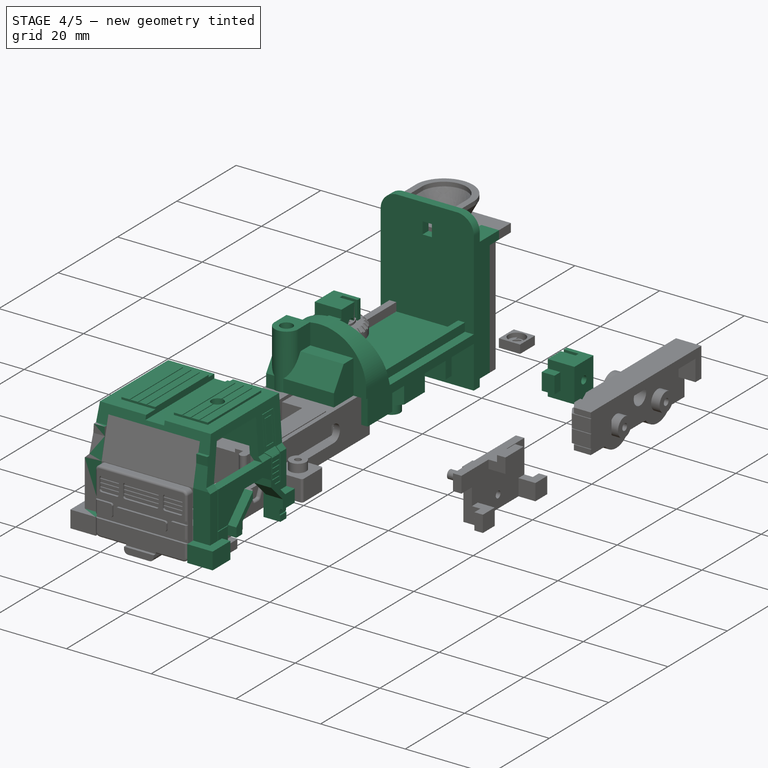
[diagram: stage 4 of 5 — iso view after this stage's code; geometry added in this stage tinted green]
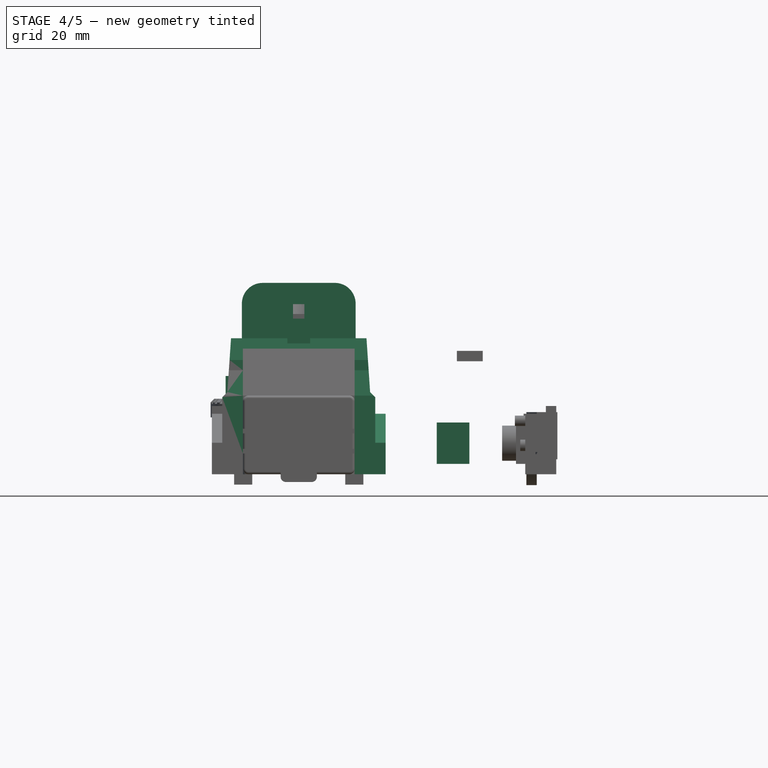
[diagram: stage 4 of 5 — front view after this stage's code; geometry added in this stage tinted green]
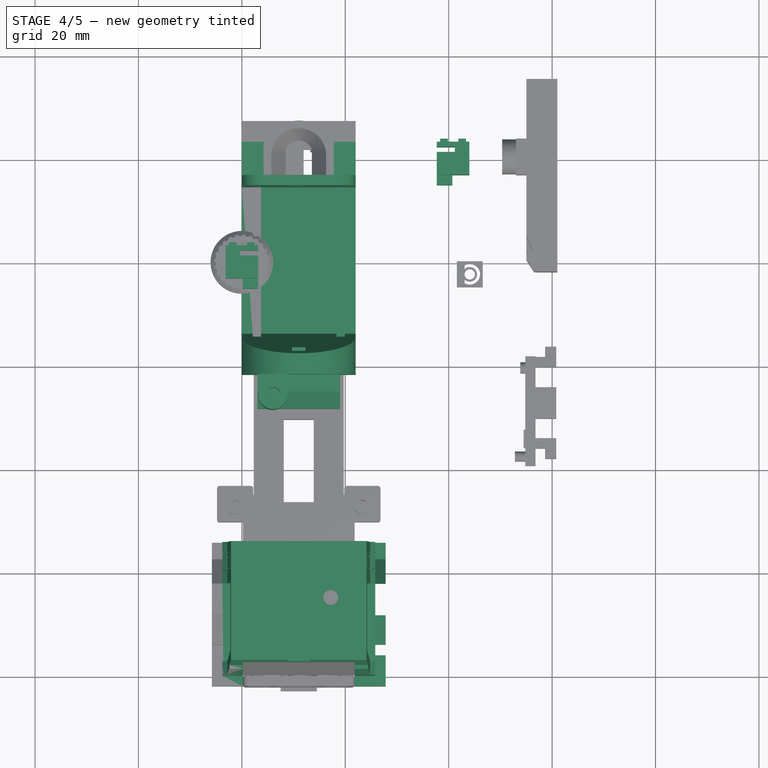
[diagram: stage 4 of 5 — top view after this stage's code; geometry added in this stage tinted green]
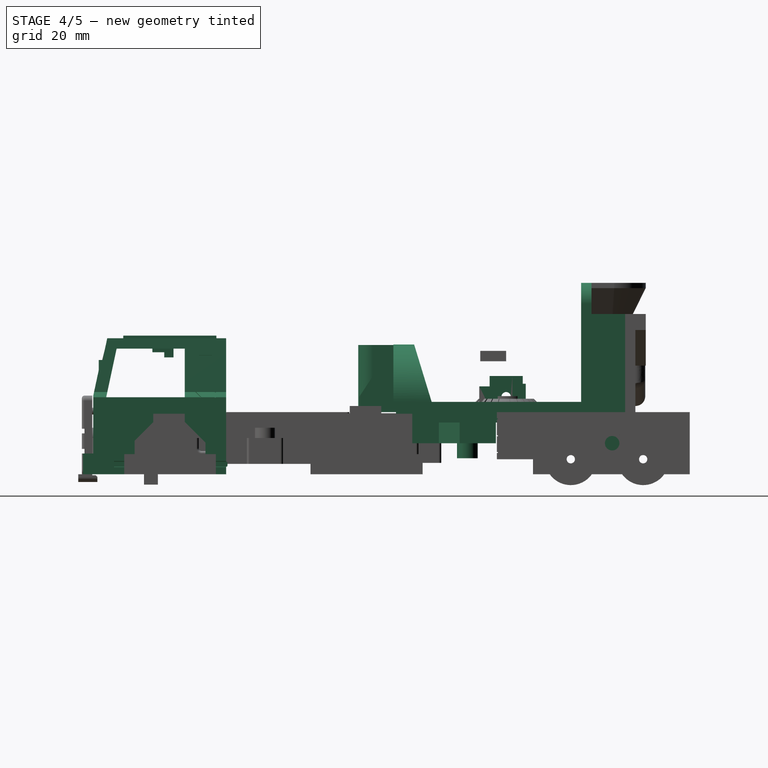
[diagram: stage 4 of 5 — right view after this stage's code; geometry added in this stage tinted green]
FEATURE [PartDesign::Body] Body016  label="Trigger"
  AllowCompound = false
  Group = -> [Binder020,Sketch157,Pad123,Sketch158,Pad125,Sketch161,Pad126,Fillet,Fillet001]
  Origin = -> Origin018
  Placement = pos=(33,19.1,7.1e-15) rot=(0,0,1;0rad)
  Tip = -> Fillet001
FEATURE [PartDesign::SubShapeBinder] Binder010
  BindCopyOnChange = 0
  BindMode = 2
  ClaimChildren = false
  Fuse = false
  MakeFace = true
  OffsetFill = false
  OffsetIntersection = false
  OffsetJoinType = 0
  OffsetOpenResult = false
  PartialLoad = false
  Refine = true
  Relative = true
  _Version = 2
FEATURE [Sketcher::SketchObject] Sketch
  ArcFitTolerance = 1e-06
  AttachmentSupport = -> [YZ_Plane]
  FullyConstrained = true
  MakeInternals = false
  MapMode = 5
  Placement = pos=(0,0,0) rot=(0.57735,0.57735,0.57735;2.0944rad)
  sketch-geometry (4):
    g0: LineSegment StartX=-14.5 StartY=1 StartZ=0 EndX=-14.5 EndY=-1 EndZ=0
    g1: LineSegment StartX=-14.5 StartY=-1 StartZ=0 EndX=14.5 EndY=-1 EndZ=0
    g2: LineSegment StartX=14.5 StartY=-1 StartZ=0 EndX=14.5 EndY=1 EndZ=0
    g3: LineSegment StartX=14.5 StartY=1 StartZ=0 EndX=-14.5 EndY=1 EndZ=0
  constraints (12):
    c: Coincident(g0,g1)
    c: Coincident(g1,g2)
    c: Coincident(g2,g3)
    c: Coincident(g3,g0)
    c: Vertical(g0)
    c: Vertical(g2)
    c: Horizontal(g1)
    c: Horizontal(g3)
    c: DistanceX(g3,g3) = 29
    c: DistanceY(g0,g0) = 2
    c: DistanceY(g-1,g0) = 1
    c: DistanceX(g0,g-1) = 14.5
FEATURE [PartDesign::Pad] Pad
  Direction = (1,0,0)
  Length = 22
  Length2 = 10
  Placement = pos=(0,0,0) rot=(1,1,1;2.0944rad)
  Profile = -> Sketch
  ReferenceAxis = -> Sketch [N_Axis]
  Refine = true
  Suppressed = false
  Type = 0
FEATURE [Sketcher::SketchObject] Sketch001
  ArcFitTolerance = 1e-06
  AttachmentSupport = -> [Pad]
  ExternalGeometry = -> [Pad]
  FullyConstrained = true
  MakeInternals = false
  MapMode = 5
  Placement = pos=(22,0,0) rot=(0.57735,0.57735,0.57735;2.0944rad)
  sketch-geometry (4):
    g0: LineSegment StartX=-14.5 StartY=1 StartZ=0 EndX=-21.3 EndY=1 EndZ=0
    g1: LineSegment StartX=-21.3 StartY=1 StartZ=0 EndX=-21.3 EndY=-6 EndZ=0
    g2: LineSegment StartX=-21.3 StartY=-6 StartZ=0 EndX=-14.5 EndY=-6 EndZ=0
    g3: LineSegment StartX=-14.5 StartY=-6 StartZ=0 EndX=-14.5 EndY=1 EndZ=0
  constraints (11):
    c: Coincident(g0,g1)
    c: Coincident(g1,g2)
    c: Coincident(g2,g3)
    c: Coincident(g3,g0)
    c: Horizontal(g0)
    c: Horizontal(g2)
    c: Vertical(g1)
    c: Vertical(g3)
    c: Coincident(g0,g-3)
    c: DistanceX(g0,g0) = 6.8
    c: DistanceY(g1,g1) = 7
FEATURE [PartDesign::Pad] Pad001
  BaseFeature = -> Pad
  Direction = (1,0,0)
  Length = 1.5
  Length2 = 10
  Placement = pos=(0,0,0) rot=(1,1,1;2.0944rad)
  Profile = -> Sketch001
  ReferenceAxis = -> Sketch001 [N_Axis]
  Refine = true
  Reversed = true
  Suppressed = false
  Type = 0
FEATURE [Sketcher::SketchObject] Sketch002
  ArcFitTolerance = 1e-06
  AttachmentSupport = -> [Pad001]
  ExternalGeometry = -> [Pad001]
  FullyConstrained = true
  MakeInternals = false
  MapMode = 5
  Placement = pos=(22,0,0) rot=(0.57735,0.57735,0.57735;2.0944rad)
  sketch-geometry (4):
    g0: LineSegment StartX=-21.8 StartY=1 StartZ=0 EndX=-13.8 EndY=1 EndZ=0
    g1: LineSegment StartX=-13.8 StartY=1 StartZ=0 EndX=-17.8 EndY=14.1 EndZ=0
    g2: LineSegment StartX=-17.8 StartY=14.1 StartZ=0 EndX=-21.8 EndY=14.1 EndZ=0
    g3: LineSegment StartX=-21.8 StartY=14.1 StartZ=0 EndX=-21.8 EndY=1 EndZ=0
  constraints (12):
    c: Coincident(g0,g1)
    c: Coincident(g1,g2)
    c: Coincident(g2,g3)
    c: Horizontal(g0)
    c: Horizontal(g2)
    c: DistanceY(g3,g3) = 13.1
    c: DistanceX(g0,g0) = 8
    c: Coincident(g0,g3)
    c: Vertical(g3)
    c: DistanceX(g0,g-3) = 0.5
    c: DistanceX(g2,g2) = 4
    c: PointOnObject(g-3,g0)
FEATURE [PartDesign::Pad] Pad002
  BaseFeature = -> Pad001
  Direction = (1,0,0)
  Length = 22
  Length2 = 10
  Placement = pos=(0,0,0) rot=(1,1,1;2.0944rad)
  Profile = -> Sketch002
  ReferenceAxis = -> Sketch002 [N_Axis]
  Refine = true
  Reversed = true
  Suppressed = false
  Type = 0
FEATURE [Sketcher::SketchObject] Sketch003
  ArcFitTolerance = 1e-06
  AttachmentSupport = -> [Pad002]
  ExternalGeometry = -> [Pad002]
  FullyConstrained = true
  MakeInternals = false
  MapMode = 5
  Placement = pos=(8e-16,0,0) rot=(0.57735,0.57735,-0.57735;4.18879rad)
  sketch-geometry (4):
    g0: LineSegment StartX=-14.5 StartY=-1 StartZ=0 EndX=-14.5 EndY=6 EndZ=0
    g1: LineSegment StartX=-14.5 StartY=6 StartZ=0 EndX=-21.3 EndY=6 EndZ=0
    g2: LineSegment StartX=-21.3 StartY=6 StartZ=0 EndX=-21.3 EndY=-1 EndZ=0
    g3: LineSegment StartX=-21.3 StartY=-1 StartZ=0 EndX=-14.5 EndY=-1 EndZ=0
  constraints (11):
    c: Coincident(g0,g1)
    c: Coincident(g1,g2)
    c: Coincident(g2,g3)
    c: Coincident(g3,g0)
    c: Vertical(g0)
    c: Vertical(g2)
    c: Horizontal(g1)
    c: Horizontal(g3)
    c: Coincident(g0,g-4)
    c: DistanceX(g1,g1) = 6.8
    c: DistanceY(g0,g0) = 7
FEATURE [PartDesign::Pad] Pad003
  BaseFeature = -> Pad002
  Direction = (-1,0,0)
  Length = 1.5
  Length2 = 10
  Placement = pos=(0,0,0) rot=(1,1,1;2.0944rad)
  Profile = -> Sketch003
  ReferenceAxis = -> Sketch003 [N_Axis]
  Refine = true
  Reversed = true
  Suppressed = false
  Type = 0
FEATURE [Sketcher::SketchObject] Sketch004
  ArcFitTolerance = 1e-06
  AttachmentSupport = -> [Pad003]
  ExternalGeometry = -> [Pad003]
  FullyConstrained = true
  MakeInternals = false
  MapMode = 5
  Placement = pos=(-4.8e-15,-21.8,0) rot=(0.57735,0.57735,-0.57735;2.0944rad)
  sketch-geometry (4):
    g0: ArcOfCircle CenterX=-3.1 CenterY=11 CenterZ=0 NormalX=0 NormalY=0 NormalZ=1 AngleXU=0 Radius=11 StartAngle=1.5708 EndAngle=4.71239
    g1: LineSegment StartX=-3.1 StartY=22 StartZ=0 EndX=-14.1 EndY=22 EndZ=0
    g2: LineSegment StartX=-14.1 StartY=22 StartZ=0 EndX=-14.1 EndY=0 EndZ=0
    g3: LineSegment StartX=-14.1 StartY=0 StartZ=0 EndX=-3.1 EndY=0 EndZ=0
  constraints (10):
    c: PointOnObject(g0,g-1)
    c: PointOnObject(g0,g-3)
    c: DistanceX(g0,g0) = 0
    c: DistanceX(g0,g-5) = 2.1
    c: Tangent(g1,g0) = -1.5708
    c: Coincident(g1,g-4)
    c: Coincident(g2,g1)
    c: Coincident(g2,g-4)
    c: Coincident(g3,g2)
    c: Coincident(g3,g0)
FEATURE [PartDesign::Pocket] Pocket
  BaseFeature = -> Pad003
  Direction = (0,1,0)
  Length = 8
  Length2 = 5
  Placement = pos=(0,0,0) rot=(1,1,1;2.0944rad)
  Profile = -> Sketch004
  ReferenceAxis = -> Sketch004 [N_Axis]
  Refine = true
  Suppressed = false
  Type = 0
FEATURE [Sketcher::SketchObject] Sketch005
  ArcFitTolerance = 1e-06
  AttachmentSupport = -> [Pocket]
  ExternalGeometry = -> [Pocket]
  FullyConstrained = true
  MakeInternals = false
  MapMode = 5
  Placement = pos=(-4.8e-15,-21.8,0) rot=(0.57735,0.57735,-0.57735;2.0944rad)
  sketch-geometry (4):
    g0: ArcOfCircle CenterX=-3.1 CenterY=11 CenterZ=0 NormalX=0 NormalY=0 NormalZ=1 AngleXU=0 Radius=9.5 StartAngle=1.5708 EndAngle=4.71239
    g1: LineSegment StartX=-3.1 StartY=20.5 StartZ=0 EndX=-1 EndY=20.5 EndZ=0
    g2: LineSegment StartX=-3.1 StartY=1.5 StartZ=0 EndX=-1 EndY=1.5 EndZ=0
    g3: LineSegment StartX=-1 StartY=20.5 StartZ=0 EndX=-1 EndY=1.5 EndZ=0
  constraints (12):
    c: Coincident(g0,g-3)
    c: Radius(g0) = 9.5
    c: Coincident(g1,g0)
    c: PointOnObject(g1,g-4)
    c: Horizontal(g1)
    c: Coincident(g2,g0)
    c: PointOnObject(g2,g-4)
    c: Horizontal(g2)
    c: DistanceY(g0,g-5) = 1.5
    c: DistanceX(g0,g0) = 0
    c: Coincident(g3,g1)
    c: Coincident(g3,g2)
FEATURE [Sketcher::SketchObject] Sketch006
  ArcFitTolerance = 1e-06
  FullyConstrained = true
  MakeInternals = false
  MapMode = 5
  Placement = pos=(1.4e-15,-12.3438,-3.7691) rot=(-0.511311,-0.511311,-0.690741;1.93262rad)
  sketch-geometry (4):
    g0: ArcOfCircle CenterX=7.18218 CenterY=11 CenterZ=0 NormalX=0 NormalY=0 NormalZ=1 AngleXU=0 Radius=9.5 StartAngle=4.71239 EndAngle=7.85398
    g1: LineSegment StartX=7.18218 StartY=1.5 StartZ=0 EndX=4.98646 EndY=1.5 EndZ=0
    g2: LineSegment StartX=7.18218 StartY=20.5 StartZ=0 EndX=4.98646 EndY=20.5 EndZ=0
    g3: LineSegment StartX=4.98646 StartY=20.5 StartZ=0 EndX=4.98646 EndY=1.5 EndZ=0
  constraints (12):
    c: Coincident(g0,g-3)
    c: Radius(g0) = 9.5
    c: Coincident(g1,g0)
    c: PointOnObject(g1,g-5)
    c: Horizontal(g1)
    c: Coincident(g2,g0)
    c: PointOnObject(g2,g-5)
    c: Horizontal(g2)
    c: Coincident(g3,g2)
    c: Coincident(g3,g1)
    c: DistanceX(g0,g0) = 0
    c: DistanceX(g0,g0) = 0
FEATURE [PartDesign::Pocket] Pocket002
  BaseFeature = -> Pocket
  Direction = (-1e-16,-0.956408,-0.292033)
  Length = 8
  Length2 = 5
  Placement = pos=(0,0,0) rot=(1,1,1;2.0944rad)
  Profile = -> Sketch006
  ReferenceAxis = -> Sketch006 [N_Axis]
  Refine = true
  Suppressed = false
  Type = 0
FEATURE [PartDesign::Pocket] Pocket003
  BaseFeature = -> Pocket002
  Direction = (0,1,0)
  Length = 8
  Length2 = 5
  Placement = pos=(0,0,0) rot=(1,1,1;2.0944rad)
  Profile = -> Sketch005
  ReferenceAxis = -> Sketch005 [N_Axis]
  Refine = true
  Suppressed = false
  Type = 0
FEATURE [Sketcher::SketchObject] Sketch007
  ArcFitTolerance = 1e-06
  AttachmentSupport = -> [Pocket003]
  ExternalGeometry = -> [Pocket003]
  FullyConstrained = true
  MakeInternals = false
  MapMode = 5
  Placement = pos=(-2.7e-15,-12.3438,-3.7691) rot=(-0.511311,-0.511311,-0.690741;1.93262rad)
  sketch-geometry (4):
    g0: LineSegment StartX=7.18218 StartY=21 StartZ=0 EndX=4.98646 EndY=21 EndZ=0
    g1: LineSegment StartX=4.98646 StartY=21 StartZ=0 EndX=4.98646 EndY=1 EndZ=0
    g2: LineSegment StartX=4.98646 StartY=1 StartZ=0 EndX=7.18218 EndY=1 EndZ=0
    g3: ArcOfCircle CenterX=7.18218 CenterY=11 CenterZ=0 NormalX=0 NormalY=0 NormalZ=1 AngleXU=0 Radius=10 StartAngle=4.71239 EndAngle=7.85398
  constraints (12):
    c: Vertical(g1)
    c: Horizontal(g2)
    c: PointOnObject(g2,g-6)
    c: Coincident(g2,g3)
    c: Coincident(g0,g3)
    c: Horizontal(g0)
    c: Radius(g3) = 10
    c: Coincident(g-3,g3)
    c: DistanceX(g0,g3) = 0
    c: DistanceX(g2,g3) = 0
    c: Coincident(g1,g2)
    c: Coincident(g1,g0)
FEATURE [PartDesign::Pad] Pad004
  BaseFeature = -> Pocket003
  Direction = (0,0.956408,0.292033)
  Length = 0.734
  Length2 = 10
  Placement = pos=(0,0,0) rot=(1,1,1;2.0944rad)
  Profile = -> Sketch007
  ReferenceAxis = -> Sketch007 [N_Axis]
  Refine = true
  Reversed = true
  Suppressed = false
  Type = 0
FEATURE [Sketcher::SketchObject] Sketch008
  ArcFitTolerance = 1e-06
  AttachmentSupport = -> [Pad004]
  ExternalGeometry = -> [Pad004]
  FullyConstrained = true
  MakeInternals = false
  MapMode = 5
  Placement = pos=(22,0,1.47e-14) rot=(0.57735,0.57735,0.57735;2.0944rad)
  sketch-geometry (4):
    g0: LineSegment StartX=14.5 StartY=26 StartZ=0 EndX=14.5 EndY=-11 EndZ=0
    g1: LineSegment StartX=14.5 StartY=-11 StartZ=0 EndX=16.5 EndY=-11 EndZ=0
    g2: LineSegment StartX=16.5 StartY=-11 StartZ=0 EndX=16.5 EndY=26 EndZ=0
    g3: LineSegment StartX=16.5 StartY=26 StartZ=0 EndX=14.5 EndY=26 EndZ=0
  constraints (12):
    c: Coincident(g0,g1)
    c: Coincident(g1,g2)
    c: Coincident(g2,g3)
    c: Coincident(g3,g0)
    c: Vertical(g0)
    c: Vertical(g2)
    c: Horizontal(g1)
    c: Horizontal(g3)
    c: DistanceY(g2,g2) = 37
    c: DistanceX(g3,g3) = 2
    c: PointOnObject(g-3,g0)
    c: DistanceY(g0,g-3) = 10
FEATURE [PartDesign::Pad] Pad005
  BaseFeature = -> Pad004
  Direction = (1,-1e-15,1.2e-15)
  Length = 22
  Length2 = 10
  Placement = pos=(0,0,0) rot=(1,1,1;2.0944rad)
  Profile = -> Sketch008
  ReferenceAxis = -> Sketch008 [N_Axis]
  Refine = true
  Reversed = true
  Suppressed = false
  Type = 0
FEATURE [Sketcher::SketchObject] Sketch009
  ArcFitTolerance = 1e-06
  AttachmentSupport = -> [Pad005]
  ExternalGeometry = -> [Pad005]
  FullyConstrained = true
  MakeInternals = false
  MapMode = 5
  Placement = pos=(-1.21e-14,-12.3438,-3.7691) rot=(-0.511311,-0.511311,-0.690741;1.93262rad)
  sketch-geometry (4):
    g0: LineSegment StartX=14.4865 StartY=12.3 StartZ=0 EndX=14.4865 EndY=9.7 EndZ=0
    g1: LineSegment StartX=14.4865 StartY=9.7 StartZ=0 EndX=17.0865 EndY=9.7 EndZ=0
    g2: LineSegment StartX=17.0865 StartY=9.7 StartZ=0 EndX=17.0865 EndY=12.3 EndZ=0
    g3: LineSegment StartX=17.0865 StartY=12.3 StartZ=0 EndX=14.4865 EndY=12.3 EndZ=0
  constraints (12):
    c: Coincident(g0,g1)
    c: Coincident(g1,g2)
    c: Coincident(g2,g3)
    c: Coincident(g3,g0)
    c: Vertical(g0)
    c: Vertical(g2)
    c: Horizontal(g1)
    c: Horizontal(g3)
    c: DistanceX(g3,g3) = 2.6
    c: DistanceY(g0,g0) = 2.6
    c: DistanceX(g-3,g0) = 9.5
    c: DistanceY(g0,g-3) = 9.7
FEATURE [PartDesign::Pocket] Pocket004
  BaseFeature = -> Pad005
  Direction = (0,-0.956408,-0.292033)
  Length = 1
  Length2 = 5
  Placement = pos=(0,0,0) rot=(1,1,1;2.0944rad)
  Profile = -> Sketch009
  ReferenceAxis = -> Sketch009 [N_Axis]
  Refine = true
  Suppressed = false
  Type = 0
FEATURE [Sketcher::SketchObject] Sketch010
  ArcFitTolerance = 1e-06
  AttachmentSupport = -> [Pocket004]
  ExternalGeometry = -> [Pocket004]
  FullyConstrained = true
  MakeInternals = false
  MapMode = 5
  Placement = pos=(0,5e-16,1) rot=(0,0,-1;1.5708rad)
  sketch-geometry (8):
    g0: LineSegment StartX=-14.5 StartY=19.9 StartZ=0 EndX=-14.5 EndY=18.3 EndZ=0
    g1: LineSegment StartX=-14.5 StartY=18.3 StartZ=0 EndX=14.502 EndY=18.3 EndZ=0
    g2: LineSegment StartX=14.502 StartY=18.3 StartZ=0 EndX=14.502 EndY=19.9 EndZ=0
    g3: LineSegment StartX=14.502 StartY=19.9 StartZ=0 EndX=-14.5 EndY=19.9 EndZ=0
    g4: LineSegment StartX=-14.5 StartY=3.7 StartZ=0 EndX=-14.5 EndY=2.1 EndZ=0
    g5: LineSegment StartX=-14.5 StartY=2.1 StartZ=0 EndX=14.502 EndY=2.1 EndZ=0
    g6: LineSegment StartX=14.502 StartY=2.1 StartZ=0 EndX=14.502 EndY=3.7 EndZ=0
    g7: LineSegment StartX=14.502 StartY=3.7 StartZ=0 EndX=-14.5 EndY=3.7 EndZ=0
  constraints (24):
    c: Coincident(g0,g1)
    c: Coincident(g1,g2)
    c: Coincident(g2,g3)
    c: Coincident(g3,g0)
    c: Vertical(g0)
    c: Horizontal(g1)
    c: Horizontal(g3)
    c: PointOnObject(g0,g-4)
    c: Coincident(g4,g5)
    c: Coincident(g5,g6)
    c: Coincident(g7,g4)
    c: Vertical(g4)
    c: Horizontal(g5)
    c: Horizontal(g7)
    c: PointOnObject(g4,g-4)
    c: DistanceY(g4,g4) = 1.6
    c: DistanceY(g0,g0) = 1.6
    c: DistanceY(g0,g-5) = 2.1
    c: DistanceY(g-6,g4) = 2.1
    c: PointOnObject(g7,g-7)
    c: Coincident(g6,g7)
    c: PointOnObject(g5,g-7)
    c: PointOnObject(g2,g-7)
    c: PointOnObject(g1,g-7)
FEATURE [PartDesign::Pad] Pad006
  BaseFeature = -> Pocket004
  Direction = (-2.8e-15,1.5e-15,1)
  Length = 2
  Length2 = 10
  Placement = pos=(0,0,0) rot=(1,1,1;2.0944rad)
  Profile = -> Sketch010
  ReferenceAxis = -> Sketch010 [N_Axis]
  Refine = true
  Suppressed = false
  Type = 0
FEATURE [Sketcher::SketchObject] Sketch011
  ArcFitTolerance = 1e-06
  AttachmentSupport = -> [Pad006]
  ExternalGeometry = -> [Pad006]
  FullyConstrained = true
  MakeInternals = false
  MapMode = 5
  Placement = pos=(1.77e-14,14.5,1.6e-15) rot=(0.57735,0.57735,-0.57735;2.0944rad)
  sketch-geometry (6):
    g0: LineSegment StartX=-26 StartY=22 StartZ=0 EndX=-22 EndY=22 EndZ=0
    g1: LineSegment StartX=-26 StartY=22 StartZ=0 EndX=-26 EndY=18 EndZ=0
    g2: ArcOfCircle CenterX=-22 CenterY=18 CenterZ=0 NormalX=0 NormalY=0 NormalZ=1 AngleXU=0 Radius=4 StartAngle=1.5708 EndAngle=3.14159
    g3: LineSegment StartX=-26 StartY=0 StartZ=0 EndX=-26 EndY=4 EndZ=0
    g4: LineSegment StartX=-26 StartY=0 StartZ=0 EndX=-22 EndY=-4e-15 EndZ=0
    g5: ArcOfCircle CenterX=-22 CenterY=4 CenterZ=0 NormalX=0 NormalY=0 NormalZ=1 AngleXU=0 Radius=4 StartAngle=3.14159 EndAngle=4.71239
  constraints (18):
    c: Coincident(g0,g-4)
    c: PointOnObject(g0,g-3)
    c: Coincident(g1,g0)
    c: PointOnObject(g1,g-4)
    c: Coincident(g2,g1)
    c: Coincident(g2,g0)
    c: Coincident(g3,g-5)
    c: PointOnObject(g3,g-4)
    c: Coincident(g4,g3)
    c: PointOnObject(g4,g-5)
    c: Coincident(g5,g4)
    c: Coincident(g5,g3)
    c: Radius(g5) = 4
    c: Radius(g2) = 4
    c: DistanceX(g5,g4) = 0
    c: DistanceX(g0,g2) = 0
    c: DistanceY(g1,g2) = 0
    c: DistanceY(g3,g5) = 0
FEATURE [PartDesign::Pocket] Pocket005
  BaseFeature = -> Pad006
  Direction = (1.3e-15,1,0)
  Length = 2
  Length2 = 5
  Placement = pos=(0,0,0) rot=(1,1,1;2.0944rad)
  Profile = -> Sketch011
  ReferenceAxis = -> Sketch011 [N_Axis]
  Refine = true
  Suppressed = false
  Type = 0
FEATURE [Sketcher::SketchObject] Sketch012
  ArcFitTolerance = 1e-06
  AttachmentSupport = -> [Pocket005]
  ExternalGeometry = -> [Pocket005]
  FullyConstrained = true
  MakeInternals = false
  MapMode = 5
  Placement = pos=(1.77e-14,14.5,1.6e-15) rot=(0.57735,0.57735,-0.57735;2.0944rad)
  sketch-geometry (4):
    g0: LineSegment StartX=-21.9 StartY=12.1 StartZ=0 EndX=-21.9 EndY=9.9 EndZ=0
    g1: LineSegment StartX=-21.9 StartY=9.9 StartZ=0 EndX=-19.1 EndY=9.9 EndZ=0
    g2: LineSegment StartX=-19.1 StartY=9.9 StartZ=0 EndX=-19.1 EndY=12.1 EndZ=0
    g3: LineSegment StartX=-19.1 StartY=12.1 StartZ=0 EndX=-21.9 EndY=12.1 EndZ=0
  constraints (12):
    c: Coincident(g0,g1)
    c: Coincident(g1,g2)
    c: Coincident(g2,g3)
    c: Coincident(g3,g0)
    c: Vertical(g0)
    c: Vertical(g2)
    c: Horizontal(g1)
    c: Horizontal(g3)
    c: DistanceX(g3,g3) = 2.8
    c: DistanceY(g0,g0) = 2.2
    c: DistanceY(g0,g-3) = 9.9
    c: DistanceX(g-5,g0) = 4.1
FEATURE [PartDesign::Pocket] Pocket006
  BaseFeature = -> Pocket005
  Direction = (1.3e-15,1,0)
  Length = 2
  Length2 = 5
  Placement = pos=(0,0,0) rot=(1,1,1;2.0944rad)
  Profile = -> Sketch012
  ReferenceAxis = -> Sketch012 [N_Axis]
  Refine = true
  Suppressed = false
  Type = 0
FEATURE [Sketcher::SketchObject] Sketch015
  ArcFitTolerance = 1e-06
  AttachmentSupport = -> [Pocket006]
  ExternalGeometry = -> [Pocket006]
  FullyConstrained = true
  MakeInternals = false
  MapMode = 5
  Placement = pos=(-4.8e-15,-21.8,0) rot=(0.57735,0.57735,-0.57735;2.0944rad)
  sketch-geometry (4):
    g0: LineSegment StartX=-1 StartY=20.5 StartZ=0 EndX=-1 EndY=1.5 EndZ=0
    g1: LineSegment StartX=-1 StartY=1.5 StartZ=0 EndX=-3.1 EndY=1.5 EndZ=0
    g2: LineSegment StartX=-1 StartY=20.5 StartZ=0 EndX=-3.1 EndY=20.5 EndZ=0
    g3: ArcOfCircle CenterX=-3.1 CenterY=11 CenterZ=0 NormalX=0 NormalY=0 NormalZ=1 AngleXU=0 Radius=9.5 StartAngle=1.5708 EndAngle=4.71239
  constraints (9):
    c: Coincident(g0,g-3)
    c: Coincident(g0,g-4)
    c: Coincident(g1,g0)
    c: Coincident(g1,g-5)
    c: Coincident(g2,g0)
    c: Coincident(g2,g-5)
    c: Coincident(g3,g2)
    c: Coincident(g3,g1)
    c: Radius(g3) = 9.5
FEATURE [PartDesign::Pad] Pad007
  BaseFeature = -> Pocket006
  Direction = (-1e-16,-1,3.2e-15)
  Length = 1.5
  Length2 = 10
  Placement = pos=(0,0,0) rot=(1,1,1;2.0944rad)
  Profile = -> Sketch015
  ReferenceAxis = -> Sketch015 [N_Axis]
  Refine = true
  Reversed = true
  Suppressed = false
  Type = 0
FEATURE [Sketcher::SketchObject] Sketch016
  ArcFitTolerance = 1e-06
  AttachmentSupport = -> [Pad007]
  ExternalGeometry = -> [Pad007]
  FullyConstrained = true
  MakeInternals = false
  MapMode = 5
  Placement = pos=(-3.62e-14,-21.8,8.98e-14) rot=(0.57735,0.57735,-0.57735;2.0944rad)
  sketch-geometry (4):
    g0: LineSegment StartX=-1 StartY=4.5 StartZ=0 EndX=-7.5 EndY=4.5 EndZ=0
    g1: LineSegment StartX=-7.5 StartY=4.5 StartZ=0 EndX=-7.5 EndY=17.5 EndZ=0
    g2: LineSegment StartX=-7.5 StartY=17.5 StartZ=0 EndX=-1 EndY=17.5 EndZ=0
    g3: LineSegment StartX=-1 StartY=17.5 StartZ=0 EndX=-1 EndY=4.5 EndZ=0
  constraints (12):
    c: PointOnObject(g0,g-3)
    c: Horizontal(g0)
    c: Coincident(g1,g0)
    c: Vertical(g1)
    c: Coincident(g2,g1)
    c: PointOnObject(g2,g-3)
    c: Horizontal(g2)
    c: Coincident(g3,g2)
    c: Coincident(g3,g0)
    c: DistanceY(g-3,g0) = 4.5
    c: DistanceY(g2,g-3) = 4.5
    c: DistanceX(g2,g2) = 6.5
FEATURE [PartDesign::Pocket] Pocket007
  BaseFeature = -> Pad007
  Direction = (1.6e-15,1,-4.3e-15)
  Length = 1.5
  Length2 = 5
  Placement = pos=(0,0,0) rot=(1,1,1;2.0944rad)
  Profile = -> Sketch016
  ReferenceAxis = -> Sketch016 [N_Axis]
  Refine = true
  Suppressed = false
  Type = 0
FEATURE [Sketcher::SketchObject] Sketch017
  ArcFitTolerance = 1e-06
  AttachmentSupport = -> [Pocket007]
  ExternalGeometry = -> [Pocket007]
  FullyConstrained = true
  MakeInternals = false
  MapMode = 5
  Placement = pos=(-3.62e-14,-21.8,8.98e-14) rot=(0.57735,0.57735,-0.57735;2.0944rad)
  sketch-geometry (8):
    g0: LineSegment StartX=-1 StartY=4.5 StartZ=0 EndX=-7.5 EndY=4.5 EndZ=0
    g1: LineSegment StartX=-7.5 StartY=17.5 StartZ=0 EndX=-7.5 EndY=4.5 EndZ=0
    g2: LineSegment StartX=-7.5 StartY=17.5 StartZ=0 EndX=-1 EndY=17.5 EndZ=0
    g3: LineSegment StartX=-1 StartY=17.5 StartZ=0 EndX=-1 EndY=19 EndZ=0
    g4: LineSegment StartX=-1 StartY=19 StartZ=0 EndX=-9 EndY=19 EndZ=0
    g5: LineSegment StartX=-9 StartY=19 StartZ=0 EndX=-9 EndY=3 EndZ=0
    g6: LineSegment StartX=-9 StartY=3 StartZ=0 EndX=-1 EndY=3 EndZ=0
    g7: LineSegment StartX=-1 StartY=3 StartZ=0 EndX=-1 EndY=4.5 EndZ=0
  constraints (20):
    c: Coincident(g0,g-5)
    c: Coincident(g0,g-5)
    c: Coincident(g1,g-4)
    c: Coincident(g1,g0)
    c: Coincident(g2,g1)
    c: Coincident(g2,g-3)
    c: Coincident(g3,g2)
    c: Vertical(g3)
    c: Coincident(g4,g3)
    c: Horizontal(g4)
    c: Coincident(g5,g4)
    c: Vertical(g5)
    c: Coincident(g6,g5)
    c: Horizontal(g6)
    c: Coincident(g7,g6)
    c: Coincident(g7,g0)
    c: Vertical(g7)
    c: DistanceY(g3,g3) = 1.5
    c: DistanceY(g7,g7) = 1.5
    c: DistanceX(g5,g0) = 1.5
FEATURE [PartDesign::Pad] Pad008
  BaseFeature = -> Pocket007
  Direction = (-1.8e-15,-1,4.5e-15)
  Length = 3.3
  Length2 = 10
  Placement = pos=(0,0,0) rot=(1,1,1;2.0944rad)
  Profile = -> Sketch017
  ReferenceAxis = -> Sketch017 [N_Axis]
  Refine = true
  Suppressed = false
  Type = 0
FEATURE [Sketcher::SketchObject] Sketch018
  ArcFitTolerance = 1e-06
  AttachmentSupport = -> [Pad008]
  ExternalGeometry = -> [Pad008]
  FullyConstrained = true
  MakeInternals = false
  MapMode = 5
  Placement = pos=(3,-5.5e-15,-7e-16) rot=(-0.57735,-0.57735,0.57735;2.0944rad)
  sketch-geometry (4):
    g0: LineSegment StartX=-25.1 StartY=-1 StartZ=0 EndX=-25.1 EndY=-9 EndZ=0
    g1: LineSegment StartX=-25.1 StartY=-9 StartZ=0 EndX=-28.4 EndY=-4 EndZ=0
    g2: LineSegment StartX=-28.4 StartY=-4 StartZ=0 EndX=-28.4 EndY=-1 EndZ=0
    g3: LineSegment StartX=-25.1 StartY=-1 StartZ=0 EndX=-28.4 EndY=-1 EndZ=0
  constraints (10):
    c: Coincident(g0,g-3)
    c: Coincident(g0,g-3)
    c: Coincident(g1,g0)
    c: Coincident(g2,g1)
    c: Vertical(g2)
    c: Coincident(g3,g0)
    c: Horizontal(g3)
    c: Coincident(g3,g2)
    c: DistanceX(g3,g3) = 3.3
    c: DistanceY(g2,g2) = 3
FEATURE [PartDesign::Pad] Pad009
  BaseFeature = -> Pad008
  Direction = (-1,1.8e-15,0)
  Length = 1.5
  Length2 = 10
  Placement = pos=(0,0,0) rot=(1,1,1;2.0944rad)
  Profile = -> Sketch018
  ReferenceAxis = -> Sketch018 [N_Axis]
  Refine = true
  Reversed = true
  Suppressed = false
  Type = 0
FEATURE [Sketcher::SketchObject] Sketch019
  ArcFitTolerance = 1e-06
  AttachmentSupport = -> [Pad009]
  ExternalGeometry = -> [Pad009]
  FullyConstrained = true
  MakeInternals = false
  MapMode = 5
  Placement = pos=(19,-3.48e-14,-4.2e-15) rot=(0.57735,0.57735,0.57735;2.0944rad)
  sketch-geometry (4):
    g0: LineSegment StartX=-25.1 StartY=9 StartZ=0 EndX=-25.1 EndY=1 EndZ=0
    g1: LineSegment StartX=-25.1 StartY=1 StartZ=0 EndX=-28.4 EndY=1 EndZ=0
    g2: LineSegment StartX=-28.4 StartY=1 StartZ=0 EndX=-28.4 EndY=4 EndZ=0
    g3: LineSegment StartX=-28.4 StartY=4 StartZ=0 EndX=-25.1 EndY=9 EndZ=0
  constraints (10):
    c: Coincident(g0,g-3)
    c: Coincident(g0,g-3)
    c: Coincident(g1,g0)
    c: Horizontal(g1)
    c: Coincident(g2,g1)
    c: Vertical(g2)
    c: Coincident(g3,g2)
    c: Coincident(g3,g0)
    c: DistanceX(g1,g1) = 3.3
    c: DistanceY(g2,g2) = 3
FEATURE [PartDesign::Pad] Pad010
  BaseFeature = -> Pad009
  Direction = (1,-1.9e-15,-1e-16)
  Length = 1.5
  Length2 = 10
  Placement = pos=(0,0,0) rot=(1,1,1;2.0944rad)
  Profile = -> Sketch019
  ReferenceAxis = -> Sketch019 [N_Axis]
  Refine = true
  Reversed = true
  Suppressed = false
  Type = 0
FEATURE [Sketcher::SketchObject] Sketch020
  ArcFitTolerance = 1e-06
  AttachmentSupport = -> [Pad010]
  ExternalGeometry = -> [Pad010]
  FullyConstrained = true
  MakeInternals = false
  MapMode = 5
  Placement = pos=(-4.33e-14,-21.6216,14.2703) rot=(0.428244,0.428244,-0.795748;1.79731rad)
  sketch-geometry (4):
    g0: LineSegment StartX=12.3055 StartY=17.5 StartZ=0 EndX=6.31465 EndY=17.5 EndZ=0
    g1: LineSegment StartX=6.31465 StartY=17.5 StartZ=0 EndX=6.31465 EndY=4.5 EndZ=0
    g2: LineSegment StartX=6.31465 StartY=4.5 StartZ=0 EndX=12.3055 EndY=4.5 EndZ=0
    g3: LineSegment StartX=12.3055 StartY=4.5 StartZ=0 EndX=12.3055 EndY=17.5 EndZ=0
  constraints (8):
    c: Coincident(g0,g-3)
    c: Coincident(g0,g-4)
    c: Coincident(g1,g0)
    c: Coincident(g1,g-5)
    c: Coincident(g2,g1)
    c: Coincident(g2,g-5)
    c: Coincident(g3,g2)
    c: Coincident(g3,g0)
FEATURE [PartDesign::Pad] Pad011
  BaseFeature = -> Pad010
  Direction = (-1.9e-15,-0.834609,0.550842)
  Length = 1.5
  Length2 = 10
  Placement = pos=(0,0,0) rot=(1,1,1;2.0944rad)
  Profile = -> Sketch020
  ReferenceAxis = -> Sketch020 [N_Axis]
  Refine = true
  Reversed = true
  Suppressed = false
  Type = 0
FEATURE [Sketcher::SketchObject] Sketch021
  ArcFitTolerance = 1e-06
  AttachmentSupport = -> [Pad011]
  ExternalGeometry = -> [Pad011]
  FullyConstrained = true
  MakeInternals = false
  MapMode = 5
  Placement = pos=(-5.68e-14,-28.4,0) rot=(0.57735,0.57735,-0.57735;2.0944rad)
  sketch-geometry (4):
    g0: LineSegment StartX=-1 StartY=17.5 StartZ=0 EndX=-4 EndY=17.5 EndZ=0
    g1: LineSegment StartX=-4 StartY=17.5 StartZ=0 EndX=-4 EndY=4.5 EndZ=0
    g2: LineSegment StartX=-4 StartY=4.5 StartZ=0 EndX=-1 EndY=4.5 EndZ=0
    g3: LineSegment StartX=-1 StartY=4.5 StartZ=0 EndX=-1 EndY=17.5 EndZ=0
  constraints (8):
    c: Coincident(g0,g-3)
    c: Coincident(g0,g-4)
    c: Coincident(g1,g0)
    c: Coincident(g1,g-5)
    c: Coincident(g2,g1)
    c: Coincident(g2,g-5)
    c: Coincident(g3,g2)
    c: Coincident(g3,g0)
FEATURE [PartDesign::Pad] Pad012
  BaseFeature = -> Pad011
  Direction = (-1.9e-15,-1,1e-16)
  Length = 1.5
  Length2 = 10
  Placement = pos=(0,0,0) rot=(1,1,1;2.0944rad)
  Profile = -> Sketch021
  ReferenceAxis = -> Sketch021 [N_Axis]
  Refine = true
  Reversed = true
  Suppressed = false
  Type = 0
FEATURE [Sketcher::SketchObject] Sketch022
  ArcFitTolerance = 1e-06
  AttachmentSupport = -> [Pad012]
  ExternalGeometry = -> [Pad012]
  FullyConstrained = true
  MakeInternals = false
  MapMode = 5
  Placement = pos=(4e-15,4.25e-14,9) rot=(0,0,-1;1.5708rad)
  sketch-geometry (4):
    g0: LineSegment StartX=21.8 StartY=3.2 StartZ=0 EndX=21.8 EndY=8.8 EndZ=0
    g1: LineSegment StartX=21.8 StartY=8.8 StartZ=0 EndX=25.8 EndY=8.8 EndZ=0
    g2: LineSegment StartX=21.8 StartY=3.2 StartZ=0 EndX=25.8 EndY=3.2 EndZ=0
    g3: ArcOfCircle CenterX=25.8 CenterY=6 CenterZ=0 NormalX=0 NormalY=0 NormalZ=1 AngleXU=0 Radius=2.8 StartAngle=4.71239 EndAngle=7.85398
  constraints (13):
    c: PointOnObject(g0,g-3)
    c: Vertical(g0)
    c: Coincident(g1,g0)
    c: Horizontal(g1)
    c: Horizontal(g2)
    c: Coincident(g3,g1)
    c: Coincident(g3,g2)
    c: DistanceY(g0,g0) = 5.6
    c: Coincident(g2,g0)
    c: DistanceY(g-4,g0) = 0.2
    c: DistanceX(g3,g1) = 0
    c: DistanceX(g3,g2) = 0
    c: DistanceX(g1,g1) = 4
FEATURE [PartDesign::Pad] Pad013
  BaseFeature = -> Pad012
  Direction = (0,5.3e-15,1)
  Length = 5
  Length2 = 10
  Placement = pos=(0,0,0) rot=(1,1,1;2.0944rad)
  Profile = -> Sketch022
  ReferenceAxis = -> Sketch022 [N_Axis]
  Refine = true
  Suppressed = false
  Type = 0
FEATURE [PartDesign::Pad] Pad014
  BaseFeature = -> Pad013
  Direction = (0,5.3e-15,1)
  Length = 8
  Length2 = 10
  Placement = pos=(0,0,0) rot=(1,1,1;2.0944rad)
  Profile = -> Sketch022
  ReferenceAxis = -> Sketch022 [N_Axis]
  Refine = true
  Reversed = true
  Suppressed = false
  Type = 0
FEATURE [Sketcher::SketchObject] Sketch023
  ArcFitTolerance = 1e-06
  AttachmentSupport = -> [Pad014]
  ExternalGeometry = -> [Pad014]
  FullyConstrained = true
  MakeInternals = false
  MapMode = 5
  Placement = pos=(17.5,0,1.4e-14) rot=(0.57735,0.57735,-0.57735;4.18879rad)
  sketch-geometry (5):
    g0: LineSegment StartX=-26.9 StartY=-1 StartZ=0 EndX=-20.3 EndY=-1 EndZ=0
    g1: LineSegment StartX=-20.3 StartY=-1 StartZ=0 EndX=-20.3 EndY=-7.5 EndZ=0
    g2: LineSegment StartX=-20.3 StartY=-7.5 StartZ=0 EndX=-24.2928 EndY=-7.5 EndZ=0
    g3: LineSegment StartX=-24.2928 StartY=-7.5 StartZ=0 EndX=-26.9 EndY=-3.54962 EndZ=0
    g4: LineSegment StartX=-26.9 StartY=-3.54962 StartZ=0 EndX=-26.9 EndY=-1 EndZ=0
  constraints (11):
    c: Coincident(g0,g-7)
    c: Coincident(g0,g-4)
    c: Coincident(g1,g0)
    c: PointOnObject(g1,g-4)
    c: Coincident(g2,g1)
    c: Coincident(g2,g-6)
    c: Horizontal(g2)
    c: Coincident(g3,g2)
    c: Coincident(g3,g-7)
    c: Coincident(g4,g3)
    c: Coincident(g4,g0)
FEATURE [PartDesign::Pocket] Pocket008
  BaseFeature = -> Pad014
  Direction = (1,0,1.3e-15)
  Length = 13
  Length2 = 5
  Placement = pos=(0,0,0) rot=(1,1,1;2.0944rad)
  Profile = -> Sketch023
  ReferenceAxis = -> Sketch023 [N_Axis]
  Refine = true
  Reversed = true
  Suppressed = false
  Type = 0
FEATURE [Sketcher::SketchObject] Sketch024
  ArcFitTolerance = 1e-06
  AttachmentSupport = -> [Pocket008]
  ExternalGeometry = -> [Pocket008]
  FullyConstrained = true
  MakeInternals = false
  MapMode = 5
  Placement = pos=(0,7.38e-14,14) rot=(0,0,-1;1.5708rad)
  sketch-geometry (1):
    g0: Circle CenterX=25.8 CenterY=6 CenterZ=0 NormalX=0 NormalY=0 NormalZ=1 AngleXU=0 Radius=1.45
  constraints (2):
    c: Coincident(g0,g-3)
    c: Diameter(g0) = 2.9
FEATURE [PartDesign::Pocket] Pocket009
  BaseFeature = -> Pocket008
  Direction = (0,-5.6e-15,-1)
  Length = 6.2
  Length2 = 5
  Placement = pos=(0,0,0) rot=(1,1,1;2.0944rad)
  Profile = -> Sketch024
  ReferenceAxis = -> Sketch024 [N_Axis]
  Refine = true
  Suppressed = false
  Type = 0
FEATURE [Sketcher::SketchObject] Sketch025
  ArcFitTolerance = 1e-06
  AttachmentSupport = -> [Pocket009]
  ExternalGeometry = -> [Pocket009]
  FullyConstrained = true
  MakeInternals = false
  MapMode = 5
  Placement = pos=(0,-2e-16,-1) rot=(0.707107,0.707107,0;3.14159rad)
  sketch-geometry (36):
    g0: LineSegment StartX=-14.5 StartY=22 StartZ=0 EndX=-13 EndY=22 EndZ=0
    g1: LineSegment StartX=-13 StartY=22 StartZ=0 EndX=-13 EndY=18 EndZ=0
    g2: LineSegment StartX=-14.5 StartY=22 StartZ=0 EndX=-14.5 EndY=16 EndZ=0
    g3: LineSegment StartX=-14.5 StartY=16 StartZ=0 EndX=-13 EndY=16 EndZ=0
    g4: LineSegment StartX=-13 StartY=18 StartZ=0 EndX=-9 EndY=22 EndZ=0
    g5: LineSegment StartX=-9 StartY=22 StartZ=0 EndX=-2 EndY=22 EndZ=0
    g6: LineSegment StartX=-2 StartY=22 StartZ=0 EndX=-2 EndY=19 EndZ=0
    g7: LineSegment StartX=-2 StartY=19 StartZ=0 EndX=-3.5 EndY=19 EndZ=0
    g8: LineSegment StartX=-3.5 StartY=19 StartZ=0 EndX=-3.5 EndY=20.5 EndZ=0
    g9: LineSegment StartX=-3.5 StartY=20.5 StartZ=0 EndX=-8.5 EndY=20.5 EndZ=0
    g10: LineSegment StartX=-8.5 StartY=20.5 StartZ=0 EndX=-13 EndY=16 EndZ=0
    g11: LineSegment StartX=5 StartY=22 StartZ=0 EndX=7 EndY=22 EndZ=0
    g12: LineSegment StartX=7 StartY=22 StartZ=0 EndX=7 EndY=13.1 EndZ=0
    g13: LineSegment StartX=7 StartY=13.1 StartZ=0 EndX=5 EndY=13.1 EndZ=0
    g14: LineSegment StartX=5 StartY=13.1 StartZ=0 EndX=5 EndY=22 EndZ=0
    g15: LineSegment StartX=-14.5 StartY=3.2e-15 StartZ=0 EndX=-14.5 EndY=6 EndZ=0
    g16: LineSegment StartX=-14.5 StartY=6 StartZ=0 EndX=-13 EndY=6 EndZ=0
    g17: LineSegment StartX=-13 StartY=6 StartZ=0 EndX=-8.5 EndY=1.5 EndZ=0
    g18: LineSegment StartX=-8.5 StartY=1.5 StartZ=0 EndX=-3.5 EndY=1.5 EndZ=0
    g19: LineSegment StartX=-3.5 StartY=1.5 StartZ=0 EndX=-3.5 EndY=3 EndZ=0
    g20: LineSegment StartX=-3.5 StartY=3 StartZ=0 EndX=-2 EndY=3 EndZ=0
    g21: LineSegment StartX=-2 StartY=3 StartZ=0 EndX=-2 EndY=4e-16 EndZ=0
    g22: LineSegment StartX=-2 StartY=4e-16 StartZ=0 EndX=-9 EndY=2e-15 EndZ=0
    g23: LineSegment StartX=-9 StartY=2e-15 StartZ=0 EndX=-13 EndY=4 EndZ=0
    g24: LineSegment StartX=-13 StartY=4 StartZ=0 EndX=-13 EndY=3.1e-15 EndZ=0
    g25: LineSegment StartX=-13 StartY=3.1e-15 StartZ=0 EndX=-14.5 EndY=3.2e-15 EndZ=0
    g26: LineSegment StartX=5 StartY=-1.1e-15 StartZ=0 EndX=5 EndY=8.9 EndZ=0
    g27: LineSegment StartX=5 StartY=8.9 StartZ=0 EndX=7 EndY=8.9 EndZ=0
    g28: LineSegment StartX=7 StartY=8.9 StartZ=0 EndX=7 EndY=-1.8e-15 EndZ=0
    g29: LineSegment StartX=7 StartY=-1.8e-15 StartZ=0 EndX=5 EndY=-1.1e-15 EndZ=0
    g30: LineSegment StartX=-3.5 StartY=19 StartZ=0 EndX=-3.5 EndY=3 EndZ=0
    g31: LineSegment StartX=-2 StartY=3 StartZ=0 EndX=-2 EndY=19 EndZ=0
    g32: Circle CenterX=-7.5 CenterY=18 CenterZ=0 NormalX=0 NormalY=0 NormalZ=1 AngleXU=0 Radius=2
    g33: Circle CenterX=-7.5 CenterY=4 CenterZ=0 NormalX=0 NormalY=0 NormalZ=1 AngleXU=0 Radius=2
    g34: Circle CenterX=-7.5 CenterY=4 CenterZ=0 NormalX=0 NormalY=0 NormalZ=1 AngleXU=0 Radius=0.75
    g35: Circle CenterX=-7.5 CenterY=18 CenterZ=0 NormalX=0 NormalY=0 NormalZ=1 AngleXU=0 Radius=0.75
  constraints (103):
    c: Coincident(g0,g-4)
    c: PointOnObject(g0,g-4)
    c: Coincident(g1,g0)
    c: Vertical(g1)
    c: Coincident(g2,g0)
    c: PointOnObject(g2,g-3)
    c: Coincident(g3,g2)
    c: Horizontal(g3)
    c: Coincident(g4,g1)
    c: PointOnObject(g4,g-4)
    c: Coincident(g5,g4)
    c: PointOnObject(g5,g-4)
    c: Coincident(g6,g5)
    c: Vertical(g6)
    c: Coincident(g7,g6)
    c: Horizontal(g7)
    c: Coincident(g8,g7)
    c: Vertical(g8)
    c: Coincident(g9,g8)
    c: Horizontal(g9)
    c: Coincident(g10,g9)
    c: Coincident(g10,g3)
    c: PointOnObject(g11,g-4)
    c: PointOnObject(g11,g-4)
    c: Coincident(g12,g11)
    c: Vertical(g12)
    c: Coincident(g13,g12)
    c: Horizontal(g13)
    c: Coincident(g14,g13)
    c: Coincident(g14,g11)
    c: Vertical(g14)
    c: Coincident(g15,g-6)
    c: PointOnObject(g15,g-3)
    c: Coincident(g16,g15)
    c: Coincident(g17,g16)
    c: Coincident(g18,g17)
    c: Horizontal(g18)
    c: Coincident(g19,g18)
    c: Vertical(g19)
    c: Coincident(g20,g19)
    c: Coincident(g21,g20)
    c: PointOnObject(g21,g-6)
    c: Coincident(g22,g21)
    c: PointOnObject(g22,g-6)
    c: Coincident(g23,g22)
    c: Coincident(g24,g23)
    c: PointOnObject(g24,g-6)
    c: Vertical(g24)
    c: Coincident(g25,g24)
    c: Coincident(g25,g15)
    c: PointOnObject(g26,g-6)
    c: Vertical(g26)
    c: Coincident(g27,g26)
    c: Horizontal(g27)
    c: Coincident(g28,g27)
    c: PointOnObject(g28,g-6)
    c: Vertical(g28)
    c: Coincident(g29,g28)
    c: Coincident(g29,g26)
    c: Coincident(g30,g7)
    c: Coincident(g30,g19)
    c: Vertical(g30)
    c: Coincident(g31,g20)
    c: Coincident(g31,g6)
    c: DistanceY(g2,g2) = 6
    c: DistanceX(g0,g0) = 1.5
    c: DistanceX(g3,g3) = 1.5
    c: DistanceX(g7,g7) = 1.5
    c: DistanceX(g20,g20) = 1.5
    c: DistanceX(g16,g16) = 1.5
    c: DistanceX(g25,g25) = 1.5
    c: Horizontal(g16)
    c: Horizontal(g20)
    c: DistanceY(g1,g1) = 4
    c: DistanceY(g8,g5) = 1.5
    c: DistanceY(g21,g18) = 1.5
    c: DistanceY(g24,g24) = 4
    c: DistanceY(g15,g15) = 6
    c: Angle(g-6,g23) = 2.35619
    c: Angle(g22,g17) = 2.35619
    c: Vertical(g21)
    c: DistanceX(g22,g22) = 7
    c: DistanceY(g21,g21) = 3
    c: DistanceY(g6,g6) = 3
    c: DistanceX(g5,g5) = 7
    c: Angle(g10,g-4) = 2.35619
    c: DistanceX(g13,g13) = 2
    c: DistanceX(g27,g27) = 2
    c: DistanceY(g14,g14) = 8.9
    c: DistanceY(g26,g26) = 8.9
    c: DistanceX(g28,g-6) = 7.5
    c: DistanceX(g-4,g-4) = 29
    c: DistanceX(g11,g-5) = 7.5
    c: Diameter(g32) = 4
    c: Diameter(g33) = 4
    c: DistanceY(g32,g4) = 4
    c: DistanceY(g22,g33) = 4
    c: DistanceX(g0,g32) = 7
    c: DistanceX(g-3,g33) = 7
    c: Coincident(g34,g33)
    c: Coincident(g35,g32)
    c: Diameter(g35) = 1.5
    c: Diameter(g34) = 1.5
FEATURE [PartDesign::Pad] Pad015
  BaseFeature = -> Pocket009
  Direction = (7.8e-15,-2.9e-15,-1)
  Length = 6.9
  Length2 = 10
  Placement = pos=(0,0,0) rot=(1,1,1;2.0944rad)
  Profile = -> Sketch025 [Edge36,Edge33,Edge34,Edge35]
  ReferenceAxis = -> Sketch025 [N_Axis]
  Refine = true
  Suppressed = false
  Type = 0
FEATURE [PartDesign::Pad] Pad016
  BaseFeature = -> Pad015
  Direction = (7.8e-15,-2.9e-15,-1)
  Length = 4
  Length2 = 10
  Placement = pos=(0,0,0) rot=(1,1,1;2.0944rad)
  Profile = -> Sketch025 [Edge11,Edge12,Edge13,Edge14,Edge15,Edge10,Edge9,Edge8,Edge7,Edge17,Edge16]
  ReferenceAxis = -> Sketch025 [N_Axis]
  Refine = true
  Suppressed = false
  Type = 0
FEATURE [PartDesign::Pad] Pad017
  BaseFeature = -> Pad016
  Direction = (7.8e-15,-2.9e-15,-1)
  Length = 4
  Length2 = 10
  Placement = pos=(0,0,0) rot=(1,1,1;2.0944rad)
  Profile = -> Sketch025 [Edge24,Edge1,Edge2,Edge3,Edge22,Edge23,Edge4,Edge21,Edge20,Edge19,Edge5]
  ReferenceAxis = -> Sketch025 [N_Axis]
  Refine = true
  Suppressed = false
  Type = 0
FEATURE [PartDesign::Pad] Pad018
  BaseFeature = -> Pad017
  Direction = (7.8e-15,-2.9e-15,-1)
  Length = 2
  Length2 = 10
  Placement = pos=(0,0,0) rot=(1,1,1;2.0944rad)
  Profile = -> Sketch025 [Edge19,Edge6,Edge18,Edge7]
  ReferenceAxis = -> Sketch025 [N_Axis]
  Refine = true
  Suppressed = false
  Type = 0
FEATURE [PartDesign::Pad] Pad019
  BaseFeature = -> Pad018
  Direction = (7.8e-15,-2.9e-15,-1)
  Length = 4
  Length2 = 10
  Placement = pos=(0,0,0) rot=(1,1,1;2.0944rad)
  Profile = -> Sketch025 [Edge28,Edge25,Edge26,Edge27]
  ReferenceAxis = -> Sketch025 [N_Axis]
  Refine = true
  Suppressed = false
  Type = 0
FEATURE [PartDesign::Pad] Pad020
  BaseFeature = -> Pad019
  Direction = (7.8e-15,-2.9e-15,-1)
  Length = 4
  Length2 = 10
  Placement = pos=(0,0,0) rot=(1,1,1;2.0944rad)
  Profile = -> Sketch025 [Edge30,Edge29,Edge32,Edge31]
  ReferenceAxis = -> Sketch025 [N_Axis]
  Refine = true
  Suppressed = false
  Type = 0
FEATURE [Sketcher::SketchObject] Sketch026
  ArcFitTolerance = 1e-06
  AttachmentSupport = -> [Pad020]
  ExternalGeometry = -> [Pad020]
  FullyConstrained = true
  MakeInternals = false
  MapMode = 5
  Placement = pos=(0,-1.3e-15,-6) rot=(0.707107,0.707107,0;3.14159rad)
  sketch-geometry (8):
    g0: LineSegment StartX=-21.3 StartY=1.5 StartZ=0 EndX=-21.3 EndY=0 EndZ=0
    g1: LineSegment StartX=-21.3 StartY=0 StartZ=0 EndX=-14.5 EndY=0 EndZ=0
    g2: LineSegment StartX=-14.5 StartY=0 StartZ=0 EndX=-14.5 EndY=1.5 EndZ=0
    g3: LineSegment StartX=-14.5 StartY=1.5 StartZ=0 EndX=-21.3 EndY=1.5 EndZ=0
    g4: LineSegment StartX=-21.3 StartY=22 StartZ=0 EndX=-21.3 EndY=20.5 EndZ=0
    g5: LineSegment StartX=-21.3 StartY=20.5 StartZ=0 EndX=-14.5 EndY=20.5 EndZ=0
    g6: LineSegment StartX=-14.5 StartY=20.5 StartZ=0 EndX=-14.5 EndY=22 EndZ=0
    g7: LineSegment StartX=-14.5 StartY=22 StartZ=0 EndX=-21.3 EndY=22 EndZ=0
  constraints (20):
    c: Coincident(g0,g1)
    c: Coincident(g1,g2)
    c: Coincident(g2,g3)
    c: Coincident(g3,g0)
    c: Vertical(g0)
    c: Vertical(g2)
    c: Horizontal(g1)
    c: Horizontal(g3)
    c: Coincident(g0,g-5)
    c: Coincident(g1,g-6)
    c: Coincident(g4,g5)
    c: Coincident(g5,g6)
    c: Coincident(g6,g7)
    c: Coincident(g7,g4)
    c: Vertical(g4)
    c: Vertical(g6)
    c: Horizontal(g5)
    c: Horizontal(g7)
    c: Coincident(g4,g-3)
    c: Coincident(g5,g-4)
FEATURE [PartDesign::Pocket] Pocket010
  BaseFeature = -> Pad020
  Direction = (-9.4e-15,3.4e-15,1)
  Length = 1
  Length2 = 5
  Placement = pos=(0,0,0) rot=(1,1,1;2.0944rad)
  Profile = -> Sketch026
  ReferenceAxis = -> Sketch026 [N_Axis]
  Refine = true
  Suppressed = false
  Type = 0
FEATURE [Sketcher::SketchObject] Sketch027
  ArcFitTolerance = 1e-06
  AttachmentSupport = -> [Pocket010]
  ExternalGeometry = -> [Pocket010]
  FullyConstrained = true
  MakeInternals = false
  MapMode = 5
  Placement = pos=(2.01e-14,16.5,1.8e-15) rot=(0.57735,0.57735,0.57735;4.18879rad)
  sketch-geometry (43):
    g0: LineSegment StartX=-11 StartY=19.8 StartZ=0 EndX=18 EndY=19.8 EndZ=0
    g1: LineSegment StartX=18 StartY=19.8 StartZ=0 EndX=18 EndY=22 EndZ=0
    g2: LineSegment StartX=18 StartY=22 StartZ=0 EndX=20 EndY=22 EndZ=0
    g3: LineSegment StartX=20 StartY=22 StartZ=0 EndX=20 EndY=17.8 EndZ=0
    g4: LineSegment StartX=20 StartY=17.8 StartZ=0 EndX=-11 EndY=17.8 EndZ=0
    g5: LineSegment StartX=-11 StartY=2.2 StartZ=0 EndX=9.5 EndY=2.2 EndZ=0
    g6: LineSegment StartX=9.5 StartY=2.2 StartZ=0 EndX=9.5 EndY=4.2 EndZ=0
    g7: LineSegment StartX=9.5 StartY=4.2 StartZ=0 EndX=-11 EndY=4.2 EndZ=0
    g8: LineSegment StartX=-11 StartY=4.2 StartZ=0 EndX=-11 EndY=2.2 EndZ=0
    g9: LineSegment StartX=-11 StartY=19.8 StartZ=0 EndX=-11 EndY=17.8 EndZ=0
    g10: LineSegment StartX=9.5 StartY=4.2 StartZ=0 EndX=16.9 EndY=4.2 EndZ=0
    g11: LineSegment StartX=16.9 StartY=4.2 StartZ=0 EndX=16.9 EndY=2.2 EndZ=0
    g12: LineSegment StartX=16.9 StartY=2.2 StartZ=0 EndX=9.5 EndY=2.2 EndZ=0
    g13: LineSegment StartX=16.9 StartY=4.2 StartZ=0 EndX=20 EndY=4.2 EndZ=0
    g14: LineSegment StartX=20 StartY=4.2 StartZ=0 EndX=20 EndY=-9.77e-14 EndZ=0
    g15: LineSegment StartX=20 StartY=-9.77e-14 StartZ=0 EndX=18 EndY=-8.34e-14 EndZ=0
    g16: LineSegment StartX=18 StartY=-8.34e-14 StartZ=0 EndX=18 EndY=2.2 EndZ=0
    g17: LineSegment StartX=18 StartY=2.2 StartZ=0 EndX=16.9 EndY=2.2 EndZ=0
    g18: LineSegment StartX=-11 StartY=14.75 StartZ=0 EndX=10.5 EndY=14.75 EndZ=0
    g19: LineSegment StartX=10.5 StartY=14.75 StartZ=0 EndX=10.5 EndY=13.25 EndZ=0
    g20: LineSegment StartX=10.5 StartY=13.25 StartZ=0 EndX=-11 EndY=13.25 EndZ=0
    g21: LineSegment StartX=-11 StartY=13.25 StartZ=0 EndX=-11 EndY=14.75 EndZ=0
    g22: LineSegment StartX=10.5 StartY=13.25 StartZ=0 EndX=10.5 EndY=7.25 EndZ=0
    g23: LineSegment StartX=10.5 StartY=7.25 StartZ=0 EndX=4 EndY=7.25 EndZ=0
    g24: LineSegment StartX=4 StartY=7.25 StartZ=0 EndX=4 EndY=8.75 EndZ=0
    g25: LineSegment StartX=4 StartY=8.75 StartZ=0 EndX=9 EndY=8.75 EndZ=0
    g26: LineSegment StartX=9 StartY=8.75 StartZ=0 EndX=9 EndY=10.25 EndZ=0
    g27: LineSegment StartX=9 StartY=10.25 StartZ=0 EndX=-11 EndY=10.25 EndZ=0
    g28: LineSegment StartX=-11 StartY=10.25 StartZ=0 EndX=-11 EndY=11.75 EndZ=0
    g29: LineSegment StartX=-11 StartY=11.75 StartZ=0 EndX=9 EndY=11.75 EndZ=0
    g30: LineSegment StartX=9 StartY=11.75 StartZ=0 EndX=9 EndY=13.25 EndZ=0
    g31: LineSegment StartX=4 StartY=8.75 StartZ=0 EndX=-11 EndY=8.75 EndZ=0
    g32: LineSegment StartX=-11 StartY=8.75 StartZ=0 EndX=-11 EndY=7.25 EndZ=0
    g33: LineSegment StartX=-11 StartY=7.25 StartZ=0 EndX=4 EndY=7.25 EndZ=0
    g34: Circle CenterX=15 CenterY=8 CenterZ=0 NormalX=0 NormalY=0 NormalZ=1 AngleXU=0 Radius=0.9
    g35: Circle CenterX=17.4 CenterY=12.5 CenterZ=0 NormalX=0 NormalY=0 NormalZ=1 AngleXU=0 Radius=2
    g36: Circle CenterX=17.4 CenterY=12.5 CenterZ=0 NormalX=0 NormalY=0 NormalZ=1 AngleXU=0 Radius=0.75
    g37: Circle CenterX=-6 CenterY=16.9 CenterZ=0 NormalX=0 NormalY=0 NormalZ=1 AngleXU=0 Radius=2
    g38: Circle CenterX=-6 CenterY=16.9 CenterZ=0 NormalX=0 NormalY=0 NormalZ=1 AngleXU=0 Radius=0.75
    g39: Circle CenterX=-6 CenterY=5.1 CenterZ=0 NormalX=0 NormalY=0 NormalZ=1 AngleXU=0 Radius=2
    g40: Circle CenterX=-6 CenterY=5.1 CenterZ=0 NormalX=0 NormalY=0 NormalZ=1 AngleXU=0 Radius=0.75
    g41: Circle CenterX=15 CenterY=8 CenterZ=0 NormalX=0 NormalY=0 NormalZ=1 AngleXU=0 Radius=1.5
    g42: LineSegment StartX=9 StartY=13.25 StartZ=0 EndX=10.5 EndY=13.25 EndZ=0
  constraints (121):
    c: PointOnObject(g0,g-4)
    c: Horizontal(g0)
    c: Coincident(g1,g0)
    c: PointOnObject(g1,g-3)
    c: Vertical(g1)
    c: Coincident(g2,g1)
    c: PointOnObject(g2,g-3)
    c: Coincident(g3,g2)
    c: Vertical(g3)
    c: Coincident(g4,g3)
    c: PointOnObject(g4,g-4)
    c: Horizontal(g4)
    c: PointOnObject(g5,g-4)
    c: Horizontal(g5)
    c: Coincident(g6,g5)
    c: Coincident(g7,g6)
    c: PointOnObject(g7,g-4)
    c: Horizontal(g7)
    c: Coincident(g8,g7)
    c: Coincident(g8,g5)
    c: Coincident(g9,g0)
    c: Coincident(g9,g4)
    c: Coincident(g10,g6)
    c: Horizontal(g10)
    c: Coincident(g11,g10)
    c: Vertical(g11)
    c: Coincident(g12,g11)
    c: Coincident(g12,g5)
    c: Coincident(g13,g10)
    c: Coincident(g14,g13)
    c: PointOnObject(g14,g-5)
    c: Coincident(g15,g14)
    c: PointOnObject(g15,g-5)
    c: Coincident(g16,g15)
    c: Coincident(g17,g16)
    c: Coincident(g17,g11)
    c: Horizontal(g17)
    c: PointOnObject(g18,g-4)
    c: Horizontal(g18)
    c: Coincident(g19,g18)
    c: Vertical(g19)
    c: Coincident(g20,g19)
    c: PointOnObject(g20,g-4)
    c: Horizontal(g20)
    c: Coincident(g21,g20)
    c: Coincident(g21,g18)
    c: Coincident(g22,g19)
    c: Vertical(g22)
    c: Coincident(g23,g22)
    c: Horizontal(g23)
    c: Coincident(g24,g23)
    c: Vertical(g24)
    c: Coincident(g25,g24)
    c: Horizontal(g25)
    c: Coincident(g26,g25)
    c: Vertical(g26)
    c: Coincident(g27,g26)
    c: Horizontal(g27)
    c: Coincident(g28,g27)
    c: PointOnObject(g28,g-4)
    c: Coincident(g29,g28)
    c: Horizontal(g29)
    c: Coincident(g30,g29)
    c: Vertical(g30)
    c: Coincident(g31,g24)
    c: PointOnObject(g31,g-4)
    c: Horizontal(g31)
    c: Coincident(g32,g31)
    c: PointOnObject(g32,g-4)
    c: Coincident(g33,g32)
    c: Coincident(g33,g23)
    c: Horizontal(g33)
    c: Coincident(g36,g35)
    c: Coincident(g38,g37)
    c: Coincident(g40,g39)
    c: DistanceY(g9,g9) = 2
    c: DistanceY(g1,g1) = 2.2
    c: DistanceX(g4,g4) = 31
    c: DistanceX(g2,g2) = 2
    c: DistanceY(g16,g16) = 2.2
    c: Vertical(g16)
    c: Vertical(g14)
    c: Horizontal(g13)
    c: Horizontal(g12)
    c: DistanceX(g15,g15) = 2
    c: DistanceY(g6,g6) = 2
    c: DistanceX(g5,g5) = 20.5
    c: Vertical(g6)
    c: DistanceX(g13,g13) = 3.1
    c: DistanceX(g-5,g14) = 31
    c: DistanceY(g19,g19) = 1.5
    c: DistanceY(g24,g24) = 1.5
    c: DistanceY(g26,g29) = 1.5
    c: PointOnObject(g30,g20)
    c: DistanceX(g30,g19) = 1.5
    c: DistanceY(g30,g30) = 1.5
    c: DistanceY(g26,g26) = 1.5
    c: DistanceY(g28,g-4) = 10.25
    c: DistanceX(g18,g18) = 21.5
    c: DistanceX(g25,g22) = 1.5
    c: PointOnObject(g27,g-4)
    c: DistanceX(g31,g31) = 15
    c: Diameter(g37) = 4
    c: Diameter(g38) = 1.5
    c: Diameter(g39) = 4
    c: Diameter(g40) = 1.5
    c: Diameter(g35) = 4
    c: Diameter(g36) = 1.5
    c: Coincident(g41,g34)
    c: Diameter(g41) = 3
    c: Diameter(g34) = 1.8
    c: DistanceX(g-5,g39) = 5
    c: DistanceX(g-4,g37) = 5
    c: DistanceY(g37,g0) = 2.9
    c: DistanceY(g5,g39) = 2.9
    c: DistanceX(g34,g-6) = 11
    c: DistanceY(g-5,g34) = 8
    c: DistanceX(g35,g-6) = 8.6
    c: DistanceY(g35,g1) = 9.5
    c: Coincident(g42,g30)
    c: Coincident(g42,g19)
FEATURE [PartDesign::Pad] Pad021
  BaseFeature = -> Pocket010
  Direction = (1.2e-15,1,-7.2e-15)
  Length = 6.5
  Length2 = 10
  Placement = pos=(0,0,0) rot=(1,1,1;2.0944rad)
  Profile = -> Sketch027 [Edge3,Edge4,Edge2,Edge1,Edge5,Edge6]
  ReferenceAxis = -> Sketch027 [N_Axis]
  Refine = true
  Suppressed = false
  Type = 0
FEATURE [PartDesign::Pad] Pad022
  BaseFeature = -> Pad021
  Direction = (1.2e-15,1,-7.2e-15)
  Length = 6.5
  Length2 = 10
  Placement = pos=(0,0,0) rot=(1,1,1;2.0944rad)
  Profile = -> Sketch027 [Edge14,Edge10,Edge9,Edge11,Edge12,Edge13]
  ReferenceAxis = -> Sketch027 [N_Axis]
  Refine = true
  Suppressed = false
  Type = 0
FEATURE [PartDesign::Pad] Pad023
  BaseFeature = -> Pad022
  Direction = (1.2e-15,1,-7.2e-15)
  Length = 6.5
  Length2 = 10
  Placement = pos=(0,0,0) rot=(1,1,1;2.0944rad)
  Profile = -> Sketch027 [Edge16,Edge7,Edge18,Edge17]
  ReferenceAxis = -> Sketch027 [N_Axis]
  Refine = true
  Suppressed = false
  Type = 0
FEATURE [PartDesign::Pad] Pad024
  BaseFeature = -> Pad023
  Direction = (1.2e-15,1,-7.2e-15)
  Length = 1
  Length2 = 10
  Placement = pos=(0,0,0) rot=(1,1,1;2.0944rad)
  Profile = -> Sketch027 [Edge16,Edge15,Edge9,Edge8]
  ReferenceAxis = -> Sketch027 [N_Axis]
  Refine = true
  Suppressed = false
  Type = 0
FEATURE [PartDesign::Body] Body007  label="Tire1"
  AllowCompound = false
  Group = -> [Sketch097,Pad067,Sketch098,Pad068,Sketch099,Pocket091,Sketch100,Pad069,Chamfer,Pad070,Pad071,Pad072,Pad073,Pad074,Pad075,Pad076,Pad077,Pad078,Pad079,Pad080,Pad081,Pad082,Pad083,Pad084,Pad085,Pad086,Pad087,Pad088,Pad089,Pad090,Pad091,Pad092,Pad093,Sketch101,Pocket092,Sketch102,Pocket093,Sketch103,Pocket094,Sketch104,Pocket095,Sketch105,Pocket096,Sketch106,Pocket097,Sketch107,Pocket098]
  Origin = -> Origin008
  Placement = pos=(30.1,12.5,-8.1) rot=(0.707107,0,-0.707107;3.14159rad)
  Tip = -> Pocket098
FEATURE [Sketcher::SketchObject] Sketch137
  ArcFitTolerance = 1e-06
  AttachmentSupport = -> [XY_Plane016]
  FullyConstrained = true
  MakeInternals = false
  MapMode = 5
  sketch-geometry (8):
    g0: LineSegment StartX=-3.15 StartY=3.2 StartZ=0 EndX=-3.15 EndY=-3.2 EndZ=0
    g1: LineSegment StartX=-3.15 StartY=-3.2 StartZ=0 EndX=3.15 EndY=-3.2 EndZ=0
    g2: LineSegment StartX=3.15 StartY=-3.2 StartZ=0 EndX=3.15 EndY=1.2 EndZ=0
    g3: LineSegment StartX=3.15 StartY=1.2 StartZ=0 EndX=-0.35 EndY=1.2 EndZ=0
    g4: LineSegment StartX=-0.35 StartY=1.2 StartZ=0 EndX=-0.35 EndY=2.2 EndZ=0
    g5: LineSegment StartX=-0.35 StartY=2.2 StartZ=0 EndX=3.15 EndY=2.2 EndZ=0
    g6: LineSegment StartX=3.15 StartY=2.2 StartZ=0 EndX=3.15 EndY=3.2 EndZ=0
    g7: LineSegment StartX=3.15 StartY=3.2 StartZ=0 EndX=-3.15 EndY=3.2 EndZ=0
  constraints (24):
    c: Vertical(g0)
    c: Coincident(g1,g0)
    c: Horizontal(g1)
    c: Coincident(g2,g1)
    c: Vertical(g2)
    c: Coincident(g3,g2)
    c: Horizontal(g3)
    c: Coincident(g4,g3)
    c: Vertical(g4)
    c: Coincident(g5,g4)
    c: Horizontal(g5)
    c: Coincident(g6,g5)
    c: Vertical(g6)
    c: Horizontal(g7)
    c: Coincident(g0,g7)
    c: Coincident(g7,g6)
    c: DistanceY(g0,g0) = 6.4
    c: DistanceX(g1,g1) = 6.3
    c: DistanceY(g6,g6) = 1
    c: DistanceY(g4,g4) = 1
    c: DistanceX(g7,g7) = 6.3
    c: DistanceX(g3,g3) = 3.5
    c: DistanceX(g0,g-1) = 3.15
    c: DistanceY(g0,g-1) = 3.2
FEATURE [PartDesign::Pad] Pad111
  Direction = (0,0,1)
  Length = 8
  Length2 = 10
  Profile = -> Sketch137
  ReferenceAxis = -> Sketch137 [N_Axis]
  Refine = true
  Suppressed = false
  Type = 0
FEATURE [Sketcher::SketchObject] Sketch138
  ArcFitTolerance = 1e-06
  AttachmentSupport = -> [Pad111]
  ExternalGeometry = -> [Pad111]
  FullyConstrained = true
  MakeInternals = false
  MapMode = 5
  Placement = pos=(0,3.2,0) rot=(0,0.707107,0.707107;3.14159rad)
  sketch-geometry (8):
    g0: LineSegment StartX=-2.5 StartY=6.5 StartZ=0 EndX=-2.5 EndY=1.5 EndZ=0
    g1: LineSegment StartX=-2.5 StartY=1.5 StartZ=0 EndX=-1 EndY=1.5 EndZ=0
    g2: LineSegment StartX=-1 StartY=1.5 StartZ=0 EndX=-1 EndY=6.5 EndZ=0
    g3: LineSegment StartX=-1 StartY=6.5 StartZ=0 EndX=-2.5 EndY=6.5 EndZ=0
    g4: LineSegment StartX=1 StartY=6.5 StartZ=0 EndX=1 EndY=1.5 EndZ=0
    g5: LineSegment StartX=1 StartY=1.5 StartZ=0 EndX=2.5 EndY=1.5 EndZ=0
    g6: LineSegment StartX=2.5 StartY=1.5 StartZ=0 EndX=2.5 EndY=6.5 EndZ=0
    g7: LineSegment StartX=2.5 StartY=6.5 StartZ=0 EndX=1 EndY=6.5 EndZ=0
  constraints (26):
    c: Coincident(g0,g1)
    c: Coincident(g1,g2)
    c: Coincident(g2,g3)
    c: Coincident(g3,g0)
    c: Vertical(g0)
    c: Vertical(g2)
    c: Horizontal(g1)
    c: Horizontal(g3)
    c: Coincident(g4,g5)
    c: Coincident(g5,g6)
    c: Coincident(g6,g7)
    c: Coincident(g7,g4)
    c: Vertical(g4)
    c: Vertical(g6)
    c: Horizontal(g5)
    c: Horizontal(g7)
    c: DistanceX(g1,g1) = 1.5
    c: DistanceX(g5,g5) = 1.5
    c: DistanceY(g0,g0) = 5
    c: DistanceY(g4,g4) = 5
    c: DistanceX(g-3,g-3) = 6.3
    c: DistanceX(g1,g-1) = 1
    c: DistanceX(g-1,g4) = 1
    c: DistanceY(g-4,g-4) = 8
    c: DistanceY(g-4,g5) = 1.5
    c: DistanceY(g-3,g0) = 1.5
FEATURE [PartDesign::Pad] Pad112
  BaseFeature = -> Pad111
  Direction = (0,1,-2e-16)
  Length = 0.6
  Length2 = 10
  Profile = -> Sketch138
  ReferenceAxis = -> Sketch138 [N_Axis]
  Refine = true
  Suppressed = false
  Type = 0
FEATURE [Sketcher::SketchObject] Sketch139
  ArcFitTolerance = 1e-06
  AttachmentSupport = -> [Pad112]
  ExternalGeometry = -> [Pad112]
  FullyConstrained = true
  MakeInternals = false
  MapMode = 5
  Placement = pos=(0,-3.2,0) rot=(1,0,0;1.5708rad)
  sketch-geometry (4):
    g0: LineSegment StartX=3.15 StartY=6 StartZ=0 EndX=0.15 EndY=6 EndZ=0
    g1: LineSegment StartX=0.15 StartY=6 StartZ=0 EndX=0.15 EndY=2 EndZ=0
    g2: LineSegment StartX=0.15 StartY=2 StartZ=0 EndX=3.15 EndY=2 EndZ=0
    g3: LineSegment StartX=3.15 StartY=2 StartZ=0 EndX=3.15 EndY=6 EndZ=0
  constraints (12):
    c: Coincident(g0,g1)
    c: Coincident(g1,g2)
    c: Coincident(g2,g3)
    c: Coincident(g3,g0)
    c: Horizontal(g0)
    c: Horizontal(g2)
    c: Vertical(g1)
    c: Vertical(g3)
    c: PointOnObject(g0,g-3)
    c: DistanceY(g-3,g2) = 2
    c: DistanceY(g0,g-3) = 2
    c: DistanceX(g0,g0) = 3
FEATURE [PartDesign::Pad] Pad113
  BaseFeature = -> Pad112
  Direction = (0,-1,2e-16)
  Length = 2
  Length2 = 10
  Profile = -> Sketch139
  ReferenceAxis = -> Sketch139 [N_Axis]
  Refine = true
  Suppressed = false
  Type = 0
FEATURE [Sketcher::SketchObject] Sketch140
  ArcFitTolerance = 1e-06
  AttachmentSupport = -> [Pad113]
  ExternalGeometry = -> [Pad113]
  FullyConstrained = true
  MakeInternals = false
  MapMode = 5
  Placement = pos=(-3.15,0,0) rot=(0.57735,-0.57735,-0.57735;2.0944rad)
  sketch-geometry (1):
    g0: Circle CenterX=0 CenterY=4 CenterZ=0 NormalX=0 NormalY=0 NormalZ=1 AngleXU=0 Radius=0.9
  constraints (4):
    c: PointOnObject(g0,g-2)
    c: Diameter(g0) = 1.8
    c: DistanceY(g-3,g-3) = 8
    c: DistanceY(g-1,g0) = 4
FEATURE [PartDesign::Pocket] Pocket129
  BaseFeature = -> Pad113
  Direction = (1,0,0)
  Length = 7
  Length2 = 5
  Profile = -> Sketch140
  ReferenceAxis = -> Sketch140 [N_Axis]
  Refine = true
  Suppressed = false
  Type = 0
FEATURE [PartDesign::Body] Body014  label="Right_Shoulder"
  AllowCompound = false
  Group = -> [Sketch137,Pad111,Sketch138,Pad112,Sketch139,Pad113,Sketch140,Pocket129]
  Origin = -> Origin016
  Placement = pos=(47.15,20.2,-9) rot=(0,0,1;0rad)
  Tip = -> Pocket129
FEATURE [Sketcher::SketchObject] Sketch269
  ArcFitTolerance = 1e-06
  AttachmentSupport = -> [XY_Plane028]
  FullyConstrained = true
  MakeInternals = false
  MapMode = 5
  sketch-geometry (8):
    g0: LineSegment StartX=-3.15 StartY=3.2 StartZ=0 EndX=-3.15 EndY=-3.2 EndZ=0
    g1: LineSegment StartX=-3.15 StartY=-3.2 StartZ=0 EndX=3.15 EndY=-3.2 EndZ=0
    g2: LineSegment StartX=3.15 StartY=-3.2 StartZ=0 EndX=3.15 EndY=1.2 EndZ=0
    g3: LineSegment StartX=3.15 StartY=1.2 StartZ=0 EndX=-0.35 EndY=1.2 EndZ=0
    g4: LineSegment StartX=-0.35 StartY=1.2 StartZ=0 EndX=-0.35 EndY=2.2 EndZ=0
    g5: LineSegment StartX=-0.35 StartY=2.2 StartZ=0 EndX=3.15 EndY=2.2 EndZ=0
    g6: LineSegment StartX=3.15 StartY=2.2 StartZ=0 EndX=3.15 EndY=3.2 EndZ=0
    g7: LineSegment StartX=3.15 StartY=3.2 StartZ=0 EndX=-3.15 EndY=3.2 EndZ=0
  constraints (24):
    c: Vertical(g0)
    c: Coincident(g1,g0)
    c: Horizontal(g1)
    c: Coincident(g2,g1)
    c: Vertical(g2)
    c: Coincident(g3,g2)
    c: Horizontal(g3)
    c: Coincident(g4,g3)
    c: Vertical(g4)
    c: Coincident(g5,g4)
    c: Horizontal(g5)
    c: Coincident(g6,g5)
    c: Vertical(g6)
    c: Horizontal(g7)
    c: Coincident(g0,g7)
    c: Coincident(g7,g6)
    c: DistanceY(g0,g0) = 6.4
    c: DistanceX(g1,g1) = 6.3
    c: DistanceY(g6,g6) = 1
    c: DistanceY(g4,g4) = 1
    c: DistanceX(g7,g7) = 6.3
    c: DistanceX(g3,g3) = 3.5
    c: DistanceX(g0,g-1) = 3.15
    c: DistanceY(g0,g-1) = 3.2
FEATURE [PartDesign::Pad] Pad198
  Direction = (0,0,1)
  Length = 8
  Length2 = 10
  Profile = -> Sketch269
  ReferenceAxis = -> Sketch269 [N_Axis]
  Refine = true
  Suppressed = false
  Type = 0
FEATURE [Sketcher::SketchObject] Sketch270
  ArcFitTolerance = 1e-06
  AttachmentSupport = -> [Pad198]
  ExternalGeometry = -> [Pad198]
  FullyConstrained = true
  MakeInternals = false
  MapMode = 5
  Placement = pos=(0,3.2,0) rot=(0,0.707107,0.707107;3.14159rad)
  sketch-geometry (8):
    g0: LineSegment StartX=-2.5 StartY=6.5 StartZ=0 EndX=-2.5 EndY=1.5 EndZ=0
    g1: LineSegment StartX=-2.5 StartY=1.5 StartZ=0 EndX=-1 EndY=1.5 EndZ=0
    g2: LineSegment StartX=-1 StartY=1.5 StartZ=0 EndX=-1 EndY=6.5 EndZ=0
    g3: LineSegment StartX=-1 StartY=6.5 StartZ=0 EndX=-2.5 EndY=6.5 EndZ=0
    g4: LineSegment StartX=1 StartY=6.5 StartZ=0 EndX=1 EndY=1.5 EndZ=0
    g5: LineSegment StartX=1 StartY=1.5 StartZ=0 EndX=2.5 EndY=1.5 EndZ=0
    g6: LineSegment StartX=2.5 StartY=1.5 StartZ=0 EndX=2.5 EndY=6.5 EndZ=0
    g7: LineSegment StartX=2.5 StartY=6.5 StartZ=0 EndX=1 EndY=6.5 EndZ=0
  constraints (26):
    c: Coincident(g0,g1)
    c: Coincident(g1,g2)
    c: Coincident(g2,g3)
    c: Coincident(g3,g0)
    c: Vertical(g0)
    c: Vertical(g2)
    c: Horizontal(g1)
    c: Horizontal(g3)
    c: Coincident(g4,g5)
    c: Coincident(g5,g6)
    c: Coincident(g6,g7)
    c: Coincident(g7,g4)
    c: Vertical(g4)
    c: Vertical(g6)
    c: Horizontal(g5)
    c: Horizontal(g7)
    c: DistanceX(g1,g1) = 1.5
    c: DistanceX(g5,g5) = 1.5
    c: DistanceY(g0,g0) = 5
    c: DistanceY(g4,g4) = 5
    c: DistanceX(g-3,g-3) = 6.3
    c: DistanceX(g1,g-1) = 1
    c: DistanceX(g-1,g4) = 1
    c: DistanceY(g-4,g-4) = 8
    c: DistanceY(g-4,g5) = 1.5
    c: DistanceY(g-3,g0) = 1.5
FEATURE [PartDesign::Pad] Pad199
  BaseFeature = -> Pad198
  Direction = (0,1,-2e-16)
  Length = 0.6
  Length2 = 10
  Profile = -> Sketch270
  ReferenceAxis = -> Sketch270 [N_Axis]
  Refine = true
  Suppressed = false
  Type = 0
FEATURE [Sketcher::SketchObject] Sketch271
  ArcFitTolerance = 1e-06
  AttachmentSupport = -> [Pad199]
  ExternalGeometry = -> [Pad199]
  FullyConstrained = true
  MakeInternals = false
  MapMode = 5
  Placement = pos=(0,-3.2,0) rot=(1,0,0;1.5708rad)
  sketch-geometry (4):
    g0: LineSegment StartX=3.15 StartY=6 StartZ=0 EndX=0.15 EndY=6 EndZ=0
    g1: LineSegment StartX=0.15 StartY=6 StartZ=0 EndX=0.15 EndY=2 EndZ=0
    g2: LineSegment StartX=0.15 StartY=2 StartZ=0 EndX=3.15 EndY=2 EndZ=0
    g3: LineSegment StartX=3.15 StartY=2 StartZ=0 EndX=3.15 EndY=6 EndZ=0
  constraints (12):
    c: Coincident(g0,g1)
    c: Coincident(g1,g2)
    c: Coincident(g2,g3)
    c: Coincident(g3,g0)
    c: Horizontal(g0)
    c: Horizontal(g2)
    c: Vertical(g1)
    c: Vertical(g3)
    c: PointOnObject(g0,g-3)
    c: DistanceY(g-3,g2) = 2
    c: DistanceY(g0,g-3) = 2
    c: DistanceX(g0,g0) = 3
FEATURE [PartDesign::Pad] Pad200
  BaseFeature = -> Pad199
  Direction = (0,-1,2e-16)
  Length = 2
  Length2 = 10
  Profile = -> Sketch271
  ReferenceAxis = -> Sketch271 [N_Axis]
  Refine = true
  Suppressed = false
  Type = 0
FEATURE [Sketcher::SketchObject] Sketch302
  ArcFitTolerance = 1e-06
  AttachmentSupport = -> [Pad200]
  ExternalGeometry = -> [Pad200]
  FullyConstrained = true
  MakeInternals = false
  MapMode = 5
  Placement = pos=(-3.15,0,0) rot=(0.57735,-0.57735,-0.57735;2.0944rad)
  sketch-geometry (1):
    g0: Circle CenterX=0 CenterY=4 CenterZ=0 NormalX=0 NormalY=0 NormalZ=1 AngleXU=0 Radius=0.9
  constraints (4):
    c: PointOnObject(g0,g-2)
    c: Diameter(g0) = 1.8
    c: DistanceY(g-3,g-3) = 8
    c: DistanceY(g-1,g0) = 4
FEATURE [PartDesign::Pocket] Pocket130
  BaseFeature = -> Pad200
  Direction = (1,0,0)
  Length = 7
  Length2 = 5
  Profile = -> Sketch302
  ReferenceAxis = -> Sketch302 [N_Axis]
  Refine = true
  Suppressed = false
  Type = 0
FEATURE [PartDesign::Body] Body026  label="Pre_Left_Shoulder"
  AllowCompound = false
  Group = -> [Sketch269,Pad198,Sketch270,Pad199,Sketch271,Pad200,Sketch302,Pocket130]
  Origin = -> Origin028
  Placement = pos=(-46,35,-10) rot=(0,0,1;0rad)
  Tip = -> Pocket130
FEATURE [Part::Mirroring] Part__Mirroring001  label="Left_Shoulder"
  Base = (0,0,0)
  Normal = (1,0,0)
  Placement = pos=(-5.15,-14.8,1) rot=(0,0,1;0rad)
  Source = -> Body026
FEATURE [Sketcher::SketchObject] Sketch225
  ArcFitTolerance = 1e-06
  AttachmentSupport = -> [Fillet015]
  ExternalGeometry = -> [Fillet015]
  FullyConstrained = true
  MakeInternals = false
  MapMode = 5
  Placement = pos=(-3.8,0,-3.54e-14) rot=(0.57735,-0.57735,-0.57735;2.0944rad)
  sketch-geometry (4):
    g0: LineSegment StartX=77.35 StartY=3.9 StartZ=0 EndX=75.3357 EndY=13.3 EndZ=0
    g1: LineSegment StartX=75.3357 StartY=13.3 StartZ=0 EndX=62.15 EndY=13.3 EndZ=0
    g2: LineSegment StartX=62.15 StartY=13.3 StartZ=0 EndX=62.15 EndY=3.9 EndZ=0
    g3: LineSegment StartX=62.15 StartY=3.9 StartZ=0 EndX=77.35 EndY=3.9 EndZ=0
  constraints (12):
    c: Coincident(g1,g0)
    c: Horizontal(g1)
    c: Coincident(g2,g1)
    c: Vertical(g2)
    c: Coincident(g3,g2)
    c: Coincident(g3,g0)
    c: Horizontal(g3)
    c: DistanceX(g-6,g1) = 8
    c: DistanceY(g0,g-5) = 2
    c: DistanceY(g-7,g2) = 3.2
    c: DistanceX(g3,g3) = 15.2
    c: Parallel(g0,g-5)
FEATURE [PartDesign::Pocket] Pocket199
  BaseFeature = -> Fillet015
  Direction = (1,0,9.3e-15)
  Length = 5
  Length2 = 5
  Profile = -> Sketch225
  ReferenceAxis = -> Sketch225 [N_Axis]
  Refine = true
  Suppressed = false
  Type = 0
FEATURE [Sketcher::SketchObject] Sketch226
  ArcFitTolerance = 1e-06
  AttachmentSupport = -> [Pocket199]
  ExternalGeometry = -> [Pocket199]
  FullyConstrained = true
  MakeInternals = false
  MapMode = 5
  Placement = pos=(-2.92e-14,-54.15,0) rot=(0,0.707107,0.707107;3.14159rad)
  sketch-geometry (4):
    g0: LineSegment StartX=3.8 StartY=15.3 StartZ=0 EndX=3.8 EndY=3.9 EndZ=0
    g1: LineSegment StartX=3.8 StartY=15.3 StartZ=0 EndX=2.1 EndY=15.3 EndZ=0
    g2: LineSegment StartX=3.8 StartY=3.9 StartZ=0 EndX=2.8 EndY=4.9 EndZ=0
    g3: LineSegment StartX=2.8 StartY=4.9 StartZ=0 EndX=2.1 EndY=15.3 EndZ=0
  constraints (12):
    c: Coincident(g0,g-3)
    c: PointOnObject(g0,g-3)
    c: Coincident(g1,g0)
    c: DistanceY(g-4,g-4) = 0
    c: PointOnObject(g1,g-4)
    c: DistanceX(g1,g1) = 1.7
    c: DistanceY(g0,g0) = 11.4
    c: Coincident(g2,g0)
    c: Coincident(g3,g2)
    c: Coincident(g3,g1)
    c: DistanceY(g0,g2) = 1
    c: DistanceX(g2,g0) = 1
FEATURE [PartDesign::Pocket] Pocket200
  BaseFeature = -> Pocket199
  Direction = (0,-1,2e-16)
  Length = 27
  Length2 = 5
  Profile = -> Sketch226
  ReferenceAxis = -> Sketch226 [N_Axis]
  Refine = true
  Suppressed = false
  Type = 0
FEATURE [Sketcher::SketchObject] Sketch227
  ArcFitTolerance = 1e-06
  AttachmentSupport = -> [Pocket200]
  ExternalGeometry = -> [Pocket200]
  FullyConstrained = true
  MakeInternals = false
  MapMode = 5
  Placement = pos=(-1.8,0,-1.68e-14) rot=(0.57735,0.57735,0.57735;2.0944rad)
  sketch-geometry (15):
    g0: LineSegment StartX=-79.85 StartY=-7 StartZ=0 EndX=-81.85 EndY=-7 EndZ=0
    g1: LineSegment StartX=-81.85 StartY=-7 StartZ=0 EndX=-81.85 EndY=-11 EndZ=0
    g2: LineSegment StartX=-81.85 StartY=-11 StartZ=0 EndX=-77.85 EndY=-11 EndZ=0
    g3: LineSegment StartX=-79.85 StartY=-7 StartZ=0 EndX=-79.85 EndY=4.2 EndZ=0
    g4: LineSegment StartX=-79.85 StartY=4.2 StartZ=0 EndX=-78.8 EndY=9.1 EndZ=0
    g5: LineSegment StartX=-78.8 StartY=9.1 StartZ=0 EndX=-78.8 EndY=11.1 EndZ=0
    g6: LineSegment StartX=-78.8 StartY=11.1 StartZ=0 EndX=-78.05 EndY=11.1 EndZ=0
    g7: LineSegment StartX=-78.05 StartY=11.1 StartZ=0 EndX=-77.15 EndY=15.3 EndZ=0
    g8: LineSegment StartX=-77.15 StartY=15.3 StartZ=0 EndX=-75.4714 EndY=15.3 EndZ=0
    g9: LineSegment StartX=-75.4714 StartY=15.3 StartZ=0 EndX=-77.85 EndY=4.2 EndZ=0
    g10: LineSegment StartX=-77.85 StartY=4.2 StartZ=0 EndX=-77.85 EndY=-11 EndZ=0
    g11: LineSegment StartX=-56.15 StartY=-11 StartZ=0 EndX=-54.15 EndY=-11 EndZ=0
    g12: LineSegment StartX=-54.15 StartY=-11 StartZ=0 EndX=-54.15 EndY=15.3 EndZ=0
    g13: LineSegment StartX=-54.15 StartY=15.3 StartZ=0 EndX=-56.15 EndY=15.3 EndZ=0
    g14: LineSegment StartX=-56.15 StartY=15.3 StartZ=0 EndX=-56.15 EndY=-11 EndZ=0
  constraints (34):
    c: Coincident(g0,g-7)
    c: Coincident(g0,g-8)
    c: Coincident(g1,g0)
    c: Coincident(g1,g-9)
    c: Coincident(g2,g1)
    c: Coincident(g3,g0)
    c: Coincident(g3,g-10)
    c: Coincident(g4,g3)
    c: Coincident(g4,g-11)
    c: Coincident(g5,g4)
    c: Coincident(g5,g-11)
    c: Coincident(g6,g5)
    c: Coincident(g6,g-13)
    c: Coincident(g7,g6)
    c: Coincident(g7,g-13)
    c: Coincident(g8,g7)
    c: PointOnObject(g8,g-4)
    c: Coincident(g9,g8)
    c: Coincident(g10,g9)
    c: Coincident(g10,g2)
    c: Vertical(g10)
    c: Coincident(g11,g-6)
    c: Coincident(g11,g-5)
    c: Coincident(g12,g11)
    c: Coincident(g12,g-4)
    c: Coincident(g13,g12)
    c: PointOnObject(g13,g-4)
    c: Coincident(g14,g13)
    c: Coincident(g14,g11)
    c: Vertical(g14)
    c: DistanceX(g3,g9) = 2
    c: PointOnObject(g2,g-9)
    c: DistanceY(g9,g3) = 0
    c: Parallel(g7,g9)
FEATURE [PartDesign::Pad] Pad162
  BaseFeature = -> Pocket200
  Direction = (1,0,9.3e-15)
  Length = 2
  Length2 = 10
  Profile = -> Sketch227
  ReferenceAxis = -> Sketch227 [N_Axis]
  Refine = true
  Suppressed = false
  Type = 0
FEATURE [Sketcher::SketchObject] Sketch228
  ArcFitTolerance = 1e-06
  AttachmentSupport = -> [Pad162]
  ExternalGeometry = -> [Pad162]
  FullyConstrained = true
  MakeInternals = false
  MapMode = 5
  Placement = pos=(3.54e-14,-56.15,0) rot=(1,0,0;1.5708rad)
  sketch-geometry (4):
    g0: LineSegment StartX=-1.8 StartY=3.9 StartZ=0 EndX=-0.8 EndY=4.9 EndZ=0
    g1: LineSegment StartX=-0.8 StartY=4.9 StartZ=0 EndX=0 EndY=15.3 EndZ=0
    g2: LineSegment StartX=0 StartY=15.3 StartZ=0 EndX=-1.8 EndY=15.3 EndZ=0
    g3: LineSegment StartX=-1.8 StartY=15.3 StartZ=0 EndX=-1.8 EndY=3.9 EndZ=0
  constraints (10):
    c: Coincident(g0,g-6)
    c: Coincident(g1,g0)
    c: PointOnObject(g1,g-2)
    c: Coincident(g2,g1)
    c: Coincident(g2,g-4)
    c: Horizontal(g2)
    c: Coincident(g3,g2)
    c: Coincident(g3,g0)
    c: DistanceX(g0,g0) = 1
    c: DistanceY(g0,g0) = 1
FEATURE [PartDesign::Pad] Pad163
  BaseFeature = -> Pad162
  Direction = (0,-1,2e-16)
  Length = 22
  Length2 = 10
  Profile = -> Sketch228
  ReferenceAxis = -> Sketch228 [N_Axis]
  Refine = true
  Suppressed = false
  Type = 0
FEATURE [Sketcher::SketchObject] Sketch229
  ArcFitTolerance = 1e-06
  AttachmentSupport = -> [Pad163]
  ExternalGeometry = -> [Pad163]
  FullyConstrained = true
  MakeInternals = false
  MapMode = 5
  Placement = pos=(-2.029e-13,-76.8976,16.478) rot=(1,0,0;1.3597rad)
  sketch-geometry (4):
    g0: LineSegment StartX=-2.1 StartY=-1.20479 StartZ=0 EndX=-2.1 EndY=-5.50014 EndZ=0
    g1: LineSegment StartX=-2.1 StartY=-5.50014 StartZ=0 EndX=0.2 EndY=-5.50014 EndZ=0
    g2: LineSegment StartX=0.2 StartY=-5.50014 StartZ=0 EndX=0.2 EndY=-1.20479 EndZ=0
    g3: LineSegment StartX=0.2 StartY=-1.20479 StartZ=0 EndX=-2.1 EndY=-1.20479 EndZ=0
  constraints (10):
    c: Coincident(g0,g1)
    c: Coincident(g1,g2)
    c: Coincident(g2,g3)
    c: Coincident(g3,g0)
    c: Vertical(g0)
    c: Vertical(g2)
    c: Horizontal(g1)
    c: Horizontal(g3)
    c: Coincident(g0,g-4)
    c: Coincident(g1,g-7)
FEATURE [PartDesign::Pocket] Pocket201
  BaseFeature = -> Pad163
  Direction = (2.3e-15,0.977802,-0.209529)
  Length = 5
  Length2 = 5
  Profile = -> Sketch229
  ReferenceAxis = -> Sketch229 [N_Axis]
  Refine = true
  Reversed = true
  Suppressed = false
  Type = 0
FEATURE [Sketcher::SketchObject] Sketch230
  ArcFitTolerance = 1e-06
  AttachmentSupport = -> [Pocket201]
  ExternalGeometry = -> [Pocket201]
  FullyConstrained = true
  MakeInternals = false
  MapMode = 5
  Placement = pos=(-3.49e-14,-5.137e-13,11.1) rot=(0,0,1;0rad)
  sketch-geometry (4):
    g0: LineSegment StartX=-2.38269 StartY=-78.05 StartZ=0 EndX=-2.38269 EndY=-78.8 EndZ=0
    g1: LineSegment StartX=-2.38269 StartY=-78.8 StartZ=0 EndX=0.2 EndY=-78.8 EndZ=0
    g2: LineSegment StartX=0.2 StartY=-78.8 StartZ=0 EndX=0.2 EndY=-78.05 EndZ=0
    g3: LineSegment StartX=0.2 StartY=-78.05 StartZ=0 EndX=-2.38269 EndY=-78.05 EndZ=0
  constraints (10):
    c: Coincident(g0,g1)
    c: Coincident(g1,g2)
    c: Coincident(g2,g3)
    c: Coincident(g3,g0)
    c: Vertical(g0)
    c: Vertical(g2)
    c: Horizontal(g1)
    c: Horizontal(g3)
    c: Coincident(g0,g-3)
    c: Coincident(g1,g-4)
FEATURE [PartDesign::Pocket] Pocket202
  BaseFeature = -> Pocket201
  Direction = (3.1e-15,4.63e-14,-1)
  Length = 5
  Length2 = 5
  Profile = -> Sketch230
  ReferenceAxis = -> Sketch230 [N_Axis]
  Refine = true
  Reversed = true
  Suppressed = false
  Type = 0
FEATURE [Sketcher::SketchObject] Sketch231
  ArcFitTolerance = 1e-06
  AttachmentSupport = -> [Pocket202]
  ExternalGeometry = -> [Pocket202]
  FullyConstrained = true
  MakeInternals = false
  MapMode = 5
  Placement = pos=(-1.8,0,1.34e-14) rot=(0.57735,-0.57735,-0.57735;2.0944rad)
  sketch-geometry (4):
    g0: LineSegment StartX=62.15 StartY=13.3 StartZ=0 EndX=62.15 EndY=3.9 EndZ=0
    g1: LineSegment StartX=62.15 StartY=3.9 StartZ=0 EndX=77.35 EndY=3.9 EndZ=0
    g2: LineSegment StartX=77.35 StartY=3.9 StartZ=0 EndX=75.3357 EndY=13.3 EndZ=0
    g3: LineSegment StartX=75.3357 StartY=13.3 StartZ=0 EndX=62.15 EndY=13.3 EndZ=0
  constraints (10):
    c: PointOnObject(g0,g-4)
    c: Coincident(g0,g-6)
    c: Vertical(g0)
    c: Coincident(g1,g0)
    c: Coincident(g1,g-6)
    c: Coincident(g2,g-5)
    c: Coincident(g3,g2)
    c: PointOnObject(g3,g0)
    c: Horizontal(g3)
    c: Coincident(g2,g1)
FEATURE [PartDesign::Pocket] Pocket203
  BaseFeature = -> Pocket202
  Direction = (1,-1e-16,-7.2e-15)
  Length = 5
  Length2 = 5
  Profile = -> Sketch231
  ReferenceAxis = -> Sketch231 [N_Axis]
  Refine = true
  Suppressed = false
  Type = 0
FEATURE [Sketcher::SketchObject] Sketch232
  ArcFitTolerance = 1e-06
  AttachmentSupport = -> [Pocket203]
  ExternalGeometry = -> [Pocket203]
  FullyConstrained = false
  MakeInternals = false
  MapMode = 5
  Placement = pos=(-4.53e-14,0,15.3) rot=(0,0,1;0rad)
  sketch-geometry (4):
    g0: LineSegment StartX=0.2 StartY=-77.15 StartZ=0 EndX=0.2 EndY=-54.15 EndZ=0
    g1: LineSegment StartX=0.2 StartY=-54.15 StartZ=0 EndX=-1.12624 EndY=-54.15 EndZ=0
    g2: LineSegment StartX=-1.12624 StartY=-54.15 StartZ=0 EndX=-1.12624 EndY=-77.15 EndZ=0
    g3: LineSegment StartX=-1.12624 StartY=-77.15 StartZ=0 EndX=0.2 EndY=-77.15 EndZ=0
  constraints (10):
    c: Coincident(g0,g1)
    c: Coincident(g1,g2)
    c: Coincident(g2,g3)
    c: Coincident(g3,g0)
    c: Vertical(g0)
    c: Vertical(g2)
    c: Horizontal(g1)
    c: Horizontal(g3)
    c: Coincident(g0,g-6)
    c: PointOnObject(g1,g-4)
FEATURE [PartDesign::Pad] Pad164
  BaseFeature = -> Pocket203
  Direction = (-3e-15,0,1)
  Length = 2
  Length2 = 10
  Profile = -> Sketch232
  ReferenceAxis = -> Sketch232 [N_Axis]
  Refine = true
  Reversed = true
  Suppressed = false
  Type = 0
FEATURE [Sketcher::SketchObject] Sketch233
  ArcFitTolerance = 1e-06
  AttachmentSupport = -> [Pad164]
  ExternalGeometry = -> [Pad164]
  FullyConstrained = true
  MakeInternals = false
  MapMode = 5
  Placement = pos=(0.2,0,1.4e-15) rot=(0.57735,0.57735,0.57735;2.0944rad)
  sketch-geometry (4):
    g0: LineSegment StartX=-77.15 StartY=15.3 StartZ=0 EndX=-54.15 EndY=15.3 EndZ=0
    g1: LineSegment StartX=-54.15 StartY=15.3 StartZ=0 EndX=-54.15 EndY=13.3 EndZ=0
    g2: LineSegment StartX=-54.15 StartY=13.3 StartZ=0 EndX=-77.5786 EndY=13.3 EndZ=0
    g3: LineSegment StartX=-77.5786 StartY=13.3 StartZ=0 EndX=-77.15 EndY=15.3 EndZ=0
  constraints (10):
    c: Coincident(g0,g-6)
    c: Coincident(g0,g-4)
    c: Coincident(g1,g0)
    c: PointOnObject(g1,g-3)
    c: Coincident(g2,g1)
    c: Horizontal(g2)
    c: Coincident(g3,g2)
    c: Coincident(g3,g0)
    c: DistanceY(g1,g1) = 2
    c: PointOnObject(g2,g-6)
FEATURE [PartDesign::Pad] Pad165
  BaseFeature = -> Pad164
  Direction = (1,0,7.1e-15)
  Length = 10.8
  Length2 = 10
  Profile = -> Sketch233
  ReferenceAxis = -> Sketch233 [N_Axis]
  Refine = true
  Suppressed = false
  Type = 0
FEATURE [Sketcher::SketchObject] Sketch234
  ArcFitTolerance = 1e-06
  AttachmentSupport = -> [Pad165]
  ExternalGeometry = -> [Pad165]
  FullyConstrained = true
  MakeInternals = false
  MapMode = 5
  Placement = pos=(0.2,0,1.4e-15) rot=(0.57735,0.57735,0.57735;2.0944rad)
  sketch-geometry (4):
    g0: LineSegment StartX=-56.15 StartY=13.3 StartZ=0 EndX=-56.15 EndY=3.3 EndZ=0
    g1: LineSegment StartX=-56.15 StartY=3.3 StartZ=0 EndX=-54.15 EndY=3.3 EndZ=0
    g2: LineSegment StartX=-54.15 StartY=3.3 StartZ=0 EndX=-54.15 EndY=13.3 EndZ=0
    g3: LineSegment StartX=-54.15 StartY=13.3 StartZ=0 EndX=-56.15 EndY=13.3 EndZ=0
  constraints (11):
    c: Coincident(g0,g1)
    c: Coincident(g1,g2)
    c: Coincident(g2,g3)
    c: Coincident(g3,g0)
    c: Vertical(g0)
    c: Vertical(g2)
    c: Horizontal(g1)
    c: Horizontal(g3)
    c: Coincident(g0,g-5)
    c: PointOnObject(g1,g-4)
    c: DistanceY(g2,g2) = 10
FEATURE [PartDesign::Pad] Pad166
  BaseFeature = -> Pad165
  Direction = (1,0,7.1e-15)
  Length = 10.8
  Length2 = 10
  Profile = -> Sketch234
  ReferenceAxis = -> Sketch234 [N_Axis]
  Refine = true
  Suppressed = false
  Type = 0
FEATURE [Sketcher::SketchObject] Sketch235
  ArcFitTolerance = 1e-06
  AttachmentSupport = -> [Pad166]
  ExternalGeometry = -> [Pad166]
  FullyConstrained = true
  MakeInternals = false
  MapMode = 5
  Placement = pos=(-8.8e-14,0,15.3) rot=(0,0,1;0rad)
  sketch-geometry (4):
    g0: LineSegment StartX=8.8 StartY=-56.05 StartZ=0 EndX=0.8 EndY=-56.05 EndZ=0
    g1: LineSegment StartX=0.8 StartY=-56.05 StartZ=0 EndX=0.8 EndY=-74.05 EndZ=0
    g2: LineSegment StartX=0.8 StartY=-74.05 StartZ=0 EndX=8.8 EndY=-74.05 EndZ=0
    g3: LineSegment StartX=8.8 StartY=-74.05 StartZ=0 EndX=8.8 EndY=-56.05 EndZ=0
  constraints (12):
    c: Coincident(g0,g1)
    c: Coincident(g1,g2)
    c: Coincident(g2,g3)
    c: Coincident(g3,g0)
    c: Horizontal(g0)
    c: Horizontal(g2)
    c: Vertical(g1)
    c: Vertical(g3)
    c: DistanceX(g0,g0) = 8
    c: DistanceX(g-3,g0) = 2.9
    c: DistanceY(g0,g-3) = 1.9
    c: DistanceY(g1,g1) = 18
FEATURE [PartDesign::Pad] Pad167
  BaseFeature = -> Pad166
  Direction = (-5.8e-15,0,1)
  Length = 0.5
  Length2 = 10
  Profile = -> Sketch235
  ReferenceAxis = -> Sketch235 [N_Axis]
  Refine = true
  Suppressed = false
  Type = 0
FEATURE [Sketcher::SketchObject] Sketch236
  ArcFitTolerance = 1e-06
  AttachmentSupport = -> [Pad167]
  ExternalGeometry = -> [Pad167]
  FullyConstrained = true
  MakeInternals = false
  MapMode = 5
  Placement = pos=(-9.12e-14,0,15.8) rot=(0,0,1;0rad)
  sketch-geometry (12):
    g0: LineSegment StartX=2.7 StartY=-56.05 StartZ=0 EndX=2.7 EndY=-74.05 EndZ=0
    g1: LineSegment StartX=2.7 StartY=-74.05 StartZ=0 EndX=2.9 EndY=-74.05 EndZ=0
    g2: LineSegment StartX=2.9 StartY=-74.05 StartZ=0 EndX=2.9 EndY=-56.05 EndZ=0
    g3: LineSegment StartX=2.9 StartY=-56.05 StartZ=0 EndX=2.7 EndY=-56.05 EndZ=0
    g4: LineSegment StartX=4.7 StartY=-56.05 StartZ=0 EndX=4.7 EndY=-74.05 EndZ=0
    g5: LineSegment StartX=4.7 StartY=-74.05 StartZ=0 EndX=4.9 EndY=-74.05 EndZ=0
    g6: LineSegment StartX=4.9 StartY=-74.05 StartZ=0 EndX=4.9 EndY=-56.05 EndZ=0
    g7: LineSegment StartX=4.9 StartY=-56.05 StartZ=0 EndX=4.7 EndY=-56.05 EndZ=0
    g8: LineSegment StartX=6.7 StartY=-56.05 StartZ=0 EndX=6.7 EndY=-74.05 EndZ=0
    g9: LineSegment StartX=6.7 StartY=-74.05 StartZ=0 EndX=6.9 EndY=-74.05 EndZ=0
    g10: LineSegment StartX=6.9 StartY=-74.05 StartZ=0 EndX=6.9 EndY=-56.05 EndZ=0
    g11: LineSegment StartX=6.9 StartY=-56.05 StartZ=0 EndX=6.7 EndY=-56.05 EndZ=0
  constraints (36):
    c: Coincident(g0,g1)
    c: Coincident(g1,g2)
    c: Coincident(g2,g3)
    c: Coincident(g3,g0)
    c: Vertical(g0)
    c: Vertical(g2)
    c: Horizontal(g1)
    c: Horizontal(g3)
    c: PointOnObject(g0,g-3)
    c: PointOnObject(g1,g-5)
    c: Coincident(g4,g5)
    c: Coincident(g5,g6)
    c: Coincident(g6,g7)
    c: Coincident(g7,g4)
    c: Vertical(g4)
    c: Vertical(g6)
    c: Horizontal(g5)
    c: Horizontal(g7)
    c: PointOnObject(g4,g-3)
    c: PointOnObject(g5,g-5)
    c: Coincident(g8,g9)
    c: Coincident(g9,g10)
    c: Coincident(g10,g11)
    c: Coincident(g11,g8)
    c: Vertical(g8)
    c: Vertical(g10)
    c: Horizontal(g9)
    c: Horizontal(g11)
    c: PointOnObject(g8,g-3)
    c: PointOnObject(g9,g-5)
    c: DistanceX(g3,g3) = 0.2
    c: DistanceX(g7,g7) = 0.2
    c: DistanceX(g11,g11) = 0.2
    c: DistanceX(g-6,g0) = 1.9
    c: DistanceX(g10,g-4) = 1.9
    c: DistanceX(g2,g4) = 1.8
FEATURE [PartDesign::Pocket] Pocket204
  BaseFeature = -> Pad167
  Direction = (5.8e-15,0,-1)
  Length = 0.2
  Length2 = 5
  Profile = -> Sketch236
  ReferenceAxis = -> Sketch236 [N_Axis]
  Refine = true
  Suppressed = false
  Type = 0
FEATURE [Sketcher::SketchObject] Sketch237
  ArcFitTolerance = 1e-06
  AttachmentSupport = -> [Pocket204]
  ExternalGeometry = -> [Pocket204]
  FullyConstrained = true
  MakeInternals = false
  MapMode = 5
  Placement = pos=(-8.8e-14,0,15.3) rot=(0,0,1;0rad)
  sketch-geometry (4):
    g0: LineSegment StartX=11 StartY=-54.15 StartZ=0 EndX=8.8 EndY=-54.15 EndZ=0
    g1: LineSegment StartX=8.8 StartY=-54.15 StartZ=0 EndX=8.8 EndY=-77.5786 EndZ=0
    g2: LineSegment StartX=8.8 StartY=-77.5786 StartZ=0 EndX=11 EndY=-77.5786 EndZ=0
    g3: LineSegment StartX=11 StartY=-77.5786 StartZ=0 EndX=11 EndY=-54.15 EndZ=0
  constraints (11):
    c: Coincident(g0,g1)
    c: Coincident(g1,g2)
    c: Coincident(g2,g3)
    c: Coincident(g3,g0)
    c: Horizontal(g0)
    c: Horizontal(g2)
    c: Vertical(g1)
    c: Vertical(g3)
    c: Coincident(g0,g-4)
    c: PointOnObject(g1,g-5)
    c: PointOnObject(g-6,g1)
FEATURE [PartDesign::Pocket] Pocket205
  BaseFeature = -> Pocket204
  Direction = (5.8e-15,0,-1)
  Length = 1
  Length2 = 5
  Profile = -> Sketch237
  ReferenceAxis = -> Sketch237 [N_Axis]
  Refine = true
  Suppressed = false
  Type = 0
FEATURE [Sketcher::SketchObject] Sketch238
  ArcFitTolerance = 1e-06
  AttachmentSupport = -> [Pocket205]
  ExternalGeometry = -> [Pocket205]
  FullyConstrained = true
  MakeInternals = false
  MapMode = 5
  Placement = pos=(-6.89e-14,0,13.3) rot=(1,0,0;3.14159rad)
  sketch-geometry (4):
    g0: LineSegment StartX=6.79538 StartY=71.9786 StartZ=0 EndX=2.79538 EndY=71.9786 EndZ=0
    g1: LineSegment StartX=2.79538 StartY=71.9786 StartZ=0 EndX=2.79538 EndY=58.4786 EndZ=0
    g2: LineSegment StartX=2.79538 StartY=58.4786 StartZ=0 EndX=6.79538 EndY=58.4786 EndZ=0
    g3: LineSegment StartX=6.79538 StartY=58.4786 StartZ=0 EndX=6.79538 EndY=71.9786 EndZ=0
  constraints (12):
    c: Coincident(g0,g1)
    c: Coincident(g1,g2)
    c: Coincident(g2,g3)
    c: Coincident(g3,g0)
    c: Horizontal(g0)
    c: Horizontal(g2)
    c: Vertical(g1)
    c: Vertical(g3)
    c: DistanceX(g0,g0) = 4
    c: DistanceY(g3,g3) = 13.5
    c: DistanceY(g0,g-4) = 5.6
    c: DistanceX(g-6,g0) = 5.03
FEATURE [PartDesign::Pocket] Pocket072
  BaseFeature = -> Pocket205
  Direction = (-5.2e-15,0,1)
  Length = 1
  Length2 = 5
  Profile = -> Sketch238
  ReferenceAxis = -> Sketch238 [N_Axis]
  Refine = true
  Suppressed = false
  Type = 0
FEATURE [Sketcher::SketchObject] Sketch239
  ArcFitTolerance = 1e-06
  AttachmentSupport = -> [Pocket072]
  ExternalGeometry = -> [Pocket072]
  FullyConstrained = true
  MakeInternals = false
  MapMode = 5
  Placement = pos=(5.14e-14,-54.15,-3.14e-14) rot=(0,0.707107,0.707107;3.14159rad)
  sketch-geometry (4):
    g0: LineSegment StartX=3.55 StartY=-8.55 StartZ=0 EndX=-0.2 EndY=-8.55 EndZ=0
    g1: LineSegment StartX=-0.2 StartY=-8.55 StartZ=0 EndX=-0.2 EndY=-9.55 EndZ=0
    g2: LineSegment StartX=-0.2 StartY=-9.55 StartZ=0 EndX=3.55 EndY=-9.55 EndZ=0
    g3: LineSegment StartX=3.55 StartY=-9.55 StartZ=0 EndX=3.55 EndY=-8.55 EndZ=0
  constraints (10):
    c: Coincident(g0,g1)
    c: Coincident(g1,g2)
    c: Coincident(g2,g3)
    c: Coincident(g3,g0)
    c: Horizontal(g0)
    c: Horizontal(g2)
    c: Vertical(g1)
    c: Coincident(g0,g-3)
    c: PointOnObject(g1,g-4)
    c: Coincident(g2,g-3)
FEATURE [PartDesign::Pad] Pad168
  BaseFeature = -> Pocket072
  Direction = (0,1,-2e-16)
  Length = 0.25
  Length2 = 10
  Profile = -> Sketch239
  ReferenceAxis = -> Sketch239 [N_Axis]
  Refine = true
  Suppressed = false
  Type = 0
FEATURE [PartDesign::Fillet] Fillet016
  Base = -> Pad168 [Edge85,Edge186]
  BaseFeature = -> Pad168
  Radius = 0.24
  Refine = true
  SupportTransform = false
  Suppressed = false
  UseAllEdges = false
FEATURE [Sketcher::SketchObject] Sketch240
  ArcFitTolerance = 1e-06
  AttachmentSupport = -> [Fillet016]
  ExternalGeometry = -> [Fillet016]
  FullyConstrained = true
  MakeInternals = false
  MapMode = 5
  Placement = pos=(-6.89e-14,0,13.3) rot=(1,0,0;3.14159rad)
  sketch-geometry (4):
    g0: LineSegment StartX=6.79538 StartY=66.1286 StartZ=0 EndX=6.79538 EndY=64.3286 EndZ=0
    g1: LineSegment StartX=6.79538 StartY=64.3286 StartZ=0 EndX=9.29538 EndY=64.3286 EndZ=0
    g2: LineSegment StartX=9.29538 StartY=64.3286 StartZ=0 EndX=9.29538 EndY=66.1286 EndZ=0
    g3: LineSegment StartX=9.29538 StartY=66.1286 StartZ=0 EndX=6.79538 EndY=66.1286 EndZ=0
  constraints (13):
    c: DistanceY(g-3,g-3) = 13.5
    c: Coincident(g0,g1)
    c: Coincident(g1,g2)
    c: Coincident(g2,g3)
    c: Coincident(g3,g0)
    c: Vertical(g0)
    c: Vertical(g2)
    c: Horizontal(g1)
    c: Horizontal(g3)
    c: PointOnObject(g0,g-3)
    c: DistanceY(g2,g2) = 1.8
    c: DistanceX(g3,g3) = 2.5
    c: DistanceY(g-3,g0) = 5.85
FEATURE [PartDesign::Pad] Pad169
  BaseFeature = -> Fillet016
  Direction = (5.2e-15,0,-1)
  Length = 1.7
  Length2 = 10
  Profile = -> Sketch240
  ReferenceAxis = -> Sketch240 [N_Axis]
  Refine = true
  Suppressed = false
  Type = 0
FEATURE [Sketcher::SketchObject] Sketch241
  ArcFitTolerance = 1e-06
  AttachmentSupport = -> [Pad169]
  ExternalGeometry = -> [Pad169]
  FullyConstrained = true
  MakeInternals = false
  MapMode = 5
  Placement = pos=(-6.89e-14,0,13.3) rot=(1,0,0;3.14159rad)
  sketch-geometry (4):
    g0: LineSegment StartX=6.79538 StartY=66.1286 StartZ=0 EndX=11 EndY=66.1286 EndZ=0
    g1: LineSegment StartX=11 StartY=66.1286 StartZ=0 EndX=11 EndY=68.4286 EndZ=0
    g2: LineSegment StartX=11 StartY=68.4286 StartZ=0 EndX=6.79538 EndY=68.4286 EndZ=0
    g3: LineSegment StartX=6.79538 StartY=68.4286 StartZ=0 EndX=6.79538 EndY=66.1286 EndZ=0
  constraints (11):
    c: Coincident(g0,g1)
    c: Coincident(g1,g2)
    c: Coincident(g2,g3)
    c: Coincident(g3,g0)
    c: Horizontal(g0)
    c: Horizontal(g2)
    c: Vertical(g1)
    c: Vertical(g3)
    c: Coincident(g0,g-6)
    c: PointOnObject(g1,g-3)
    c: DistanceY(g1,g1) = 2.3
FEATURE [PartDesign::Pad] Pad170
  BaseFeature = -> Pad169
  Direction = (5.2e-15,0,-1)
  Length = 0.7
  Length2 = 10
  Profile = -> Sketch241
  ReferenceAxis = -> Sketch241 [N_Axis]
  Refine = true
  Suppressed = false
  Type = 0
FEATURE [Sketcher::SketchObject] Sketch242
  ArcFitTolerance = 1e-06
  AttachmentSupport = -> [Pad170]
  ExternalGeometry = -> [Pad170]
  FullyConstrained = true
  MakeInternals = false
  MapMode = 5
  Placement = pos=(-3.11569,0,0.20971) rot=(0.563975,-0.563975,-0.603211;2.05604rad)
  sketch-geometry (8):
    g0: LineSegment StartX=56.15 StartY=12.9009 StartZ=0 EndX=60.15 EndY=12.9009 EndZ=0
    g1: LineSegment StartX=60.15 StartY=12.9009 StartZ=0 EndX=60.15 EndY=4.7009 EndZ=0
    g2: LineSegment StartX=60.15 StartY=4.7009 StartZ=0 EndX=56.15 EndY=4.7009 EndZ=0
    g3: LineSegment StartX=56.15 StartY=4.7009 StartZ=0 EndX=56.15 EndY=12.9009 EndZ=0
    g4: LineSegment StartX=59.95 StartY=12.7009 StartZ=0 EndX=56.35 EndY=12.7009 EndZ=0
    g5: LineSegment StartX=56.35 StartY=12.7009 StartZ=0 EndX=56.35 EndY=4.9009 EndZ=0
    g6: LineSegment StartX=56.35 StartY=4.9009 StartZ=0 EndX=59.95 EndY=4.9009 EndZ=0
    g7: LineSegment StartX=59.95 StartY=4.9009 StartZ=0 EndX=59.95 EndY=12.7009 EndZ=0
  constraints (25):
    c: Horizontal(g0)
    c: Coincident(g1,g0)
    c: Vertical(g1)
    c: Coincident(g2,g1)
    c: Horizontal(g2)
    c: Coincident(g3,g2)
    c: Coincident(g3,g0)
    c: Vertical(g3)
    c: Horizontal(g4)
    c: Coincident(g5,g4)
    c: Vertical(g5)
    c: Coincident(g6,g5)
    c: Horizontal(g6)
    c: Coincident(g7,g6)
    c: Coincident(g7,g4)
    c: Vertical(g7)
    c: DistanceX(g0,g4) = 0.2
    c: DistanceX(g4,g0) = 0.2
    c: DistanceY(g4,g0) = 0.2
    c: DistanceY(g2,g5) = 0.2
    c: DistanceX(g0,g0) = 4
    c: PointOnObject(g2,g-3)
    c: DistanceY(g1,g4) = 8
    c: DistanceX(g-3,g-3) = 8
    c: DistanceX(g-3,g2) = 2
FEATURE [PartDesign::Pocket] Pocket073
  BaseFeature = -> Pad170
  Direction = (0.997743,-1e-16,-0.0671557)
  Length = 0.2
  Length2 = 5
  Profile = -> Sketch242
  ReferenceAxis = -> Sketch242 [N_Axis]
  Refine = true
  Suppressed = false
  Type = 0
FEATURE [Sketcher::SketchObject] Sketch243
  ArcFitTolerance = 1e-06
  AttachmentSupport = -> [Pocket073]
  ExternalGeometry = -> [Pocket073]
  FullyConstrained = true
  MakeInternals = false
  MapMode = 5
  Placement = pos=(-3.11569,0,0.20971) rot=(0.563975,-0.563975,-0.603211;2.05604rad)
  sketch-geometry (8):
    g0: LineSegment StartX=56.9 StartY=11.8009 StartZ=0 EndX=59.4 EndY=11.8009 EndZ=0
    g1: LineSegment StartX=59.4 StartY=11.8009 StartZ=0 EndX=59.4 EndY=5.8009 EndZ=0
    g2: LineSegment StartX=59.4 StartY=5.8009 StartZ=0 EndX=56.9 EndY=5.8009 EndZ=0
    g3: LineSegment StartX=56.9 StartY=5.8009 StartZ=0 EndX=56.9 EndY=11.8009 EndZ=0
    g4: LineSegment StartX=57.1 StartY=11.6009 StartZ=0 EndX=59.2 EndY=11.6009 EndZ=0
    g5: LineSegment StartX=59.2 StartY=11.6009 StartZ=0 EndX=59.2 EndY=6.0009 EndZ=0
    g6: LineSegment StartX=59.2 StartY=6.0009 StartZ=0 EndX=57.1 EndY=6.0009 EndZ=0
    g7: LineSegment StartX=57.1 StartY=6.0009 StartZ=0 EndX=57.1 EndY=11.6009 EndZ=0
  constraints (26):
    c: Horizontal(g0)
    c: Coincident(g1,g0)
    c: Vertical(g1)
    c: Coincident(g2,g1)
    c: Horizontal(g2)
    c: Coincident(g3,g2)
    c: Coincident(g3,g0)
    c: Vertical(g3)
    c: Horizontal(g4)
    c: Coincident(g5,g4)
    c: Vertical(g5)
    c: Coincident(g6,g5)
    c: Horizontal(g6)
    c: Coincident(g7,g6)
    c: Coincident(g7,g4)
    c: Vertical(g7)
    c: DistanceX(g0,g0) = 2.5
    c: DistanceY(g3,g3) = 6
    c: DistanceY(g4,g0) = 0.2
    c: DistanceY(g2,g6) = 0.2
    c: DistanceX(g2,g6) = 0.2
    c: DistanceX(g5,g1) = 0.2
    c: DistanceY(g-3,g-3) = 7.8
    c: DistanceY(g-3,g2) = 0.9
    c: DistanceX(g-4,g-4) = 3.6
    c: DistanceX(g-4,g0) = 0.55
FEATURE [PartDesign::Pocket] Pocket074
  BaseFeature = -> Pocket073
  Direction = (0.997743,-1e-16,-0.0671557)
  Length = 0.2
  Length2 = 5
  Profile = -> Sketch243
  ReferenceAxis = -> Sketch243 [N_Axis]
  Refine = true
  Suppressed = false
  Type = 0
FEATURE [Sketcher::SketchObject] Sketch244
  ArcFitTolerance = 1e-06
  AttachmentSupport = -> [Pocket074]
  ExternalGeometry = -> [Pocket074]
  FullyConstrained = true
  MakeInternals = false
  MapMode = 5
  Placement = pos=(-3.8,0,-3.54e-14) rot=(0.57735,-0.57735,-0.57735;2.0944rad)
  sketch-geometry (4):
    g0: LineSegment StartX=77.35 StartY=-7 StartZ=0 EndX=77.35 EndY=3.9 EndZ=0
    g1: LineSegment StartX=77.35 StartY=3.9 StartZ=0 EndX=77.15 EndY=3.9 EndZ=0
    g2: LineSegment StartX=77.15 StartY=3.9 StartZ=0 EndX=77.15 EndY=-7 EndZ=0
    g3: LineSegment StartX=77.15 StartY=-7 StartZ=0 EndX=77.35 EndY=-7 EndZ=0
  constraints (12):
    c: Coincident(g0,g1)
    c: Coincident(g1,g2)
    c: Coincident(g2,g3)
    c: Coincident(g3,g0)
    c: Vertical(g0)
    c: Vertical(g2)
    c: Horizontal(g1)
    c: Horizontal(g3)
    c: PointOnObject(g0,g-7)
    c: PointOnObject(g1,g-3)
    c: DistanceX(g0,g-7) = 2.5
    c: DistanceX(g2,g0) = 0.2
FEATURE [PartDesign::Pocket] Pocket075
  BaseFeature = -> Pocket074
  Direction = (1,0,9.3e-15)
  Length = 0.2
  Length2 = 5
  Profile = -> Sketch244
  ReferenceAxis = -> Sketch244 [N_Axis]
  Refine = true
  Suppressed = false
  Type = 0
FEATURE [Sketcher::SketchObject] Sketch245
  ArcFitTolerance = 1e-06
  AttachmentSupport = -> [Pocket075]
  ExternalGeometry = -> [Pocket075]
  FullyConstrained = true
  MakeInternals = false
  MapMode = 5
  Placement = pos=(-3.8,0,-3.54e-14) rot=(0.57735,-0.57735,-0.57735;2.0944rad)
  sketch-geometry (4):
    g0: LineSegment StartX=77.15 StartY=-4.9 StartZ=0 EndX=73.85 EndY=-4.9 EndZ=0
    g1: LineSegment StartX=73.85 StartY=-4.9 StartZ=0 EndX=73.85 EndY=-5.1 EndZ=0
    g2: LineSegment StartX=73.85 StartY=-5.1 StartZ=0 EndX=77.15 EndY=-5.1 EndZ=0
    g3: LineSegment StartX=77.15 StartY=-5.1 StartZ=0 EndX=77.15 EndY=-4.9 EndZ=0
  constraints (11):
    c: PointOnObject(g0,g-3)
    c: Horizontal(g0)
    c: Coincident(g1,g0)
    c: PointOnObject(g1,g-4)
    c: Coincident(g2,g1)
    c: PointOnObject(g2,g-3)
    c: Horizontal(g2)
    c: Coincident(g3,g2)
    c: Coincident(g3,g0)
    c: DistanceY(g3,g3) = 0.2
    c: Coincident(g0,g-5)
FEATURE [PartDesign::Pocket] Pocket076
  BaseFeature = -> Pocket075
  Direction = (1,0,9.3e-15)
  Length = 0.2
  Length2 = 5
  Profile = -> Sketch245
  ReferenceAxis = -> Sketch245 [N_Axis]
  Refine = true
  Suppressed = false
  Type = 0
FEATURE [Sketcher::SketchObject] Sketch246
  ArcFitTolerance = 1e-06
  AttachmentSupport = -> [Pocket076]
  ExternalGeometry = -> [Pocket076]
  FullyConstrained = true
  MakeInternals = false
  MapMode = 5
  Placement = pos=(-3.8,0,-3.54e-14) rot=(0.57735,-0.57735,-0.57735;2.0944rad)
  sketch-geometry (8):
    g0: LineSegment StartX=56.15 StartY=3.9 StartZ=0 EndX=56.15 EndY=-2.3 EndZ=0
    g1: LineSegment StartX=56.15 StartY=-2.3 StartZ=0 EndX=59.15 EndY=-2.3 EndZ=0
    g2: LineSegment StartX=59.15 StartY=-2.3 StartZ=0 EndX=59.15 EndY=3.9 EndZ=0
    g3: LineSegment StartX=59.15 StartY=3.9 StartZ=0 EndX=56.15 EndY=3.9 EndZ=0
    g4: LineSegment StartX=56.35 StartY=3.7 StartZ=0 EndX=56.35 EndY=-2.1 EndZ=0
    g5: LineSegment StartX=56.35 StartY=-2.1 StartZ=0 EndX=58.95 EndY=-2.1 EndZ=0
    g6: LineSegment StartX=58.95 StartY=-2.1 StartZ=0 EndX=58.95 EndY=3.7 EndZ=0
    g7: LineSegment StartX=58.95 StartY=3.7 StartZ=0 EndX=56.35 EndY=3.7 EndZ=0
  constraints (24):
    c: PointOnObject(g0,g-3)
    c: Vertical(g0)
    c: Coincident(g1,g0)
    c: Horizontal(g1)
    c: Coincident(g2,g1)
    c: PointOnObject(g2,g-3)
    c: Vertical(g2)
    c: Coincident(g3,g2)
    c: Coincident(g3,g0)
    c: DistanceX(g1,g1) = 3
    c: DistanceX(g0,g-5) = 0
    c: PointOnObject(g1,g-4)
    c: Coincident(g4,g5)
    c: Coincident(g5,g6)
    c: Coincident(g6,g7)
    c: Coincident(g7,g4)
    c: Vertical(g4)
    c: Vertical(g6)
    c: Horizontal(g5)
    c: Horizontal(g7)
    c: DistanceX(g6,g2) = 0.2
    c: DistanceX(g0,g4) = 0.2
    c: DistanceY(g4,g0) = 0.2
    c: DistanceY(g0,g4) = 0.2
FEATURE [PartDesign::Pocket] Pocket077
  BaseFeature = -> Pocket076
  Direction = (1,0,9.3e-15)
  Length = 0.2
  Length2 = 5
  Profile = -> Sketch246
  ReferenceAxis = -> Sketch246 [N_Axis]
  Refine = true
  Suppressed = false
  Type = 0
FEATURE [Sketcher::SketchObject] Sketch247
  ArcFitTolerance = 1e-06
  AttachmentSupport = -> [Pocket077]
  ExternalGeometry = -> [Pocket077]
  FullyConstrained = true
  MakeInternals = false
  MapMode = 5
  Placement = pos=(-3.8,0,-3.54e-14) rot=(0.57735,-0.57735,-0.57735;2.0944rad)
  sketch-geometry (16):
    g0: LineSegment StartX=56.5 StartY=2.7 StartZ=0 EndX=56.5 EndY=2.5 EndZ=0
    g1: LineSegment StartX=56.5 StartY=2.5 StartZ=0 EndX=58.8 EndY=2.5 EndZ=0
    g2: LineSegment StartX=58.8 StartY=2.5 StartZ=0 EndX=58.8 EndY=2.7 EndZ=0
    g3: LineSegment StartX=58.8 StartY=2.7 StartZ=0 EndX=56.5 EndY=2.7 EndZ=0
    g4: LineSegment StartX=56.5 StartY=1.5 StartZ=0 EndX=56.5 EndY=1.3 EndZ=0
    g5: LineSegment StartX=56.5 StartY=1.3 StartZ=0 EndX=58.8 EndY=1.3 EndZ=0
    g6: LineSegment StartX=58.8 StartY=1.3 StartZ=0 EndX=58.8 EndY=1.5 EndZ=0
    g7: LineSegment StartX=58.8 StartY=1.5 StartZ=0 EndX=56.5 EndY=1.5 EndZ=0
    g8: LineSegment StartX=56.5 StartY=0.3 StartZ=0 EndX=56.5 EndY=0.1 EndZ=0
    g9: LineSegment StartX=56.5 StartY=0.1 StartZ=0 EndX=58.8 EndY=0.1 EndZ=0
    g10: LineSegment StartX=58.8 StartY=0.1 StartZ=0 EndX=58.8 EndY=0.3 EndZ=0
    g11: LineSegment StartX=58.8 StartY=0.3 StartZ=0 EndX=56.5 EndY=0.3 EndZ=0
    g12: LineSegment StartX=56.5 StartY=-0.9 StartZ=0 EndX=56.5 EndY=-1.1 EndZ=0
    g13: LineSegment StartX=56.5 StartY=-1.1 StartZ=0 EndX=58.8 EndY=-1.1 EndZ=0
    g14: LineSegment StartX=58.8 StartY=-1.1 StartZ=0 EndX=58.8 EndY=-0.9 EndZ=0
    g15: LineSegment StartX=58.8 StartY=-0.9 StartZ=0 EndX=56.5 EndY=-0.9 EndZ=0
  constraints (50):
    c: Coincident(g0,g1)
    c: Coincident(g1,g2)
    c: Coincident(g2,g3)
    c: Coincident(g3,g0)
    c: Vertical(g0)
    c: Vertical(g2)
    c: Horizontal(g1)
    c: Horizontal(g3)
    c: Coincident(g4,g5)
    c: Coincident(g5,g6)
    c: Coincident(g6,g7)
    c: Coincident(g7,g4)
    c: Vertical(g4)
    c: Vertical(g6)
    c: Horizontal(g5)
    c: Horizontal(g7)
    c: Coincident(g8,g9)
    c: Coincident(g9,g10)
    c: Coincident(g10,g11)
    c: Coincident(g11,g8)
    c: Vertical(g8)
    c: Vertical(g10)
    c: Horizontal(g9)
    c: Horizontal(g11)
    c: Coincident(g12,g13)
    c: Coincident(g13,g14)
    c: Coincident(g14,g15)
    c: Coincident(g15,g12)
    c: Vertical(g12)
    c: Vertical(g14)
    c: Horizontal(g13)
    c: Horizontal(g15)
    c: DistanceY(g-4,g-4) = 5.8
    c: DistanceY(g0,g0) = 0.2
    c: DistanceY(g4,g4) = 0.2
    c: DistanceY(g8,g8) = 0.2
    c: DistanceY(g12,g12) = 0.2
    c: DistanceX(g15,g15) = 2.3
    c: DistanceX(g11,g11) = 2.3
    c: DistanceX(g7,g7) = 2.3
    c: DistanceX(g3,g3) = 2.3
    c: DistanceX(g-6,g-6) = 2.6
    c: DistanceX(g-6,g0) = 0.15
    c: DistanceX(g0,g4) = 0
    c: DistanceX(g4,g8) = 0
    c: DistanceX(g8,g12) = 0
    c: DistanceY(g0,g-6) = 1
    c: DistanceY(g4,g0) = 1
    c: DistanceY(g8,g4) = 1
    c: DistanceY(g12,g8) = 1
FEATURE [PartDesign::Pocket] Pocket078
  BaseFeature = -> Pocket077
  Direction = (1,0,9.3e-15)
  Length = 0.2
  Length2 = 5
  Profile = -> Sketch247
  ReferenceAxis = -> Sketch247 [N_Axis]
  Refine = true
  Suppressed = false
  Type = 0
FEATURE [Sketcher::SketchObject] Sketch248
  ArcFitTolerance = 1e-06
  AttachmentSupport = -> [Pocket078]
  ExternalGeometry = -> [Pocket078]
  FullyConstrained = true
  MakeInternals = false
  MapMode = 5
  Placement = pos=(-3.85,9e-16,3.85) rot=(0.357407,-0.357407,-0.862856;1.71777rad)
  sketch-geometry (8):
    g0: LineSegment StartX=56.15 StartY=1.48492 StartZ=0 EndX=56.15 EndY=0.0707107 EndZ=0
    g1: LineSegment StartX=56.15 StartY=0.0707107 StartZ=0 EndX=56.35 EndY=0.0707107 EndZ=0
    g2: LineSegment StartX=56.35 StartY=0.0707107 StartZ=0 EndX=56.35 EndY=1.48492 EndZ=0
    g3: LineSegment StartX=56.35 StartY=1.48492 StartZ=0 EndX=56.15 EndY=1.48492 EndZ=0
    g4: LineSegment StartX=60.15 StartY=1.48492 StartZ=0 EndX=59.15 EndY=0.0707107 EndZ=0
    g5: LineSegment StartX=58.95 StartY=0.0707107 StartZ=0 EndX=59.95 EndY=1.48492 EndZ=0
    g6: LineSegment StartX=59.15 StartY=0.0707107 StartZ=0 EndX=58.95 EndY=0.0707107 EndZ=0
    g7: LineSegment StartX=60.15 StartY=1.48492 StartZ=0 EndX=59.95 EndY=1.48492 EndZ=0
  constraints (19):
    c: Coincident(g0,g1)
    c: Coincident(g1,g2)
    c: Coincident(g2,g3)
    c: Coincident(g3,g0)
    c: Vertical(g0)
    c: Vertical(g2)
    c: Horizontal(g1)
    c: Horizontal(g3)
    c: Coincident(g0,g-3)
    c: Coincident(g1,g-6)
    c: Coincident(g4,g-3)
    c: Coincident(g4,g-4)
    c: Coincident(g5,g-7)
    c: PointOnObject(g5,g-3)
    c: Parallel(g5,g4)
    c: Coincident(g6,g4)
    c: Coincident(g6,g5)
    c: Coincident(g7,g4)
    c: Coincident(g7,g5)
FEATURE [PartDesign::Pocket] Pocket079
  BaseFeature = -> Pocket078
  Direction = (0.707107,0,-0.707107)
  Length = 0.2
  Length2 = 5
  Profile = -> Sketch248
  ReferenceAxis = -> Sketch248 [N_Axis]
  Refine = true
  Suppressed = false
  Type = 0
FEATURE [Sketcher::SketchObject] Sketch249
  ArcFitTolerance = 1e-06
  AttachmentSupport = -> [Pocket079]
  ExternalGeometry = -> [Pocket079]
  FullyConstrained = true
  MakeInternals = false
  MapMode = 5
  Placement = pos=(1.05,1.32e-14,1.05) rot=(0.678598,-0.678598,-0.281085;2.59356rad)
  sketch-geometry (8):
    g0: LineSegment StartX=59.95 StartY=5.44472 StartZ=0 EndX=59.95 EndY=5.24472 EndZ=0
    g1: LineSegment StartX=59.95 StartY=5.24472 StartZ=0 EndX=60.15 EndY=5.24472 EndZ=0
    g2: LineSegment StartX=60.15 StartY=5.24472 StartZ=0 EndX=60.15 EndY=5.44472 EndZ=0
    g3: LineSegment StartX=60.15 StartY=5.44472 StartZ=0 EndX=59.95 EndY=5.44472 EndZ=0
    g4: LineSegment StartX=56.15 StartY=5.44472 StartZ=0 EndX=56.15 EndY=5.24472 EndZ=0
    g5: LineSegment StartX=56.15 StartY=5.24472 StartZ=0 EndX=56.35 EndY=5.24472 EndZ=0
    g6: LineSegment StartX=56.35 StartY=5.24472 StartZ=0 EndX=56.35 EndY=5.44472 EndZ=0
    g7: LineSegment StartX=56.35 StartY=5.44472 StartZ=0 EndX=56.15 EndY=5.44472 EndZ=0
  constraints (20):
    c: Coincident(g0,g1)
    c: Coincident(g1,g2)
    c: Coincident(g2,g3)
    c: Coincident(g3,g0)
    c: Vertical(g0)
    c: Vertical(g2)
    c: Horizontal(g1)
    c: Horizontal(g3)
    c: Coincident(g0,g-3)
    c: Coincident(g1,g-4)
    c: Coincident(g4,g5)
    c: Coincident(g5,g6)
    c: Coincident(g6,g7)
    c: Coincident(g7,g4)
    c: Vertical(g4)
    c: Vertical(g6)
    c: Horizontal(g5)
    c: Horizontal(g7)
    c: Coincident(g4,g-6)
    c: Coincident(g5,g-5)
FEATURE [PartDesign::Pocket] Pocket080
  BaseFeature = -> Pocket079
  Direction = (0.707107,8.9e-15,0.707107)
  Length = 0.13
  Length2 = 5
  Profile = -> Sketch249
  ReferenceAxis = -> Sketch249 [N_Axis]
  Refine = true
  Suppressed = false
  Type = 0
FEATURE [PartDesign::Mirrored] Mirrored
  BaseFeature = -> Pocket080
  MirrorPlane = -> Pocket080 [Face14]
  Refine = true
  Suppressed = false
  TransformMode = 1
FEATURE [Sketcher::SketchObject] Sketch250
  ArcFitTolerance = 1e-06
  AttachmentSupport = -> [Mirrored]
  ExternalGeometry = -> [Mirrored]
  FullyConstrained = true
  MakeInternals = false
  MapMode = 5
  Placement = pos=(-1.104e-13,0,15.8) rot=(0,0,1;0rad)
  sketch-geometry (1):
    g0: Circle CenterX=17.2 CenterY=-65.05 CenterZ=0 NormalX=0 NormalY=0 NormalZ=1 AngleXU=0 Radius=1.45
  constraints (5):
    c: Radius(g0) = 1.45
    c: DistanceY(g-6,g-6) = 18
    c: DistanceY(g0,g-6) = 9
    c: DistanceX(g-6,g-4) = 8
    c: DistanceX(g-6,g0) = 4
FEATURE [PartDesign::Pocket] Pocket081
  BaseFeature = -> Mirrored
  Direction = (7e-15,0,-1)
  Length = 5
  Length2 = 5
  Profile = -> Sketch250
  ReferenceAxis = -> Sketch250 [N_Axis]
  Refine = true
  Suppressed = false
  Type = 0
FEATURE [Sketcher::SketchObject] Sketch268
  ArcFitTolerance = 1e-06
  AttachmentSupport = -> [Pocket089]
  ExternalGeometry = -> [Pocket089]
  FullyConstrained = true
  MakeInternals = false
  MapMode = 5
  Placement = pos=(8.6e-15,-77.95,-8.6e-15) rot=(0,0.707107,0.707107;3.14159rad)
  sketch-geometry (2):
    g0: Circle CenterX=-19.55 CenterY=1.2 CenterZ=0 NormalX=0 NormalY=0 NormalZ=1 AngleXU=0 Radius=0.7
    g1: Circle CenterX=-2.45 CenterY=1.2 CenterZ=0 NormalX=0 NormalY=0 NormalZ=1 AngleXU=0 Radius=0.7
  constraints (6):
    c: Diameter(g1) = 1.4
    c: Diameter(g0) = 1.4
    c: DistanceX(g-4,g0) = 2.25
    c: DistanceY(g0,g-4) = 1.8
    c: DistanceY(g1,g-7) = 1.8
    c: DistanceX(g1,g-7) = 2.25
FEATURE [PartDesign::Pocket] Pocket090
  BaseFeature = -> Pocket089
  Direction = (0,-1,2e-16)
  Length = 5
  Length2 = 5
  Profile = -> Sketch268
  ReferenceAxis = -> Sketch268 [N_Axis]
  Refine = true
  Suppressed = false
  Type = 0
FEATURE [PartDesign::Fillet] Fillet020
  Base = -> Pocket090 [Edge34,Edge60,Edge54,Edge29]
  BaseFeature = -> Pocket090
  Radius = 1
  Refine = true
  SupportTransform = false
  Suppressed = false
  UseAllEdges = false
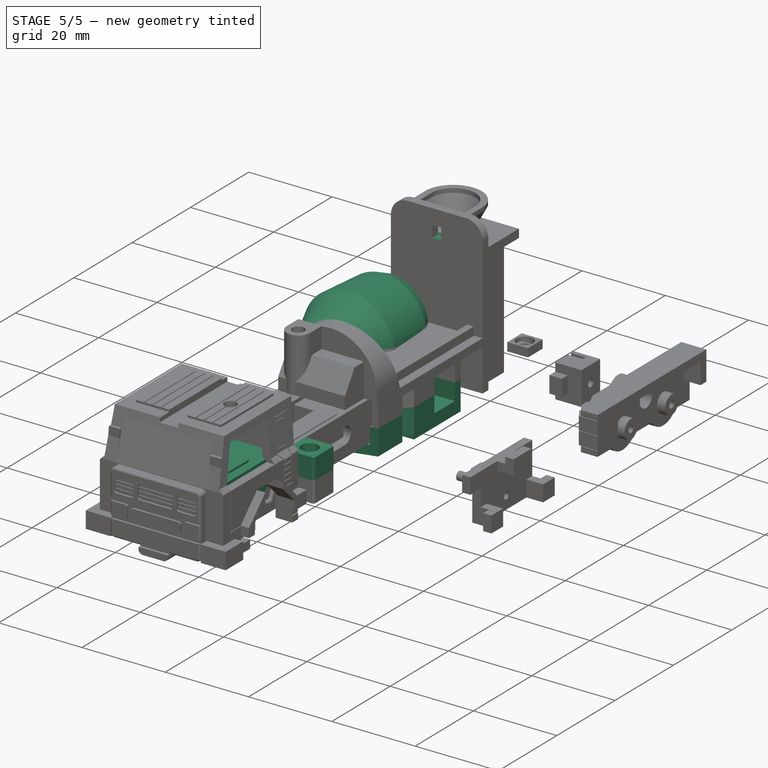
[diagram: stage 5 of 5 — iso view after this stage's code; geometry added in this stage tinted green]
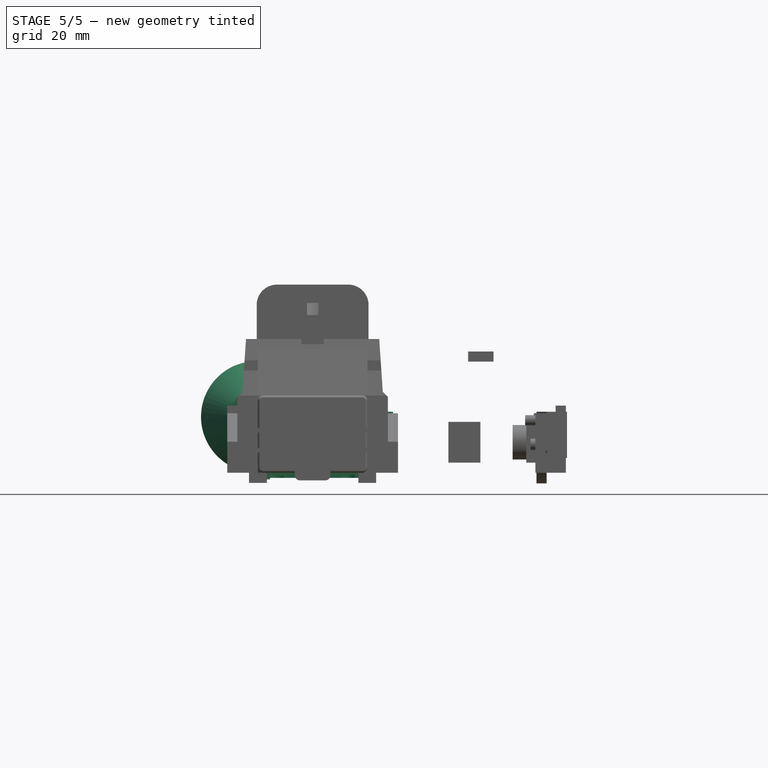
[diagram: stage 5 of 5 — front view after this stage's code; geometry added in this stage tinted green]
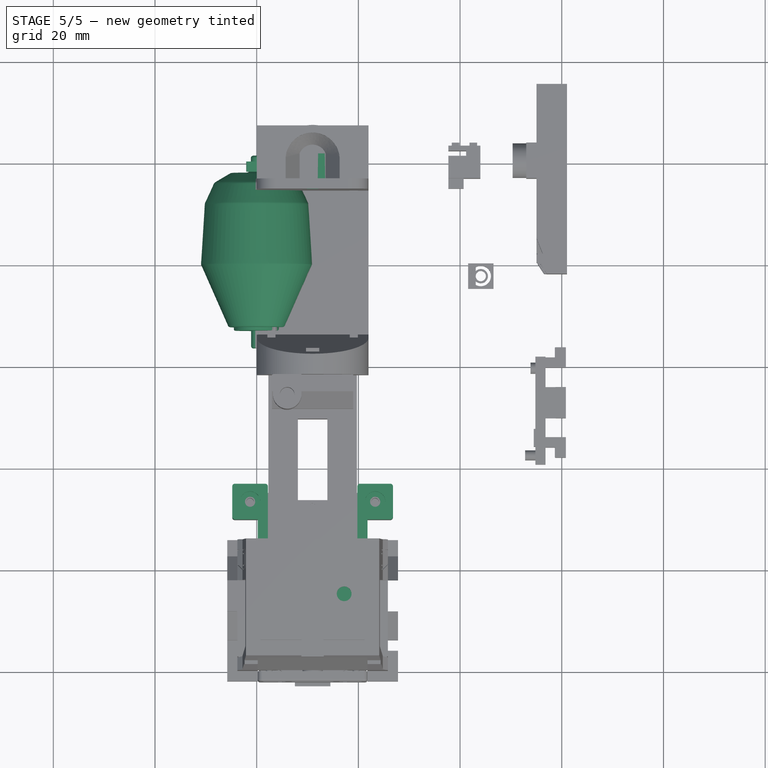
[diagram: stage 5 of 5 — top view after this stage's code; geometry added in this stage tinted green]
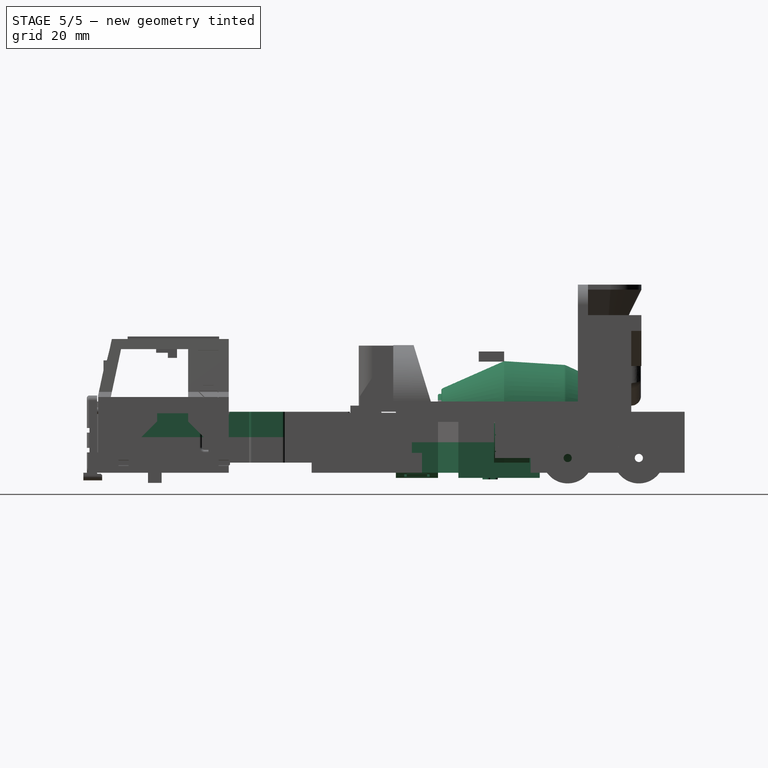
[diagram: stage 5 of 5 — right view after this stage's code; geometry added in this stage tinted green]
FEATURE [PartDesign::SubShapeBinder] Binder011
  BindCopyOnChange = 0
  BindMode = 2
  ClaimChildren = false
  Context = -> Body019 [Binder011.]
  Fuse = false
  MakeFace = true
  OffsetFill = false
  OffsetIntersection = false
  OffsetJoinType = 0
  OffsetOpenResult = false
  PartialLoad = false
  Refine = true
  Relative = true
  _Version = 2
FEATURE [Sketcher::SketchObject] Sketch188
  ArcFitTolerance = 1e-06
  AttachmentSupport = -> [Binder011]
  ExternalGeometry = -> [Binder011]
  FullyConstrained = true
  MakeInternals = false
  MapMode = 5
  Placement = pos=(2.2,0,2.08e-14) rot=(0.57735,-0.57735,-0.57735;2.0944rad)
  sketch-geometry (10):
    g0: LineSegment StartX=72.35 StartY=-4 StartZ=0 EndX=43.15 EndY=-4 EndZ=0
    g1: LineSegment StartX=43.15 StartY=-4 StartZ=0 EndX=43.15 EndY=1 EndZ=0
    g2: LineSegment StartX=43.15 StartY=1 StartZ=0 EndX=54.45 EndY=1 EndZ=0
    g3: LineSegment StartX=54.45 StartY=1 StartZ=0 EndX=54.45 EndY=3 EndZ=0
    g4: LineSegment StartX=54.45 StartY=3 StartZ=0 EndX=80.05 EndY=3 EndZ=0
    g5: LineSegment StartX=80.05 StartY=3 StartZ=0 EndX=80.05 EndY=-4 EndZ=0
    g6: LineSegment StartX=80.05 StartY=-4 StartZ=0 EndX=77.35 EndY=-4 EndZ=0
    g7: LineSegment StartX=77.35 StartY=-4 StartZ=0 EndX=77.35 EndY=0.1 EndZ=0
    g8: LineSegment StartX=77.35 StartY=0.1 StartZ=0 EndX=72.35 EndY=0.1 EndZ=0
    g9: LineSegment StartX=72.35 StartY=0.1 StartZ=0 EndX=72.35 EndY=-4 EndZ=0
  constraints (31):
    c: Horizontal(g0)
    c: Coincident(g1,g0)
    c: Vertical(g1)
    c: Coincident(g2,g1)
    c: Horizontal(g2)
    c: Coincident(g3,g2)
    c: Vertical(g3)
    c: Coincident(g4,g3)
    c: Horizontal(g4)
    c: Vertical(g5)
    c: Coincident(g6,g5)
    c: Horizontal(g6)
    c: Coincident(g7,g6)
    c: Vertical(g7)
    c: Coincident(g8,g7)
    c: Horizontal(g8)
    c: Vertical(g9)
    c: DistanceY(g1,g1) = 5
    c: DistanceX(g2,g2) = 11.3
    c: DistanceX(g4,g4) = 25.6
    c: DistanceY(g-4,g-4) = 4.8
    c: PointOnObject(g-5,g0)
    c: DistanceX(g2,g-4) = 0
    c: DistanceY(g3,g3) = 2
    c: Coincident(g5,g4)
    c: Coincident(g9,g0)
    c: DistanceY(g5,g5) = 7
    c: DistanceX(g8,g8) = 5
    c: DistanceY(g9,g9) = 4.1
    c: Coincident(g9,g8)
    c: DistanceX(g6,g6) = 2.7
FEATURE [PartDesign::Pad] Pad138
  Direction = (-1,1e-16,-9.4e-15)
  Length = 2
  Length2 = 10
  Profile = -> Sketch188
  ReferenceAxis = -> Sketch188 [N_Axis]
  Refine = true
  Suppressed = false
  Type = 0
FEATURE [Sketcher::SketchObject] Sketch189
  ArcFitTolerance = 1e-06
  AttachmentSupport = -> [Pad138]
  ExternalGeometry = -> [Pad138]
  FullyConstrained = true
  MakeInternals = false
  MapMode = 5
  Placement = pos=(-2.83e-14,3e-16,3) rot=(0,0,1;0rad)
  sketch-geometry (4):
    g0: LineSegment StartX=2.2 StartY=-54.45 StartZ=0 EndX=2.2 EndY=-80.05 EndZ=0
    g1: LineSegment StartX=2.2 StartY=-80.05 StartZ=0 EndX=19.8 EndY=-80.05 EndZ=0
    g2: LineSegment StartX=19.8 StartY=-80.05 StartZ=0 EndX=19.8 EndY=-54.45 EndZ=0
    g3: LineSegment StartX=19.8 StartY=-54.45 StartZ=0 EndX=2.2 EndY=-54.45 EndZ=0
  constraints (10):
    c: Coincident(g0,g1)
    c: Coincident(g1,g2)
    c: Coincident(g2,g3)
    c: Coincident(g3,g0)
    c: Vertical(g2)
    c: Horizontal(g1)
    c: Horizontal(g3)
    c: Coincident(g0,g-3)
    c: DistanceX(g1,g1) = 17.6
    c: Coincident(g0,g-5)
FEATURE [PartDesign::Pad] Pad139
  BaseFeature = -> Pad138
  Direction = (-9.4e-15,0,1)
  Length = 2
  Length2 = 10
  Profile = -> Sketch189
  ReferenceAxis = -> Sketch189 [N_Axis]
  Refine = true
  Reversed = true
  Suppressed = false
  Type = 0
FEATURE [Sketcher::SketchObject] Sketch190
  ArcFitTolerance = 1e-06
  AttachmentSupport = -> [Pad139]
  ExternalGeometry = -> [Pad139]
  FullyConstrained = true
  MakeInternals = false
  MapMode = 5
  Placement = pos=(19.8,0,1.869e-13) rot=(0.57735,0.57735,0.57735;2.0944rad)
  sketch-geometry (10):
    g0: LineSegment StartX=-80.05 StartY=-4 StartZ=0 EndX=-80.05 EndY=3 EndZ=0
    g1: LineSegment StartX=-80.05 StartY=3 StartZ=0 EndX=-54.45 EndY=3 EndZ=0
    g2: LineSegment StartX=-54.45 StartY=3 StartZ=0 EndX=-54.45 EndY=1 EndZ=0
    g3: LineSegment StartX=-54.45 StartY=1 StartZ=0 EndX=-43.15 EndY=1 EndZ=0
    g4: LineSegment StartX=-43.15 StartY=1 StartZ=0 EndX=-43.15 EndY=-4 EndZ=0
    g5: LineSegment StartX=-43.15 StartY=-4 StartZ=0 EndX=-72.35 EndY=-4 EndZ=0
    g6: LineSegment StartX=-72.35 StartY=-4 StartZ=0 EndX=-72.35 EndY=0.1 EndZ=0
    g7: LineSegment StartX=-72.35 StartY=0.1 StartZ=0 EndX=-77.35 EndY=0.1 EndZ=0
    g8: LineSegment StartX=-77.35 StartY=0.1 StartZ=0 EndX=-77.35 EndY=-4 EndZ=0
    g9: LineSegment StartX=-77.35 StartY=-4 StartZ=0 EndX=-80.05 EndY=-4 EndZ=0
  constraints (20):
    c: Coincident(g0,g-13)
    c: Coincident(g0,g-4)
    c: Coincident(g1,g0)
    c: Coincident(g1,g-5)
    c: Coincident(g2,g1)
    c: Coincident(g2,g-7)
    c: Coincident(g3,g2)
    c: Coincident(g3,g-7)
    c: Coincident(g4,g3)
    c: Coincident(g4,g-8)
    c: Coincident(g5,g4)
    c: Coincident(g5,g-9)
    c: Coincident(g6,g5)
    c: Coincident(g6,g-10)
    c: Coincident(g7,g6)
    c: Coincident(g7,g-11)
    c: Coincident(g8,g7)
    c: Coincident(g8,g-12)
    c: Coincident(g9,g8)
    c: Coincident(g9,g0)
FEATURE [PartDesign::Pad] Pad140
  BaseFeature = -> Pad139
  Direction = (1,0,9.3e-15)
  Length = 2
  Length2 = 10
  Profile = -> Sketch190
  ReferenceAxis = -> Sketch190 [N_Axis]
  Refine = true
  Suppressed = false
  Type = 0
FEATURE [Sketcher::SketchObject] Sketch191
  ArcFitTolerance = 1e-06
  AttachmentSupport = -> [Pad140]
  ExternalGeometry = -> [Pad140]
  FullyConstrained = true
  MakeInternals = false
  MapMode = 5
  Placement = pos=(2.88e-14,-80.05,-5.28e-14) rot=(1,0,0;1.5708rad)
  sketch-geometry (6):
    g0: LineSegment StartX=2.2 StartY=1 StartZ=0 EndX=2.2 EndY=-4 EndZ=0
    g1: LineSegment StartX=2.2 StartY=-4 StartZ=0 EndX=7.55 EndY=-4 EndZ=0
    g2: LineSegment StartX=2.2 StartY=1 StartZ=0 EndX=19.8 EndY=1 EndZ=0
    g3: LineSegment StartX=19.8 StartY=1 StartZ=0 EndX=19.8 EndY=-4 EndZ=0
    g4: LineSegment StartX=19.8 StartY=-4 StartZ=0 EndX=14.45 EndY=-4 EndZ=0
    g5: ArcOfCircle CenterX=11 CenterY=-4 CenterZ=0 NormalX=0 NormalY=0 NormalZ=1 AngleXU=0 Radius=3.45 StartAngle=3.14159 EndAngle=6.28319
  constraints (15):
    c: Coincident(g0,g-4)
    c: Coincident(g0,g-4)
    c: Coincident(g1,g0)
    c: Horizontal(g1)
    c: Coincident(g2,g0)
    c: Coincident(g2,g-5)
    c: Coincident(g3,g2)
    c: Coincident(g3,g-5)
    c: Coincident(g4,g3)
    c: Horizontal(g4)
    c: Coincident(g5,g1)
    c: Coincident(g5,g4)
    c: Diameter(g5) = 6.9
    c: DistanceY(g4,g5) = 0
    c: DistanceX(g0,g5) = 8.8
FEATURE [PartDesign::Pad] Pad141
  BaseFeature = -> Pad140
  Direction = (0,-1,2e-16)
  Length = 4
  Length2 = 10
  Profile = -> Sketch191
  ReferenceAxis = -> Sketch191 [N_Axis]
  Refine = true
  Reversed = true
  Suppressed = false
  Type = 0
FEATURE [PartDesign::Fillet] Fillet006
  Base = -> Pad141 [Edge30,Edge25]
  BaseFeature = -> Pad141
  Radius = 1.1
  Refine = true
  SupportTransform = false
  Suppressed = false
  UseAllEdges = false
FEATURE [Sketcher::SketchObject] Sketch192
  ArcFitTolerance = 1e-06
  AttachmentSupport = -> [Fillet006]
  ExternalGeometry = -> [Fillet006]
  FullyConstrained = true
  MakeInternals = false
  MapMode = 5
  Placement = pos=(2.16e-14,-80.05,3.066e-13) rot=(1,0,0;1.5708rad)
  sketch-geometry (4):
    g0: ArcOfCircle CenterX=11 CenterY=-4 CenterZ=0 NormalX=0 NormalY=0 NormalZ=1 AngleXU=0 Radius=2 StartAngle=3.14159 EndAngle=6.28319
    g1: LineSegment StartX=9 StartY=-4 StartZ=0 EndX=9 EndY=3 EndZ=0
    g2: LineSegment StartX=13 StartY=-4 StartZ=0 EndX=13 EndY=3 EndZ=0
    g3: LineSegment StartX=13 StartY=3 StartZ=0 EndX=9 EndY=3 EndZ=0
  constraints (13):
    c: Coincident(g1,g0)
    c: PointOnObject(g1,g-4)
    c: Vertical(g1)
    c: Coincident(g2,g0)
    c: PointOnObject(g2,g-4)
    c: Vertical(g2)
    c: Coincident(g3,g2)
    c: Coincident(g3,g1)
    c: Coincident(g0,g-3)
    c: DistanceY(g0,g0) = 0
    c: DistanceY(g0,g0) = 0
    c: Diameter(g-3) = 6.9
    c: Diameter(g0) = 4
FEATURE [PartDesign::Pocket] Pocket141
  BaseFeature = -> Fillet006
  Direction = (0,1,-4e-15)
  Length = 5.1
  Length2 = 5
  Profile = -> Sketch192
  ReferenceAxis = -> Sketch192 [N_Axis]
  Refine = true
  Suppressed = false
  Type = 0
FEATURE [Sketcher::SketchObject] Sketch193
  ArcFitTolerance = 1e-06
  AttachmentSupport = -> [Pocket141]
  ExternalGeometry = -> [Pocket141]
  FullyConstrained = true
  MakeInternals = false
  MapMode = 5
  Placement = pos=(2.16e-14,-80.05,3.066e-13) rot=(1,0,0;1.5708rad)
  sketch-geometry (8):
    g0: LineSegment StartX=21.8 StartY=3 StartZ=0 EndX=17.8 EndY=3 EndZ=0
    g1: LineSegment StartX=17.8 StartY=3 StartZ=0 EndX=17.8 EndY=-0.5 EndZ=0
    g2: LineSegment StartX=17.8 StartY=-0.5 StartZ=0 EndX=21.8 EndY=-0.5 EndZ=0
    g3: LineSegment StartX=21.8 StartY=-0.5 StartZ=0 EndX=21.8 EndY=3 EndZ=0
    g4: LineSegment StartX=0.2 StartY=3 StartZ=0 EndX=0.2 EndY=-0.5 EndZ=0
    g5: LineSegment StartX=0.2 StartY=-0.5 StartZ=0 EndX=4.2 EndY=-0.5 EndZ=0
    g6: LineSegment StartX=4.2 StartY=-0.5 StartZ=0 EndX=4.2 EndY=3 EndZ=0
    g7: LineSegment StartX=4.2 StartY=3 StartZ=0 EndX=0.2 EndY=3 EndZ=0
  constraints (22):
    c: Coincident(g0,g1)
    c: Coincident(g1,g2)
    c: Coincident(g2,g3)
    c: Coincident(g3,g0)
    c: Horizontal(g0)
    c: Horizontal(g2)
    c: Vertical(g1)
    c: Vertical(g3)
    c: Coincident(g0,g-6)
    c: Coincident(g4,g5)
    c: Coincident(g5,g6)
    c: Coincident(g6,g7)
    c: Coincident(g7,g4)
    c: Vertical(g4)
    c: Vertical(g6)
    c: Horizontal(g5)
    c: Horizontal(g7)
    c: Coincident(g4,g-4)
    c: DistanceX(g5,g5) = 4
    c: DistanceX(g2,g2) = 4
    c: DistanceY(g1,g1) = 3.5
    c: DistanceY(g6,g6) = 3.5
FEATURE [PartDesign::Pocket] Pocket142
  BaseFeature = -> Pocket141
  Direction = (0,1,-4e-15)
  Length = 2.1
  Length2 = 5
  Profile = -> Sketch193
  ReferenceAxis = -> Sketch193 [N_Axis]
  Refine = true
  Suppressed = false
  Type = 0
FEATURE [PartDesign::Fillet] Fillet007
  Base = -> Pocket142 [Edge81,Edge79,Edge83,Edge29]
  BaseFeature = -> Pocket142
  Radius = 1
  Refine = true
  SupportTransform = false
  Suppressed = false
  UseAllEdges = false
FEATURE [Sketcher::SketchObject] Sketch194
  ArcFitTolerance = 1e-06
  AttachmentSupport = -> [Fillet007]
  ExternalGeometry = -> [Fillet007]
  FullyConstrained = true
  MakeInternals = false
  MapMode = 5
  Placement = pos=(-2.45e-14,0,3) rot=(0,0,1;0rad)
  sketch-geometry (12):
    g0: LineSegment StartX=2.2 StartY=-62.85 StartZ=0 EndX=2.2 EndY=-68.85 EndZ=0
    g1: LineSegment StartX=3.2 StartY=-69.85 StartZ=0 EndX=18.8 EndY=-69.85 EndZ=0
    g2: LineSegment StartX=19.8 StartY=-68.85 StartZ=0 EndX=19.8 EndY=-62.85 EndZ=0
    g3: LineSegment StartX=18.8 StartY=-61.85 StartZ=0 EndX=3.2 EndY=-61.85 EndZ=0
    g4: ArcOfCircle CenterX=3.2 CenterY=-68.85 CenterZ=0 NormalX=0 NormalY=0 NormalZ=1 AngleXU=0 Radius=1 StartAngle=3.14159 EndAngle=4.71239
    g5: GeomPoint [constr] X=2.2 Y=-69.85 Z=0
    g6: ArcOfCircle CenterX=18.8 CenterY=-68.85 CenterZ=0 NormalX=0 NormalY=0 NormalZ=1 AngleXU=0 Radius=1 StartAngle=4.71239 EndAngle=6.28319
    g7: GeomPoint [constr] X=19.8 Y=-69.85 Z=0
    g8: ArcOfCircle CenterX=18.8 CenterY=-62.85 CenterZ=0 NormalX=0 NormalY=0 NormalZ=1 AngleXU=0 Radius=1 StartAngle=-2.7e-15 EndAngle=1.5708
    g9: GeomPoint [constr] X=19.8 Y=-61.85 Z=0
    g10: ArcOfCircle CenterX=3.2 CenterY=-62.85 CenterZ=0 NormalX=0 NormalY=0 NormalZ=1 AngleXU=0 Radius=1 StartAngle=1.5708 EndAngle=3.14159
    g11: GeomPoint [constr] X=2.2 Y=-61.85 Z=0
  constraints (28):
    c: Vertical(g0)
    c: Vertical(g2)
    c: Horizontal(g1)
    c: Horizontal(g3)
    c: PointOnObject(g5,g0)
    c: PointOnObject(g5,g1)
    c: Tangent(g0,g4) = -1.5708
    c: Tangent(g1,g4) = -1.5708
    c: PointOnObject(g7,g1)
    c: PointOnObject(g7,g2)
    c: Tangent(g1,g6) = -1.5708
    c: Tangent(g2,g6) = -1.5708
    c: PointOnObject(g9,g2)
    c: PointOnObject(g9,g3)
    c: Tangent(g2,g8) = -1.5708
    c: Tangent(g3,g8) = -1.5708
    c: PointOnObject(g11,g0)
    c: PointOnObject(g11,g3)
    c: Tangent(g0,g10) = -1.5708
    c: Tangent(g3,g10) = -1.5708
    c: Radius(g10) = 1
    c: Radius(g8) = 1
    c: Radius(g6) = 1
    c: Radius(g4) = 1
    c: DistanceY(g-3,g1) = 10.2
    c: DistanceX(g-5,g0) = 2
    c: DistanceX(g2,g-4) = 2
    c: DistanceY(g1,g3) = 8
FEATURE [PartDesign::Pad] Pad142
  BaseFeature = -> Fillet007
  Direction = (-8.1e-15,0,1)
  Length = 0.5
  Length2 = 10
  Profile = -> Sketch194
  ReferenceAxis = -> Sketch194 [N_Axis]
  Refine = true
  Suppressed = false
  Type = 0
FEATURE [Sketcher::SketchObject] Sketch195
  ArcFitTolerance = 1e-06
  AttachmentSupport = -> [Pad142]
  ExternalGeometry = -> [Pad142]
  FullyConstrained = true
  MakeInternals = false
  MapMode = 5
  Placement = pos=(0.2,0,1.9e-15) rot=(0.57735,-0.57735,-0.57735;2.0944rad)
  sketch-geometry (5):
    g0: LineSegment StartX=54.45 StartY=1 StartZ=0 EndX=56.45 EndY=-4 EndZ=0
    g1: LineSegment StartX=56.45 StartY=-4 StartZ=0 EndX=59.45 EndY=-4 EndZ=0
    g2: LineSegment StartX=59.45 StartY=-4 StartZ=0 EndX=59.45 EndY=3 EndZ=0
    g3: LineSegment StartX=59.45 StartY=3 StartZ=0 EndX=54.45 EndY=3 EndZ=0
    g4: LineSegment StartX=54.45 StartY=3 StartZ=0 EndX=54.45 EndY=1 EndZ=0
  constraints (13):
    c: Coincident(g0,g-3)
    c: PointOnObject(g0,g-5)
    c: Coincident(g1,g0)
    c: PointOnObject(g1,g-5)
    c: Coincident(g2,g1)
    c: PointOnObject(g2,g-4)
    c: Vertical(g2)
    c: Coincident(g3,g2)
    c: Coincident(g3,g-4)
    c: Coincident(g4,g3)
    c: Coincident(g4,g0)
    c: DistanceX(g3,g3) = 5
    c: DistanceX(g1,g1) = 3
FEATURE [PartDesign::Pocket] Pocket143
  BaseFeature = -> Pad142
  Direction = (1,0,9.3e-15)
  Length = 0.75
  Length2 = 5
  Profile = -> Sketch195
  ReferenceAxis = -> Sketch195 [N_Axis]
  Refine = true
  Suppressed = false
  Type = 0
FEATURE [PartDesign::Fillet] Fillet008
  Base = -> Pocket143 [Edge128,Edge5]
  BaseFeature = -> Pocket143
  Radius = 0.5
  Refine = true
  SupportTransform = false
  Suppressed = false
  UseAllEdges = false
FEATURE [Sketcher::SketchObject] Sketch196
  ArcFitTolerance = 1e-06
  AttachmentSupport = -> [Fillet008]
  ExternalGeometry = -> [Fillet008]
  FullyConstrained = true
  MakeInternals = false
  MapMode = 5
  Placement = pos=(21.8,0,2.102e-13) rot=(0.57735,0.57735,0.57735;2.0944rad)
  sketch-geometry (5):
    g0: LineSegment StartX=-54.45 StartY=1 StartZ=0 EndX=-56.45 EndY=-4 EndZ=0
    g1: LineSegment StartX=-56.45 StartY=-4 StartZ=0 EndX=-59.45 EndY=-4 EndZ=0
    g2: LineSegment StartX=-59.45 StartY=-4 StartZ=0 EndX=-59.45 EndY=3 EndZ=0
    g3: LineSegment StartX=-59.45 StartY=3 StartZ=0 EndX=-54.45 EndY=3 EndZ=0
    g4: LineSegment StartX=-54.45 StartY=3 StartZ=0 EndX=-54.45 EndY=1 EndZ=0
  constraints (13):
    c: Coincident(g0,g-4)
    c: PointOnObject(g0,g-6)
    c: Coincident(g1,g0)
    c: PointOnObject(g1,g-6)
    c: Coincident(g2,g1)
    c: PointOnObject(g2,g-5)
    c: Vertical(g2)
    c: Coincident(g3,g2)
    c: Coincident(g3,g-5)
    c: Coincident(g4,g3)
    c: Coincident(g4,g0)
    c: DistanceX(g1,g1) = 3
    c: DistanceX(g3,g3) = 5
FEATURE [PartDesign::Pocket] Pocket144
  BaseFeature = -> Fillet008
  Direction = (-1,-1e-16,-9.4e-15)
  Length = 0.75
  Length2 = 5
  Profile = -> Sketch196
  ReferenceAxis = -> Sketch196 [N_Axis]
  Refine = true
  Suppressed = false
  Type = 0
FEATURE [PartDesign::Fillet] Fillet009
  Base = -> Pocket144 [Edge81,Edge159]
  BaseFeature = -> Pocket144
  Radius = 0.5
  Refine = true
  SupportTransform = false
  Suppressed = false
  UseAllEdges = false
FEATURE [Sketcher::SketchObject] Sketch197
  ArcFitTolerance = 1e-06
  AttachmentSupport = -> [Fillet009]
  ExternalGeometry = -> [Fillet009]
  FullyConstrained = true
  MakeInternals = false
  MapMode = 5
  Placement = pos=(0.2,0,1.9e-15) rot=(0.57735,-0.57735,-0.57735;2.0944rad)
  sketch-geometry (4):
    g0: LineSegment StartX=43.15 StartY=1 StartZ=0 EndX=43.15 EndY=-4 EndZ=0
    g1: LineSegment StartX=43.15 StartY=-4 StartZ=0 EndX=50.15 EndY=-4 EndZ=0
    g2: LineSegment StartX=50.15 StartY=-4 StartZ=0 EndX=50.15 EndY=1 EndZ=0
    g3: LineSegment StartX=50.15 StartY=1 StartZ=0 EndX=43.15 EndY=1 EndZ=0
  constraints (11):
    c: Coincident(g0,g1)
    c: Coincident(g1,g2)
    c: Coincident(g2,g3)
    c: Coincident(g3,g0)
    c: Vertical(g0)
    c: Vertical(g2)
    c: Horizontal(g1)
    c: Horizontal(g3)
    c: Coincident(g0,g-3)
    c: PointOnObject(g1,g-4)
    c: DistanceX(g3,g3) = 7
FEATURE [PartDesign::Pad] Pad143
  BaseFeature = -> Fillet009
  Direction = (-1,0,-9.3e-15)
  Length = 5
  Length2 = 10
  Profile = -> Sketch197
  ReferenceAxis = -> Sketch197 [N_Axis]
  Refine = true
  Suppressed = false
  Type = 0
FEATURE [Sketcher::SketchObject] Sketch198
  ArcFitTolerance = 1e-06
  AttachmentSupport = -> [Pad143]
  ExternalGeometry = -> [Pad143]
  FullyConstrained = true
  MakeInternals = false
  MapMode = 5
  Placement = pos=(21.8,0,2.102e-13) rot=(0.57735,0.57735,0.57735;2.0944rad)
  sketch-geometry (4):
    g0: LineSegment StartX=-43.15 StartY=1 StartZ=0 EndX=-50.15 EndY=1 EndZ=0
    g1: LineSegment StartX=-50.15 StartY=1 StartZ=0 EndX=-50.15 EndY=-4 EndZ=0
    g2: LineSegment StartX=-50.15 StartY=-4 StartZ=0 EndX=-43.15 EndY=-4 EndZ=0
    g3: LineSegment StartX=-43.15 StartY=-4 StartZ=0 EndX=-43.15 EndY=1 EndZ=0
  constraints (11):
    c: Coincident(g0,g1)
    c: Coincident(g1,g2)
    c: Coincident(g2,g3)
    c: Coincident(g3,g0)
    c: Horizontal(g0)
    c: Horizontal(g2)
    c: Vertical(g1)
    c: Vertical(g3)
    c: Coincident(g0,g-3)
    c: PointOnObject(g1,g-4)
    c: DistanceX(g0,g0) = 7
FEATURE [PartDesign::Pad] Pad144
  BaseFeature = -> Pad143
  Direction = (1,1e-16,9.4e-15)
  Length = 5
  Length2 = 10
  Profile = -> Sketch198
  ReferenceAxis = -> Sketch198 [N_Axis]
  Refine = true
  Suppressed = false
  Type = 0
FEATURE [PartDesign::Fillet] Fillet010
  Base = -> Pad144 [Edge189,Edge192,Edge183,Edge182]
  BaseFeature = -> Pad144
  Radius = 0.5
  Refine = true
  SupportTransform = false
  Suppressed = false
  UseAllEdges = false
FEATURE [Sketcher::SketchObject] Sketch199
  ArcFitTolerance = 1e-06
  AttachmentSupport = -> [Fillet010]
  ExternalGeometry = -> [Fillet010]
  FullyConstrained = true
  MakeInternals = false
  MapMode = 5
  Placement = pos=(-1.46e-14,6e-16,1) rot=(0,0,1;0rad)
  sketch-geometry (2):
    g0: Circle CenterX=-1.3 CenterY=-46.65 CenterZ=0 NormalX=0 NormalY=0 NormalZ=1 AngleXU=0 Radius=2
    g1: Circle CenterX=23.3 CenterY=-46.65 CenterZ=0 NormalX=0 NormalY=0 NormalZ=1 AngleXU=0 Radius=2
  constraints (8):
    c: Diameter(g0) = 4
    c: Diameter(g1) = 4
    c: DistanceX(g-6,g-4) = 7
    c: DistanceY(g-5,g-3) = 7
    c: DistanceX(g-6,g0) = 3.5
    c: DistanceX(g1,g-9) = 3.5
    c: DistanceY(g1,g-7) = 3.5
    c: DistanceY(g0,g-3) = 3.5
FEATURE [PartDesign::Pocket] Pocket145
  BaseFeature = -> Fillet010
  Direction = (1.46e-14,0,-1)
  Length = 2
  Length2 = 5
  Profile = -> Sketch199
  ReferenceAxis = -> Sketch199 [N_Axis]
  Refine = true
  Suppressed = false
  Type = 0
FEATURE [Sketcher::SketchObject] Sketch200
  ArcFitTolerance = 1e-06
  AttachmentSupport = -> [Pocket145]
  ExternalGeometry = -> [Pocket145]
  FullyConstrained = true
  MakeInternals = false
  MapMode = 5
  Placement = pos=(3.74e-14,0,-4) rot=(1,0,0;3.14159rad)
  sketch-geometry (2):
    g0: Circle CenterX=-1.3 CenterY=46.65 CenterZ=0 NormalX=0 NormalY=0 NormalZ=1 AngleXU=0 Radius=2
    g1: Circle CenterX=23.3 CenterY=46.65 CenterZ=0 NormalX=0 NormalY=0 NormalZ=1 AngleXU=0 Radius=2
  constraints (8):
    c: Diameter(g0) = 4
    c: Diameter(g1) = 4
    c: DistanceX(g-8,g-10) = 7
    c: DistanceX(g-9,g-7) = 0
    c: DistanceX(g-8,g0) = 3.5
    c: DistanceX(g1,g-4) = 3.5
    c: DistanceY(g1,g-3) = 3.5
    c: DistanceY(g0,g-7) = 3.5
FEATURE [PartDesign::Pocket] Pocket146
  BaseFeature = -> Pocket145
  Direction = (-9.4e-15,0,1)
  Length = 2.2
  Length2 = 5
  Profile = -> Sketch200
  ReferenceAxis = -> Sketch200 [N_Axis]
  Refine = true
  Suppressed = false
  Type = 0
FEATURE [Sketcher::SketchObject] Sketch201
  ArcFitTolerance = 1e-06
  AttachmentSupport = -> [Pocket146]
  ExternalGeometry = -> [Pocket146]
  FullyConstrained = true
  MakeInternals = false
  MapMode = 5
  Placement = pos=(1.46e-14,0,-1) rot=(0,0,1;0rad)
  sketch-geometry (2):
    g0: Circle CenterX=-1.3 CenterY=-46.65 CenterZ=0 NormalX=0 NormalY=0 NormalZ=1 AngleXU=0 Radius=1
    g1: Circle CenterX=23.3 CenterY=-46.65 CenterZ=0 NormalX=0 NormalY=0 NormalZ=1 AngleXU=0 Radius=1
  constraints (4):
    c: Coincident(g0,g-4)
    c: Coincident(g1,g-3)
    c: Diameter(g0) = 2
    c: Diameter(g1) = 2
FEATURE [PartDesign::Pocket] Pocket147
  BaseFeature = -> Pocket146
  Direction = (1.46e-14,0,-1)
  Length = 5
  Length2 = 5
  Profile = -> Sketch201
  ReferenceAxis = -> Sketch201 [N_Axis]
  Refine = true
  Suppressed = false
  Type = 0
FEATURE [Sketcher::SketchObject] Sketch202
  ArcFitTolerance = 1e-06
  AttachmentSupport = -> [Pocket147]
  ExternalGeometry = -> [Pocket147]
  FullyConstrained = true
  MakeInternals = false
  MapMode = 5
  Placement = pos=(2.2,0,2.07e-14) rot=(0.57735,0.57735,0.57735;2.0944rad)
  sketch-geometry (1):
    g0: Circle CenterX=-48.15 CenterY=-4 CenterZ=0 NormalX=0 NormalY=0 NormalZ=1 AngleXU=0 Radius=2
  constraints (4):
    c: Diameter(g0) = 4
    c: DistanceY(g-4,g-4) = 5
    c: DistanceY(g-5,g0) = 0
    c: DistanceX(g0,g-5) = 5
FEATURE [PartDesign::Pad] Pad145
  BaseFeature = -> Pocket147
  Direction = (1,0,9.3e-15)
  Length = 2
  Length2 = 10
  Profile = -> Sketch202
  ReferenceAxis = -> Sketch202 [N_Axis]
  Refine = true
  Suppressed = false
  Type = 0
FEATURE [Sketcher::SketchObject] Sketch203
  ArcFitTolerance = 1e-06
  AttachmentSupport = -> [Pad145]
  ExternalGeometry = -> [Pad145]
  FullyConstrained = true
  MakeInternals = false
  MapMode = 5
  Placement = pos=(4.2,0,3.88e-14) rot=(0.57735,0.57735,0.57735;2.0944rad)
  sketch-geometry (1):
    g0: Circle CenterX=-48.15 CenterY=-4 CenterZ=0 NormalX=0 NormalY=0 NormalZ=1 AngleXU=0 Radius=3
  constraints (2):
    c: Coincident(g0,g-3)
    c: Diameter(g0) = 6
FEATURE [PartDesign::Pad] Pad146
  BaseFeature = -> Pad145
  Direction = (1,0,9.3e-15)
  Length = 2
  Length2 = 10
  Profile = -> Sketch203
  ReferenceAxis = -> Sketch203 [N_Axis]
  Refine = true
  Suppressed = false
  Type = 0
FEATURE [Sketcher::SketchObject] Sketch204
  ArcFitTolerance = 1e-06
  AttachmentSupport = -> [Pad146]
  ExternalGeometry = -> [Pad146]
  FullyConstrained = true
  MakeInternals = false
  MapMode = 5
  Placement = pos=(19.8,0,1.909e-13) rot=(0.57735,-0.57735,-0.57735;2.0944rad)
  sketch-geometry (1):
    g0: Circle CenterX=48.15 CenterY=-4 CenterZ=0 NormalX=0 NormalY=0 NormalZ=1 AngleXU=0 Radius=2
  constraints (3):
    c: PointOnObject(g0,g-3)
    c: Radius(g0) = 2
    c: DistanceX(g-4,g0) = 5
FEATURE [PartDesign::Pad] Pad147
  BaseFeature = -> Pad146
  Direction = (-1,1e-16,-9.4e-15)
  Length = 2
  Length2 = 10
  Profile = -> Sketch204
  ReferenceAxis = -> Sketch204 [N_Axis]
  Refine = true
  Suppressed = false
  Type = 0
FEATURE [Sketcher::SketchObject] Sketch205
  ArcFitTolerance = 1e-06
  AttachmentSupport = -> [Pad147]
  ExternalGeometry = -> [Pad147]
  FullyConstrained = true
  MakeInternals = false
  MapMode = 5
  Placement = pos=(17.8,-1.05e-14,1.643e-13) rot=(0.57735,-0.57735,-0.57735;2.0944rad)
  sketch-geometry (1):
    g0: Circle CenterX=48.15 CenterY=-4 CenterZ=0 NormalX=0 NormalY=0 NormalZ=1 AngleXU=0 Radius=3
  constraints (2):
    c: Coincident(g0,g-3)
    c: Diameter(g0) = 6
FEATURE [PartDesign::Pad] Pad148
  BaseFeature = -> Pad147
  Direction = (-1,0,-9.3e-15)
  Length = 2
  Length2 = 10
  Profile = -> Sketch205
  ReferenceAxis = -> Sketch205 [N_Axis]
  Refine = true
  Suppressed = false
  Type = 0
FEATURE [PartDesign::Fillet] Fillet011
  Base = -> Pad148 [Edge14,Edge148]
  BaseFeature = -> Pad148
  Radius = 0.5
  Refine = true
  SupportTransform = false
  Suppressed = false
  UseAllEdges = false
FEATURE [Sketcher::SketchObject] Sketch013
  ArcFitTolerance = 1e-06
  AttachmentSupport = -> [XY_Plane001]
  FullyConstrained = true
  MakeInternals = false
  MapMode = 5
  sketch-geometry (27):
    g0: LineSegment StartX=10.95 StartY=0 StartZ=0 EndX=10.2116 EndY=11.7914 EndZ=0
    g1: LineSegment StartX=10.1227 StartY=12.1452 StartZ=0 EndX=8.45642 EndY=15.7837 EndZ=0
    g2: LineSegment StartX=8.05744 StartY=16.2274 StartZ=0 EndX=5.30529 EndY=17.86 EndZ=0
    g3: ArcOfCircle CenterX=9.21355 CenterY=11.7289 CenterZ=0 NormalX=0 NormalY=0 NormalZ=1 AngleXU=0 Radius=1 StartAngle=0.0625408 EndAngle=0.429466
    g4: GeomPoint [constr] X=10.2 Y=11.9765 Z=0
    g5: ArcOfCircle CenterX=7.54723 CenterY=15.3673 CenterZ=0 NormalX=0 NormalY=0 NormalZ=1 AngleXU=0 Radius=1 StartAngle=0.429466 EndAngle=1.03536
    g6: GeomPoint [constr] X=8.32627 Y=16.0679 Z=0
    g7: ArcOfCircle CenterX=4.79507 CenterY=17 CenterZ=0 NormalX=0 NormalY=0 NormalZ=1 AngleXU=0 Radius=1 StartAngle=1.03536 EndAngle=1.5708
    g8: LineSegment StartX=10.95 StartY=0 StartZ=0 EndX=9.95 EndY=0 EndZ=0
    g9: LineSegment StartX=9.95 StartY=0 StartZ=0 EndX=9.95 EndY=1 EndZ=0
    g10: LineSegment StartX=9.95 StartY=1 StartZ=0 EndX=9.45 EndY=1 EndZ=0
    g11: LineSegment StartX=9.45 StartY=1 StartZ=0 EndX=8.80722 EndY=11.2644 EndZ=0
    g12: LineSegment StartX=8.71836 StartY=11.6182 StartZ=0 EndX=7.14 EndY=15.0646 EndZ=0
    g13: LineSegment StartX=6.74102 StartY=15.5083 StartZ=0 EndX=5.30528 EndY=16.36 EndZ=0
    g14: LineSegment StartX=4.79506 StartY=16.5 StartZ=0 EndX=0 EndY=16.5 EndZ=0
    g15: ArcOfCircle CenterX=4.79506 CenterY=15.5 CenterZ=0 NormalX=0 NormalY=0 NormalZ=1 AngleXU=0 Radius=1 StartAngle=1.03536 EndAngle=1.5708
    g16: GeomPoint [constr] X=5.06937 Y=16.5 Z=0
    g17: ArcOfCircle CenterX=6.23081 CenterY=14.6483 CenterZ=0 NormalX=0 NormalY=0 NormalZ=1 AngleXU=0 Radius=1 StartAngle=0.429466 EndAngle=1.03536
    g18: GeomPoint [constr] X=7.00985 Y=15.3488 Z=0
    g19: ArcOfCircle CenterX=7.80918 CenterY=11.2019 CenterZ=0 NormalX=0 NormalY=0 NormalZ=1 AngleXU=0 Radius=1 StartAngle=0.0625408 EndAngle=0.429466
    g20: GeomPoint [constr] X=8.79562 Y=11.4495 Z=0
    g21: LineSegment StartX=4.79507 StartY=18 StartZ=0 EndX=2.15 EndY=18 EndZ=0
    g22: ArcOfCircle CenterX=2.15 CenterY=19 CenterZ=0 NormalX=0 NormalY=0 NormalZ=1 AngleXU=0 Radius=1 StartAngle=3.14159 EndAngle=4.71239
    g23: LineSegment StartX=1.15 StartY=19 StartZ=0 EndX=1.15 EndY=20.9 EndZ=0
    g24: ArcOfCircle CenterX=0.65 CenterY=20.9 CenterZ=0 NormalX=0 NormalY=0 NormalZ=1 AngleXU=0 Radius=0.5 StartAngle=3e-16 EndAngle=1.5708
    g25: LineSegment StartX=0.65 StartY=21.4 StartZ=0 EndX=0 EndY=21.4 EndZ=0
    g26: LineSegment StartX=0 StartY=21.4 StartZ=0 EndX=0 EndY=16.5 EndZ=0
  constraints (72):
    c: PointOnObject(g0,g-1)
    c: DistanceX(g-1,g0) = 10.95
    c: DistanceX(g-1,g4) = 10.2
    c: Distance(g4,g0) = 12
    c: Distance(g6,g4) = 4.5
    c: PointOnObject(g4,g0)
    c: PointOnObject(g4,g1)
    c: Tangent(g0,g3) = -1.5708
    c: Tangent(g1,g3) = -1.5708
    c: PointOnObject(g6,g1)
    c: PointOnObject(g6,g2)
    c: Tangent(g1,g5) = -1.5708
    c: Tangent(g2,g5) = -1.5708
    c: Tangent(g2,g7) = -1.5708
    c: Radius(g3) = 1
    c: Radius(g5) = 1
    c: Radius(g7) = 1
    c: Coincident(g8,g0)
    c: PointOnObject(g8,g-1)
    c: DistanceX(g8,g8) = 1
    c: Coincident(g9,g8)
    c: Coincident(g10,g9)
    c: Horizontal(g10)
    c: DistanceX(g10,g10) = 0.5
    c: Distance(g9) = 1
    c: Vertical(g9)
    c: Coincident(g11,g10)
    c: PointOnObject(g14,g-2)
    c: Horizontal(g14)
    c: PointOnObject(g16,g13)
    c: PointOnObject(g16,g14)
    c: Tangent(g13,g15) = -1.5708
    c: Tangent(g14,g15) = -1.5708
    c: PointOnObject(g18,g12)
    c: PointOnObject(g18,g13)
    c: Tangent(g12,g17) = -1.5708
    c: Tangent(g13,g17) = -1.5708
    c: PointOnObject(g20,g11)
    c: PointOnObject(g20,g12)
    c: Tangent(g11,g19) = -1.5708
    c: Tangent(g12,g19) = -1.5708
    c: Radius(g15) = 1
    c: Radius(g17) = 1
    c: Radius(g19) = 1
    c: Parallel(g12,g1)
    c: Parallel(g11,g0)
    c: Parallel(g13,g2)
    c: Distance(g11,g0) = 1.5
    c: Distance(g2,g13) = 1.5
    c: Tangent(g21,g7) = -1.5708
    c: Horizontal(g21)
    c: Coincident(g22,g21)
    c: Coincident(g23,g22)
    c: Vertical(g23)
    c: Coincident(g24,g23)
    c: Coincident(g25,g24)
    c: PointOnObject(g25,g-2)
    c: Horizontal(g25)
    c: Coincident(g26,g25)
    c: Coincident(g26,g14)
    c: DistanceX(g25,g22) = 1.15
    c: DistanceY(g21,g25) = 3.4
    c: DistanceY(g14,g21) = 1.5
    c: DistanceY(g23,g24) = 0
    c: DistanceX(g24,g24) = 0
    c: Radius(g24) = 0.5
    c: DistanceY(g22,g22) = 0
    c: DistanceX(g21,g22) = 0
    c: DistanceY(g-1,g21) = 18
    c: Radius(g22) = 1
    c: Distance(g2,g2) = 3.2
    c: Distance(g2,g13) = 1.5
FEATURE [PartDesign::Revolution] Revolution
  Angle = 360
  Angle2 = 60
  Axis = (0,1,0)
  Base = (0,0,0)
  Profile = -> Sketch013
  ReferenceAxis = -> Sketch013 [V_Axis]
  Refine = true
  Reversed = true
  Suppressed = false
  Type = 0
FEATURE [PartDesign::Body] Body001  label="Lower_Mix_Drum"
  AllowCompound = false
  Group = -> [Sketch013,Revolution]
  Origin = -> Origin001
  Placement = pos=(44,14.5663,15.5588) rot=(1,0,0;0.296706rad)
  Tip = -> Revolution
FEATURE [Sketcher::SketchObject] Sketch014
  ArcFitTolerance = 1e-06
  AttachmentSupport = -> [YZ_Plane003]
  FullyConstrained = true
  MakeInternals = false
  MapMode = 5
  Placement = pos=(0,0,0) rot=(0.57735,0.57735,0.57735;2.0944rad)
  sketch-geometry (18):
    g0: LineSegment StartX=0 StartY=10.95 StartZ=0 EndX=-12.0529 EndY=5.63156 EndZ=0
    g1: LineSegment StartX=-12.351 StartY=5.17412 StartZ=0 EndX=-12.351 EndY=4.5 EndZ=0
    g2: LineSegment StartX=-12.351 StartY=4.5 StartZ=0 EndX=-12.731 EndY=4.5 EndZ=0
    g3: LineSegment StartX=-13.031 StartY=4.2 StartZ=0 EndX=-13.031 EndY=1.1 EndZ=0
    g4: LineSegment StartX=0 StartY=10.95 StartZ=0 EndX=0 EndY=9.95 EndZ=0
    g5: LineSegment StartX=0 StartY=9.95 StartZ=0 EndX=1 EndY=9.95 EndZ=0
    g6: LineSegment StartX=1 StartY=9.95 StartZ=0 EndX=1 EndY=9.45 EndZ=0
    g7: LineSegment StartX=1 StartY=9.45 StartZ=0 EndX=0 EndY=9.45 EndZ=0
    g8: LineSegment StartX=0 StartY=9.45 StartZ=0 EndX=-11.531 EndY=4.36183 EndZ=0
    g9: LineSegment StartX=-11.531 StartY=4.36183 StartZ=0 EndX=-11.531 EndY=0 EndZ=0
    g10: LineSegment StartX=-13.031 StartY=1.1 StartZ=0 EndX=-16.031 EndY=1.1 EndZ=0
    g11: ArcOfCircle CenterX=-16.031 CenterY=0.6 CenterZ=0 NormalX=0 NormalY=0 NormalZ=1 AngleXU=0 Radius=0.5 StartAngle=1.5708 EndAngle=3.14159
    g12: LineSegment StartX=-16.531 StartY=0.6 StartZ=0 EndX=-16.531 EndY=0 EndZ=0
    g13: LineSegment StartX=-16.531 StartY=0 StartZ=0 EndX=-11.531 EndY=0 EndZ=0
    g14: ArcOfCircle CenterX=-11.851 CenterY=5.17412 CenterZ=0 NormalX=0 NormalY=0 NormalZ=1 AngleXU=0 Radius=0.5 StartAngle=1.98636 EndAngle=3.14159
    g15: GeomPoint [constr] X=-12.351 Y=5.5 Z=0
    g16: ArcOfCircle CenterX=-12.731 CenterY=4.2 CenterZ=0 NormalX=0 NormalY=0 NormalZ=1 AngleXU=0 Radius=0.3 StartAngle=1.5708 EndAngle=3.14159
    g17: GeomPoint [constr] X=-13.031 Y=4.5 Z=0
  constraints (51):
    c: PointOnObject(g0,g-2)
    c: Vertical(g1)
    c: Coincident(g2,g1)
    c: Horizontal(g2)
    c: Vertical(g3)
    c: Coincident(g4,g0)
    c: PointOnObject(g4,g-2)
    c: Coincident(g5,g4)
    c: Horizontal(g5)
    c: Coincident(g6,g5)
    c: Vertical(g6)
    c: Coincident(g7,g6)
    c: Horizontal(g7)
    c: Coincident(g9,g8)
    c: Vertical(g9)
    c: Coincident(g10,g3)
    c: Horizontal(g10)
    c: Coincident(g11,g10)
    c: Coincident(g12,g11)
    c: Vertical(g12)
    c: Coincident(g13,g12)
    c: Coincident(g13,g9)
    c: Horizontal(g13)
    c: DistanceY(g-1,g0) = 10.95
    c: DistanceY(g-1,g4) = 9.95
    c: DistanceY(g-1,g6) = 9.45
    c: DistanceX(g5,g5) = 1
    c: DistanceX(g7,g7) = 1
    c: Coincident(g8,g7)
    c: Distance(g0,g15) = 13.5
    c: PointOnObject(g9,g-1)
    c: DistanceY(g12,g15) = 5.5
    c: Parallel(g0,g8)
    c: DistanceX(g17,g2) = 0.68
    c: DistanceY(g1,g15) = 1
    c: DistanceY(g9,g3) = 1.1
    c: DistanceX(g17,g8) = 1.5
    c: DistanceX(g12,g9) = 5
    c: DistanceX(g11,g10) = 0
    c: DistanceY(g11,g11) = 0
    c: Radius(g11) = 0.5
    c: PointOnObject(g15,g0)
    c: PointOnObject(g15,g1)
    c: Tangent(g0,g14) = -1.5708
    c: Tangent(g1,g14) = -1.5708
    c: PointOnObject(g17,g2)
    c: PointOnObject(g17,g3)
    c: Tangent(g2,g16) = -1.5708
    c: Tangent(g3,g16) = -1.5708
    c: Radius(g16) = 0.3
    c: Radius(g14) = 0.5
FEATURE [PartDesign::Revolution] Revolution001
  Angle = 360
  Angle2 = 60
  Axis = (0,1,0)
  Base = (0,0,0)
  Placement = pos=(0,0,0) rot=(1,1,1;2.0944rad)
  Profile = -> Sketch014
  ReferenceAxis = -> Sketch014 [H_Axis]
  Refine = true
  Suppressed = false
  Type = 0
FEATURE [Sketcher::SketchObject] Sketch157
  ArcFitTolerance = 1e-06
  AttachmentSupport = -> [Binder020]
  ExternalGeometry = -> [Binder020]
  FullyConstrained = true
  MakeInternals = false
  MapMode = 5
  Placement = pos=(2.47e-14,18,-1.562e-13) rot=(0,0.707107,0.707107;3.14159rad)
  sketch-geometry (2):
    g0: Circle CenterX=-8 CenterY=15 CenterZ=0 NormalX=0 NormalY=0 NormalZ=1 AngleXU=0 Radius=1
    g1: Circle CenterX=-8 CenterY=15 CenterZ=0 NormalX=0 NormalY=0 NormalZ=1 AngleXU=0 Radius=2
  constraints (4):
    c: Coincident(g0,g-3)
    c: Radius(g0) = 1
    c: Coincident(g1,g0)
    c: Radius(g1) = 2
FEATURE [PartDesign::Pad] Pad123
  Direction = (1.4e-15,1,-8.7e-15)
  Length = 2
  Length2 = 10
  Profile = -> Sketch157
  ReferenceAxis = -> Sketch157 [N_Axis]
  Refine = true
  Suppressed = false
  Type = 0
FEATURE [Sketcher::SketchObject] Sketch158
  ArcFitTolerance = 1e-06
  AttachmentSupport = -> [Pad123]
  ExternalGeometry = -> [Pad123]
  FullyConstrained = true
  MakeInternals = false
  MapMode = 5
  Placement = pos=(2.64e-14,20,-1.64e-13) rot=(0,0.707107,0.707107;3.14159rad)
  sketch-geometry (22):
    g0: LineSegment StartX=-6.05 StartY=14.5556 StartZ=0 EndX=1.85 EndY=14.5556 EndZ=0
    g1: LineSegment StartX=2.05 StartY=14.3556 StartZ=0 EndX=2.05 EndY=13.2626 EndZ=0
    g2: LineSegment StartX=1.88095 StartY=12.936 StartZ=0 EndX=-4.95 EndY=8.10559 EndZ=0
    g3: LineSegment StartX=-4.95 StartY=8.10559 StartZ=0 EndX=-4.95 EndY=6.35559 EndZ=0
    g4: LineSegment StartX=-5.95 StartY=5.35559 StartZ=0 EndX=-7.95 EndY=5.35559 EndZ=0
    g5: LineSegment StartX=-8.17361 StartY=5.49379 StartZ=0 EndX=-8.72361 EndY=6.59379 EndZ=0
    g6: LineSegment StartX=-8.5 StartY=6.95559 StartZ=0 EndX=-7.25 EndY=6.95559 EndZ=0
    g7: LineSegment StartX=-7.25 StartY=6.95559 StartZ=0 EndX=-7.25 EndY=12.9556 EndZ=0
    g8: LineSegment StartX=-7.25 StartY=12.9556 StartZ=0 EndX=-14.95 EndY=12.9556 EndZ=0
    g9: LineSegment StartX=-14.95 StartY=12.9556 StartZ=0 EndX=-14.95 EndY=14.5556 EndZ=0
    g10: LineSegment StartX=-14.95 StartY=14.5556 StartZ=0 EndX=-9.95 EndY=14.5556 EndZ=0
    g11: ArcOfCircle CenterX=-8.5 CenterY=6.70559 CenterZ=0 NormalX=0 NormalY=0 NormalZ=1 AngleXU=0 Radius=0.25 StartAngle=1.5708 EndAngle=3.60524
    g12: GeomPoint [constr] X=-8.90451 Y=6.95559 Z=0
    g13: ArcOfCircle CenterX=-7.95 CenterY=5.60559 CenterZ=0 NormalX=0 NormalY=0 NormalZ=1 AngleXU=0 Radius=0.25 StartAngle=3.60524 EndAngle=4.71239
    g14: GeomPoint [constr] X=-8.10451 Y=5.35559 Z=0
    g15: ArcOfCircle CenterX=-5.95 CenterY=6.35559 CenterZ=0 NormalX=0 NormalY=0 NormalZ=1 AngleXU=0 Radius=1 StartAngle=4.71239 EndAngle=6.28319
    g16: GeomPoint [constr] X=-4.95 Y=5.35559 Z=0
    g17: ArcOfCircle CenterX=-8 CenterY=15 CenterZ=0 NormalX=0 NormalY=0 NormalZ=1 AngleXU=0 Radius=2 StartAngle=3.36567 EndAngle=6.05911
    g18: ArcOfCircle CenterX=1.85 CenterY=14.3556 CenterZ=0 NormalX=0 NormalY=0 NormalZ=1 AngleXU=0 Radius=0.2 StartAngle=2.9e-15 EndAngle=1.5708
    g19: GeomPoint [constr] X=2.05 Y=14.5556 Z=0
    g20: ArcOfCircle CenterX=1.65 CenterY=13.2626 CenterZ=0 NormalX=0 NormalY=0 NormalZ=1 AngleXU=0 Radius=0.4 StartAngle=5.32789 EndAngle=6.28319
    g21: GeomPoint [constr] X=2.05 Y=13.0556 Z=0
  constraints (56):
    c: PointOnObject(g0,g-4)
    c: Horizontal(g0)
    c: Vertical(g1)
    c: Coincident(g3,g2)
    c: Vertical(g3)
    c: Coincident(g7,g6)
    c: Vertical(g7)
    c: Coincident(g8,g7)
    c: Horizontal(g8)
    c: Coincident(g9,g8)
    c: Vertical(g9)
    c: Coincident(g10,g9)
    c: Horizontal(g10)
    c: DistanceX(g9,g19) = 17
    c: DistanceY(g21,g19) = 1.5
    c: Horizontal(g4)
    c: DistanceX(g8,g8) = 7.7
    c: PointOnObject(g12,g5)
    c: PointOnObject(g12,g6)
    c: Tangent(g5,g11) = 1.5708
    c: Tangent(g6,g11) = 1.5708
    c: PointOnObject(g14,g4)
    c: PointOnObject(g14,g5)
    c: Tangent(g4,g13) = 1.5708
    c: Tangent(g5,g13) = 1.5708
    c: Horizontal(g6)
    c: DistanceX(g6,g2) = 2.3
    c: DistanceY(g4,g6) = 1.6
    c: PointOnObject(g16,g3)
    c: PointOnObject(g16,g4)
    c: Tangent(g3,g15) = 1.5708
    c: Tangent(g4,g15) = 1.5708
    c: DistanceY(g4,g2) = 2.75
    c: DistanceY(g7,g7) = 6
    c: DistanceX(g10,g10) = 5
    c: DistanceX(g-4,g7) = 0.75
    c: Coincident(g17,g10)
    c: Coincident(g17,g0)
    c: Coincident(g17,g-4)
    c: DistanceY(g10,g0) = 0
    c: DistanceY(g9,g9) = 1.6
    c: PointOnObject(g19,g0)
    c: PointOnObject(g19,g1)
    c: Tangent(g0,g18) = 1.5708
    c: Tangent(g1,g18) = 1.5708
    c: PointOnObject(g21,g1)
    c: PointOnObject(g21,g2)
    c: Tangent(g1,g20) = 1.5708
    c: Tangent(g2,g20) = 1.5708
    c: Radius(g18) = 0.2
    c: Radius(g20) = 0.4
    c: Radius(g15) = 1
    c: Radius(g11) = 0.25
    c: Radius(g13) = 0.25
    c: DistanceX(g6,g6) = 1.25
    c: DistanceX(g4,g4) = 2
FEATURE [PartDesign::Pad] Pad125
  BaseFeature = -> Pad123
  Direction = (1.3e-15,1,-8.3e-15)
  Length = 2
  Length2 = 10
  Profile = -> Sketch158
  ReferenceAxis = -> Sketch158 [N_Axis]
  Refine = true
  Reversed = true
  Suppressed = false
  Type = 0
FEATURE [Sketcher::SketchObject] Sketch161
  ArcFitTolerance = 1e-06
  AttachmentSupport = -> [Pad125]
  ExternalGeometry = -> [Pad125]
  FullyConstrained = true
  MakeInternals = false
  MapMode = 5
  Placement = pos=(0,1.071e-13,12.9556) rot=(1,0,0;3.14159rad)
  sketch-geometry (1):
    g0: Circle CenterX=11 CenterY=-19 CenterZ=0 NormalX=0 NormalY=0 NormalZ=1 AngleXU=0 Radius=0.75
  constraints (4):
    c: Diameter(g0) = 1.5
    c: DistanceY(g-3,g-3) = 2
    c: DistanceY(g-3,g0) = 1
    c: DistanceX(g0,g-3) = 3.95
FEATURE [PartDesign::Pad] Pad126
  BaseFeature = -> Pad125
  Direction = (0,-8.3e-15,-1)
  Length = 1.5
  Length2 = 10
  Profile = -> Sketch161
  ReferenceAxis = -> Sketch161 [N_Axis]
  Refine = true
  Suppressed = false
  Type = 0
FEATURE [PartDesign::Fillet] Fillet
  Base = -> Pad126 [Edge59]
  BaseFeature = -> Pad126
  Radius = 0.5
  Refine = true
  SupportTransform = false
  Suppressed = false
  UseAllEdges = false
FEATURE [PartDesign::Fillet] Fillet001
  Base = -> Fillet [Edge44,Edge15]
  BaseFeature = -> Fillet
  Radius = 0.7
  Refine = true
  SupportTransform = false
  Suppressed = false
  UseAllEdges = false
FEATURE [PartDesign::Pad] Pad025
  BaseFeature = -> Pad024
  Direction = (1.2e-15,1,-7.2e-15)
  Length = 1
  Length2 = 10
  Placement = pos=(0,0,0) rot=(1,1,1;2.0944rad)
  Profile = -> Sketch027 [Edge33,Edge32,Edge31,Edge30,Edge29,Edge28,Edge27,Edge26,Edge22,Edge21]
  ReferenceAxis = -> Sketch027 [N_Axis]
  Refine = true
  Suppressed = false
  Type = 0
FEATURE [PartDesign::Pad] Pad026
  BaseFeature = -> Pad025
  Direction = (1.2e-15,1,-7.2e-15)
  Length = 6.5
  Length2 = 10
  Placement = pos=(0,0,0) rot=(1,1,1;2.0944rad)
  Profile = -> Sketch027 [Edge38,Edge37]
  ReferenceAxis = -> Sketch027 [N_Axis]
  Refine = true
  Suppressed = false
  Type = 0
FEATURE [PartDesign::Pad] Pad027
  BaseFeature = -> Pad026
  Direction = (1.2e-15,1,-7.2e-15)
  Length = 6.5
  Length2 = 10
  Placement = pos=(0,0,0) rot=(1,1,1;2.0944rad)
  Profile = -> Sketch027 [Edge42,Edge41]
  ReferenceAxis = -> Sketch027 [N_Axis]
  Refine = true
  Suppressed = false
  Type = 0
FEATURE [PartDesign::Pad] Pad028
  BaseFeature = -> Pad027
  Direction = (1.2e-15,1,-7.2e-15)
  Length = 6.5
  Length2 = 10
  Placement = pos=(0,0,0) rot=(1,1,1;2.0944rad)
  Profile = -> Sketch027 [Edge39,Edge40]
  ReferenceAxis = -> Sketch027 [N_Axis]
  Refine = true
  Suppressed = false
  Type = 0
FEATURE [PartDesign::Pad] Pad029
  BaseFeature = -> Pad028
  Direction = (1.2e-15,1,-7.2e-15)
  Length = 4
  Length2 = 10
  Placement = pos=(0,0,0) rot=(1,1,1;2.0944rad)
  Profile = -> Sketch027 [Edge26,Edge25,Edge23,Edge24]
  ReferenceAxis = -> Sketch027 [N_Axis]
  Refine = true
  Suppressed = false
  Type = 0
FEATURE [PartDesign::Pad] Pad030
  BaseFeature = -> Pad029
  Direction = (1.2e-15,1,-7.2e-15)
  Length = 4
  Length2 = 10
  Placement = pos=(0,0,0) rot=(1,1,1;2.0944rad)
  Profile = -> Sketch027 [Edge34,Edge20,Edge19,Edge35]
  ReferenceAxis = -> Sketch027 [N_Axis]
  Refine = true
  Suppressed = false
  Type = 0
FEATURE [PartDesign::Pad] Pad031
  BaseFeature = -> Pad030
  Direction = (1.2e-15,1,-7.2e-15)
  Length = 3.5
  Length2 = 10
  Placement = pos=(0,0,0) rot=(1,1,1;2.0944rad)
  Profile = -> Sketch027 [Edge36]
  ReferenceAxis = -> Sketch027 [N_Axis]
  Refine = true
  Suppressed = false
  Type = 0
FEATURE [PartDesign::Pad] Pad032
  BaseFeature = -> Pad031
  Direction = (1.2e-15,1,-7.2e-15)
  Length = 1.5
  Length2 = 10
  Placement = pos=(0,0,0) rot=(1,1,1;2.0944rad)
  Profile = -> Sketch027 [Edge43]
  ReferenceAxis = -> Sketch027 [N_Axis]
  Refine = true
  Suppressed = false
  Type = 0
FEATURE [Sketcher::SketchObject] Sketch028
  ArcFitTolerance = 1e-06
  AttachmentSupport = -> [Pad032]
  ExternalGeometry = -> [Pad032]
  FullyConstrained = true
  MakeInternals = false
  MapMode = 5
  Placement = pos=(0,4.2e-15,19.1) rot=(0,0,-1;1.5708rad)
  sketch-geometry (4):
    g0: LineSegment StartX=-16.5 StartY=12.1 StartZ=0 EndX=-16.5 EndY=9.9 EndZ=0
    g1: LineSegment StartX=-16.5 StartY=9.9 StartZ=0 EndX=-14.5 EndY=9.9 EndZ=0
    g2: LineSegment StartX=-14.5 StartY=9.9 StartZ=0 EndX=-14.5 EndY=12.1 EndZ=0
    g3: LineSegment StartX=-14.5 StartY=12.1 StartZ=0 EndX=-16.5 EndY=12.1 EndZ=0
  constraints (10):
    c: Coincident(g0,g1)
    c: Coincident(g1,g2)
    c: Coincident(g2,g3)
    c: Coincident(g3,g0)
    c: Vertical(g0)
    c: Horizontal(g1)
    c: Horizontal(g3)
    c: Coincident(g1,g-3)
    c: Coincident(g2,g-3)
    c: PointOnObject(g0,g-5)
FEATURE [PartDesign::Pad] Pad033
  BaseFeature = -> Pad032
  Direction = (-1.01e-14,3.7e-15,1)
  Length = 0.5
  Length2 = 10
  Placement = pos=(0,0,0) rot=(1,1,1;2.0944rad)
  Profile = -> Sketch028
  ReferenceAxis = -> Sketch028 [N_Axis]
  Refine = true
  Suppressed = false
  Type = 0
FEATURE [Sketcher::SketchObject] Sketch029
  ArcFitTolerance = 1e-06
  AttachmentSupport = -> [Pad033]
  ExternalGeometry = -> [Pad033]
  FullyConstrained = true
  MakeInternals = false
  MapMode = 5
  Placement = pos=(0,4.8e-15,21.9) rot=(0.707107,0.707107,0;3.14159rad)
  sketch-geometry (4):
    g0: LineSegment StartX=14.5 StartY=12.1 StartZ=0 EndX=14.5 EndY=9.9 EndZ=0
    g1: LineSegment StartX=14.5 StartY=9.9 StartZ=0 EndX=16.5 EndY=9.9 EndZ=0
    g2: LineSegment StartX=16.5 StartY=9.9 StartZ=0 EndX=16.5 EndY=12.1 EndZ=0
    g3: LineSegment StartX=16.5 StartY=12.1 StartZ=0 EndX=14.5 EndY=12.1 EndZ=0
  constraints (10):
    c: Coincident(g0,g1)
    c: Coincident(g1,g2)
    c: Coincident(g2,g3)
    c: Coincident(g3,g0)
    c: Vertical(g0)
    c: Vertical(g2)
    c: Horizontal(g1)
    c: Horizontal(g3)
    c: Coincident(g1,g-3)
    c: Coincident(g0,g-4)
FEATURE [PartDesign::Pocket] Pocket011
  BaseFeature = -> Pad033
  Direction = (-1.04e-14,3.8e-15,1)
  Length = 0.5
  Length2 = 5
  Placement = pos=(0,0,0) rot=(1,1,1;2.0944rad)
  Profile = -> Sketch029
  ReferenceAxis = -> Sketch029 [N_Axis]
  Refine = true
  Suppressed = false
  Type = 0
FEATURE [Sketcher::SketchObject] Sketch030
  ArcFitTolerance = 1e-06
  AttachmentSupport = -> [Pocket011]
  ExternalGeometry = -> [Pocket011]
  FullyConstrained = true
  MakeInternals = false
  MapMode = 5
  Placement = pos=(2.01e-14,16.5,1.8e-15) rot=(0.57735,0.57735,0.57735;4.18879rad)
  sketch-geometry (8):
    g0: LineSegment StartX=-11 StartY=13.25 StartZ=0 EndX=-11 EndY=11.75 EndZ=0
    g1: LineSegment StartX=-11 StartY=11.75 StartZ=0 EndX=9 EndY=11.75 EndZ=0
    g2: LineSegment StartX=9 StartY=11.75 StartZ=0 EndX=9 EndY=13.25 EndZ=0
    g3: LineSegment StartX=9 StartY=13.25 StartZ=0 EndX=-11 EndY=13.25 EndZ=0
    g4: LineSegment StartX=-11 StartY=10.25 StartZ=0 EndX=-11 EndY=8.75 EndZ=0
    g5: LineSegment StartX=-11 StartY=8.75 StartZ=0 EndX=9 EndY=8.75 EndZ=0
    g6: LineSegment StartX=9 StartY=8.75 StartZ=0 EndX=9 EndY=10.25 EndZ=0
    g7: LineSegment StartX=9 StartY=10.25 StartZ=0 EndX=-11 EndY=10.25 EndZ=0
  constraints (20):
    c: Coincident(g0,g1)
    c: Coincident(g1,g2)
    c: Coincident(g2,g3)
    c: Coincident(g3,g0)
    c: Vertical(g0)
    c: Vertical(g2)
    c: Horizontal(g1)
    c: Horizontal(g3)
    c: Coincident(g0,g-3)
    c: Coincident(g1,g-4)
    c: Coincident(g4,g5)
    c: Coincident(g5,g6)
    c: Coincident(g6,g7)
    c: Coincident(g7,g4)
    c: Vertical(g4)
    c: Vertical(g6)
    c: Horizontal(g5)
    c: Horizontal(g7)
    c: Coincident(g4,g-6)
    c: Coincident(g5,g-5)
FEATURE [PartDesign::Pocket] Pocket012
  BaseFeature = -> Pocket011
  Direction = (-1.3e-15,-1,1.2e-14)
  Length = 1
  Length2 = 5
  Placement = pos=(0,0,0) rot=(1,1,1;2.0944rad)
  Profile = -> Sketch030
  ReferenceAxis = -> Sketch030 [N_Axis]
  Refine = true
  Suppressed = false
  Type = 0
FEATURE [Sketcher::SketchObject] Sketch031
  ArcFitTolerance = 1e-06
  AttachmentSupport = -> [Binder010]
  ExternalGeometry = -> [Binder010]
  FullyConstrained = true
  MakeInternals = false
  MapMode = 5
  Placement = pos=(4.65e-14,0,-5) rot=(1,0,0;3.14159rad)
  sketch-geometry (13):
    g0: LineSegment StartX=0 StartY=21.3 StartZ=0 EndX=1.5 EndY=21.3 EndZ=0
    g1: LineSegment StartX=1.5 StartY=21.3 StartZ=0 EndX=1.5 EndY=14.5 EndZ=0
    g2: LineSegment StartX=1.5 StartY=14.5 StartZ=0 EndX=6 EndY=14.5 EndZ=0
    g3: LineSegment StartX=6 StartY=14.5 StartZ=0 EndX=6 EndY=13 EndZ=0
    g4: LineSegment StartX=6 StartY=13 StartZ=0 EndX=1.5 EndY=8.5 EndZ=0
    g5: LineSegment StartX=0 StartY=21.3 StartZ=0 EndX=0 EndY=13 EndZ=0
    g6: LineSegment StartX=0 StartY=13 StartZ=0 EndX=4 EndY=13 EndZ=0
    g7: LineSegment StartX=4 StartY=13 StartZ=0 EndX=0 EndY=9 EndZ=0
    g8: LineSegment StartX=0 StartY=9 StartZ=0 EndX=0 EndY=2 EndZ=0
    g9: LineSegment StartX=1.5 StartY=8.5 StartZ=0 EndX=1.5 EndY=3.5 EndZ=0
    g10: LineSegment StartX=1.5 StartY=3.5 StartZ=0 EndX=3 EndY=3.5 EndZ=0
    g11: LineSegment StartX=3 StartY=3.5 StartZ=0 EndX=3 EndY=2 EndZ=0
    g12: LineSegment StartX=3 StartY=2 StartZ=0 EndX=0 EndY=2 EndZ=0
  constraints (26):
    c: Coincident(g0,g-5)
    c: Coincident(g0,g-4)
    c: Coincident(g1,g0)
    c: Coincident(g1,g-7)
    c: Coincident(g2,g1)
    c: Coincident(g2,g-8)
    c: Coincident(g3,g2)
    c: Coincident(g3,g-10)
    c: Coincident(g4,g3)
    c: Coincident(g4,g-11)
    c: Coincident(g5,g0)
    c: Coincident(g5,g-6)
    c: Coincident(g6,g5)
    c: Coincident(g6,g-9)
    c: Coincident(g7,g6)
    c: Coincident(g7,g-15)
    c: Coincident(g8,g7)
    c: Coincident(g8,g-15)
    c: Coincident(g9,g4)
    c: Coincident(g9,g-12)
    c: Coincident(g10,g9)
    c: Coincident(g10,g-13)
    c: Coincident(g11,g10)
    c: Coincident(g11,g-14)
    c: Coincident(g12,g11)
    c: Coincident(g12,g8)
FEATURE [PartDesign::Pad] Pad034
  Direction = (9.3e-15,0,-1)
  Length = 4
  Length2 = 10
  Profile = -> Sketch031
  ReferenceAxis = -> Sketch031 [N_Axis]
  Refine = true
  Suppressed = false
  Type = 0
FEATURE [Sketcher::SketchObject] Sketch032
  ArcFitTolerance = 1e-06
  AttachmentSupport = -> [Pad034]
  ExternalGeometry = -> [Pad034]
  FullyConstrained = true
  MakeInternals = false
  MapMode = 5
  Placement = pos=(8.38e-14,0,-9) rot=(1,0,0;3.14159rad)
  sketch-geometry (10):
    g0: LineSegment StartX=4e-16 StartY=21.3 StartZ=0 EndX=22 EndY=21.3 EndZ=0
    g1: LineSegment StartX=22 StartY=21.3 StartZ=0 EndX=22 EndY=13 EndZ=0
    g2: LineSegment StartX=22 StartY=13 StartZ=0 EndX=18 EndY=13 EndZ=0
    g3: LineSegment StartX=18 StartY=13 StartZ=0 EndX=22 EndY=9 EndZ=0
    g4: LineSegment StartX=22 StartY=9 StartZ=0 EndX=22 EndY=-7 EndZ=0
    g5: LineSegment StartX=22 StartY=-7 StartZ=0 EndX=0 EndY=-7 EndZ=0
    g6: LineSegment StartX=0 StartY=-7 StartZ=0 EndX=0 EndY=9 EndZ=0
    g7: LineSegment StartX=0 StartY=9 StartZ=0 EndX=4 EndY=13 EndZ=0
    g8: LineSegment StartX=4 StartY=13 StartZ=0 EndX=0 EndY=13 EndZ=0
    g9: LineSegment StartX=0 StartY=13 StartZ=0 EndX=4e-16 EndY=21.3 EndZ=0
  constraints (26):
    c: Coincident(g0,g-4)
    c: Horizontal(g0)
    c: Coincident(g1,g0)
    c: Vertical(g1)
    c: Coincident(g2,g1)
    c: Horizontal(g2)
    c: Coincident(g3,g2)
    c: Coincident(g4,g3)
    c: Vertical(g4)
    c: Coincident(g5,g4)
    c: PointOnObject(g5,g-2)
    c: Horizontal(g5)
    c: Coincident(g6,g5)
    c: Coincident(g6,g-7)
    c: Coincident(g7,g6)
    c: Coincident(g7,g-6)
    c: Coincident(g8,g7)
    c: Coincident(g8,g-5)
    c: Coincident(g9,g8)
    c: Coincident(g9,g0)
    c: DistanceX(g0,g0) = 22
    c: DistanceY(g1,g1) = 8.3
    c: DistanceX(g5,g5) = 22
    c: DistanceY(g6,g6) = 16
    c: DistanceY(g4,g4) = 16
    c: DistanceX(g2,g2) = 4
FEATURE [PartDesign::Pad] Pad035
  BaseFeature = -> Pad034
  Direction = (9.3e-15,0,-1)
  Length = 3
  Length2 = 10
  Profile = -> Sketch032
  ReferenceAxis = -> Sketch032 [N_Axis]
  Refine = true
  Suppressed = false
  Type = 0
FEATURE [Sketcher::SketchObject] Sketch033
  ArcFitTolerance = 1e-06
  AttachmentSupport = -> [Pad035]
  ExternalGeometry = -> [Pad035]
  FullyConstrained = true
  MakeInternals = false
  MapMode = 5
  Placement = pos=(8.35e-14,0,-9) rot=(0,0,1;0rad)
  sketch-geometry (13):
    g0: LineSegment StartX=22 StartY=-21.3 StartZ=0 EndX=20.5 EndY=-21.3 EndZ=0
    g1: LineSegment StartX=22 StartY=-21.3 StartZ=0 EndX=22 EndY=-13 EndZ=0
    g2: LineSegment StartX=20.5 StartY=-21.3 StartZ=0 EndX=20.5 EndY=-14.5 EndZ=0
    g3: LineSegment StartX=22 StartY=-13 StartZ=0 EndX=18 EndY=-13 EndZ=0
    g4: LineSegment StartX=18 StartY=-13 StartZ=0 EndX=22 EndY=-9 EndZ=0
    g5: LineSegment StartX=22 StartY=-9 StartZ=0 EndX=22 EndY=-2 EndZ=0
    g6: LineSegment StartX=22 StartY=-2 StartZ=0 EndX=19 EndY=-2 EndZ=0
    g7: LineSegment StartX=19 StartY=-2 StartZ=0 EndX=19 EndY=-3.5 EndZ=0
    g8: LineSegment StartX=20.5 StartY=-3.5 StartZ=0 EndX=19 EndY=-3.5 EndZ=0
    g9: LineSegment StartX=20.5 StartY=-3.5 StartZ=0 EndX=20.5 EndY=-8.5 EndZ=0
    g10: LineSegment StartX=20.5 StartY=-8.5 StartZ=0 EndX=16 EndY=-13 EndZ=0
    g11: LineSegment StartX=16 StartY=-13 StartZ=0 EndX=16 EndY=-14.5 EndZ=0
    g12: LineSegment StartX=16 StartY=-14.5 StartZ=0 EndX=20.5 EndY=-14.5 EndZ=0
  constraints (35):
    c: Horizontal(g0)
    c: DistanceX(g0,g0) = 1.5
    c: DistanceY(g7,g6) = 1.5
    c: DistanceX(g6,g5) = 3
    c: PointOnObject(g5,g-3)
    c: DistanceX(g8,g5) = 1.5
    c: DistanceY(g9,g8) = 5
    c: DistanceY(g-4,g5) = 7
    c: DistanceY(g0,g2) = 6.8
    c: DistanceX(g11,g2) = 4.5
    c: DistanceY(g11,g10) = 1.5
    c: Coincident(g1,g0)
    c: Coincident(g2,g0)
    c: Vertical(g2)
    c: Coincident(g3,g1)
    c: Coincident(g4,g3)
    c: Coincident(g5,g4)
    c: Coincident(g6,g5)
    c: Horizontal(g6)
    c: Coincident(g7,g6)
    c: Vertical(g7)
    c: Coincident(g8,g7)
    c: Horizontal(g8)
    c: Coincident(g9,g8)
    c: Vertical(g9)
    c: Coincident(g10,g9)
    c: Coincident(g11,g10)
    c: Vertical(g11)
    c: Coincident(g12,g11)
    c: Coincident(g12,g2)
    c: Horizontal(g12)
    c: Coincident(g4,g-4)
    c: Coincident(g3,g-5)
    c: Coincident(g1,g-6)
    c: Coincident(g0,g-8)
FEATURE [PartDesign::Pad] Pad036
  BaseFeature = -> Pad035
  Direction = (-9.3e-15,0,1)
  Length = 4
  Length2 = 10
  Profile = -> Sketch033
  ReferenceAxis = -> Sketch033 [N_Axis]
  Refine = true
  Suppressed = false
  Type = 0
FEATURE [Sketcher::SketchObject] Sketch034
  ArcFitTolerance = 1e-06
  AttachmentSupport = -> [Pad036]
  ExternalGeometry = -> [Pad036]
  FullyConstrained = true
  MakeInternals = false
  MapMode = 5
  Placement = pos=(8.35e-14,0,-9) rot=(0,0,1;0rad)
  sketch-geometry (8):
    g0: LineSegment StartX=0 StartY=7 StartZ=0 EndX=0 EndY=5 EndZ=0
    g1: LineSegment StartX=0 StartY=5 StartZ=0 EndX=22 EndY=5 EndZ=0
    g2: LineSegment StartX=22 StartY=5 StartZ=0 EndX=22 EndY=7 EndZ=0
    g3: LineSegment StartX=22 StartY=7 StartZ=0 EndX=0 EndY=7 EndZ=0
    g4: LineSegment StartX=3 StartY=-2 StartZ=0 EndX=3 EndY=-3.5 EndZ=0
    g5: LineSegment StartX=3 StartY=-3.5 StartZ=0 EndX=19 EndY=-3.5 EndZ=0
    g6: LineSegment StartX=19 StartY=-3.5 StartZ=0 EndX=19 EndY=-2 EndZ=0
    g7: LineSegment StartX=19 StartY=-2 StartZ=0 EndX=3 EndY=-2 EndZ=0
  constraints (21):
    c: Coincident(g0,g1)
    c: Coincident(g1,g2)
    c: Coincident(g2,g3)
    c: Coincident(g3,g0)
    c: Vertical(g0)
    c: Vertical(g2)
    c: Horizontal(g1)
    c: Horizontal(g3)
    c: Coincident(g0,g-3)
    c: PointOnObject(g1,g-4)
    c: Coincident(g4,g5)
    c: Coincident(g5,g6)
    c: Coincident(g6,g7)
    c: Coincident(g7,g4)
    c: Vertical(g4)
    c: Vertical(g6)
    c: Horizontal(g5)
    c: Horizontal(g7)
    c: Coincident(g4,g-6)
    c: Coincident(g5,g-5)
    c: DistanceY(g2,g2) = 2
FEATURE [PartDesign::Pad] Pad037
  BaseFeature = -> Pad036
  Direction = (-9.3e-15,0,1)
  Length = 2
  Length2 = 10
  Profile = -> Sketch034 [Edge7,Edge8,Edge6,Edge5]
  ReferenceAxis = -> Sketch034 [N_Axis]
  Refine = true
  Suppressed = false
  Type = 0
FEATURE [PartDesign::Pad] Pad038
  BaseFeature = -> Pad037
  Direction = (-9.3e-15,0,1)
  Length = 4
  Length2 = 10
  Profile = -> Sketch034 [Edge4,Edge1,Edge2,Edge3]
  ReferenceAxis = -> Sketch034 [N_Axis]
  Refine = true
  Suppressed = false
  Type = 0
FEATURE [Sketcher::SketchObject] Sketch035
  ArcFitTolerance = 1e-06
  AttachmentSupport = -> [Pocket012]
  ExternalGeometry = -> [Pocket012]
  FullyConstrained = true
  MakeInternals = false
  MapMode = 5
  Placement = pos=(0,-2e-16,-1) rot=(0.707107,0.707107,0;3.14159rad)
  sketch-geometry (10):
    g0: LineSegment StartX=-3.5 StartY=1.5 StartZ=0 EndX=-3.5 EndY=3 EndZ=0
    g1: LineSegment StartX=-3.5 StartY=3 StartZ=0 EndX=-4 EndY=3 EndZ=0
    g2: LineSegment StartX=-4 StartY=3 StartZ=0 EndX=-4 EndY=1.5 EndZ=0
    g3: LineSegment StartX=-4 StartY=1.5 StartZ=0 EndX=-3.5 EndY=1.5 EndZ=0
    g4: LineSegment StartX=-3.5 StartY=19 StartZ=0 EndX=-3.5 EndY=20.5 EndZ=0
    g5: LineSegment StartX=-3.5 StartY=20.5 StartZ=0 EndX=-4 EndY=20.5 EndZ=0
    g6: LineSegment StartX=-4 StartY=20.5 StartZ=0 EndX=-4 EndY=19 EndZ=0
    g7: LineSegment StartX=-4 StartY=19 StartZ=0 EndX=-3.5 EndY=19 EndZ=0
    g8: LineSegment StartX=-3.5 StartY=3 StartZ=0 EndX=-3.5 EndY=19 EndZ=0
    g9: LineSegment StartX=-4 StartY=19 StartZ=0 EndX=-4 EndY=3 EndZ=0
  constraints (25):
    c: Coincident(g0,g1)
    c: Coincident(g1,g2)
    c: Coincident(g2,g3)
    c: Coincident(g3,g0)
    c: Vertical(g2)
    c: Horizontal(g1)
    c: Horizontal(g3)
    c: Coincident(g0,g-6)
    c: Coincident(g4,g5)
    c: Coincident(g5,g6)
    c: Coincident(g6,g7)
    c: Coincident(g7,g4)
    c: Vertical(g4)
    c: Vertical(g6)
    c: Horizontal(g5)
    c: Horizontal(g7)
    c: Coincident(g4,g-4)
    c: PointOnObject(g5,g-3)
    c: Coincident(g8,g0)
    c: Coincident(g8,g4)
    c: Coincident(g9,g6)
    c: Coincident(g9,g1)
    c: Vertical(g9)
    c: Coincident(g-5,g0)
    c: DistanceX(g7,g7) = 0.5
FEATURE [PartDesign::Pad] Pad039
  BaseFeature = -> Pocket012
  Direction = (1.51e-14,-5.3e-15,-1)
  Length = 4
  Length2 = 10
  Placement = pos=(0,0,0) rot=(1,1,1;2.0944rad)
  Profile = -> Sketch035 [Edge6,Edge5,Edge3,Edge4]
  ReferenceAxis = -> Sketch035 [N_Axis]
  Refine = true
  Suppressed = false
  Type = 0
FEATURE [PartDesign::Pad] Pad040
  BaseFeature = -> Pad039
  Direction = (1.51e-14,-5.3e-15,-1)
  Length = 2
  Length2 = 10
  Placement = pos=(0,0,0) rot=(1,1,1;2.0944rad)
  Profile = -> Sketch035 [Edge2,Edge6,Edge7,Edge8]
  ReferenceAxis = -> Sketch035 [N_Axis]
  Refine = true
  Suppressed = false
  Type = 0
FEATURE [PartDesign::Pad] Pad041
  BaseFeature = -> Pad040
  Direction = (1.51e-14,-5.3e-15,-1)
  Length = 4
  Length2 = 10
  Placement = pos=(0,0,0) rot=(1,1,1;2.0944rad)
  Profile = -> Sketch035 [Edge8,Edge1,Edge10,Edge9]
  ReferenceAxis = -> Sketch035 [N_Axis]
  Refine = true
  Suppressed = false
  Type = 0
FEATURE [Sketcher::SketchObject] Sketch036
  ArcFitTolerance = 1e-06
  AttachmentSupport = -> [Pad038]
  ExternalGeometry = -> [Pad038]
  FullyConstrained = true
  MakeInternals = false
  MapMode = 5
  Placement = pos=(8.35e-14,0,-9) rot=(0,0,1;0rad)
  sketch-geometry (6):
    g0: LineSegment StartX=16 StartY=-14.5 StartZ=0 EndX=16 EndY=-15 EndZ=0
    g1: LineSegment StartX=16 StartY=-15 StartZ=0 EndX=20 EndY=-15 EndZ=0
    g2: LineSegment StartX=20 StartY=-15 StartZ=0 EndX=20 EndY=-21.3 EndZ=0
    g3: LineSegment StartX=20 StartY=-21.3 StartZ=0 EndX=20.5 EndY=-21.3 EndZ=0
    g4: LineSegment StartX=20.5 StartY=-21.3 StartZ=0 EndX=20.5 EndY=-14.5 EndZ=0
    g5: LineSegment StartX=20.5 StartY=-14.5 StartZ=0 EndX=16 EndY=-14.5 EndZ=0
  constraints (15):
    c: Coincident(g0,g-7)
    c: Vertical(g0)
    c: Coincident(g1,g0)
    c: Horizontal(g1)
    c: Coincident(g2,g1)
    c: PointOnObject(g2,g-5)
    c: Vertical(g2)
    c: Coincident(g3,g2)
    c: Coincident(g3,g-6)
    c: Coincident(g4,g3)
    c: Coincident(g4,g-7)
    c: Coincident(g5,g4)
    c: Coincident(g5,g0)
    c: DistanceX(g2,g3) = 0.5
    c: DistanceY(g0,g0) = 0.5
FEATURE [PartDesign::Pad] Pad042
  BaseFeature = -> Pad038
  Direction = (-9.3e-15,0,1)
  Length = 4
  Length2 = 10
  Profile = -> Sketch036
  ReferenceAxis = -> Sketch036 [N_Axis]
  Refine = true
  Suppressed = false
  Type = 0
FEATURE [Sketcher::SketchObject] Sketch037
  ArcFitTolerance = 1e-06
  AttachmentSupport = -> [Pad042]
  ExternalGeometry = -> [Pad042]
  FullyConstrained = true
  MakeInternals = false
  MapMode = 5
  Placement = pos=(8.35e-14,0,-9) rot=(0,0,1;0rad)
  sketch-geometry (6):
    g0: LineSegment StartX=6 StartY=-14.5 StartZ=0 EndX=6 EndY=-15 EndZ=0
    g1: LineSegment StartX=6 StartY=-15 StartZ=0 EndX=2 EndY=-15 EndZ=0
    g2: LineSegment StartX=2 StartY=-15 StartZ=0 EndX=2 EndY=-21.3 EndZ=0
    g3: LineSegment StartX=2 StartY=-21.3 StartZ=0 EndX=1.5 EndY=-21.3 EndZ=0
    g4: LineSegment StartX=1.5 StartY=-21.3 StartZ=0 EndX=1.5 EndY=-14.5 EndZ=0
    g5: LineSegment StartX=1.5 StartY=-14.5 StartZ=0 EndX=6 EndY=-14.5 EndZ=0
  constraints (15):
    c: Coincident(g0,g-3)
    c: Vertical(g0)
    c: Coincident(g1,g0)
    c: Horizontal(g1)
    c: Coincident(g2,g1)
    c: PointOnObject(g2,g-5)
    c: Vertical(g2)
    c: Coincident(g3,g2)
    c: Coincident(g3,g-5)
    c: Coincident(g4,g3)
    c: Coincident(g4,g-4)
    c: Coincident(g5,g4)
    c: Coincident(g5,g0)
    c: DistanceX(g3,g2) = 0.5
    c: DistanceY(g0,g0) = 0.5
FEATURE [PartDesign::Pad] Pad043
  BaseFeature = -> Pad042
  Direction = (-9.3e-15,0,1)
  Length = 4
  Length2 = 10
  Profile = -> Sketch037
  ReferenceAxis = -> Sketch037 [N_Axis]
  Refine = true
  Suppressed = false
  Type = 0
FEATURE [Sketcher::SketchObject] Sketch038
  ArcFitTolerance = 1e-06
  AttachmentSupport = -> [Pad043]
  ExternalGeometry = -> [Pad043]
  FullyConstrained = true
  MakeInternals = false
  MapMode = 5
  Placement = pos=(8.35e-14,0,-9) rot=(0,0,1;0rad)
  sketch-geometry (6):
    g0: LineSegment StartX=19 StartY=-3.5 StartZ=0 EndX=19 EndY=-4 EndZ=0
    g1: LineSegment StartX=19 StartY=-4 StartZ=0 EndX=20 EndY=-4 EndZ=0
    g2: LineSegment StartX=20 StartY=-4 StartZ=0 EndX=20 EndY=-9 EndZ=0
    g3: LineSegment StartX=19 StartY=-3.5 StartZ=0 EndX=20.5 EndY=-3.5 EndZ=0
    g4: LineSegment StartX=20.5 StartY=-3.5 StartZ=0 EndX=20.5 EndY=-8.5 EndZ=0
    g5: LineSegment StartX=20.5 StartY=-8.5 StartZ=0 EndX=20 EndY=-9 EndZ=0
  constraints (15):
    c: Coincident(g0,g-3)
    c: Coincident(g1,g0)
    c: Horizontal(g1)
    c: Coincident(g2,g1)
    c: PointOnObject(g2,g-5)
    c: Vertical(g2)
    c: Vertical(g0)
    c: DistanceX(g1,g-4) = 0.5
    c: DistanceY(g0,g0) = 0.5
    c: Coincident(g3,g0)
    c: Coincident(g3,g-4)
    c: Coincident(g4,g3)
    c: Coincident(g4,g-5)
    c: Coincident(g5,g4)
    c: Coincident(g5,g2)
FEATURE [PartDesign::Pad] Pad044
  BaseFeature = -> Pad043
  Direction = (-9.3e-15,0,1)
  Length = 4
  Length2 = 10
  Profile = -> Sketch038
  ReferenceAxis = -> Sketch038 [N_Axis]
  Refine = true
  Suppressed = false
  Type = 0
FEATURE [Sketcher::SketchObject] Sketch039
  ArcFitTolerance = 1e-06
  AttachmentSupport = -> [Pad044]
  ExternalGeometry = -> [Pad044]
  FullyConstrained = true
  MakeInternals = false
  MapMode = 5
  Placement = pos=(8.35e-14,0,-9) rot=(0,0,1;0rad)
  sketch-geometry (6):
    g0: LineSegment StartX=3 StartY=-3.5 StartZ=0 EndX=3 EndY=-4 EndZ=0
    g1: LineSegment StartX=3 StartY=-4 StartZ=0 EndX=2 EndY=-4 EndZ=0
    g2: LineSegment StartX=2 StartY=-4 StartZ=0 EndX=2 EndY=-9 EndZ=0
    g3: LineSegment StartX=3 StartY=-3.5 StartZ=0 EndX=1.5 EndY=-3.5 EndZ=0
    g4: LineSegment StartX=1.5 StartY=-3.5 StartZ=0 EndX=1.5 EndY=-8.5 EndZ=0
    g5: LineSegment StartX=1.5 StartY=-8.5 StartZ=0 EndX=2 EndY=-9 EndZ=0
  constraints (15):
    c: Coincident(g0,g-3)
    c: Vertical(g0)
    c: Coincident(g1,g0)
    c: Horizontal(g1)
    c: Coincident(g2,g1)
    c: PointOnObject(g2,g-5)
    c: Vertical(g2)
    c: Coincident(g3,g0)
    c: Coincident(g3,g-4)
    c: Coincident(g4,g3)
    c: Coincident(g4,g-5)
    c: Coincident(g5,g4)
    c: Coincident(g5,g2)
    c: DistanceY(g0,g0) = 0.5
    c: DistanceX(g3,g1) = 0.5
FEATURE [PartDesign::Pad] Pad045
  BaseFeature = -> Pad044
  Direction = (-9.3e-15,0,1)
  Length = 4
  Length2 = 10
  Profile = -> Sketch039
  ReferenceAxis = -> Sketch039 [N_Axis]
  Refine = true
  Suppressed = false
  Type = 0
FEATURE [Sketcher::SketchObject] Sketch040
  ArcFitTolerance = 1e-06
  AttachmentSupport = -> [Pad045]
  ExternalGeometry = -> [Pad045]
  FullyConstrained = true
  MakeInternals = false
  MapMode = 5
  Placement = pos=(8.35e-14,0,-9) rot=(0,0,1;0rad)
  sketch-geometry (4):
    g0: LineSegment StartX=19 StartY=-3.5 StartZ=0 EndX=3 EndY=-3.5 EndZ=0
    g1: LineSegment StartX=3 StartY=-3.5 StartZ=0 EndX=3 EndY=-4 EndZ=0
    g2: LineSegment StartX=3 StartY=-4 StartZ=0 EndX=19 EndY=-4 EndZ=0
    g3: LineSegment StartX=19 StartY=-4 StartZ=0 EndX=19 EndY=-3.5 EndZ=0
  constraints (10):
    c: Coincident(g0,g1)
    c: Coincident(g1,g2)
    c: Coincident(g2,g3)
    c: Coincident(g3,g0)
    c: Horizontal(g0)
    c: Horizontal(g2)
    c: Vertical(g1)
    c: Vertical(g3)
    c: Coincident(g0,g-4)
    c: Coincident(g1,g-3)
FEATURE [PartDesign::Pad] Pad046
  BaseFeature = -> Pad045
  Direction = (-9.3e-15,0,1)
  Length = 2
  Length2 = 10
  Profile = -> Sketch040
  ReferenceAxis = -> Sketch040 [N_Axis]
  Refine = true
  Suppressed = false
  Type = 0
FEATURE [Sketcher::SketchObject] Sketch041
  ArcFitTolerance = 1e-06
  AttachmentSupport = -> [Pad046]
  FullyConstrained = true
  MakeInternals = false
  MapMode = 5
  Placement = pos=(8.35e-14,0,-9) rot=(0,0,1;0rad)
  sketch-geometry (2):
    g0: Circle CenterX=18 CenterY=-7.5 CenterZ=0 NormalX=0 NormalY=0 NormalZ=1 AngleXU=0 Radius=1
    g1: Circle CenterX=4 CenterY=-7.5 CenterZ=0 NormalX=0 NormalY=0 NormalZ=1 AngleXU=0 Radius=1
  constraints (6):
    c: Diameter(g1) = 2
    c: Diameter(g0) = 2
    c: DistanceX(g-1,g1) = 4
    c: DistanceX(g-1,g0) = 18
    c: DistanceY(g1,g-1) = 7.5
    c: DistanceY(g0,g-1) = 7.5
FEATURE [PartDesign::Pocket] Pocket178
  BaseFeature = -> Pad046
  Direction = (9.3e-15,0,-1)
  Length = 5
  Length2 = 5
  Profile = -> Sketch041
  ReferenceAxis = -> Sketch041 [N_Axis]
  Refine = true
  Suppressed = false
  Type = 0
FEATURE [Sketcher::SketchObject] Sketch042
  ArcFitTolerance = 1e-06
  AttachmentSupport = -> [Pocket178]
  ExternalGeometry = -> [Pocket178]
  FullyConstrained = true
  MakeInternals = false
  MapMode = 5
  Placement = pos=(8.35e-14,0,-9) rot=(0,0,1;0rad)
  sketch-geometry (4):
    g0: Circle CenterX=4 CenterY=-7.5 CenterZ=0 NormalX=0 NormalY=0 NormalZ=1 AngleXU=0 Radius=2.1
    g1: Circle CenterX=4 CenterY=-7.5 CenterZ=0 NormalX=0 NormalY=0 NormalZ=1 AngleXU=0 Radius=3.25
    g2: Circle CenterX=18 CenterY=-7.5 CenterZ=0 NormalX=0 NormalY=0 NormalZ=1 AngleXU=0 Radius=2.1
    g3: Circle CenterX=18 CenterY=-7.5 CenterZ=0 NormalX=0 NormalY=0 NormalZ=1 AngleXU=0 Radius=3.25
  constraints (8):
    c: Coincident(g0,g-3)
    c: Coincident(g1,g0)
    c: Coincident(g2,g-4)
    c: Coincident(g3,g2)
    c: Diameter(g0) = 4.2
    c: Diameter(g2) = 4.2
    c: Diameter(g1) = 6.5
    c: Diameter(g3) = 6.5
FEATURE [Sketcher::SketchObject] Sketch043
  ArcFitTolerance = 1e-06
  AttachmentSupport = -> [Pocket178]
  ExternalGeometry = -> [Pocket178]
  FullyConstrained = true
  MakeInternals = false
  MapMode = 5
  Placement = pos=(0,-4,0) rot=(1,0,0;1.5708rad)
  sketch-geometry (8):
    g0: LineSegment StartX=20 StartY=-5 StartZ=0 EndX=19 EndY=-5 EndZ=0
    g1: LineSegment StartX=19 StartY=-5 StartZ=0 EndX=19 EndY=-9 EndZ=0
    g2: LineSegment StartX=19 StartY=-9 StartZ=0 EndX=20 EndY=-9 EndZ=0
    g3: LineSegment StartX=20 StartY=-9 StartZ=0 EndX=20 EndY=-5 EndZ=0
    g4: LineSegment StartX=3 StartY=-5 StartZ=0 EndX=2 EndY=-5 EndZ=0
    g5: LineSegment StartX=2 StartY=-5 StartZ=0 EndX=2 EndY=-9 EndZ=0
    g6: LineSegment StartX=2 StartY=-9 StartZ=0 EndX=3 EndY=-9 EndZ=0
    g7: LineSegment StartX=3 StartY=-9 StartZ=0 EndX=3 EndY=-5 EndZ=0
  constraints (19):
    c: Coincident(g0,g1)
    c: Coincident(g1,g2)
    c: Coincident(g2,g3)
    c: Coincident(g3,g0)
    c: Horizontal(g2)
    c: Vertical(g1)
    c: Coincident(g-9,g0)
    c: Coincident(g0,g-9)
    c: Coincident(g2,g-7)
    c: Coincident(g4,g5)
    c: Coincident(g5,g6)
    c: Coincident(g6,g7)
    c: Coincident(g7,g4)
    c: Horizontal(g6)
    c: Vertical(g5)
    c: Vertical(g7)
    c: Coincident(g4,g-4)
    c: Coincident(g4,g-5)
    c: PointOnObject(g5,g-6)
FEATURE [PartDesign::Pocket] Pocket179
  BaseFeature = -> Pocket178
  Direction = (0,1,-2e-16)
  Length = 0.5
  Length2 = 5
  Profile = -> Sketch043
  ReferenceAxis = -> Sketch043 [N_Axis]
  Refine = true
  Suppressed = false
  Type = 0
FEATURE [Sketcher::SketchObject] Sketch044
  ArcFitTolerance = 1e-06
  AttachmentSupport = -> [Pocket179]
  ExternalGeometry = -> [Pocket179]
  FullyConstrained = true
  MakeInternals = false
  MapMode = 5
  Placement = pos=(6.53e-14,0,-7) rot=(0,0,1;0rad)
  sketch-geometry (8):
    g0: LineSegment StartX=3 StartY=-2 StartZ=0 EndX=3 EndY=-3.5 EndZ=0
    g1: LineSegment StartX=3 StartY=-3.5 StartZ=0 EndX=4.5 EndY=-3.5 EndZ=0
    g2: LineSegment StartX=4.5 StartY=-3.5 StartZ=0 EndX=4.5 EndY=-2 EndZ=0
    g3: LineSegment StartX=4.5 StartY=-2 StartZ=0 EndX=3 EndY=-2 EndZ=0
    g4: LineSegment StartX=19 StartY=-2 StartZ=0 EndX=17.5 EndY=-2 EndZ=0
    g5: LineSegment StartX=17.5 StartY=-2 StartZ=0 EndX=17.5 EndY=-3.5 EndZ=0
    g6: LineSegment StartX=17.5 StartY=-3.5 StartZ=0 EndX=19 EndY=-3.5 EndZ=0
    g7: LineSegment StartX=19 StartY=-3.5 StartZ=0 EndX=19 EndY=-2 EndZ=0
  constraints (20):
    c: Coincident(g0,g1)
    c: Coincident(g1,g2)
    c: Coincident(g2,g3)
    c: Coincident(g3,g0)
    c: Vertical(g2)
    c: Horizontal(g1)
    c: Horizontal(g3)
    c: Coincident(g0,g-4)
    c: Coincident(g4,g5)
    c: Coincident(g5,g6)
    c: Coincident(g6,g7)
    c: Coincident(g7,g4)
    c: Horizontal(g4)
    c: Horizontal(g6)
    c: Vertical(g5)
    c: Coincident(g4,g-6)
    c: Coincident(g-6,g6)
    c: Coincident(g0,g-4)
    c: DistanceX(g3,g3) = 1.5
    c: DistanceX(g4,g4) = 1.5
FEATURE [PartDesign::Pad] Pad047
  BaseFeature = -> Pocket179
  Direction = (-9.3e-15,0,1)
  Length = 2
  Length2 = 10
  Profile = -> Sketch044
  ReferenceAxis = -> Sketch044 [N_Axis]
  Refine = true
  Suppressed = false
  Type = 0
FEATURE [Sketcher::SketchObject] Sketch045
  ArcFitTolerance = 1e-06
  AttachmentSupport = -> [Pad047]
  ExternalGeometry = -> [Pad047]
  FullyConstrained = true
  MakeInternals = false
  MapMode = 5
  Placement = pos=(6.53e-14,0,-7) rot=(0,0,1;0rad)
  sketch-geometry (8):
    g0: LineSegment StartX=19 StartY=-4 StartZ=0 EndX=19 EndY=-3.5 EndZ=0
    g1: LineSegment StartX=19 StartY=-3.5 StartZ=0 EndX=17.5 EndY=-3.5 EndZ=0
    g2: LineSegment StartX=17.5 StartY=-3.5 StartZ=0 EndX=17.5 EndY=-4 EndZ=0
    g3: LineSegment StartX=17.5 StartY=-4 StartZ=0 EndX=19 EndY=-4 EndZ=0
    g4: LineSegment StartX=3 StartY=-4 StartZ=0 EndX=4.5 EndY=-4 EndZ=0
    g5: LineSegment StartX=4.5 StartY=-4 StartZ=0 EndX=4.5 EndY=-3.5 EndZ=0
    g6: LineSegment StartX=4.5 StartY=-3.5 StartZ=0 EndX=3 EndY=-3.5 EndZ=0
    g7: LineSegment StartX=3 StartY=-3.5 StartZ=0 EndX=3 EndY=-4 EndZ=0
  constraints (20):
    c: Coincident(g0,g1)
    c: Coincident(g1,g2)
    c: Coincident(g2,g3)
    c: Coincident(g3,g0)
    c: Vertical(g0)
    c: Vertical(g2)
    c: Horizontal(g1)
    c: Horizontal(g3)
    c: Coincident(g0,g-7)
    c: Coincident(g1,g-6)
    c: Coincident(g4,g5)
    c: Coincident(g5,g6)
    c: Coincident(g6,g7)
    c: Coincident(g7,g4)
    c: Horizontal(g4)
    c: Horizontal(g6)
    c: Vertical(g5)
    c: Vertical(g7)
    c: Coincident(g4,g-4)
    c: Coincident(g5,g-5)
FEATURE [PartDesign::Pocket] Pocket180
  BaseFeature = -> Pad047
  Direction = (9.3e-15,0,-1)
  Length = 2
  Length2 = 5
  Profile = -> Sketch045
  ReferenceAxis = -> Sketch045 [N_Axis]
  Refine = true
  Suppressed = false
  Type = 0
FEATURE [PartDesign::Pad] Pad048
  BaseFeature = -> Pocket180
  Direction = (-9.3e-15,0,1)
  Length = 4
  Length2 = 10
  Profile = -> Sketch042
  ReferenceAxis = -> Sketch042 [N_Axis]
  Refine = true
  Suppressed = false
  Type = 0
FEATURE [PartDesign::Pocket] Pocket181
  BaseFeature = -> Pad048
  Direction = (9.3e-15,0,-1)
  Length = 5
  Length2 = 5
  Profile = -> Sketch042 [Edge1,Edge3]
  ReferenceAxis = -> Sketch042 [N_Axis]
  Refine = true
  Reversed = true
  Suppressed = false
  Type = 0
FEATURE [Sketcher::SketchObject] Sketch046
  ArcFitTolerance = 1e-06
  AttachmentSupport = -> [Pocket181]
  ExternalGeometry = -> [Pocket181]
  FullyConstrained = true
  MakeInternals = false
  MapMode = 5
  Placement = pos=(4.64e-14,0,-5) rot=(0,0,1;0rad)
  sketch-geometry (4):
    g0: LineSegment StartX=8.9 StartY=7 StartZ=0 EndX=8.9 EndY=5 EndZ=0
    g1: LineSegment StartX=8.9 StartY=5 StartZ=0 EndX=13.1 EndY=5 EndZ=0
    g2: LineSegment StartX=13.1 StartY=5 StartZ=0 EndX=13.1 EndY=7 EndZ=0
    g3: LineSegment StartX=13.1 StartY=7 StartZ=0 EndX=8.9 EndY=7 EndZ=0
  constraints (12):
    c: Coincident(g0,g1)
    c: Coincident(g1,g2)
    c: Coincident(g2,g3)
    c: Coincident(g3,g0)
    c: Vertical(g0)
    c: Vertical(g2)
    c: Horizontal(g1)
    c: Horizontal(g3)
    c: PointOnObject(g0,g-3)
    c: PointOnObject(g1,g-4)
    c: DistanceX(g-5,g0) = 8.9
    c: DistanceX(g2,g-6) = 8.9
FEATURE [PartDesign::Pad] Pad049
  BaseFeature = -> Pocket181
  Direction = (-9.3e-15,0,1)
  Length = 2
  Length2 = 10
  Profile = -> Sketch046
  ReferenceAxis = -> Sketch046 [N_Axis]
  Refine = true
  Suppressed = false
  Type = 0
FEATURE [Sketcher::SketchObject] Sketch047
  ArcFitTolerance = 1e-06
  AttachmentSupport = -> [Pad049]
  ExternalGeometry = -> [Pad049]
  FullyConstrained = true
  MakeInternals = false
  MapMode = 5
  Placement = pos=(8.47e-14,4.4e-15,-9) rot=(0,0,1;0rad)
  sketch-geometry (8):
    g0: LineSegment StartX=4.25 StartY=-21.3 StartZ=0 EndX=4.25 EndY=-18.5 EndZ=0
    g1: LineSegment StartX=4.25 StartY=-18.5 StartZ=0 EndX=17.75 EndY=-18.5 EndZ=0
    g2: LineSegment StartX=17.75 StartY=-18.5 StartZ=0 EndX=17.75 EndY=-21.3 EndZ=0
    g3: LineSegment StartX=17.75 StartY=-21.3 StartZ=0 EndX=16.25 EndY=-21.3 EndZ=0
    g4: LineSegment StartX=16.25 StartY=-21.3 StartZ=0 EndX=16.25 EndY=-20 EndZ=0
    g5: LineSegment StartX=16.25 StartY=-20 StartZ=0 EndX=5.75 EndY=-20 EndZ=0
    g6: LineSegment StartX=5.75 StartY=-20 StartZ=0 EndX=5.75 EndY=-21.3 EndZ=0
    g7: LineSegment StartX=5.75 StartY=-21.3 StartZ=0 EndX=4.25 EndY=-21.3 EndZ=0
  constraints (24):
    c: PointOnObject(g0,g-3)
    c: Vertical(g0)
    c: Coincident(g1,g0)
    c: Horizontal(g1)
    c: Coincident(g2,g1)
    c: PointOnObject(g2,g-3)
    c: Vertical(g2)
    c: Coincident(g3,g2)
    c: PointOnObject(g3,g-3)
    c: Coincident(g4,g3)
    c: Vertical(g4)
    c: Coincident(g5,g4)
    c: Horizontal(g5)
    c: Coincident(g6,g5)
    c: PointOnObject(g6,g-3)
    c: Vertical(g6)
    c: Coincident(g7,g6)
    c: Coincident(g7,g0)
    c: DistanceY(g6,g6) = 1.3
    c: DistanceY(g5,g0) = 1.5
    c: DistanceX(g0,g6) = 1.5
    c: DistanceX(g3,g2) = 1.5
    c: DistanceX(g6,g3) = 10.5
    c: DistanceX(g-4,g0) = 2.25
FEATURE [PartDesign::Pad] Pad050
  BaseFeature = -> Pad049
  Direction = (-9.4e-15,0,1)
  Length = 3
  Length2 = 10
  Profile = -> Sketch047
  ReferenceAxis = -> Sketch047 [N_Axis]
  Refine = true
  Suppressed = false
  Type = 0
FEATURE [Sketcher::SketchObject] Sketch048
  ArcFitTolerance = 1e-06
  AttachmentSupport = -> [Pad050]
  ExternalGeometry = -> [Pad050]
  FullyConstrained = true
  MakeInternals = false
  MapMode = 5
  Placement = pos=(1.114e-13,0,-12) rot=(1,0,0;3.14159rad)
  sketch-geometry (4):
    g0: LineSegment StartX=4 StartY=13 StartZ=0 EndX=18 EndY=13 EndZ=0
    g1: LineSegment StartX=18 StartY=13 StartZ=0 EndX=22 EndY=9 EndZ=0
    g2: LineSegment StartX=22 StartY=9 StartZ=0 EndX=0 EndY=9 EndZ=0
    g3: LineSegment StartX=0 StartY=9 StartZ=0 EndX=4 EndY=13 EndZ=0
  constraints (8):
    c: Coincident(g0,g-5)
    c: Coincident(g0,g-6)
    c: Coincident(g1,g0)
    c: Coincident(g1,g-6)
    c: Coincident(g2,g1)
    c: Coincident(g2,g-5)
    c: Coincident(g3,g2)
    c: Coincident(g3,g0)
FEATURE [PartDesign::Pocket] Pocket182
  BaseFeature = -> Pad050
  Direction = (-9.3e-15,0,1)
  Length = 1
  Length2 = 5
  Profile = -> Sketch048
  ReferenceAxis = -> Sketch048 [N_Axis]
  Refine = true
  Suppressed = false
  Type = 0
FEATURE [Sketcher::SketchObject] Sketch049
  ArcFitTolerance = 1e-06
  AttachmentSupport = -> [Pocket182]
  ExternalGeometry = -> [Pocket182]
  FullyConstrained = true
  MakeInternals = false
  MapMode = 5
  Placement = pos=(0,-21.3,0) rot=(1,0,0;1.5708rad)
  sketch-geometry (6):
    g0: LineSegment StartX=22 StartY=-11 StartZ=0 EndX=22 EndY=-12 EndZ=0
    g1: LineSegment StartX=22 StartY=-12 StartZ=0 EndX=14 EndY=-12 EndZ=0
    g2: LineSegment StartX=14 StartY=-12 StartZ=0 EndX=22 EndY=-11 EndZ=0
    g3: LineSegment StartX=1.724e-13 StartY=-12 StartZ=0 EndX=8 EndY=-12 EndZ=0
    g4: LineSegment StartX=8 StartY=-12 StartZ=0 EndX=1.581e-13 EndY=-11 EndZ=0
    g5: LineSegment StartX=1.581e-13 StartY=-11 StartZ=0 EndX=0 EndY=-12 EndZ=0
  constraints (16):
    c: PointOnObject(g0,g-5)
    c: Coincident(g0,g-5)
    c: Coincident(g1,g0)
    c: PointOnObject(g1,g-4)
    c: Coincident(g2,g1)
    c: Coincident(g3,g-4)
    c: PointOnObject(g3,g-4)
    c: Coincident(g4,g3)
    c: PointOnObject(g4,g-3)
    c: Coincident(g5,g4)
    c: Coincident(g5,g-4)
    c: Coincident(g2,g0)
    c: DistanceY(g0,g0) = 1
    c: DistanceY(g5,g5) = 1
    c: DistanceX(g3,g3) = 8
    c: DistanceX(g1,g1) = 8
FEATURE [PartDesign::Pocket] Pocket018
  BaseFeature = -> Pocket182
  Direction = (0,1,-2e-16)
  Length = 9
  Length2 = 5
  Profile = -> Sketch049
  ReferenceAxis = -> Sketch049 [N_Axis]
  Refine = true
  Suppressed = false
  Type = 0
FEATURE [Sketcher::SketchObject] Sketch050
  ArcFitTolerance = 1e-06
  AttachmentSupport = -> [Pocket018]
  FullyConstrained = true
  MakeInternals = false
  MapMode = 5
  Placement = pos=(1.114e-13,0,-12) rot=(1,0,0;3.14159rad)
  sketch-geometry (2):
    g0: Circle CenterX=4 CenterY=7.5 CenterZ=0 NormalX=0 NormalY=0 NormalZ=1 AngleXU=0 Radius=1.95
    g1: Circle CenterX=18 CenterY=7.5 CenterZ=0 NormalX=0 NormalY=0 NormalZ=1 AngleXU=0 Radius=1.95
  constraints (4):
    c: Coincident(g0,g-4)
    c: Coincident(g1,g-3)
    c: Diameter(g0) = 3.9
    c: Diameter(g1) = 3.9
FEATURE [PartDesign::Pocket] Pocket019
  BaseFeature = -> Pocket018
  Direction = (-9.3e-15,0,1)
  Length = 2.3
  Length2 = 5
  Profile = -> Sketch050
  ReferenceAxis = -> Sketch050 [N_Axis]
  Refine = true
  Suppressed = false
  Type = 0
FEATURE [Sketcher::SketchObject] Sketch051
  ArcFitTolerance = 1e-06
  AttachmentSupport = -> [Pocket019]
  ExternalGeometry = -> [Pocket019]
  FullyConstrained = true
  MakeInternals = false
  MapMode = 5
  Placement = pos=(1.69231,-3e-15,-13.5385) rot=(0.998068,0,0.062137;3.14159rad)
  sketch-geometry (8):
    g0: LineSegment StartX=14.0657 StartY=19.65 StartZ=0 EndX=14.0657 EndY=14.65 EndZ=0
    g1: LineSegment StartX=14.0657 StartY=14.65 StartZ=0 EndX=19.0657 EndY=14.65 EndZ=0
    g2: LineSegment StartX=19.0657 StartY=14.65 StartZ=0 EndX=19.0657 EndY=19.65 EndZ=0
    g3: LineSegment StartX=19.0657 StartY=19.65 StartZ=0 EndX=14.0657 EndY=19.65 EndZ=0
    g4: LineSegment StartX=14.5657 StartY=19.15 StartZ=0 EndX=14.5657 EndY=15.15 EndZ=0
    g5: LineSegment StartX=14.5657 StartY=15.15 StartZ=0 EndX=18.5657 EndY=15.15 EndZ=0
    g6: LineSegment StartX=18.5657 StartY=15.15 StartZ=0 EndX=18.5657 EndY=19.15 EndZ=0
    g7: LineSegment StartX=18.5657 StartY=19.15 StartZ=0 EndX=14.5657 EndY=19.15 EndZ=0
  constraints (24):
    c: Coincident(g0,g1)
    c: Coincident(g1,g2)
    c: Coincident(g2,g3)
    c: Coincident(g3,g0)
    c: Vertical(g0)
    c: Vertical(g2)
    c: Horizontal(g1)
    c: Horizontal(g3)
    c: Coincident(g4,g5)
    c: Coincident(g5,g6)
    c: Coincident(g6,g7)
    c: Coincident(g7,g4)
    c: Vertical(g4)
    c: Vertical(g6)
    c: Horizontal(g5)
    c: Horizontal(g7)
    c: DistanceX(g3,g3) = 5
    c: DistanceY(g0,g0) = 5
    c: DistanceY(g4,g4) = 4
    c: DistanceX(g5,g5) = 4
    c: DistanceX(g0,g4) = 0.5
    c: DistanceY(g1,g5) = 0.5
    c: DistanceX(g1,g-5) = 1.4
    c: DistanceY(g-5,g1) = 1.65
FEATURE [PartDesign::Pocket] Pocket020
  BaseFeature = -> Pocket019
  Direction = (-0.124035,0,0.992278)
  Length = 0.5
  Length2 = 5
  Profile = -> Sketch051
  ReferenceAxis = -> Sketch051 [N_Axis]
  Refine = true
  Suppressed = false
  Type = 0
FEATURE [Sketcher::SketchObject] Sketch052
  ArcFitTolerance = 1e-06
  AttachmentSupport = -> [Pocket020]
  ExternalGeometry = -> [Pocket020]
  FullyConstrained = true
  MakeInternals = false
  MapMode = 5
  Placement = pos=(-1.35385,-2.4e-15,-10.8308) rot=(0.998068,0,-0.062137;3.14159rad)
  sketch-geometry (8):
    g0: LineSegment StartX=2.76438 StartY=19.65 StartZ=0 EndX=2.76438 EndY=14.65 EndZ=0
    g1: LineSegment StartX=2.76438 StartY=14.65 StartZ=0 EndX=7.76438 EndY=14.65 EndZ=0
    g2: LineSegment StartX=7.76438 StartY=14.65 StartZ=0 EndX=7.76438 EndY=19.65 EndZ=0
    g3: LineSegment StartX=7.76438 StartY=19.65 StartZ=0 EndX=2.76438 EndY=19.65 EndZ=0
    g4: LineSegment StartX=3.26438 StartY=19.15 StartZ=0 EndX=3.26438 EndY=15.15 EndZ=0
    g5: LineSegment StartX=3.26438 StartY=15.15 StartZ=0 EndX=7.26438 EndY=15.15 EndZ=0
    g6: LineSegment StartX=7.26438 StartY=15.15 StartZ=0 EndX=7.26438 EndY=19.15 EndZ=0
    g7: LineSegment StartX=7.26438 StartY=19.15 StartZ=0 EndX=3.26438 EndY=19.15 EndZ=0
  constraints (24):
    c: Coincident(g0,g1)
    c: Coincident(g1,g2)
    c: Coincident(g2,g3)
    c: Coincident(g3,g0)
    c: Vertical(g0)
    c: Vertical(g2)
    c: Horizontal(g1)
    c: Horizontal(g3)
    c: Coincident(g4,g5)
    c: Coincident(g5,g6)
    c: Coincident(g6,g7)
    c: Coincident(g7,g4)
    c: Vertical(g4)
    c: Vertical(g6)
    c: Horizontal(g5)
    c: Horizontal(g7)
    c: DistanceY(g0,g-6) = 1.65
    c: DistanceY(g0,g0) = 5
    c: DistanceY(g4,g4) = 4
    c: DistanceX(g3,g3) = 5
    c: DistanceX(g7,g7) = 4
    c: DistanceX(g0,g4) = 0.5
    c: DistanceY(g0,g4) = 0.5
    c: DistanceX(g-6,g0) = 1.4
FEATURE [PartDesign::Pocket] Pocket021
  BaseFeature = -> Pocket020
  Direction = (0.124035,0,0.992278)
  Length = 0.5
  Length2 = 5
  Profile = -> Sketch052
  ReferenceAxis = -> Sketch052 [N_Axis]
  Refine = true
  Suppressed = false
  Type = 0
FEATURE [Sketcher::SketchObject] Sketch053
  ArcFitTolerance = 1e-06
  AttachmentSupport = -> [Pocket021]
  ExternalGeometry = -> [Pocket021]
  FullyConstrained = true
  MakeInternals = false
  MapMode = 5
  Placement = pos=(1.114e-13,0,-12) rot=(1,0,0;3.14159rad)
  sketch-geometry (10):
    g0: LineSegment StartX=20.75 StartY=-5.75 StartZ=0 EndX=20.75 EndY=4.25 EndZ=0
    g1: LineSegment StartX=20.75 StartY=4.25 StartZ=0 EndX=11.55 EndY=4.25 EndZ=0
    g2: LineSegment StartX=11.55 StartY=4.25 StartZ=0 EndX=8.55 EndY=0.55 EndZ=0
    g3: LineSegment StartX=8.55 StartY=0.55 StartZ=0 EndX=1.25 EndY=0.55 EndZ=0
    g4: LineSegment StartX=1.25 StartY=0.55 StartZ=0 EndX=1.25 EndY=-5.75 EndZ=0
    g5: LineSegment StartX=1.25 StartY=-5.75 StartZ=0 EndX=20.75 EndY=-5.75 EndZ=0
    g6: LineSegment StartX=6.6 StartY=1.25 StartZ=0 EndX=6.6 EndY=4.25 EndZ=0
    g7: LineSegment StartX=6.6 StartY=4.25 StartZ=0 EndX=3.9 EndY=4.25 EndZ=0
    g8: LineSegment StartX=3.9 StartY=4.25 StartZ=0 EndX=3.9 EndY=1.25 EndZ=0
    g9: LineSegment StartX=3.9 StartY=1.25 StartZ=0 EndX=6.6 EndY=1.25 EndZ=0
  constraints (31):
    c: Vertical(g0)
    c: Coincident(g1,g0)
    c: Horizontal(g1)
    c: Coincident(g2,g1)
    c: Coincident(g3,g2)
    c: Coincident(g4,g3)
    c: Vertical(g4)
    c: Coincident(g5,g4)
    c: Coincident(g5,g0)
    c: Horizontal(g5)
    c: Coincident(g6,g7)
    c: Coincident(g7,g8)
    c: Coincident(g8,g9)
    c: Coincident(g9,g6)
    c: Vertical(g6)
    c: Vertical(g8)
    c: Horizontal(g7)
    c: Horizontal(g9)
    c: DistanceY(g-5,g0) = 1.25
    c: DistanceX(g0,g-5) = 1.25
    c: DistanceX(g-5,g-5) = 0
    c: DistanceX(g4) = 1.25
    c: DistanceX(g1,g1) = 9.2
    c: DistanceY(g0,g0) = 10
    c: DistanceX(g3,g3) = 7.3
    c: DistanceY(g6,g6) = 3
    c: DistanceX(g9,g9) = 2.7
    c: DistanceX(g-1,g8) = 3.9
    c: DistanceY(g1,g6) = 0
    c: DistanceY(g4,g4) = 6.3
    c: Horizontal(g3)
FEATURE [PartDesign::Pocket] Pocket022
  BaseFeature = -> Pocket021
  Direction = (-9.3e-15,0,1)
  Length = 0.3
  Length2 = 5
  Profile = -> Sketch053
  ReferenceAxis = -> Sketch053 [N_Axis]
  Refine = true
  Suppressed = false
  Type = 0
FEATURE [Sketcher::SketchObject] Sketch054
  ArcFitTolerance = 1e-06
  AttachmentSupport = -> [Pocket022]
  ExternalGeometry = -> [Pocket022]
  FullyConstrained = true
  MakeInternals = false
  MapMode = 5
  Placement = pos=(1.114e-13,0,-12) rot=(1,0,0;3.14159rad)
  sketch-geometry (5):
    g0: Circle CenterX=8.6 CenterY=3.25 CenterZ=0 NormalX=0 NormalY=0 NormalZ=1 AngleXU=0 Radius=0.5
    g1: ArcOfCircle CenterX=1.95 CenterY=1.9 CenterZ=0 NormalX=0 NormalY=0 NormalZ=1 AngleXU=0 Radius=0.65 StartAngle=3.14159 EndAngle=6.28319
    g2: ArcOfCircle CenterX=1.95 CenterY=3.6 CenterZ=0 NormalX=0 NormalY=0 NormalZ=1 AngleXU=0 Radius=0.65 StartAngle=1e-16 EndAngle=3.14159
    g3: LineSegment StartX=1.3 StartY=1.9 StartZ=0 EndX=1.3 EndY=3.6 EndZ=0
    g4: LineSegment StartX=2.6 StartY=1.9 StartZ=0 EndX=2.6 EndY=3.6 EndZ=0
  constraints (13):
    c: Tangent(g1,g3) = 1.5708
    c: Tangent(g1,g4) = -1.5708
    c: Tangent(g2,g3) = 1.5708
    c: Tangent(g2,g4) = -1.5708
    c: Equal(g1,g2)
    c: Vertical(g3)
    c: Diameter(g0) = 1
    c: Diameter(g1) = 1.3
    c: DistanceY(g1,g2) = 1.7
    c: DistanceY(g-4,g1) = 0.65
    c: DistanceX(g1,g-4) = 1.95
    c: DistanceY(g0,g-7) = 1
    c: DistanceX(g-3,g0) = 2
FEATURE [PartDesign::Pad] Pad051
  BaseFeature = -> Pocket022
  Direction = (9.3e-15,0,-1)
  Length = 0.3
  Length2 = 10
  Profile = -> Sketch054
  ReferenceAxis = -> Sketch054 [N_Axis]
  Refine = true
  Suppressed = false
  Type = 0
FEATURE [Sketcher::SketchObject] Sketch055
  ArcFitTolerance = 1e-06
  AttachmentSupport = -> [Pad051]
  ExternalGeometry = -> [Pad051]
  FullyConstrained = true
  MakeInternals = false
  MapMode = 5
  Placement = pos=(1.079e-13,0,-11.7) rot=(1,0,0;3.14159rad)
  sketch-geometry (36):
    g0: LineSegment StartX=20.75 StartY=-4.85 StartZ=0 EndX=20.75 EndY=-4.65 EndZ=0
    g1: LineSegment StartX=20.75 StartY=-4.65 StartZ=0 EndX=1.25 EndY=-4.65 EndZ=0
    g2: LineSegment StartX=1.25 StartY=-4.65 StartZ=0 EndX=1.25 EndY=-4.85 EndZ=0
    g3: LineSegment StartX=1.25 StartY=-4.85 StartZ=0 EndX=20.75 EndY=-4.85 EndZ=0
    g4: LineSegment StartX=20.75 StartY=-3.85 StartZ=0 EndX=20.75 EndY=-3.65 EndZ=0
    g5: LineSegment StartX=20.75 StartY=-3.65 StartZ=0 EndX=1.25 EndY=-3.65 EndZ=0
    g6: LineSegment StartX=1.25 StartY=-3.65 StartZ=0 EndX=1.25 EndY=-3.85 EndZ=0
    g7: LineSegment StartX=1.25 StartY=-3.85 StartZ=0 EndX=20.75 EndY=-3.85 EndZ=0
    g8: LineSegment StartX=20.75 StartY=-2.85 StartZ=0 EndX=20.75 EndY=-2.65 EndZ=0
    g9: LineSegment StartX=20.75 StartY=-2.65 StartZ=0 EndX=1.25 EndY=-2.65 EndZ=0
    g10: LineSegment StartX=1.25 StartY=-2.65 StartZ=0 EndX=1.25 EndY=-2.85 EndZ=0
    g11: LineSegment StartX=1.25 StartY=-2.85 StartZ=0 EndX=20.75 EndY=-2.85 EndZ=0
    g12: LineSegment StartX=20.75 StartY=-1.85 StartZ=0 EndX=20.75 EndY=-1.65 EndZ=0
    g13: LineSegment StartX=20.75 StartY=-1.65 StartZ=0 EndX=1.25 EndY=-1.65 EndZ=0
    g14: LineSegment StartX=1.25 StartY=-1.65 StartZ=0 EndX=1.25 EndY=-1.85 EndZ=0
    g15: LineSegment StartX=1.25 StartY=-1.85 StartZ=0 EndX=20.75 EndY=-1.85 EndZ=0
    g16: LineSegment StartX=20.75 StartY=-0.85 StartZ=0 EndX=20.75 EndY=-0.65 EndZ=0
    g17: LineSegment StartX=20.75 StartY=-0.65 StartZ=0 EndX=1.25 EndY=-0.65 EndZ=0
    g18: LineSegment StartX=1.25 StartY=-0.65 StartZ=0 EndX=1.25 EndY=-0.85 EndZ=0
    g19: LineSegment StartX=1.25 StartY=-0.85 StartZ=0 EndX=20.75 EndY=-0.85 EndZ=0
    g20: LineSegment StartX=20.75 StartY=0.15 StartZ=0 EndX=20.75 EndY=0.35 EndZ=0
    g21: LineSegment StartX=20.75 StartY=0.35 StartZ=0 EndX=1.25 EndY=0.35 EndZ=0
    g22: LineSegment StartX=1.25 StartY=0.35 StartZ=0 EndX=1.25 EndY=0.15 EndZ=0
    g23: LineSegment StartX=1.25 StartY=0.15 StartZ=0 EndX=20.75 EndY=0.15 EndZ=0
    g24: LineSegment StartX=20.75 StartY=3.35 StartZ=0 EndX=10.8203 EndY=3.35 EndZ=0
    g25: LineSegment StartX=10.6581 StartY=3.15 StartZ=0 EndX=20.75 EndY=3.15 EndZ=0
    g26: LineSegment StartX=20.75 StartY=3.15 StartZ=0 EndX=20.75 EndY=3.35 EndZ=0
    g27: LineSegment StartX=10.8203 StartY=3.35 StartZ=0 EndX=10.6581 EndY=3.15 EndZ=0
    g28: LineSegment StartX=20.75 StartY=1.15 StartZ=0 EndX=9.03649 EndY=1.15 EndZ=0
    g29: LineSegment StartX=9.03649 StartY=1.15 StartZ=0 EndX=9.19865 EndY=1.35 EndZ=0
    g30: LineSegment StartX=9.19865 StartY=1.35 StartZ=0 EndX=20.75 EndY=1.35 EndZ=0
    g31: LineSegment StartX=20.75 StartY=1.35 StartZ=0 EndX=20.75 EndY=1.15 EndZ=0
    g32: LineSegment StartX=20.75 StartY=2.15 StartZ=0 EndX=9.8473 EndY=2.15 EndZ=0
    g33: LineSegment StartX=9.8473 StartY=2.15 StartZ=0 EndX=10.0095 EndY=2.35 EndZ=0
    g34: LineSegment StartX=10.0095 StartY=2.35 StartZ=0 EndX=20.75 EndY=2.35 EndZ=0
    g35: LineSegment StartX=20.75 StartY=2.35 StartZ=0 EndX=20.75 EndY=2.15 EndZ=0
  constraints (108):
    c: Coincident(g0,g1)
    c: Coincident(g1,g2)
    c: Coincident(g2,g3)
    c: Coincident(g3,g0)
    c: Vertical(g0)
    c: Vertical(g2)
    c: Horizontal(g1)
    c: Horizontal(g3)
    c: PointOnObject(g0,g-3)
    c: PointOnObject(g1,g-4)
    c: Coincident(g4,g5)
    c: Coincident(g5,g6)
    c: Coincident(g6,g7)
    c: Coincident(g7,g4)
    c: Vertical(g4)
    c: Vertical(g6)
    c: Horizontal(g5)
    c: Horizontal(g7)
    c: PointOnObject(g4,g-3)
    c: PointOnObject(g5,g-4)
    c: Coincident(g8,g9)
    c: Coincident(g9,g10)
    c: Coincident(g10,g11)
    c: Coincident(g11,g8)
    c: Vertical(g8)
    c: Vertical(g10)
    c: Horizontal(g9)
    c: Horizontal(g11)
    c: PointOnObject(g8,g-3)
    c: Coincident(g12,g13)
    c: Coincident(g13,g14)
    c: Coincident(g14,g15)
    c: Coincident(g15,g12)
    c: Vertical(g12)
    c: Vertical(g14)
    c: Horizontal(g13)
    c: Horizontal(g15)
    c: PointOnObject(g12,g-3)
    c: PointOnObject(g13,g-4)
    c: Coincident(g16,g17)
    c: Coincident(g17,g18)
    c: Coincident(g18,g19)
    c: Coincident(g19,g16)
    c: Vertical(g16)
    c: Vertical(g18)
    c: Horizontal(g17)
    c: Horizontal(g19)
    c: PointOnObject(g16,g-3)
    c: PointOnObject(g17,g-4)
    c: Coincident(g20,g21)
    c: Coincident(g21,g22)
    c: Coincident(g22,g23)
    c: Coincident(g23,g20)
    c: Vertical(g20)
    c: Vertical(g22)
    c: Horizontal(g21)
    c: Horizontal(g23)
    c: PointOnObject(g21,g-4)
    c: DistanceY(g0,g0) = 0.2
    c: DistanceY(g4,g4) = 0.2
    c: DistanceY(g8,g8) = 0.2
    c: DistanceY(g12,g12) = 0.2
    c: DistanceY(g16,g16) = 0.2
    c: DistanceY(g20,g20) = 0.2
    c: DistanceY(g-3,g0) = 0.9
    c: DistanceY(g0,g4) = 0.8
    c: DistanceY(g4,g8) = 0.8
    c: PointOnObject(g9,g-4)
    c: DistanceY(g8,g12) = 0.8
    c: DistanceY(g12,g16) = 0.8
    c: PointOnObject(g20,g-3)
    c: PointOnObject(g24,g-3)
    c: Horizontal(g24)
    c: PointOnObject(g25,g-3)
    c: Horizontal(g25)
    c: Coincident(g26,g25)
    c: Coincident(g26,g24)
    c: DistanceY(g26,g26) = 0.2
    c: Coincident(g27,g24)
    c: Coincident(g27,g25)
    c: PointOnObject(g24,g-6)
    c: PointOnObject(g25,g-6)
    c: DistanceY(g24,g-3) = 0.9
    c: DistanceY(g16,g20) = 0.8
    c: PointOnObject(g28,g-3)
    c: Horizontal(g28)
    c: Coincident(g29,g28)
    c: Coincident(g30,g29)
    c: PointOnObject(g30,g-3)
    c: Horizontal(g30)
    c: Coincident(g31,g30)
    c: Coincident(g31,g28)
    c: PointOnObject(g32,g-3)
    c: Horizontal(g32)
    c: Coincident(g33,g32)
    c: Coincident(g34,g33)
    c: PointOnObject(g34,g-3)
    c: Horizontal(g34)
    c: Coincident(g35,g34)
    c: Coincident(g35,g32)
    c: PointOnObject(g33,g-6)
    c: PointOnObject(g32,g-6)
    c: PointOnObject(g29,g-6)
    c: PointOnObject(g28,g-6)
    c: DistanceY(g35,g35) = 0.2
    c: DistanceY(g31,g31) = 0.2
    c: DistanceY(g34,g25) = 0.8
    c: DistanceY(g30,g32) = 0.8
FEATURE [PartDesign::Pad] Pad052
  BaseFeature = -> Pad051
  Direction = (9.2e-15,0,-1)
  Length = 0.2
  Length2 = 10
  Profile = -> Sketch055
  ReferenceAxis = -> Sketch055 [N_Axis]
  Refine = true
  Suppressed = false
  Type = 0
FEATURE [Sketcher::SketchObject] Sketch056
  ArcFitTolerance = 1e-06
  AttachmentSupport = -> [Pad052]
  ExternalGeometry = -> [Pad052]
  FullyConstrained = true
  MakeInternals = false
  MapMode = 5
  Placement = pos=(1.079e-13,0,-11.7) rot=(1,0,0;3.14159rad)
  sketch-geometry (5):
    g0: LineSegment StartX=18.55 StartY=-4.25 StartZ=0 EndX=11.25 EndY=-4.25 EndZ=0
    g1: LineSegment StartX=11.25 StartY=-4.25 StartZ=0 EndX=11.25 EndY=0.15 EndZ=0
    g2: LineSegment StartX=11.25 StartY=0.15 StartZ=0 EndX=12.7905 EndY=2.05 EndZ=0
    g3: LineSegment StartX=12.7905 StartY=2.05 StartZ=0 EndX=18.55 EndY=2.05 EndZ=0
    g4: LineSegment StartX=18.55 StartY=2.05 StartZ=0 EndX=18.55 EndY=-4.25 EndZ=0
  constraints (16):
    c: Horizontal(g0)
    c: Coincident(g1,g0)
    c: Vertical(g1)
    c: Coincident(g2,g1)
    c: Coincident(g3,g2)
    c: Horizontal(g3)
    c: Coincident(g4,g3)
    c: Coincident(g4,g0)
    c: Vertical(g4)
    c: DistanceY(g-5,g0) = 0.4
    c: DistanceY(g3,g-4) = 0.1
    c: DistanceX(g0,g0) = 7.3
    c: DistanceY(g-7,g-7) = 0
    c: DistanceY(g-7,g1) = 0
    c: DistanceX(g0,g-5) = 2.2
    c: Parallel(g2,g-8)
FEATURE [PartDesign::Pad] Pad053
  BaseFeature = -> Pad052
  Direction = (9.2e-15,0,-1)
  Length = 0.3
  Length2 = 10
  Profile = -> Sketch056
  ReferenceAxis = -> Sketch056 [N_Axis]
  Refine = true
  Suppressed = false
  Type = 0
FEATURE [PartDesign::Body] Body004  label="Front Torso"
  AllowCompound = false
  Group = -> [Sketch031,Pad034,Sketch032,Pad035,Sketch033,Pad036,Sketch034,Pad037,Pad038,Sketch036,Pad042,Sketch037,Pad043,Sketch038,Pad044,Sketch039,Pad045,Sketch040,Pad046,Sketch041,Pocket178,Sketch042,Sketch043,Pocket179,Sketch044,Pad047,Sketch045,Pocket180,Pad048,Pocket181,Sketch046,Pad049,Sketch047,Pad050,Sketch048,Pocket182,Sketch049,Pocket018,Sketch050,Pocket019,Sketch051,Pocket020,Sketch052,Pocket021,+9 more]
  Origin = -> Origin005
  Placement = pos=(33,19,0) rot=(0,0,1;0rad)
  Tip = -> Pad053
FEATURE [Sketcher::SketchObject] Sketch159
  ArcFitTolerance = 1e-06
  AttachmentSupport = -> [Pad041]
  ExternalGeometry = -> [Pad041]
  FullyConstrained = true
  MakeInternals = false
  MapMode = 5
  Placement = pos=(9.73e-14,23,-1.78e-13) rot=(0.57735,0.57735,0.57735;4.18879rad)
  sketch-geometry (3):
    g0: LineSegment StartX=9.5 StartY=2.2 StartZ=0 EndX=9.5 EndY=4.2 EndZ=0
    g1: LineSegment StartX=9.5 StartY=4.2 StartZ=0 EndX=7.5 EndY=4.2 EndZ=0
    g2: LineSegment StartX=9.5 StartY=2.2 StartZ=0 EndX=7.5 EndY=4.2 EndZ=0
  constraints (7):
    c: Coincident(g0,g-3)
    c: Coincident(g0,g-4)
    c: Coincident(g1,g0)
    c: PointOnObject(g1,g-4)
    c: Coincident(g2,g0)
    c: Coincident(g2,g1)
    c: Angle(g0,g2) = 0.785398
FEATURE [PartDesign::Pocket] Pocket017
  BaseFeature = -> Pad041
  Direction = (-4.1e-15,-1,1.14e-14)
  Length = 5.5
  Length2 = 5
  Placement = pos=(0,0,0) rot=(1,1,1;2.0944rad)
  Profile = -> Sketch159
  ReferenceAxis = -> Sketch159 [N_Axis]
  Refine = true
  Suppressed = false
  Type = 0
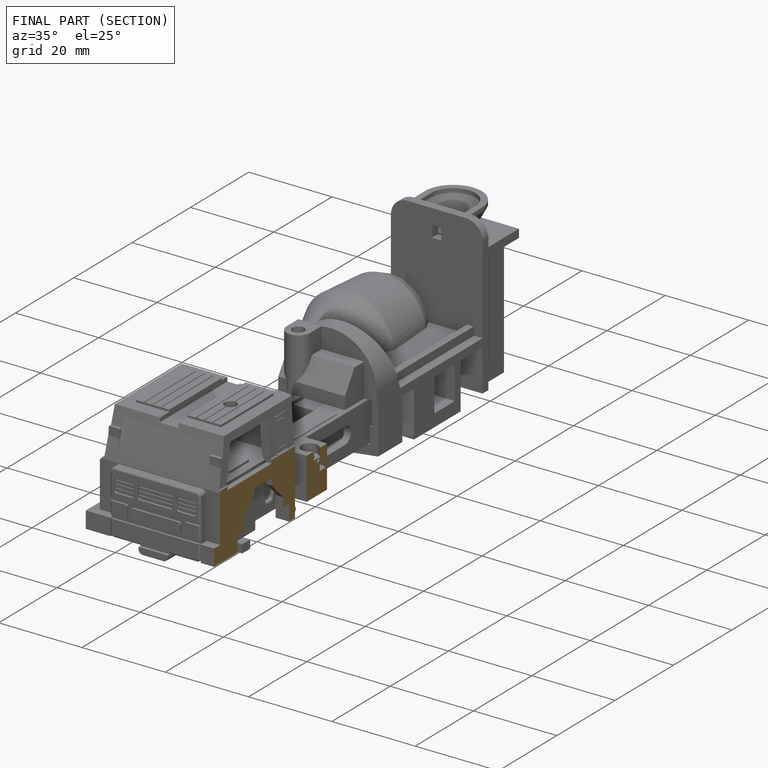
[diagram: finished part — half-section view (interior)]
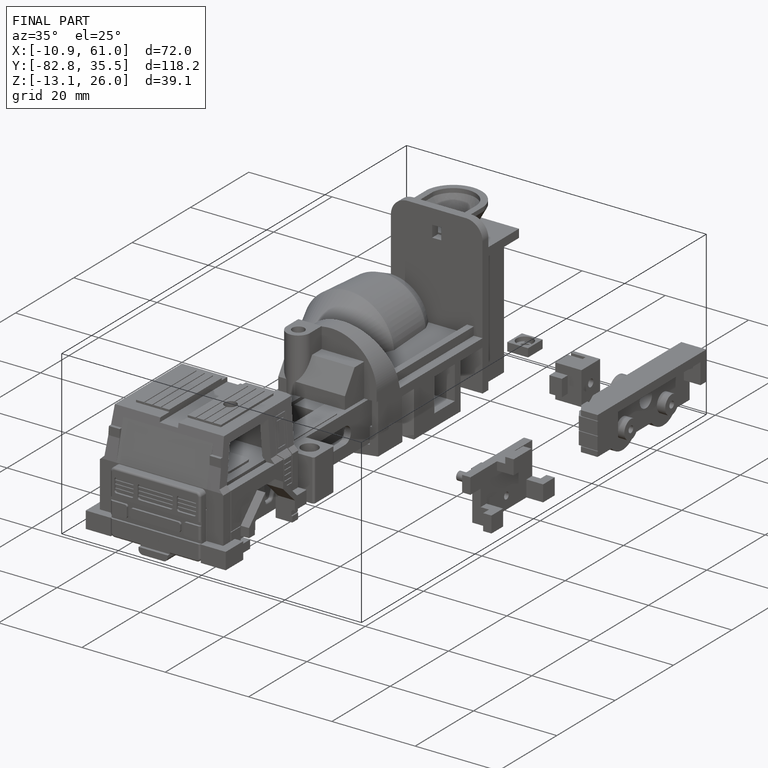
[diagram: finished part — iso view with bounding-box wireframe]
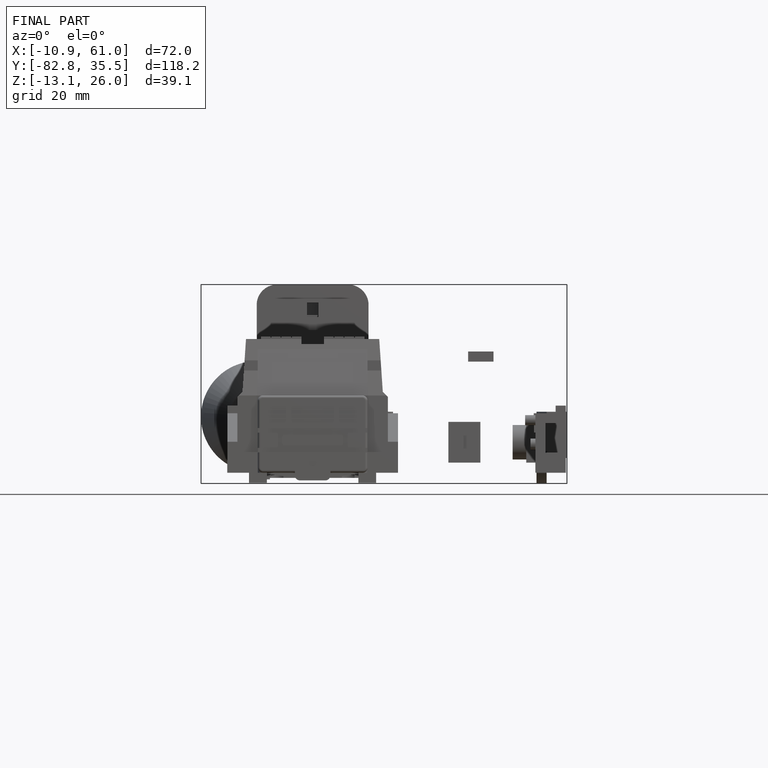
[diagram: finished part — front view with bounding-box wireframe]
